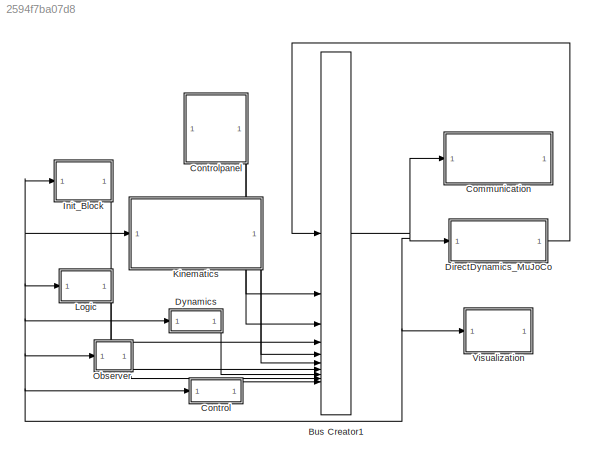
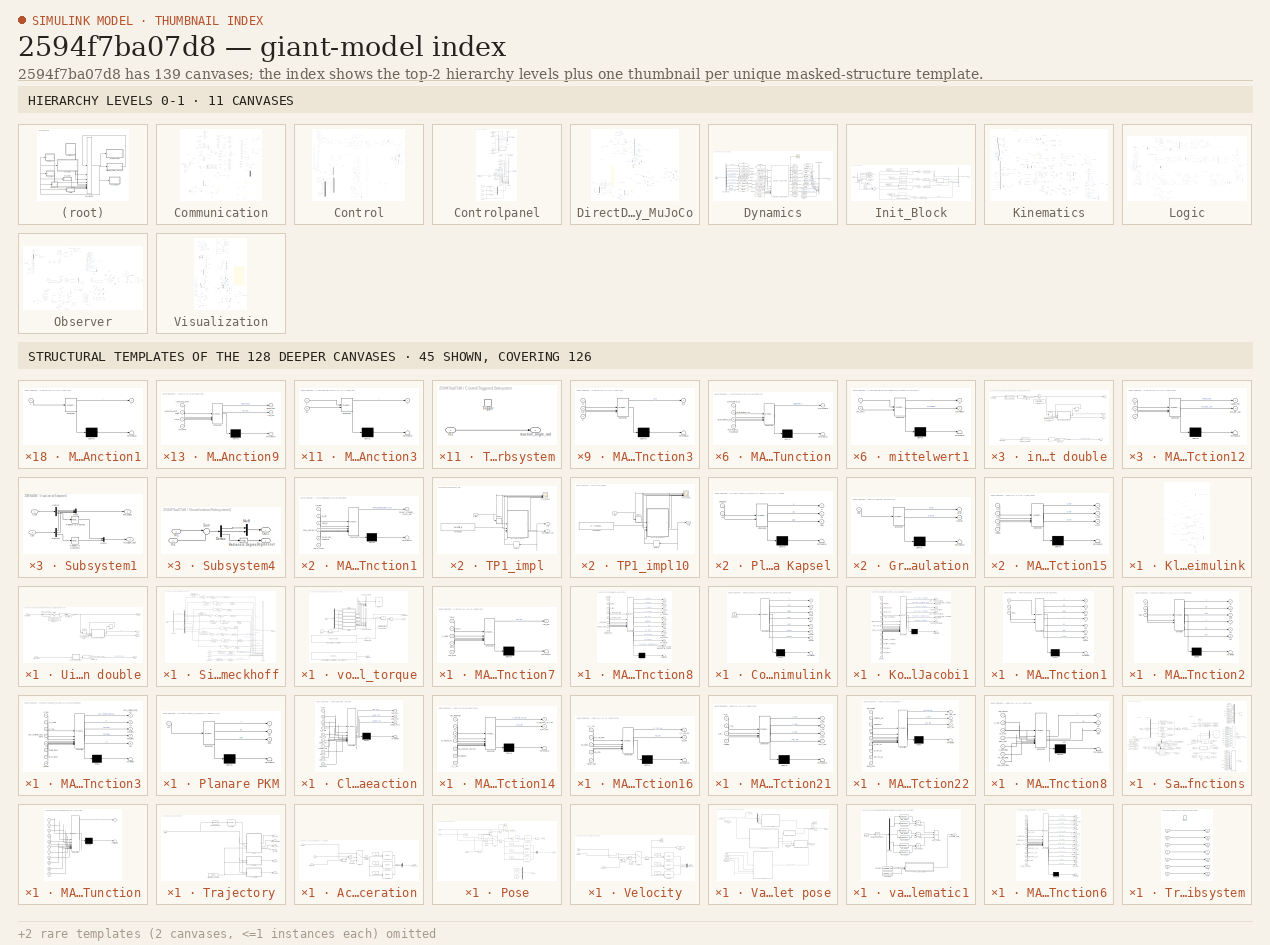
[diagram: thumbnail index - top-2 hierarchy levels (11 canvases) + 45 structural-template representatives of the remaining 128 canvases]
MODEL mdl_2594f7ba07d8
KIND model
CONFIG AbsTol = auto
CONFIG EnableMultiTasking = off
CONFIG FixedStep = param.t_sample
CONFIG MaxStep = auto
CONFIG MinStep = auto
CONFIG RelTol = 1e-3
CONFIG SampleTimeConstraint = Unconstrained
CONFIG SolverName = FixedStepDiscrete
CONFIG StartTime = 0.0
CONFIG StopTime = inf
BLOCK [BusCreator] Bus Creator1
  DisplayOption = bar
  InheritFromInputs = on
  Inputs = 10
BLOCK [SubSystem] Communication
  Commented = on
BLOCK [Constant] Communication/Betriebsart
  SampleTime = -1
  Value = 3
BLOCK [Constant] Communication/Betriebsart2
  SampleTime = -1
BLOCK [BusCreator] Communication/Bus Creator
  DisplayOption = bar
  InheritFromInputs = on
  Inputs = 5
BLOCK [BusCreator] Communication/Bus Creator1
  DisplayOption = bar
  InheritFromInputs = on
  Inputs = 12
BLOCK [BusCreator] Communication/Bus Creator2
  DisplayOption = bar
  InheritFromInputs = on
  Inputs = 3
BLOCK [BusSelector] Communication/Bus Selector
  OutputSignals = QDa_soll_RD1,QDa_soll_RD2,QDa_soll_RD3,tau_Qa_soll_RD1,tau_Qa_soll_RD2,tau_Qa_soll_RD3
BLOCK [BusSelector] Communication/Bus Selector1
  OutputSignals = State Variables.Controlword_RD1,State Variables.Controlword_RD2,State Variables.Controlword_RD3,State Variables.Controlword_TD,Controlpanel.Reset_RS,Kinematics_currentValues.qp_correct_init_deg
BLOCK [BusSelector] Communication/Bus Selector2
  OutputSignals = tauQa_ist_RD1_Nm,tauQa_ist_RD2_Nm,tauQa_ist_RD3_Nm,taudelta_ist_TD
BLOCK [BusSelector] Communication/Bus Selector3
  OutputSignals = FMext,ft_meas_mini40
BLOCK [BusSelector] Communication/Bus Selector4
  OutputSignals = Controlpanel.target,Kontakt.R_0Gj,Kinematics_currentValues.xEE_m_rad,Kontakt.J_xpx_contact1
BLOCK [DataTypeConversion] Communication/Cast To Double1
  OutDataTypeStr = uint16
  RndMeth = Floor
  SaturateOnIntegerOverflow = off
BLOCK [DataTypeConversion] Communication/Cast To Double2
  Commented = on
  OutDataTypeStr = uint16
  RndMeth = Floor
  SaturateOnIntegerOverflow = off
BLOCK [DataTypeConversion] Communication/Cast To Double3
  Commented = on
  OutDataTypeStr = int16
  RndMeth = Floor
  SaturateOnIntegerOverflow = off
BLOCK [Constant] Communication/Constant
  SampleTime = param.t_sample
  Value = [0;0;0;0]
BLOCK [Constant] Communication/Constant1
  SampleTime = param.t_sample
  Value = [123; 123; 123]
BLOCK [Constant] Communication/Constant2
  SampleTime = -1
  Value = 0
BLOCK [Constant] Communication/Controlword 
  SampleTime = -1
  Value = 0
BLOCK [Gain] Communication/Count_ENC1
  Gain = 14400/(2*pi)
  OutDataTypeStr = double
  ParamDataTypeStr = double
BLOCK [Gain] Communication/Count_ENC2
  Gain = 14400/(2*pi)
  OutDataTypeStr = double
  ParamDataTypeStr = double
BLOCK [Gain] Communication/Count_ENC4
  Gain = 14400/(2*pi)
  OutDataTypeStr = double
  ParamDataTypeStr = double
BLOCK [DataTypeConversion] Communication/Data Type Conversion
  OutDataTypeStr = uint8
  RndMeth = Floor
  SaturateOnIntegerOverflow = off
BLOCK [DataTypeConversion] Communication/Data Type Conversion1
  OutDataTypeStr = uint8
  RndMeth = Floor
  SaturateOnIntegerOverflow = off
BLOCK [DataTypeConversion] Communication/Data Type Conversion2
  OutDataTypeStr = uint8
  RndMeth = Floor
  SaturateOnIntegerOverflow = off
BLOCK [DataTypeConversion] Communication/Data Type Conversion3
  OutDataTypeStr = uint32
  RndMeth = Floor
  SaturateOnIntegerOverflow = off
BLOCK [DataTypeConversion] Communication/Data Type Conversion4
  OutDataTypeStr = int32
  RndMeth = Floor
  SaturateOnIntegerOverflow = off
BLOCK [DataTypeConversion] Communication/Data Type Conversion5
  OutDataTypeStr = int16
  RndMeth = Floor
  SaturateOnIntegerOverflow = off
BLOCK [DataTypeConversion] Communication/Data Type Conversion6
  OutDataTypeStr = int16
  RndMeth = Floor
  SaturateOnIntegerOverflow = off
BLOCK [DataTypeConversion] Communication/Data Type Conversion7
  OutDataTypeStr = int16
  RndMeth = Floor
  SaturateOnIntegerOverflow = off
BLOCK [Reference] Communication/Degrees to Radians1  REF=simulink_extras/Transformations/Degrees to
Radians
  SourceBlock = simulink_extras/Transformations/Degrees to\nRadians
  SourceType = DegreesToRadians
BLOCK [Reference] Communication/Degrees to Radians2  REF=simulink_extras/Transformations/Degrees to
Radians
  SourceBlock = simulink_extras/Transformations/Degrees to\nRadians
  SourceType = DegreesToRadians
BLOCK [Reference] Communication/Degrees to Radians3  REF=simulink_extras/Transformations/Degrees to
Radians
  SourceBlock = simulink_extras/Transformations/Degrees to\nRadians
  SourceType = DegreesToRadians
BLOCK [Delay] Communication/Delay
  DelayLength = 1
  InitialCondition = [122;122;123]
  InitialConditionSource = Input port
  InputPortMap = u0,p4
BLOCK [Delay] Communication/Delay1
  DelayLength = 1
  InputPortMap = u0
BLOCK [Demux] Communication/Demux
  Outputs = 3
BLOCK [Display] Communication/Display1
  Decimation = 1
BLOCK [Display] Communication/Display2
  Decimation = 1
BLOCK [Reference] Communication/EL1xxx_0  REF=etherlab_lib/EtherCAT/Beckhoff/EL1xxx_0
  SourceBlock = etherlab_lib/EtherCAT/Beckhoff/EL1xxx_0
  SourceType = EL1xxx
BLOCK [Reference] Communication/EL2xxx_0  REF=etherlab_lib/EtherCAT/Beckhoff/EL2xxx_0
  SourceBlock = etherlab_lib/EtherCAT/Beckhoff/EL2xxx_0
  SourceType = EL2xxx
BLOCK [From] Communication/From
  GotoTag = Statusword_RD1
BLOCK [From] Communication/From1
  GotoTag = Statusword_RD2
BLOCK [From] Communication/From10
  Commented = on
  GotoTag = Controlword_TD
BLOCK [From] Communication/From11
  GotoTag = Soll_Moment_RD1
BLOCK [From] Communication/From12
  GotoTag = Controlword_RS2
BLOCK [From] Communication/From13
  GotoTag = Controlword_RS3
BLOCK [From] Communication/From14
  GotoTag = Ist_Position_TD
BLOCK [From] Communication/From15
  GotoTag = Ist_Geschwindigkeit_TD
BLOCK [From] Communication/From16
  GotoTag = Ist_Moment_TD
BLOCK [From] Communication/From17
  GotoTag = Value_RS1
BLOCK [From] Communication/From18
  GotoTag = Value_RS2
BLOCK [From] Communication/From19
  GotoTag = Value_RS3
BLOCK [From] Communication/From2
  GotoTag = Statusword_RD3
BLOCK [From] Communication/From20
  GotoTag = Statusword_TD
BLOCK [From] Communication/From21
  GotoTag = Ist_Position_RD1
BLOCK [From] Communication/From22
  GotoTag = Controlword_RS1
BLOCK [From] Communication/From23
  GotoTag = Soll_Moment_RD2
BLOCK [From] Communication/From24
  GotoTag = Ist_Moment_RD1
BLOCK [From] Communication/From25
  GotoTag = Ist_Position_RD2
BLOCK [From] Communication/From26
  GotoTag = Soll_Moment_RD3
BLOCK [From] Communication/From27
  GotoTag = qp_correct_init_deg
BLOCK [From] Communication/From28
  GotoTag = Ist_Moment_RD2
BLOCK [From] Communication/From29
  GotoTag = Ist_Position_RD3
BLOCK [From] Communication/From3
  GotoTag = Statusword_TD
BLOCK [From] Communication/From30
  GotoTag = imu
BLOCK [From] Communication/From31
  GotoTag = Fext_kms40
BLOCK [From] Communication/From32
  GotoTag = Ist_Moment_RD3
BLOCK [From] Communication/From33
  GotoTag = Fext_mini40
BLOCK [From] Communication/From4
  GotoTag = Controlword_RD1
BLOCK [From] Communication/From5
  GotoTag = Controlword_RD2
BLOCK [From] Communication/From6
  GotoTag = Controlword_RD3
BLOCK [From] Communication/From7
  Commented = on
  GotoTag = Soll_Geschw_RD1
BLOCK [From] Communication/From8
  Commented = on
  GotoTag = Soll_Geschw_RD2
BLOCK [From] Communication/From9
  Commented = on
  GotoTag = Soll_Geschw_RD3
BLOCK [Reference] Communication/Generic Slave A1  REF=etherlab_lib/EtherCAT/Generic_0
  SourceBlock = etherlab_lib/EtherCAT/Generic_0
  SourceType = Generic EtherCAT Slave
BLOCK [Reference] Communication/Generic Slave A2  REF=etherlab_lib/EtherCAT/Generic_0
  SourceBlock = etherlab_lib/EtherCAT/Generic_0
  SourceType = Generic EtherCAT Slave
BLOCK [Reference] Communication/Generic Slave A3  REF=etherlab_lib/EtherCAT/Generic_0
  SourceBlock = etherlab_lib/EtherCAT/Generic_0
  SourceType = Generic EtherCAT Slave
BLOCK [Reference] Communication/Generic Slave TD  REF=etherlab_lib/EtherCAT/Generic_0
  SourceBlock = etherlab_lib/EtherCAT/Generic_0
  SourceType = Generic EtherCAT Slave
BLOCK [Reference] Communication/Generic_1  REF=etherlab_lib/EtherCAT/Generic_0
  SourceBlock = etherlab_lib/EtherCAT/Generic_0
  SourceType = Generic EtherCAT Slave
BLOCK [Reference] Communication/Generic_2  REF=etherlab_lib/EtherCAT/Generic_0
  SourceBlock = etherlab_lib/EtherCAT/Generic_0
  SourceType = Generic EtherCAT Slave
BLOCK [Reference] Communication/Generic_4  REF=etherlab_lib/EtherCAT/Generic_0
  SourceBlock = etherlab_lib/EtherCAT/Generic_0
  SourceType = Generic EtherCAT Slave
BLOCK [Reference] Communication/Generic_6  REF=etherlab_lib/EtherCAT/Generic_0
  SourceBlock = etherlab_lib/EtherCAT/Generic_0
  SourceType = Generic EtherCAT Slave
BLOCK [Reference] Communication/Generic_7  REF=etherlab_lib/EtherCAT/Generic_0
  SourceBlock = etherlab_lib/EtherCAT/Generic_0
  SourceType = Generic EtherCAT Slave
BLOCK [Goto] Communication/Goto
  GotoTag = Controlword_RD1
BLOCK [Goto] Communication/Goto1
  GotoTag = Controlword_RD2
BLOCK [Goto] Communication/Goto10
  GotoTag = Statusword_RD2
BLOCK [Goto] Communication/Goto11
  GotoTag = Ist_Position_RD3
BLOCK [Goto] Communication/Goto12
  Commented = on
  GotoTag = Soll_Postition_RD1
BLOCK [Goto] Communication/Goto13
  Commented = on
  GotoTag = Soll_Geschw_RD1
BLOCK [Goto] Communication/Goto14
  GotoTag = Soll_Moment_RD1
BLOCK [Goto] Communication/Goto15
  GotoTag = Ist_Moment_RD3
BLOCK [Goto] Communication/Goto16
  GotoTag = Statusword_RD3
BLOCK [Goto] Communication/Goto17
  GotoTag = Value_RS1
BLOCK [Goto] Communication/Goto18
  Commented = on
  GotoTag = Soll_Geschw_RD2
BLOCK [Goto] Communication/Goto19
  Commented = on
  GotoTag = Soll_Postition_RD2
BLOCK [Goto] Communication/Goto2
  GotoTag = Controlword_RD3
BLOCK [Goto] Communication/Goto20
  GotoTag = Soll_Moment_RD2
BLOCK [Goto] Communication/Goto21
  Commented = on
  GotoTag = Soll_Geschw_RD3
BLOCK [Goto] Communication/Goto22
  Commented = on
  GotoTag = Soll_Postition_RD3
BLOCK [Goto] Communication/Goto23
  GotoTag = Soll_Moment_RD3
BLOCK [Goto] Communication/Goto24
  GotoTag = Statusword_TD
BLOCK [Goto] Communication/Goto25
  GotoTag = Ist_Position_TD
BLOCK [Goto] Communication/Goto26
  GotoTag = Ist_Geschwindigkeit_TD
BLOCK [Goto] Communication/Goto27
  GotoTag = Ist_Moment_TD
BLOCK [Goto] Communication/Goto28
  GotoTag = LatchValue_RS1
BLOCK [Goto] Communication/Goto29
  GotoTag = Value_RS2
BLOCK [Goto] Communication/Goto3
  GotoTag = Controlword_TD
BLOCK [Goto] Communication/Goto30
  GotoTag = LatchValue_RS2
BLOCK [Goto] Communication/Goto31
  GotoTag = Statusword_RS2
BLOCK [Goto] Communication/Goto32
  GotoTag = Value_RS3
BLOCK [Goto] Communication/Goto33
  GotoTag = LatchValue_RS3
BLOCK [Goto] Communication/Goto34
  GotoTag = Statusword_RS3
BLOCK [Goto] Communication/Goto35
  Commented = on
  GotoTag = Soll_Geschw_TD
BLOCK [Goto] Communication/Goto36
  Commented = on
  GotoTag = Soll_Postition_TD
BLOCK [Goto] Communication/Goto37
  Commented = on
  GotoTag = Soll_Moment_TD
BLOCK [Goto] Communication/Goto38
  Commented = on
  GotoTag = Controlword_RD1
BLOCK [Goto] Communication/Goto39
  Commented = on
  GotoTag = Controlword_RD2
BLOCK [Goto] Communication/Goto4
  GotoTag = Ist_Position_RD1
BLOCK [Goto] Communication/Goto40
  Commented = on
  GotoTag = Controlword_RD3
BLOCK [Goto] Communication/Goto41
  Commented = on
  GotoTag = Controlword_TD
BLOCK [Goto] Communication/Goto42
  Commented = on
  GotoTag = Soll_Geschw_RD1
BLOCK [Goto] Communication/Goto43
  Commented = on
  GotoTag = Soll_Geschw_RD2
BLOCK [Goto] Communication/Goto44
  Commented = on
  GotoTag = Soll_Geschw_RD3
BLOCK [Goto] Communication/Goto45
  GotoTag = Controlword_RS1
BLOCK [Goto] Communication/Goto46
  GotoTag = Controlword_RS2
BLOCK [Goto] Communication/Goto47
  GotoTag = Controlword_RS3
BLOCK [Goto] Communication/Goto48
  GotoTag = imu
BLOCK [Goto] Communication/Goto49
  GotoTag = qp_correct_init_deg
BLOCK [Goto] Communication/Goto5
  GotoTag = Statusword_RS1
BLOCK [Goto] Communication/Goto50
  GotoTag = Fext_kms40
BLOCK [Goto] Communication/Goto51
  GotoTag = Fext_mini40
BLOCK [Goto] Communication/Goto6
  GotoTag = Ist_Moment_RD1
BLOCK [Goto] Communication/Goto7
  GotoTag = Statusword_RD1
BLOCK [Goto] Communication/Goto8
  GotoTag = Ist_Position_RD2
BLOCK [Goto] Communication/Goto9
  GotoTag = Ist_Moment_RD2
BLOCK [Reference] Communication/Infrastructure  REF=etherlab_lib/EtherCAT/Beckhoff/Infrastructure
  SourceBlock = etherlab_lib/EtherCAT/Beckhoff/Infrastructure
  SourceType = EKxxxx
BLOCK [SubSystem] Communication/Klemmen zu Simulink
BLOCK [Gain] Communication/Klemmen zu Simulink/0,1% vom Nennstrom in Ampere
  Gain = 0.1/100*4.5
BLOCK [BusCreator] Communication/Klemmen zu Simulink/Bus Creator
  DisplayOption = bar
  InheritFromInputs = on
  Inputs = 31
BLOCK [BusSelector] Communication/Klemmen zu Simulink/Bus Selector
  OutputSignals = Ist_position_RD1,ist_moment_RD1,Ist_position_RD2,ist_moment_RD2,Ist_position_RD3,ist_moment_RD3
BLOCK [BusSelector] Communication/Klemmen zu Simulink/Bus Selector2
  OutputSignals = Ist_position_TD,Ist_geschwindigkeit_TD,Ist_moment_TD
BLOCK [BusSelector] Communication/Klemmen zu Simulink/Bus Selector3
  OutputSignals = Zaehlerwert_RS1,Zaehlerwert_RS2,Zaehlerwert_RS3
BLOCK [Constant] Communication/Klemmen zu Simulink/Constant
  SampleTime = param.t_sample
  Value = zeros(3,1)
BLOCK [Constant] Communication/Klemmen zu Simulink/Constant1
  SampleTime = -1
  Value = param.t_sample
BLOCK [Constant] Communication/Klemmen zu Simulink/Constant2
  SampleTime = -1
  Value = param.t_sample
BLOCK [Constant] Communication/Klemmen zu Simulink/Constant3
  SampleTime = -1
  Value = param.t_sample
BLOCK [Constant] Communication/Klemmen zu Simulink/Constant4
  SampleTime = param.t_sample
  Value = zeros(3,1)
BLOCK [Gain] Communication/Klemmen zu Simulink/Count_ENC1
  Gain = (2*pi)/14400
  OutDataTypeStr = double
  ParamDataTypeStr = double
BLOCK [Gain] Communication/Klemmen zu Simulink/Count_ENC2
  Gain = (2*pi)/14400
  OutDataTypeStr = double
  ParamDataTypeStr = double
BLOCK [Gain] Communication/Klemmen zu Simulink/Count_ENC3
  Gain = (2*pi)/14400
  OutDataTypeStr = double
  ParamDataTypeStr = double
BLOCK [Delay] Communication/Klemmen zu Simulink/Delay1
  DelayLength = 1
  InputPortMap = u0
BLOCK [Delay] Communication/Klemmen zu Simulink/Delay2
  DelayLength = 1
  InputPortMap = u0
BLOCK [Delay] Communication/Klemmen zu Simulink/Delay3
  DelayLength = 1
  InputPortMap = u0
BLOCK [Delay] Communication/Klemmen zu Simulink/Delay4
  DelayLength = 1
  InputPortMap = u0
BLOCK [Delay] Communication/Klemmen zu Simulink/Delay5
  DelayLength = 1
  InputPortMap = u0
BLOCK [Delay] Communication/Klemmen zu Simulink/Delay6
  DelayLength = 1
  InputPortMap = u0
BLOCK [Reference] Communication/Klemmen zu Simulink/Difference  REF=simulink/Discrete/Difference
  SourceBlock = simulink/Discrete/Difference
  SourceType = Difference
BLOCK [Inport] Communication/Klemmen zu Simulink/Fext_kms40
  Port = 3
BLOCK [Inport] Communication/Klemmen zu Simulink/Fext_mini40
  Port = 4
BLOCK [Gain] Communication/Klemmen zu Simulink/Gain
  Gain = 1/param.t_sample
BLOCK [SubSystem] Communication/Klemmen zu Simulink/MATLAB Function4
  ErrorFcn = Stateflow.Translate.translate
  PermitHierarchicalResolution = ExplicitOnly
  SFBlockType = MATLAB Function
  TreatAsAtomicUnit = on
BLOCK [Demux] Communication/Klemmen zu Simulink/MATLAB Function4/ Demux 
  Outputs = 1
BLOCK [S-Function] Communication/Klemmen zu Simulink/MATLAB Function4/ SFunction 
  EnableBusSupport = off
  FunctionName = sf_sfun
  PortCounts = [4 3]
  SFcnIsStateOwnerBlock = off
  SFunctionDeploymentMode = off
  Tag = Stateflow S-Function 45
BLOCK [Terminator] Communication/Klemmen zu Simulink/MATLAB Function4/ Terminator 
BLOCK [Outport] Communication/Klemmen zu Simulink/MATLAB Function4/acc
  Port = 2
BLOCK [Inport] Communication/Klemmen zu Simulink/MATLAB Function4/prev_pos
  Port = 2
BLOCK [Inport] Communication/Klemmen zu Simulink/MATLAB Function4/prev_vel
  Port = 3
BLOCK [Inport] Communication/Klemmen zu Simulink/MATLAB Function4/t_sample
  Port = 4
BLOCK [Inport] Communication/Klemmen zu Simulink/MATLAB Function4/u
BLOCK [Outport] Communication/Klemmen zu Simulink/MATLAB Function4/vel
  VectorParamsAs1DForOutWhenUnconnected = off
BLOCK [SubSystem] Communication/Klemmen zu Simulink/MATLAB Function5
  ErrorFcn = Stateflow.Translate.translate
  PermitHierarchicalResolution = ExplicitOnly
  SFBlockType = MATLAB Function
  TreatAsAtomicUnit = on
BLOCK [Demux] Communication/Klemmen zu Simulink/MATLAB Function5/ Demux 
  Outputs = 1
BLOCK [S-Function] Communication/Klemmen zu Simulink/MATLAB Function5/ SFunction 
  EnableBusSupport = off
  FunctionName = sf_sfun
  PortCounts = [4 3]
  SFcnIsStateOwnerBlock = off
  SFunctionDeploymentMode = off
  Tag = Stateflow S-Function 62
BLOCK [Terminator] Communication/Klemmen zu Simulink/MATLAB Function5/ Terminator 
BLOCK [Outport] Communication/Klemmen zu Simulink/MATLAB Function5/acc
  Port = 2
BLOCK [Inport] Communication/Klemmen zu Simulink/MATLAB Function5/prev_pos
  Port = 2
BLOCK [Inport] Communication/Klemmen zu Simulink/MATLAB Function5/prev_vel
  Port = 3
BLOCK [Inport] Communication/Klemmen zu Simulink/MATLAB Function5/t_sample
  Port = 4
BLOCK [Inport] Communication/Klemmen zu Simulink/MATLAB Function5/u
BLOCK [Outport] Communication/Klemmen zu Simulink/MATLAB Function5/vel
  VectorParamsAs1DForOutWhenUnconnected = off
BLOCK [SubSystem] Communication/Klemmen zu Simulink/MATLAB Function6
  ErrorFcn = Stateflow.Translate.translate
  PermitHierarchicalResolution = ExplicitOnly
  SFBlockType = MATLAB Function
  TreatAsAtomicUnit = on
BLOCK [Demux] Communication/Klemmen zu Simulink/MATLAB Function6/ Demux 
  Outputs = 1
BLOCK [S-Function] Communication/Klemmen zu Simulink/MATLAB Function6/ SFunction 
  EnableBusSupport = off
  FunctionName = sf_sfun
  PortCounts = [4 3]
  SFcnIsStateOwnerBlock = off
  SFunctionDeploymentMode = off
  Tag = Stateflow S-Function 76
BLOCK [Terminator] Communication/Klemmen zu Simulink/MATLAB Function6/ Terminator 
BLOCK [Outport] Communication/Klemmen zu Simulink/MATLAB Function6/acc
  Port = 2
BLOCK [Inport] Communication/Klemmen zu Simulink/MATLAB Function6/prev_pos
  Port = 2
BLOCK [Inport] Communication/Klemmen zu Simulink/MATLAB Function6/prev_vel
  Port = 3
BLOCK [Inport] Communication/Klemmen zu Simulink/MATLAB Function6/t_sample
  Port = 4
BLOCK [Inport] Communication/Klemmen zu Simulink/MATLAB Function6/u
BLOCK [Outport] Communication/Klemmen zu Simulink/MATLAB Function6/vel
  VectorParamsAs1DForOutWhenUnconnected = off
BLOCK [Gain] Communication/Klemmen zu Simulink/Motorkonstante N//A
  Gain = 93
BLOCK [Mux] Communication/Klemmen zu Simulink/Mux
  DisplayOption = bar
  Inputs = 3
BLOCK [Inport] Communication/Klemmen zu Simulink/Raw_Data
BLOCK [SubSystem] Communication/Klemmen zu Simulink/Uint in double
  Commented = on
BLOCK [Delay] Communication/Klemmen zu Simulink/Uint in double/Delay1
  DelayLength = 1
  InputPortMap = u0
BLOCK [Delay] Communication/Klemmen zu Simulink/Uint in double/Delay4
  DelayLength = 1
  InputPortMap = u0
BLOCK [From] Communication/Klemmen zu Simulink/Uint in double/From
  GotoTag = t_sample
BLOCK [SubSystem] Communication/Klemmen zu Simulink/Uint in double/MATLAB Function1
  ErrorFcn = Stateflow.Translate.translate
  PermitHierarchicalResolution = ExplicitOnly
  SFBlockType = MATLAB Function
  TreatAsAtomicUnit = on
BLOCK [Demux] Communication/Klemmen zu Simulink/Uint in double/MATLAB Function1/ Demux 
  Outputs = 1
BLOCK [S-Function] Communication/Klemmen zu Simulink/Uint in double/MATLAB Function1/ SFunction 
  EnableBusSupport = off
  FunctionName = sf_sfun
  PortCounts = [4 3]
  SFcnIsStateOwnerBlock = off
  SFunctionDeploymentMode = off
  Tag = Stateflow S-Function 24
BLOCK [Terminator] Communication/Klemmen zu Simulink/Uint in double/MATLAB Function1/ Terminator 
BLOCK [Outport] Communication/Klemmen zu Simulink/Uint in double/MATLAB Function1/acc
  Port = 2
BLOCK [Inport] Communication/Klemmen zu Simulink/Uint in double/MATLAB Function1/prev_pos
  Port = 2
BLOCK [Inport] Communication/Klemmen zu Simulink/Uint in double/MATLAB Function1/prev_vel
  Port = 3
BLOCK [Inport] Communication/Klemmen zu Simulink/Uint in double/MATLAB Function1/t_sample
  Port = 4
BLOCK [Inport] Communication/Klemmen zu Simulink/Uint in double/MATLAB Function1/u
BLOCK [Outport] Communication/Klemmen zu Simulink/Uint in double/MATLAB Function1/vel
  VectorParamsAs1DForOutWhenUnconnected = off
BLOCK [SubSystem] Communication/Klemmen zu Simulink/Uint in double/MATLAB Function2
  ErrorFcn = Stateflow.Translate.translate
  PermitHierarchicalResolution = ExplicitOnly
  SFBlockType = MATLAB Function
  TreatAsAtomicUnit = on
BLOCK [Demux] Communication/Klemmen zu Simulink/Uint in double/MATLAB Function2/ Demux 
  Outputs = 1
BLOCK [S-Function] Communication/Klemmen zu Simulink/Uint in double/MATLAB Function2/ SFunction 
  EnableBusSupport = off
  FunctionName = sf_sfun
  PortCounts = [1 2]
  SFcnIsStateOwnerBlock = off
  SFunctionDeploymentMode = off
  Tag = Stateflow S-Function 25
BLOCK [Terminator] Communication/Klemmen zu Simulink/Uint in double/MATLAB Function2/ Terminator 
BLOCK [Inport] Communication/Klemmen zu Simulink/Uint in double/MATLAB Function2/u_uint
BLOCK [Outport] Communication/Klemmen zu Simulink/Uint in double/MATLAB Function2/y
  VectorParamsAs1DForOutWhenUnconnected = off
BLOCK [Gain] Communication/Klemmen zu Simulink/Uint in double/Position_i1
  Gain = (2*pi)/(2^(20))
  NameLocation = top
  OutDataTypeStr = float('double')
  ParamDataTypeStr = float('double')
BLOCK [Sum] Communication/Klemmen zu Simulink/Uint in double/Sum1
  Inputs = |+-
BLOCK [Gain] Communication/Klemmen zu Simulink/Uint in double/Torque_i1
  Gain = (11.3*16.5)/3280
  OutDataTypeStr = float('double')
  ParamDataTypeStr = float('double')
BLOCK [Outport] Communication/Klemmen zu Simulink/Uint in double/acc
  Port = 3
BLOCK [Inport] Communication/Klemmen zu Simulink/Uint in double/current_raw
  Port = 2
BLOCK [Constant] Communication/Klemmen zu Simulink/Uint in double/offset_s1
  NameLocation = left
  SampleTime = 0.001
  Value = 4.2950e+09
BLOCK [Outport] Communication/Klemmen zu Simulink/Uint in double/pos
BLOCK [DataTypeConversion] Communication/Klemmen zu Simulink/Uint in double/pos_Achse12
  OutDataTypeStr = double
  RndMeth = Floor
  SaturateOnIntegerOverflow = off
BLOCK [Inport] Communication/Klemmen zu Simulink/Uint in double/pos_raw
BLOCK [Outport] Communication/Klemmen zu Simulink/Uint in double/tau
  Port = 4
BLOCK [Outport] Communication/Klemmen zu Simulink/Uint in double/vel
  Port = 2
BLOCK [Gain] Communication/Klemmen zu Simulink/Umrechnung Lage LD
  Gain = 1/409600000
BLOCK [Outport] Communication/Klemmen zu Simulink/Values
BLOCK [Inport] Communication/Klemmen zu Simulink/imu
  Port = 2
BLOCK [SubSystem] Communication/Klemmen zu Simulink/int in double
BLOCK [Constant] Communication/Klemmen zu Simulink/int in double/Constant
  SampleTime = -1
  Value = param.t_sample
BLOCK [Delay] Communication/Klemmen zu Simulink/int in double/Delay1
  DelayLength = 1
  InitialCondition = param.offset_qa1_rad
  InputPortMap = u0
BLOCK [Delay] Communication/Klemmen zu Simulink/int in double/Delay4
  DelayLength = 1
  InputPortMap = u0
BLOCK [SubSystem] Communication/Klemmen zu Simulink/int in double/MATLAB Function1
  ErrorFcn = Stateflow.Translate.translate
  PermitHierarchicalResolution = ExplicitOnly
  SFBlockType = MATLAB Function
  TreatAsAtomicUnit = on
BLOCK [Demux] Communication/Klemmen zu Simulink/int in double/MATLAB Function1/ Demux 
  Outputs = 1
BLOCK [S-Function] Communication/Klemmen zu Simulink/int in double/MATLAB Function1/ SFunction 
  EnableBusSupport = off
  FunctionName = sf_sfun
  PortCounts = [4 3]
  SFcnIsStateOwnerBlock = off
  SFunctionDeploymentMode = off
  Tag = Stateflow S-Function 26
BLOCK [Terminator] Communication/Klemmen zu Simulink/int in double/MATLAB Function1/ Terminator 
BLOCK [Outport] Communication/Klemmen zu Simulink/int in double/MATLAB Function1/acc
  Port = 2
BLOCK [Inport] Communication/Klemmen zu Simulink/int in double/MATLAB Function1/prev_pos
  Port = 2
BLOCK [Inport] Communication/Klemmen zu Simulink/int in double/MATLAB Function1/prev_vel
  Port = 3
BLOCK [Inport] Communication/Klemmen zu Simulink/int in double/MATLAB Function1/t_sample
  Port = 4
BLOCK [Inport] Communication/Klemmen zu Simulink/int in double/MATLAB Function1/u
BLOCK [Outport] Communication/Klemmen zu Simulink/int in double/MATLAB Function1/vel
  VectorParamsAs1DForOutWhenUnconnected = off
BLOCK [Gain] Communication/Klemmen zu Simulink/int in double/Position_i1
  Gain = (2*pi)/(2^(20))
  NameLocation = top
  OutDataTypeStr = float('double')
  ParamDataTypeStr = float('double')
BLOCK [Sum] Communication/Klemmen zu Simulink/int in double/Sum1
  Inputs = |+-
BLOCK [Gain] Communication/Klemmen zu Simulink/int in double/Torque_i1
  Gain = (6.021*16.5)/3280
  OutDataTypeStr = float('double')
  ParamDataTypeStr = float('double')
BLOCK [Outport] Communication/Klemmen zu Simulink/int in double/acc
  Port = 3
BLOCK [Inport] Communication/Klemmen zu Simulink/int in double/current_raw
  Port = 2
BLOCK [DataTypeConversion] Communication/Klemmen zu Simulink/int in double/int16_2_double
  OutDataTypeStr = double
  RndMeth = Floor
  SaturateOnIntegerOverflow = off
BLOCK [Constant] Communication/Klemmen zu Simulink/int in double/offset_s1
  NameLocation = left
  SampleTime = -1
  Value = param.offset_qa1_rad
BLOCK [Outport] Communication/Klemmen zu Simulink/int in double/pos
BLOCK [DataTypeConversion] Communication/Klemmen zu Simulink/int in double/pos_Achse12
  OutDataTypeStr = double
  RndMeth = Floor
  SaturateOnIntegerOverflow = off
BLOCK [Inport] Communication/Klemmen zu Simulink/int in double/pos_raw
BLOCK [Outport] Communication/Klemmen zu Simulink/int in double/tau
  Port = 4
BLOCK [Outport] Communication/Klemmen zu Simulink/int in double/vel
  Port = 2
BLOCK [SubSystem] Communication/Klemmen zu Simulink/int in double1
BLOCK [Constant] Communication/Klemmen zu Simulink/int in double1/Constant
  SampleTime = -1
  Value = param.t_sample
BLOCK [Delay] Communication/Klemmen zu Simulink/int in double1/Delay1
  DelayLength = 1
  InitialCondition = param.offset_qa2_rad
  InputPortMap = u0
BLOCK [Delay] Communication/Klemmen zu Simulink/int in double1/Delay4
  DelayLength = 1
  InputPortMap = u0
BLOCK [SubSystem] Communication/Klemmen zu Simulink/int in double1/MATLAB Function1
  ErrorFcn = Stateflow.Translate.translate
  PermitHierarchicalResolution = ExplicitOnly
  SFBlockType = MATLAB Function
  TreatAsAtomicUnit = on
BLOCK [Demux] Communication/Klemmen zu Simulink/int in double1/MATLAB Function1/ Demux 
  Outputs = 1
BLOCK [S-Function] Communication/Klemmen zu Simulink/int in double1/MATLAB Function1/ SFunction 
  EnableBusSupport = off
  FunctionName = sf_sfun
  PortCounts = [4 3]
  SFcnIsStateOwnerBlock = off
  SFunctionDeploymentMode = off
  Tag = Stateflow S-Function 27
BLOCK [Terminator] Communication/Klemmen zu Simulink/int in double1/MATLAB Function1/ Terminator 
BLOCK [Outport] Communication/Klemmen zu Simulink/int in double1/MATLAB Function1/acc
  Port = 2
BLOCK [Inport] Communication/Klemmen zu Simulink/int in double1/MATLAB Function1/prev_pos
  Port = 2
BLOCK [Inport] Communication/Klemmen zu Simulink/int in double1/MATLAB Function1/prev_vel
  Port = 3
BLOCK [Inport] Communication/Klemmen zu Simulink/int in double1/MATLAB Function1/t_sample
  Port = 4
BLOCK [Inport] Communication/Klemmen zu Simulink/int in double1/MATLAB Function1/u
BLOCK [Outport] Communication/Klemmen zu Simulink/int in double1/MATLAB Function1/vel
  VectorParamsAs1DForOutWhenUnconnected = off
BLOCK [Gain] Communication/Klemmen zu Simulink/int in double1/Position_i1
  Gain = (2*pi)/(2^(20))
  NameLocation = top
  OutDataTypeStr = float('double')
  ParamDataTypeStr = float('double')
BLOCK [Sum] Communication/Klemmen zu Simulink/int in double1/Sum1
  Inputs = |+-
BLOCK [Gain] Communication/Klemmen zu Simulink/int in double1/Torque_i1
  Gain = (6.6116*16.5)/3280
  OutDataTypeStr = float('double')
  ParamDataTypeStr = float('double')
BLOCK [Outport] Communication/Klemmen zu Simulink/int in double1/acc
  Port = 3
BLOCK [Inport] Communication/Klemmen zu Simulink/int in double1/current_raw
  Port = 2
BLOCK [DataTypeConversion] Communication/Klemmen zu Simulink/int in double1/int16_2_double
  OutDataTypeStr = double
  RndMeth = Floor
  SaturateOnIntegerOverflow = off
BLOCK [Constant] Communication/Klemmen zu Simulink/int in double1/offset_s1
  NameLocation = left
  SampleTime = -1
  Value = param.offset_qa2_rad
BLOCK [Outport] Communication/Klemmen zu Simulink/int in double1/pos
BLOCK [DataTypeConversion] Communication/Klemmen zu Simulink/int in double1/pos_Achse12
  OutDataTypeStr = double
  RndMeth = Floor
  SaturateOnIntegerOverflow = off
BLOCK [Inport] Communication/Klemmen zu Simulink/int in double1/pos_raw
BLOCK [Outport] Communication/Klemmen zu Simulink/int in double1/tau
  Port = 4
BLOCK [Outport] Communication/Klemmen zu Simulink/int in double1/vel
  Port = 2
BLOCK [SubSystem] Communication/Klemmen zu Simulink/int in double2
BLOCK [Constant] Communication/Klemmen zu Simulink/int in double2/Constant
  SampleTime = -1
  Value = param.t_sample
BLOCK [Delay] Communication/Klemmen zu Simulink/int in double2/Delay1
  DelayLength = 1
  InitialCondition = param.offset_qa3_rad
  InputPortMap = u0
BLOCK [Delay] Communication/Klemmen zu Simulink/int in double2/Delay4
  DelayLength = 1
  InputPortMap = u0
BLOCK [SubSystem] Communication/Klemmen zu Simulink/int in double2/MATLAB Function1
  ErrorFcn = Stateflow.Translate.translate
  PermitHierarchicalResolution = ExplicitOnly
  SFBlockType = MATLAB Function
  TreatAsAtomicUnit = on
BLOCK [Demux] Communication/Klemmen zu Simulink/int in double2/MATLAB Function1/ Demux 
  Outputs = 1
BLOCK [S-Function] Communication/Klemmen zu Simulink/int in double2/MATLAB Function1/ SFunction 
  EnableBusSupport = off
  FunctionName = sf_sfun
  PortCounts = [4 3]
  SFcnIsStateOwnerBlock = off
  SFunctionDeploymentMode = off
  Tag = Stateflow S-Function 28
BLOCK [Terminator] Communication/Klemmen zu Simulink/int in double2/MATLAB Function1/ Terminator 
BLOCK [Outport] Communication/Klemmen zu Simulink/int in double2/MATLAB Function1/acc
  Port = 2
BLOCK [Inport] Communication/Klemmen zu Simulink/int in double2/MATLAB Function1/prev_pos
  Port = 2
BLOCK [Inport] Communication/Klemmen zu Simulink/int in double2/MATLAB Function1/prev_vel
  Port = 3
BLOCK [Inport] Communication/Klemmen zu Simulink/int in double2/MATLAB Function1/t_sample
  Port = 4
BLOCK [Inport] Communication/Klemmen zu Simulink/int in double2/MATLAB Function1/u
BLOCK [Outport] Communication/Klemmen zu Simulink/int in double2/MATLAB Function1/vel
  VectorParamsAs1DForOutWhenUnconnected = off
BLOCK [Gain] Communication/Klemmen zu Simulink/int in double2/Position_i1
  Gain = (2*pi)/(2^(20))
  NameLocation = top
  OutDataTypeStr = float('double')
  ParamDataTypeStr = float('double')
BLOCK [Sum] Communication/Klemmen zu Simulink/int in double2/Sum1
  Inputs = |+-
BLOCK [Gain] Communication/Klemmen zu Simulink/int in double2/Torque_i1
  Gain = (6.7315*16.5)/3280
  OutDataTypeStr = float('double')
  ParamDataTypeStr = float('double')
BLOCK [Outport] Communication/Klemmen zu Simulink/int in double2/acc
  Port = 3
BLOCK [Inport] Communication/Klemmen zu Simulink/int in double2/current_raw
  Port = 2
BLOCK [DataTypeConversion] Communication/Klemmen zu Simulink/int in double2/int16_2_double
  OutDataTypeStr = double
  RndMeth = Floor
  SaturateOnIntegerOverflow = off
BLOCK [Constant] Communication/Klemmen zu Simulink/int in double2/offset_s1
  NameLocation = left
  SampleTime = -1
  Value = param.offset_qa3_rad
BLOCK [Outport] Communication/Klemmen zu Simulink/int in double2/pos
BLOCK [DataTypeConversion] Communication/Klemmen zu Simulink/int in double2/pos_Achse12
  OutDataTypeStr = double
  RndMeth = Floor
  SaturateOnIntegerOverflow = off
BLOCK [Inport] Communication/Klemmen zu Simulink/int in double2/pos_raw
BLOCK [Outport] Communication/Klemmen zu Simulink/int in double2/tau
  Port = 4
BLOCK [Outport] Communication/Klemmen zu Simulink/int in double2/vel
  Port = 2
BLOCK [DataTypeConversion] Communication/Klemmen zu Simulink/pos_Achse1
  OutDataTypeStr = double
  RndMeth = Floor
  SaturateOnIntegerOverflow = off
BLOCK [DataTypeConversion] Communication/Klemmen zu Simulink/pos_Achse12
  OutDataTypeStr = double
  RndMeth = Floor
  SaturateOnIntegerOverflow = off
BLOCK [DataTypeConversion] Communication/Klemmen zu Simulink/pos_Achse2
  OutDataTypeStr = double
  RndMeth = Floor
  SaturateOnIntegerOverflow = off
BLOCK [DataTypeConversion] Communication/Klemmen zu Simulink/pos_Achse3
  OutDataTypeStr = double
  RndMeth = Floor
  SaturateOnIntegerOverflow = off
BLOCK [DataTypeConversion] Communication/Klemmen zu Simulink/pos_Achse4
  OutDataTypeStr = double
  RndMeth = Floor
  SaturateOnIntegerOverflow = off
BLOCK [DataTypeConversion] Communication/Klemmen zu Simulink/pos_Achse5
  OutDataTypeStr = double
  RndMeth = Floor
  SaturateOnIntegerOverflow = off
BLOCK [SubSystem] Communication/MATLAB Function
  ErrorFcn = Stateflow.Translate.translate
  PermitHierarchicalResolution = ExplicitOnly
  SFBlockType = MATLAB Function
  TreatAsAtomicUnit = on
BLOCK [Demux] Communication/MATLAB Function/ Demux 
  Outputs = 1
BLOCK [S-Function] Communication/MATLAB Function/ SFunction 
  EnableBusSupport = off
  FunctionName = sf_sfun
  PortCounts = [4 2]
  SFcnIsStateOwnerBlock = off
  SFunctionDeploymentMode = off
  Tag = Stateflow S-Function 30
BLOCK [Terminator] Communication/MATLAB Function/ Terminator 
BLOCK [Outport] Communication/MATLAB Function/Statusword
BLOCK [Inport] Communication/MATLAB Function/Statusword_S1
BLOCK [Inport] Communication/MATLAB Function/Statusword_S2
  Port = 2
BLOCK [Inport] Communication/MATLAB Function/Statusword_S3
  Port = 3
BLOCK [Inport] Communication/MATLAB Function/Statusword_TranslDrive
  Port = 4
BLOCK [SubSystem] Communication/MATLAB Function1
  ErrorFcn = Stateflow.Translate.translate
  PermitHierarchicalResolution = ExplicitOnly
  SFBlockType = MATLAB Function
  TreatAsAtomicUnit = on
BLOCK [Demux] Communication/MATLAB Function1/ Demux 
  Outputs = 1
BLOCK [S-Function] Communication/MATLAB Function1/ SFunction 
  EnableBusSupport = off
  FunctionName = sf_sfun
  PortCounts = [6 2]
  SFcnIsStateOwnerBlock = off
  SFunctionDeploymentMode = off
  Tag = Stateflow S-Function 103
BLOCK [Terminator] Communication/MATLAB Function1/ Terminator 
BLOCK [Inport] Communication/MATLAB Function1/FMext_link_KSSensor
  Port = 5
BLOCK [Outport] Communication/MATLAB Function1/FMext_mobPlat_mess_KS0
  VectorParamsAs1DForOutWhenUnconnected = off
BLOCK [Inport] Communication/MATLAB Function1/Jxpx_contact1
  Port = 4
BLOCK [Inport] Communication/MATLAB Function1/R_0Gj
  Port = 2
BLOCK [Inport] Communication/MATLAB Function1/anre_Achse
  Port = 6
BLOCK [Inport] Communication/MATLAB Function1/target
BLOCK [Inport] Communication/MATLAB Function1/xEE_ist
  Port = 3
BLOCK [SubSystem] Communication/MATLAB Function3
  ErrorFcn = Stateflow.Translate.translate
  PermitHierarchicalResolution = ExplicitOnly
  SFBlockType = MATLAB Function
  TreatAsAtomicUnit = on
BLOCK [Demux] Communication/MATLAB Function3/ Demux 
  Outputs = 1
BLOCK [S-Function] Communication/MATLAB Function3/ SFunction 
  EnableBusSupport = off
  FunctionName = sf_sfun
  PortCounts = [2 2]
  SFcnIsStateOwnerBlock = off
  SFunctionDeploymentMode = off
  Tag = Stateflow S-Function 1
BLOCK [Terminator] Communication/MATLAB Function3/ Terminator 
BLOCK [Inport] Communication/MATLAB Function3/u
BLOCK [Inport] Communication/MATLAB Function3/u2
  Port = 2
BLOCK [Outport] Communication/MATLAB Function3/y
  VectorParamsAs1DForOutWhenUnconnected = off
BLOCK [Outport] Communication/Messgrößen
BLOCK [Mux] Communication/Mux
  DisplayOption = bar
  Inputs = 12
BLOCK [Mux] Communication/Mux3
  DisplayOption = bar
BLOCK [Mux] Communication/Mux5
  DisplayOption = bar
  Inputs = 2
BLOCK [Mux] Communication/Mux8
  DisplayOption = bar
  Inputs = 2
BLOCK [Scope] Communication/SL_IN_Scope
  Floating = off
  NumInputPorts = 5
  ScopeSpecificationString = Simulink.scopes.TimeScopeBlockCfg('CurrentConfiguration', extmgr.ConfigurationSet(extmgr.Configuration('Core','General UI',true),extmgr.Configuration('Core','Source UI',true),extmgr.Configuration('Sources','WiredSimulink',true,'DataLoggingSaveFormat','StructureWithTime','DataLoggingDecimation','1','DataLogging',true,'DataLoggingVariableName','ScopeData1'),extmgr.Configuration('Visuals','Time Domai...<+5476ch>
BLOCK [Scope] Communication/Scope
  Floating = off
  NumInputPorts = 3
  ScopeSpecificationString = Simulink.scopes.TimeScopeBlockCfg('CurrentConfiguration', extmgr.ConfigurationSet(extmgr.Configuration('Core','General UI',true),extmgr.Configuration('Core','Source UI',true),extmgr.Configuration('Sources','WiredSimulink',true,'DataLoggingVariableName','ScopeData1'),extmgr.Configuration('Visuals','Time Domain',true,'SerializedDisplays',{struct('MinYLimReal','-47.25309','MaxYLimReal','150.28102','Y...<+1565ch>
BLOCK [Scope] Communication/Scope1
  Floating = off
  NumInputPorts = 8
  ScopeSpecificationString = Simulink.scopes.TimeScopeBlockCfg('CurrentConfiguration', extmgr.ConfigurationSet(extmgr.Configuration('Core','General UI',true),extmgr.Configuration('Core','Source UI',true),extmgr.Configuration('Sources','WiredSimulink',true,'DataLoggingVariableName','ScopeData1'),extmgr.Configuration('Visuals','Time Domain',true,'SerializedDisplays',{struct('MinYLimReal','-1.125','MaxYLimReal','0.125','YLabelRe...<+1486ch>
BLOCK [Scope] Communication/Scope2
  Floating = off
  NumInputPorts = 1
  ScopeSpecificationString = Simulink.scopes.TimeScopeBlockCfg('CurrentConfiguration', extmgr.ConfigurationSet(extmgr.Configuration('Core','General UI',true),extmgr.Configuration('Core','Source UI',true),extmgr.Configuration('Sources','WiredSimulink',true,'DataLoggingVariableName','ScopeData1'),extmgr.Configuration('Visuals','Time Domain',true,'SerializedDisplays',{struct('MinYLimReal','-1.00000','MaxYLimReal','1.00000','YLab...<+1406ch>
BLOCK [Scope] Communication/Scope3
  Floating = off
  NumInputPorts = 1
  ScopeSpecificationString = Simulink.scopes.TimeScopeBlockCfg('CurrentConfiguration', extmgr.ConfigurationSet(extmgr.Configuration('Core','General UI',true),extmgr.Configuration('Core','Source UI',true),extmgr.Configuration('Sources','WiredSimulink',true,'DataLoggingVariableName','ScopeData2'),extmgr.Configuration('Visuals','Time Domain',true,'SerializedDisplays',{struct('MinYLimReal','-1.14575','MaxYLimReal','1.3369','YLabe...<+1678ch>
BLOCK [Scope] Communication/Scope4
  Floating = off
  NumInputPorts = 6
  ScopeSpecificationString = Simulink.scopes.TimeScopeBlockCfg('CurrentConfiguration', extmgr.ConfigurationSet(extmgr.Configuration('Core','General UI',true),extmgr.Configuration('Core','Source UI',true),extmgr.Configuration('Sources','WiredSimulink',true,'DataLoggingVariableName','ScopeData1'),extmgr.Configuration('Visuals','Time Domain',true,'SerializedDisplays',{struct('MinYLimReal','-1.00000','MaxYLimReal','1.00000','YLab...<+1695ch>
BLOCK [Scope] Communication/Scope5
  Floating = off
  NumInputPorts = 6
  ScopeSpecificationString = Simulink.scopes.TimeScopeBlockCfg('CurrentConfiguration', extmgr.ConfigurationSet(extmgr.Configuration('Core','General UI',true),extmgr.Configuration('Core','Source UI',true),extmgr.Configuration('Sources','WiredSimulink',true,'DataLoggingVariableName','ScopeData2'),extmgr.Configuration('Visuals','Time Domain',true,'SerializedDisplays',{struct('MinYLimReal','-1.00000','MaxYLimReal','1.00000','YLab...<+1699ch>
BLOCK [Scope] Communication/Scope6
  Floating = off
  NumInputPorts = 1
  ScopeSpecificationString = Simulink.scopes.TimeScopeBlockCfg('CurrentConfiguration', extmgr.ConfigurationSet(extmgr.Configuration('Core','General UI',true),extmgr.Configuration('Core','Source UI',true),extmgr.Configuration('Sources','WiredSimulink',true,'DataLoggingVariableName','ScopeData1'),extmgr.Configuration('Visuals','Time Domain',true,'SerializedDisplays',{struct('MinYLimReal','-0.2097','MaxYLimReal','0.42028','YLabe...<+1508ch>
BLOCK [Scope] Communication/Scope7
  Floating = off
  NumInputPorts = 1
  ScopeSpecificationString = Simulink.scopes.TimeScopeBlockCfg('CurrentConfiguration', extmgr.ConfigurationSet(extmgr.Configuration('Core','General UI',true),extmgr.Configuration('Core','Source UI',true),extmgr.Configuration('Sources','WiredSimulink',true,'DataLoggingVariableName','ScopeData3'),extmgr.Configuration('Visuals','Time Domain',true,'SerializedDisplays',{struct('MinYLimReal','-158.89884','MaxYLimReal','23.92121','Y...<+1532ch>
BLOCK [Constant] Communication/Sensorenlesen
  Commented = on
  SampleTime = -1
  Value = 0
BLOCK [Constant] Communication/Sensorenlesen1
  Commented = on
  SampleTime = -1
  Value = 0
BLOCK [SubSystem] Communication/Simulink zu Beckhoff
BLOCK [Sum] Communication/Simulink zu Beckhoff/Add1
  IconShape = rectangular
BLOCK [Sum] Communication/Simulink zu Beckhoff/Add2
  IconShape = rectangular
BLOCK [Sum] Communication/Simulink zu Beckhoff/Add3
  IconShape = rectangular
BLOCK [BusCreator] Communication/Simulink zu Beckhoff/Bus Creator
  DisplayOption = bar
  InheritFromInputs = on
  Inputs = 12
BLOCK [BusSelector] Communication/Simulink zu Beckhoff/Bus Selector1
  OutputSignals = Logical data.Qa_des_rad,Logical data.QDa_des_rads,PD_Controller.TauQa_soll_PD
BLOCK [DataTypeConversion] Communication/Simulink zu Beckhoff/Data Type Conversion1
  OutDataTypeStr = int32
  RndMeth = Floor
  SaturateOnIntegerOverflow = off
BLOCK [DataTypeConversion] Communication/Simulink zu Beckhoff/Data Type Conversion2
  OutDataTypeStr = int32
  RndMeth = Floor
  SaturateOnIntegerOverflow = off
BLOCK [DataTypeConversion] Communication/Simulink zu Beckhoff/Data Type Conversion3
  OutDataTypeStr = int16
  RndMeth = Floor
  SaturateOnIntegerOverflow = off
BLOCK [DataTypeConversion] Communication/Simulink zu Beckhoff/Data Type Conversion4
  OutDataTypeStr = int32
  RndMeth = Floor
  SaturateOnIntegerOverflow = off
BLOCK [DataTypeConversion] Communication/Simulink zu Beckhoff/Data Type Conversion5
  OutDataTypeStr = int16
  RndMeth = Floor
  SaturateOnIntegerOverflow = off
BLOCK [DataTypeConversion] Communication/Simulink zu Beckhoff/Data Type Conversion6
  OutDataTypeStr = int16
  RndMeth = Floor
  SaturateOnIntegerOverflow = off
BLOCK [DataTypeConversion] Communication/Simulink zu Beckhoff/Data Type Conversion7
  OutDataTypeStr = int32
  RndMeth = Floor
  SaturateOnIntegerOverflow = off
BLOCK [DataTypeConversion] Communication/Simulink zu Beckhoff/Data Type Conversion8
  OutDataTypeStr = int16
  RndMeth = Floor
  SaturateOnIntegerOverflow = off
BLOCK [Demux] Communication/Simulink zu Beckhoff/Demux
  Outputs = 3
BLOCK [Demux] Communication/Simulink zu Beckhoff/Demux1
  Outputs = 3
BLOCK [Demux] Communication/Simulink zu Beckhoff/Demux2
  Outputs = 3
BLOCK [Gain] Communication/Simulink zu Beckhoff/Gain1
  Gain = 3280/(6.021*16.5)
BLOCK [Gain] Communication/Simulink zu Beckhoff/Gain2
  Gain = 3280/(6.6116*16.5)
BLOCK [Gain] Communication/Simulink zu Beckhoff/Gain3
  Gain = 3280/(6.7315*16.5)
BLOCK [Gain] Communication/Simulink zu Beckhoff/Motorkonstante LD2
  Gain = 1/0.418
  NameLocation = top
BLOCK [Gain] Communication/Simulink zu Beckhoff/Motorkonstante LD3
  Gain = 409600000
  NameLocation = top
BLOCK [Gain] Communication/Simulink zu Beckhoff/Position_i1
  Gain = (2^20)/ (2*pi)
  NameLocation = top
  OutDataTypeStr = float('double')
  ParamDataTypeStr = float('double')
BLOCK [Gain] Communication/Simulink zu Beckhoff/Position_i2
  Gain = (2^20)/ (2*pi)
  NameLocation = top
  OutDataTypeStr = float('double')
  ParamDataTypeStr = float('double')
BLOCK [Gain] Communication/Simulink zu Beckhoff/Position_i3
  Gain = (2^20)/ (2*pi)
  NameLocation = top
  OutDataTypeStr = float('double')
  ParamDataTypeStr = float('double')
BLOCK [Outport] Communication/Simulink zu Beckhoff/Raw_Data
BLOCK [Constant] Communication/Simulink zu Beckhoff/Soll_moment_TD
  SampleTime = -1
  Value = 0
BLOCK [Constant] Communication/Simulink zu Beckhoff/Soll_pos_TD
  SampleTime = -1
  Value = 0
BLOCK [Constant] Communication/Simulink zu Beckhoff/Soll_vel_TD
  SampleTime = -1
  Value = 0
BLOCK [Inport] Communication/Simulink zu Beckhoff/Values
BLOCK [Constant] Communication/Simulink zu Beckhoff/offset_s1
  NameLocation = top
  SampleTime = -1
  Value = param.offset_qa2_rad
BLOCK [Constant] Communication/Simulink zu Beckhoff/offset_s2
  NameLocation = top
  SampleTime = -1
  Value = param.offset_qa1_rad
BLOCK [Constant] Communication/Simulink zu Beckhoff/offset_s3
  NameLocation = top
  SampleTime = -1
  Value = param.offset_qa3_rad
BLOCK [DataTypeConversion] Communication/Simulink zu Beckhoff/pos_Achse1
  OutDataTypeStr = int32
  RndMeth = Floor
  SaturateOnIntegerOverflow = off
BLOCK [DataTypeConversion] Communication/Simulink zu Beckhoff/pos_Achse2
  OutDataTypeStr = int32
  RndMeth = Floor
  SaturateOnIntegerOverflow = off
BLOCK [DataTypeConversion] Communication/Simulink zu Beckhoff/pos_Achse3
  OutDataTypeStr = int32
  RndMeth = Floor
  SaturateOnIntegerOverflow = off
BLOCK [Gain] Communication/Simulink zu Beckhoff/rad//s to rpm
  Gain = 60/(2*pi)
BLOCK [Gain] Communication/Simulink zu Beckhoff/rad//s to rpm1
  Gain = 60/(2*pi)
BLOCK [Gain] Communication/Simulink zu Beckhoff/rad//s to rpm2
  Gain = 60/(2*pi)
BLOCK [Gain] Communication/Simulink zu Beckhoff/rpm to counts//s
  Gain = 2^32/(128*4000*60)
BLOCK [Gain] Communication/Simulink zu Beckhoff/rpm to counts//s1
  Gain = 2^32/(128*4000*60)
BLOCK [Gain] Communication/Simulink zu Beckhoff/rpm to counts//s2
  Gain = 2^32/(128*4000*60)
BLOCK [Constant] Communication/Soll-Geschwindigkeit
  SampleTime = -1
  Value = 0
BLOCK [Outport] Communication/Statusword
  Port = 2
BLOCK [Inport] Communication/Stellgrößen
BLOCK [Terminator] Communication/Terminator
BLOCK [Terminator] Communication/Terminator4
BLOCK [Terminator] Communication/Terminator5
BLOCK [Terminator] Communication/Terminator6
BLOCK [Constant] Communication/anre_Achse
  SampleTime = -1
BLOCK [S-Function] Communication/ros_rt_interface_pcu
  EnableBusSupport = off
  FunctionName = ros_rt_interface_pcu
  SFcnIsStateOwnerBlock = off
  SFunctionDeploymentMode = off
BLOCK [SubSystem] Communication/voltage2force_torque
BLOCK [Sum] Communication/voltage2force_torque/Add
  IconShape = rectangular
BLOCK [Demux] Communication/voltage2force_torque/Demux
  Outputs = 6
BLOCK [Display] Communication/voltage2force_torque/Display
  Decimation = 1
BLOCK [Outport] Communication/voltage2force_torque/FT
  VectorParamsAs1DForOutWhenUnconnected = off
BLOCK [Constant] Communication/voltage2force_torque/Gewichtskraft
  SampleTime = -1
  Value = param.Gewichtskraft
BLOCK [Inport] Communication/voltage2force_torque/In1
BLOCK [Product] Communication/voltage2force_torque/Product
  Multiplication = Matrix(*)
  RndMeth = Zero
BLOCK [Terminator] Communication/voltage2force_torque/Terminator1
BLOCK [Outport] Communication/voltage2force_torque/V_unbiased
  Port = 2
  VectorParamsAs1DForOutWhenUnconnected = off
BLOCK [Concatenate] Communication/voltage2force_torque/Vector Concatenate
  Mode = Multidimensional array
  NumInputs = 6
BLOCK [Concatenate] Communication/voltage2force_torque/Vector Concatenate1
  Mode = Multidimensional array
  NumInputs = 6
BLOCK [Constant] Communication/voltage2force_torque/Working Matrix (Sensor Calibration ATI nano17 titanium)
  SampleTime = -1
  Value = [0.00224   0.02368   0.03529  -0.80632  -0.02445   0.81101;\n    -0.03942   0.96116   0.01956  -0.43177   0.01604  -0.49865;\n	0.90808   0.00103   0.90339  -0.01514   0.94300   0.02877;\n	-0.45186   5.88481   5.15243  -2.71284  -5.03331  -3.21371;\n	-5.75693  -0.16648   2.68349   4.90294   3.39391  -4.86367;\n	-0.11787   3.34042  -0.17354   3.25781  -0.12176   3.65024;];
BLOCK [Constant] Communication/voltage2force_torque/Working Matrix (Sensor Calibration)
  SampleTime = -1
  Value = [0.052070987 -0.130514746 0.961791687 12.71279467 -0.63882202 -11.78736376;\n-1.115563222 -14.4308958 0.66281852 7.178188359 0.390451919 7.011768932;\n21.03335044 1.08132865 20.50422466 -0.287397369 21.07979804 -1.27937419;\n-0.012415733 -0.080850353 0.29706849 0.038847671 -0.303166527 0.053776337;\n-0.337109545 -0.019553002 0.16260793 -0.070950006 0.180720365 0.05582245;\n-0.010311409 -0.169646682 -0....<+49ch>
BLOCK [ZeroOrderHold] Communication/voltage2force_torque/Zero-Order Hold
  SampleTime = -1
BLOCK [ZeroOrderHold] Communication/voltage2force_torque/Zero-Order Hold1
  SampleTime = -1
BLOCK [Constant] Communication/voltage2force_torque/biasFT
  SampleTime = -1
BLOCK [SubSystem] Communication/voltage2force_torque/mittelwert1
  ErrorFcn = Stateflow.Translate.translate
  PermitHierarchicalResolution = ExplicitOnly
  SFBlockType = MATLAB Function
  TreatAsAtomicUnit = on
BLOCK [Demux] Communication/voltage2force_torque/mittelwert1/ Demux 
  Outputs = 1
BLOCK [S-Function] Communication/voltage2force_torque/mittelwert1/ SFunction 
  EnableBusSupport = off
  FunctionName = sf_sfun
  PortCounts = [2 3]
  SFcnIsStateOwnerBlock = off
  SFunctionDeploymentMode = off
  Tag = Stateflow S-Function 107
BLOCK [Terminator] Communication/voltage2force_torque/mittelwert1/ Terminator 
BLOCK [Outport] Communication/voltage2force_torque/mittelwert1/mittelwert
  Port = 2
  VectorParamsAs1DForOutWhenUnconnected = off
BLOCK [Inport] Communication/voltage2force_torque/mittelwert1/set_zero
  Port = 2
BLOCK [Inport] Communication/voltage2force_torque/mittelwert1/u
BLOCK [Outport] Communication/voltage2force_torque/mittelwert1/y
  VectorParamsAs1DForOutWhenUnconnected = off
BLOCK [SubSystem] Communication/voltage2force_torque/mittelwert2
  ErrorFcn = Stateflow.Translate.translate
  PermitHierarchicalResolution = ExplicitOnly
  SFBlockType = MATLAB Function
  TreatAsAtomicUnit = on
BLOCK [Demux] Communication/voltage2force_torque/mittelwert2/ Demux 
  Outputs = 1
BLOCK [S-Function] Communication/voltage2force_torque/mittelwert2/ SFunction 
  EnableBusSupport = off
  FunctionName = sf_sfun
  PortCounts = [2 3]
  SFcnIsStateOwnerBlock = off
  SFunctionDeploymentMode = off
  Tag = Stateflow S-Function 108
BLOCK [Terminator] Communication/voltage2force_torque/mittelwert2/ Terminator 
BLOCK [Outport] Communication/voltage2force_torque/mittelwert2/mittelwert
  Port = 2
  VectorParamsAs1DForOutWhenUnconnected = off
BLOCK [Inport] Communication/voltage2force_torque/mittelwert2/set_zero
  Port = 2
BLOCK [Inport] Communication/voltage2force_torque/mittelwert2/u
BLOCK [Outport] Communication/voltage2force_torque/mittelwert2/y
  VectorParamsAs1DForOutWhenUnconnected = off
BLOCK [SubSystem] Communication/voltage2force_torque/mittelwert3
  ErrorFcn = Stateflow.Translate.translate
  PermitHierarchicalResolution = ExplicitOnly
  SFBlockType = MATLAB Function
  TreatAsAtomicUnit = on
BLOCK [Demux] Communication/voltage2force_torque/mittelwert3/ Demux 
  Outputs = 1
BLOCK [S-Function] Communication/voltage2force_torque/mittelwert3/ SFunction 
  EnableBusSupport = off
  FunctionName = sf_sfun
  PortCounts = [2 3]
  SFcnIsStateOwnerBlock = off
  SFunctionDeploymentMode = off
  Tag = Stateflow S-Function 109
BLOCK [Terminator] Communication/voltage2force_torque/mittelwert3/ Terminator 
BLOCK [Outport] Communication/voltage2force_torque/mittelwert3/mittelwert
  Port = 2
  VectorParamsAs1DForOutWhenUnconnected = off
BLOCK [Inport] Communication/voltage2force_torque/mittelwert3/set_zero
  Port = 2
BLOCK [Inport] Communication/voltage2force_torque/mittelwert3/u
BLOCK [Outport] Communication/voltage2force_torque/mittelwert3/y
  VectorParamsAs1DForOutWhenUnconnected = off
BLOCK [SubSystem] Communication/voltage2force_torque/mittelwert4
  ErrorFcn = Stateflow.Translate.translate
  PermitHierarchicalResolution = ExplicitOnly
  SFBlockType = MATLAB Function
  TreatAsAtomicUnit = on
BLOCK [Demux] Communication/voltage2force_torque/mittelwert4/ Demux 
  Outputs = 1
BLOCK [S-Function] Communication/voltage2force_torque/mittelwert4/ SFunction 
  EnableBusSupport = off
  FunctionName = sf_sfun
  PortCounts = [2 3]
  SFcnIsStateOwnerBlock = off
  SFunctionDeploymentMode = off
  Tag = Stateflow S-Function 110
BLOCK [Terminator] Communication/voltage2force_torque/mittelwert4/ Terminator 
BLOCK [Outport] Communication/voltage2force_torque/mittelwert4/mittelwert
  Port = 2
  VectorParamsAs1DForOutWhenUnconnected = off
BLOCK [Inport] Communication/voltage2force_torque/mittelwert4/set_zero
  Port = 2
BLOCK [Inport] Communication/voltage2force_torque/mittelwert4/u
BLOCK [Outport] Communication/voltage2force_torque/mittelwert4/y
  VectorParamsAs1DForOutWhenUnconnected = off
BLOCK [SubSystem] Communication/voltage2force_torque/mittelwert5
  ErrorFcn = Stateflow.Translate.translate
  PermitHierarchicalResolution = ExplicitOnly
  SFBlockType = MATLAB Function
  TreatAsAtomicUnit = on
BLOCK [Demux] Communication/voltage2force_torque/mittelwert5/ Demux 
  Outputs = 1
BLOCK [S-Function] Communication/voltage2force_torque/mittelwert5/ SFunction 
  EnableBusSupport = off
  FunctionName = sf_sfun
  PortCounts = [2 3]
  SFcnIsStateOwnerBlock = off
  SFunctionDeploymentMode = off
  Tag = Stateflow S-Function 111
BLOCK [Terminator] Communication/voltage2force_torque/mittelwert5/ Terminator 
BLOCK [Outport] Communication/voltage2force_torque/mittelwert5/mittelwert
  Port = 2
  VectorParamsAs1DForOutWhenUnconnected = off
BLOCK [Inport] Communication/voltage2force_torque/mittelwert5/set_zero
  Port = 2
BLOCK [Inport] Communication/voltage2force_torque/mittelwert5/u
BLOCK [Outport] Communication/voltage2force_torque/mittelwert5/y
  VectorParamsAs1DForOutWhenUnconnected = off
BLOCK [SubSystem] Communication/voltage2force_torque/mittelwet2
  ErrorFcn = Stateflow.Translate.translate
  PermitHierarchicalResolution = ExplicitOnly
  SFBlockType = MATLAB Function
  TreatAsAtomicUnit = on
BLOCK [Demux] Communication/voltage2force_torque/mittelwet2/ Demux 
  Outputs = 1
BLOCK [S-Function] Communication/voltage2force_torque/mittelwet2/ SFunction 
  EnableBusSupport = off
  FunctionName = sf_sfun
  PortCounts = [2 3]
  SFcnIsStateOwnerBlock = off
  SFunctionDeploymentMode = off
  Tag = Stateflow S-Function 112
BLOCK [Terminator] Communication/voltage2force_torque/mittelwet2/ Terminator 
BLOCK [Outport] Communication/voltage2force_torque/mittelwet2/mittelwert
  Port = 2
  VectorParamsAs1DForOutWhenUnconnected = off
BLOCK [Inport] Communication/voltage2force_torque/mittelwet2/set_zero
  Port = 2
BLOCK [Inport] Communication/voltage2force_torque/mittelwet2/u
BLOCK [Outport] Communication/voltage2force_torque/mittelwet2/y
  VectorParamsAs1DForOutWhenUnconnected = off
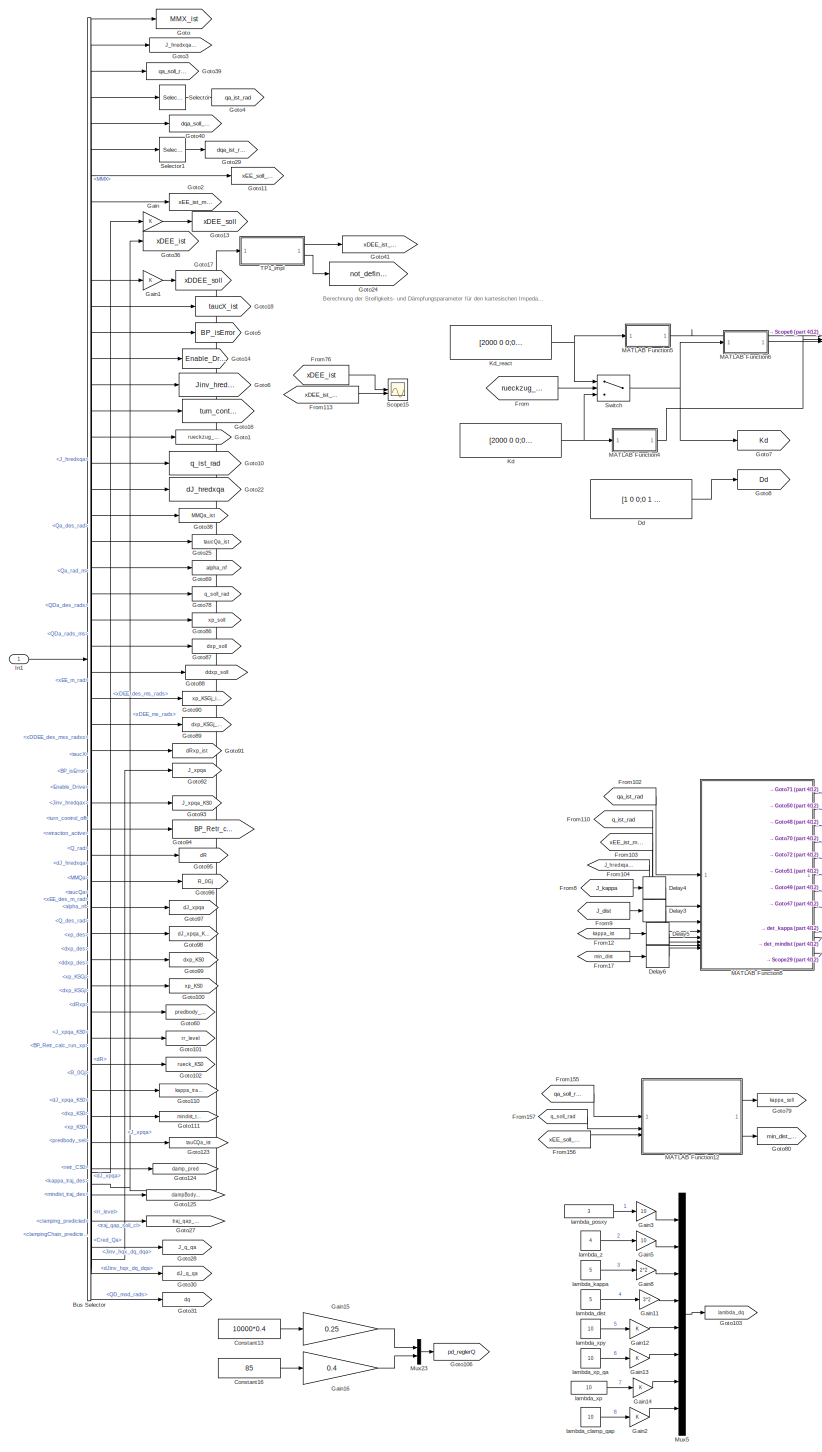
[diagram: Control - part 1/12, top left region]
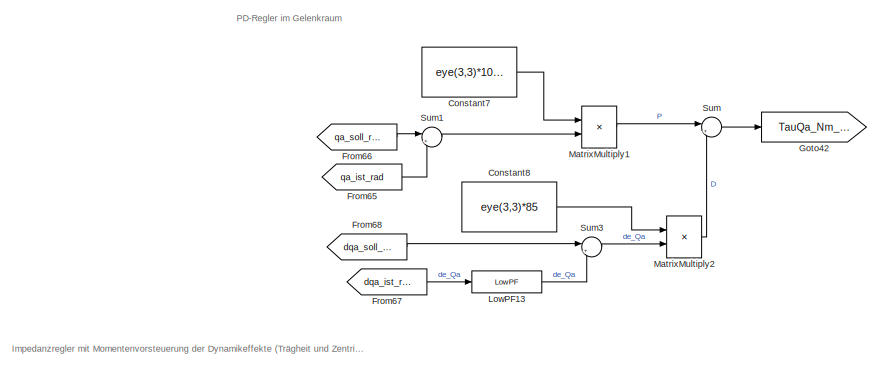
[diagram: Control - part 2/12, top center region]
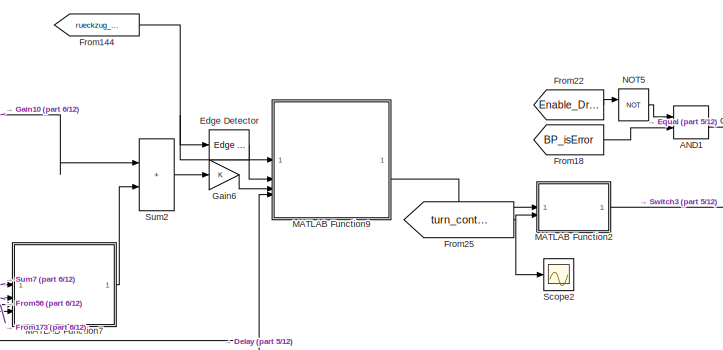
[diagram: Control - part 3/12, top right region]
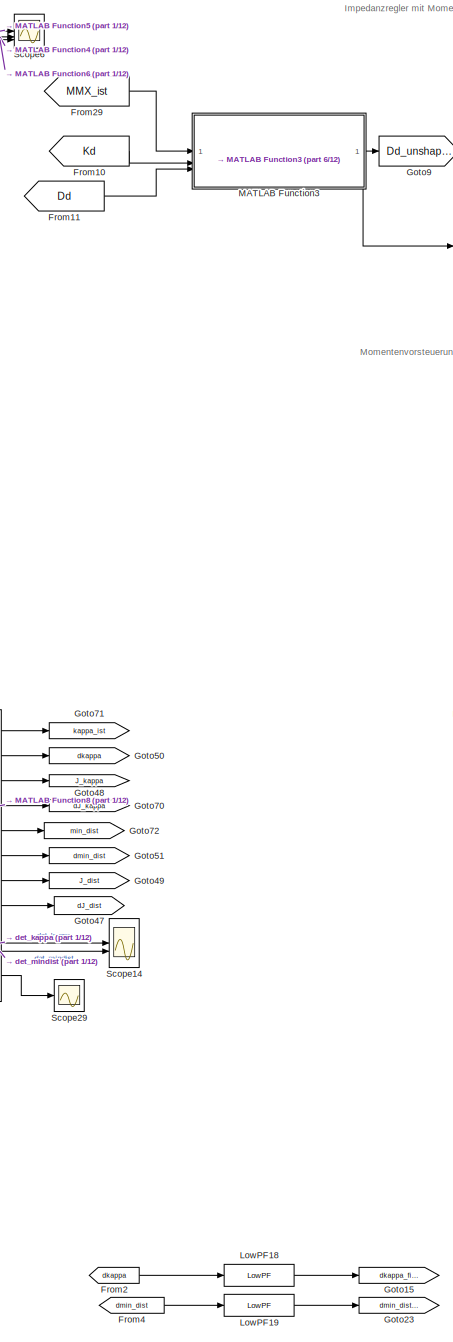
[diagram: Control - part 4/12, middle left region]
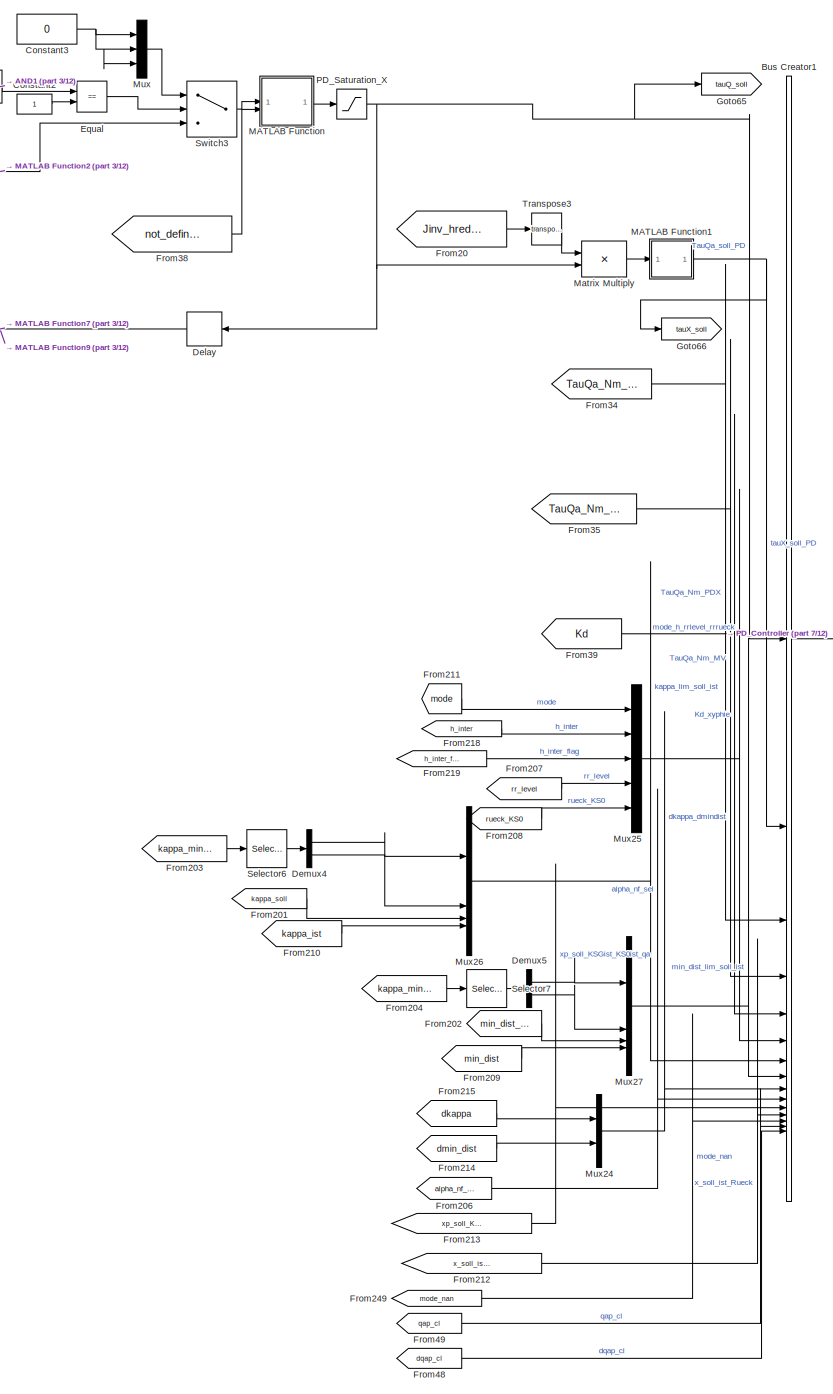
[diagram: Control - part 5/12, middle right region]
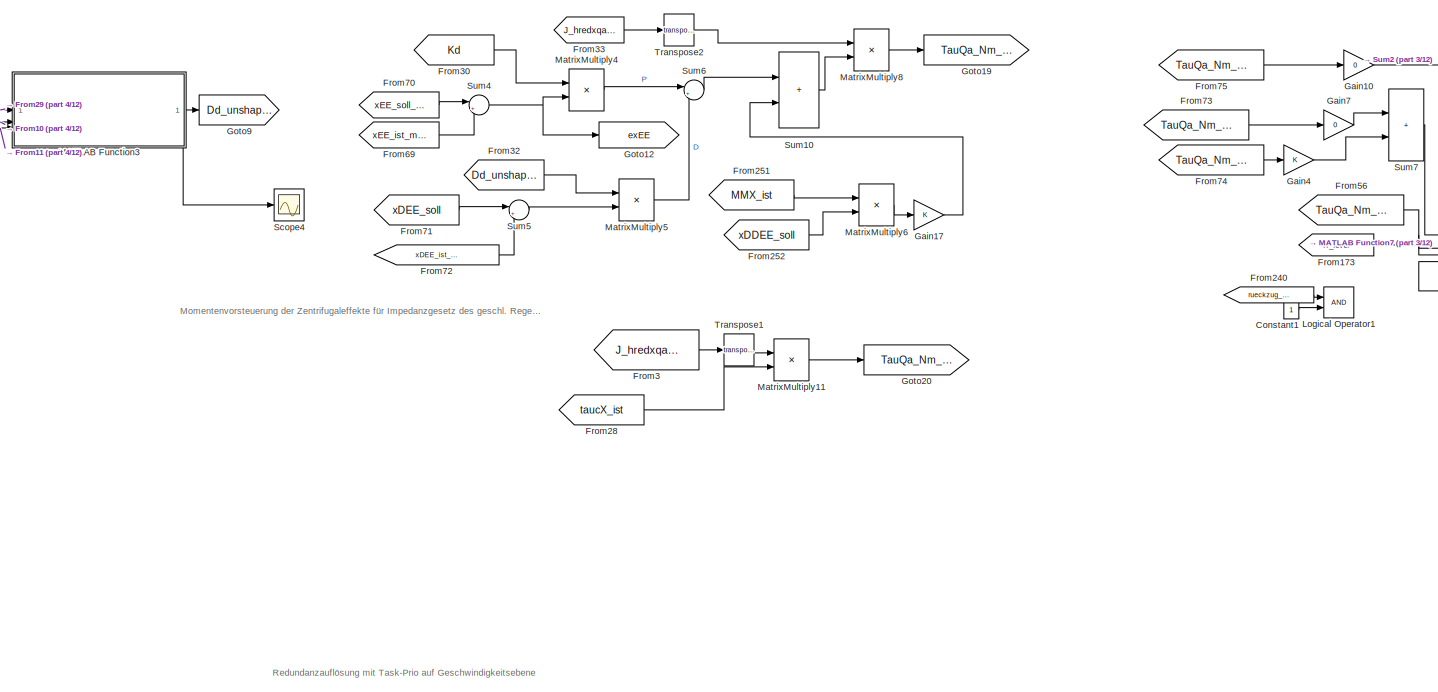
[diagram: Control - part 6/12, top center region]
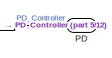
[diagram: Control - part 7/12, middle right region]
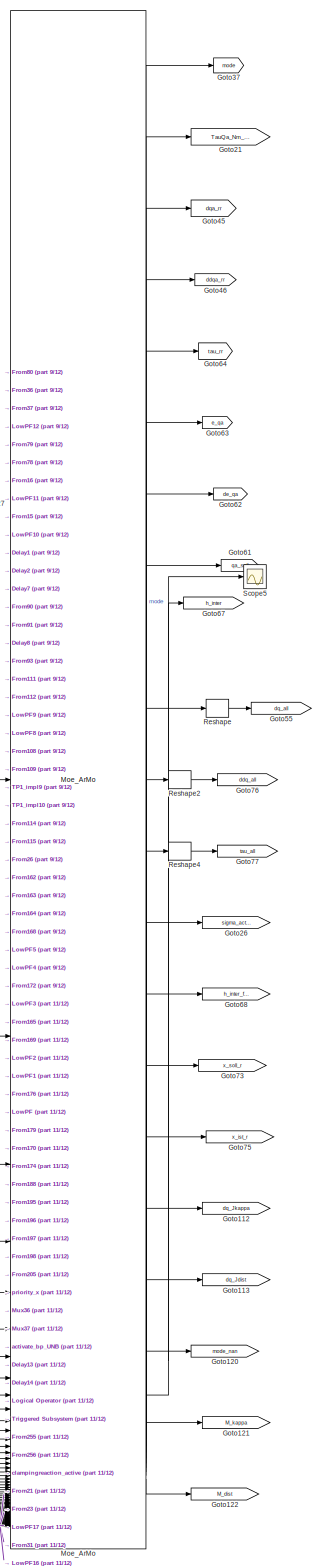
[diagram: Control - part 8/12, central region]
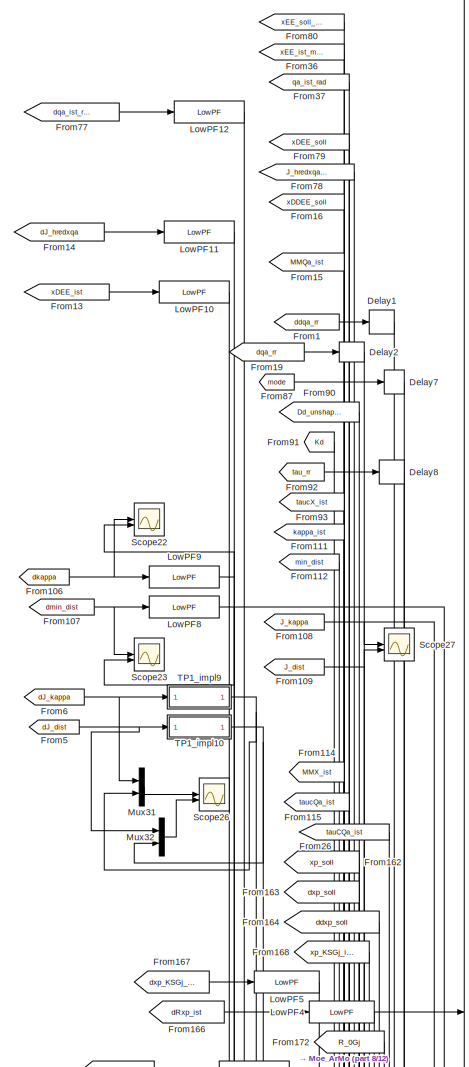
[diagram: Control - part 9/12, central region]
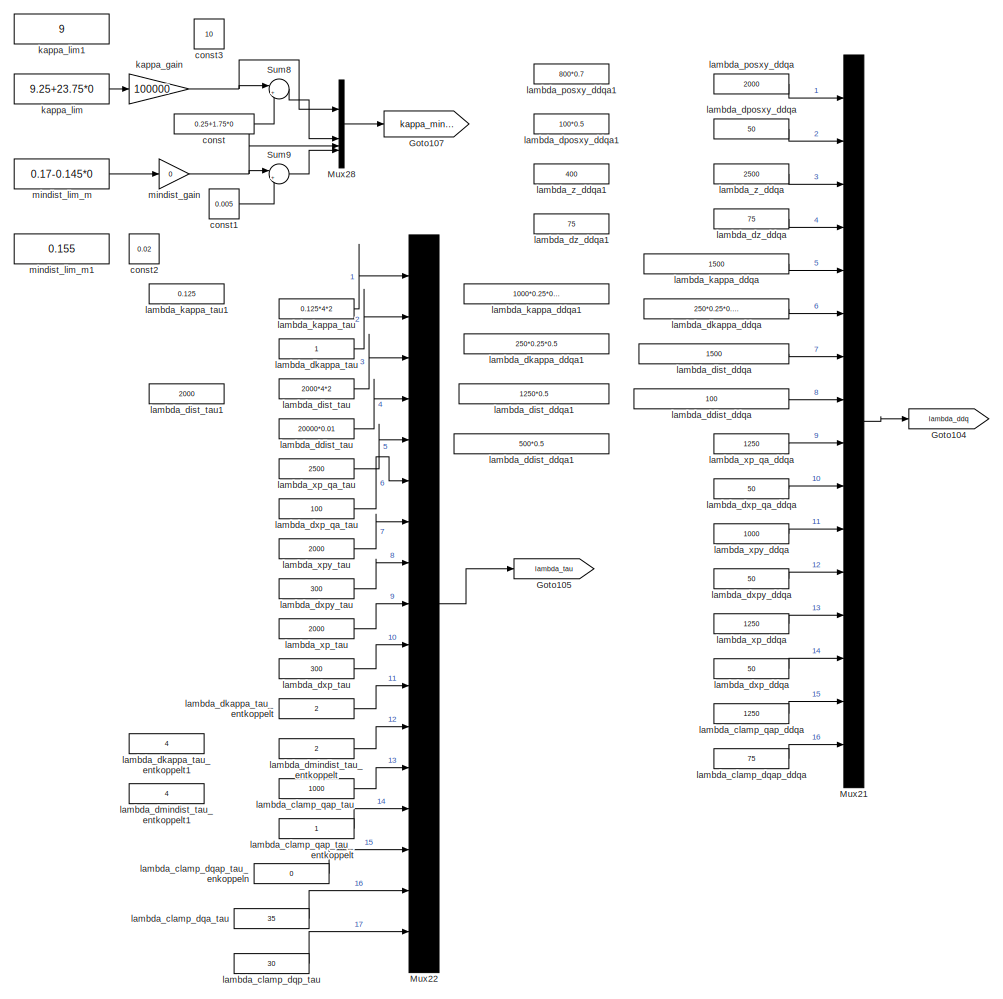
[diagram: Control - part 10/12, bottom left region]
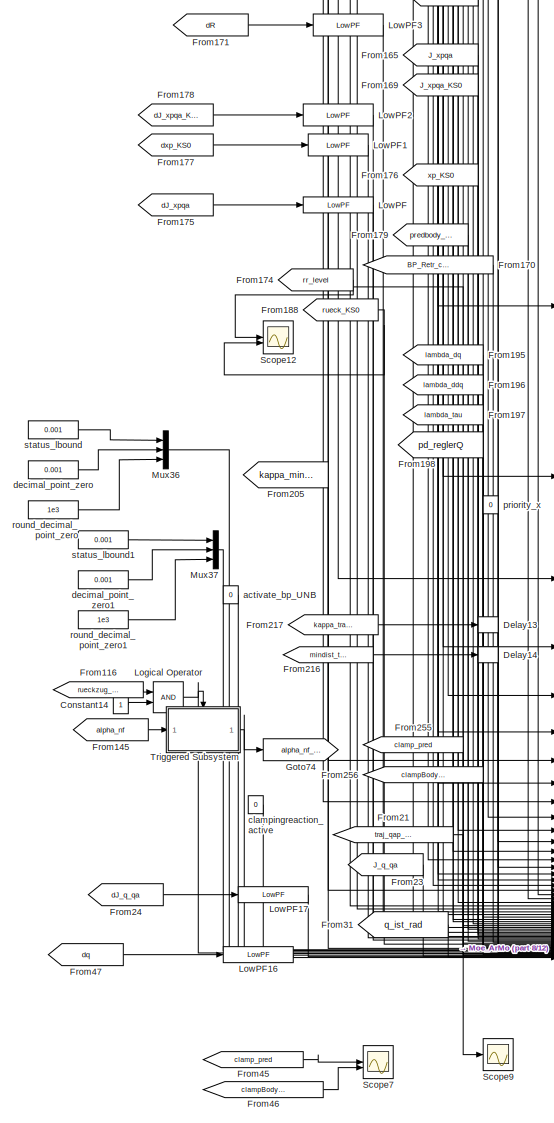
[diagram: Control - part 11/12, bottom center region]
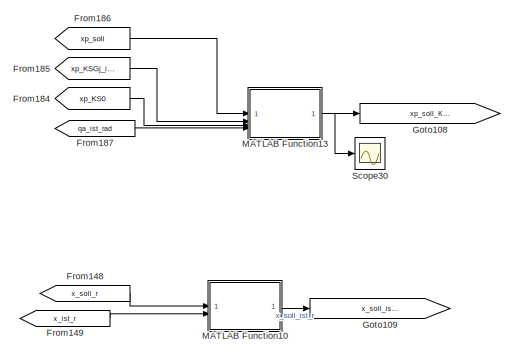
[diagram: Control - part 12/12, bottom right region]
BLOCK [SubSystem] Control
BLOCK [Logic] Control/AND1
  AllPortsSameDT = off
  Operator = OR
  OutDataTypeStr = boolean
BLOCK [BusCreator] Control/Bus Creator1
  DisplayOption = bar
  InheritFromInputs = on
  Inputs = 15
BLOCK [BusSelector] Control/Bus Selector
  OutputSignals = Dynamik.MMX,Differential kinematics - current values.J_hredxqa,Logical data.Qa_des_rad,Kinematics_currentValues.Qa_rad_m,Logical data.QDa_des_rads,Differential kinematics - current values.QDa_rads_ms,Logical data.xEE_des_m_rad,Kinematics_currentValues.xEE_m_rad,Logical data.xDEE_des_ms_rads,Differential kinematics - current values.xDEE_ms_rads,Logical data.xDDEE_des_mss_radss,Dynamik.taucX,Logical...<+1017ch>
BLOCK [Constant] Control/Constant1
  SampleTime = -1
BLOCK [Constant] Control/Constant13
  SampleTime = -1
  Value = 10000*0.4
BLOCK [Constant] Control/Constant14
  SampleTime = -1
BLOCK [Constant] Control/Constant16
  SampleTime = -1
  Value = 85
BLOCK [Constant] Control/Constant2
  SampleTime = -1
BLOCK [Constant] Control/Constant3
  SampleTime = -1
  Value = 0
BLOCK [Constant] Control/Constant7
  SampleTime = -1
  Value = eye(3,3)*10000
BLOCK [Constant] Control/Constant8
  SampleTime = -1
  Value = eye(3,3)*85
BLOCK [Constant] Control/Dd
  SampleTime = -1
  Value = [1 0 0;0 1 0;0 0 1]
BLOCK [Delay] Control/Delay
  DelayLength = 1
  InitialCondition = zeros(3,1)
  InputPortMap = u0
  NameLocation = top
BLOCK [Delay] Control/Delay1
  DelayLength = 1
  InitialCondition = zeros(3,1)
  InputPortMap = u0
BLOCK [Delay] Control/Delay13
  DelayLength = 1
  InitialCondition = [9 0 0]
  InputPortMap = u0
BLOCK [Delay] Control/Delay14
  DelayLength = 1
  InitialCondition = [0.175 0 0]
  InputPortMap = u0
BLOCK [Delay] Control/Delay2
  DelayLength = 1
  InitialCondition = zeros(3,1)
  InputPortMap = u0
BLOCK [Delay] Control/Delay3
  DelayLength = 1
  InitialCondition = zeros(1,3)
  InputPortMap = u0
BLOCK [Delay] Control/Delay4
  DelayLength = 1
  InitialCondition = zeros(1,3)
  InputPortMap = u0
BLOCK [Delay] Control/Delay5
  DelayLength = 1
  InitialCondition = 8
  InputPortMap = u0
BLOCK [Delay] Control/Delay6
  DelayLength = 1
  InitialCondition = 0.17
  InputPortMap = u0
BLOCK [Delay] Control/Delay7
  DelayLength = 1
  InitialCondition = 1
  InputPortMap = u0
BLOCK [Delay] Control/Delay8
  DelayLength = 1
  InitialCondition = zeros(3,1)
  InputPortMap = u0
BLOCK [Demux] Control/Demux4
  Outputs = 2
BLOCK [Demux] Control/Demux5
  Outputs = 2
BLOCK [Reference] Control/Edge Detector  REF=dspswit3/Edge
Detector
  SourceBlock = dspswit3/Edge\nDetector
  SourceType = Edge Detector
  UserDataPersistent = on
BLOCK [RelationalOperator] Control/Equal
  InputSameDT = off
  Operator = ==
  OutDataTypeStr = boolean
  RndMeth = Simplest
BLOCK [From] Control/From
  GotoTag = rueckzug_aktiv
BLOCK [From] Control/From1
  GotoTag = ddqa_rr
BLOCK [From] Control/From10
  GotoTag = Kd
BLOCK [From] Control/From102
  GotoTag = qa_ist_rad
BLOCK [From] Control/From103
  GotoTag = xEE_ist_m_rad
BLOCK [From] Control/From104
  GotoTag = J_hredxqa_ist
BLOCK [From] Control/From106
  GotoTag = dkappa
BLOCK [From] Control/From107
  GotoTag = dmin_dist
BLOCK [From] Control/From108
  GotoTag = J_kappa
BLOCK [From] Control/From109
  GotoTag = J_dist
BLOCK [From] Control/From11
  GotoTag = Dd
BLOCK [From] Control/From110
  GotoTag = q_ist_rad
BLOCK [From] Control/From111
  GotoTag = kappa_ist
BLOCK [From] Control/From112
  GotoTag = min_dist
BLOCK [From] Control/From113
  GotoTag = xDEE_ist_filt_ms_rads
BLOCK [From] Control/From114
  GotoTag = MMX_ist
BLOCK [From] Control/From115
  GotoTag = taucQa_ist
BLOCK [From] Control/From116
  GotoTag = rueckzug_aktiv
BLOCK [From] Control/From12
  GotoTag = kappa_ist
BLOCK [From] Control/From13
  GotoTag = xDEE_ist
BLOCK [From] Control/From14
  GotoTag = dJ_hredxqa
BLOCK [From] Control/From144
  GotoTag = rueckzug_aktiv
BLOCK [From] Control/From145
  GotoTag = alpha_nf
BLOCK [From] Control/From148
  GotoTag = x_soll_r
BLOCK [From] Control/From149
  GotoTag = x_ist_r
BLOCK [From] Control/From15
  GotoTag = MMQa_ist
BLOCK [From] Control/From155
  GotoTag = qa_soll_rad
BLOCK [From] Control/From156
  GotoTag = xEE_soll_m_rad
BLOCK [From] Control/From157
  GotoTag = q_soll_rad
BLOCK [From] Control/From16
  GotoTag = xDDEE_soll
BLOCK [From] Control/From162
  GotoTag = xp_soll
BLOCK [From] Control/From163
  GotoTag = dxp_soll
BLOCK [From] Control/From164
  GotoTag = ddxp_soll
BLOCK [From] Control/From165
  GotoTag = J_xpqa
BLOCK [From] Control/From166
  GotoTag = dRxp_ist
BLOCK [From] Control/From167
  GotoTag = dxp_KSGj_ist
BLOCK [From] Control/From168
  GotoTag = xp_KSGj_ist
BLOCK [From] Control/From169
  GotoTag = J_xpqa_KS0
BLOCK [From] Control/From17
  GotoTag = min_dist
BLOCK [From] Control/From170
  GotoTag = BP_Retr_calc_run_KSGj
BLOCK [From] Control/From171
  GotoTag = dR
BLOCK [From] Control/From172
  GotoTag = R_0Gj
BLOCK [From] Control/From173
  GotoTag = rr_level
BLOCK [From] Control/From174
  GotoTag = rr_level
BLOCK [From] Control/From175
  GotoTag = dJ_xpqa
BLOCK [From] Control/From176
  GotoTag = xp_KS0
BLOCK [From] Control/From177
  GotoTag = dxp_KS0
BLOCK [From] Control/From178
  GotoTag = dJ_xpqa_KS0
BLOCK [From] Control/From179
  GotoTag = predbody_sel
BLOCK [From] Control/From18
  GotoTag = BP_isError
BLOCK [From] Control/From184
  GotoTag = xp_KS0
BLOCK [From] Control/From185
  GotoTag = xp_KSGj_ist
BLOCK [From] Control/From186
  GotoTag = xp_soll
BLOCK [From] Control/From187
  GotoTag = qa_ist_rad
BLOCK [From] Control/From188
  GotoTag = rueck_KS0
BLOCK [From] Control/From19
  GotoTag = dqa_rr
BLOCK [From] Control/From195
  GotoTag = lambda_dq
BLOCK [From] Control/From196
  GotoTag = lambda_ddq
BLOCK [From] Control/From197
  GotoTag = lambda_tau
BLOCK [From] Control/From198
  GotoTag = pd_reglerQ
BLOCK [From] Control/From2
  GotoTag = dkappa
BLOCK [From] Control/From20
  GotoTag = Jinv_hredqax_ist
BLOCK [From] Control/From201
  GotoTag = kappa_soll
BLOCK [From] Control/From202
  GotoTag = min_dist_soll
BLOCK [From] Control/From203
  GotoTag = kappa_mindist
BLOCK [From] Control/From204
  GotoTag = kappa_mindist
BLOCK [From] Control/From205
  GotoTag = kappa_mindist
BLOCK [From] Control/From206
  GotoTag = alpha_nf_sel
BLOCK [From] Control/From207
  GotoTag = rr_level
BLOCK [From] Control/From208
  GotoTag = rueck_KS0
BLOCK [From] Control/From209
  GotoTag = min_dist
BLOCK [From] Control/From21
  GotoTag = traj_qap_soll_cl
BLOCK [From] Control/From210
  GotoTag = kappa_ist
BLOCK [From] Control/From211
  GotoTag = mode
BLOCK [From] Control/From212
  GotoTag = x_soll_ist_Rueck
BLOCK [From] Control/From213
  GotoTag = xp_soll_KSGist_KS0ist_qa
BLOCK [From] Control/From214
  GotoTag = dmin_dist
BLOCK [From] Control/From215
  GotoTag = dkappa
BLOCK [From] Control/From216
  GotoTag = mindist_traj_soll
BLOCK [From] Control/From217
  GotoTag = kappa_traj_soll
BLOCK [From] Control/From218
  GotoTag = h_inter
BLOCK [From] Control/From219
  GotoTag = h_inter_flag
BLOCK [From] Control/From22
  GotoTag = Enable_Drive
BLOCK [From] Control/From23
  GotoTag = J_q_qa
BLOCK [From] Control/From24
  GotoTag = dJ_q_qa
BLOCK [From] Control/From240
  GotoTag = rueckzug_aktiv
BLOCK [From] Control/From249
  GotoTag = mode_nan
BLOCK [From] Control/From25
  GotoTag = turn_control_off
BLOCK [From] Control/From251
  GotoTag = MMX_ist
BLOCK [From] Control/From252
  GotoTag = xDDEE_soll
BLOCK [From] Control/From255
  GotoTag = clamp_pred
BLOCK [From] Control/From256
  GotoTag = clampBody_pred
BLOCK [From] Control/From26
  GotoTag = tauCQa_ist
BLOCK [From] Control/From28
  GotoTag = taucX_ist
BLOCK [From] Control/From29
  GotoTag = MMX_ist
BLOCK [From] Control/From3
  GotoTag = J_hredxqa_ist
BLOCK [From] Control/From30
  GotoTag = Kd
BLOCK [From] Control/From31
  GotoTag = q_ist_rad
BLOCK [From] Control/From32
  GotoTag = Dd_unshaped
BLOCK [From] Control/From33
  GotoTag = J_hredxqa_ist
BLOCK [From] Control/From34
  GotoTag = TauQa_Nm_PDX
BLOCK [From] Control/From35
  GotoTag = TauQa_Nm_MV
BLOCK [From] Control/From36
  GotoTag = xEE_ist_m_rad
BLOCK [From] Control/From37
  GotoTag = qa_ist_rad
BLOCK [From] Control/From38
  GotoTag = not_defined_nan
BLOCK [From] Control/From39
  GotoTag = Kd
BLOCK [From] Control/From4
  GotoTag = dmin_dist
BLOCK [From] Control/From45
  GotoTag = clamp_pred
BLOCK [From] Control/From46
  GotoTag = clampBody_pred
BLOCK [From] Control/From47
  GotoTag = dq
BLOCK [From] Control/From48
  GotoTag = dqap_cl
BLOCK [From] Control/From49
  GotoTag = qap_cl
BLOCK [From] Control/From5
  GotoTag = dJ_dist
BLOCK [From] Control/From56
  GotoTag = TauQa_Nm_RR_dq
BLOCK [From] Control/From6
  GotoTag = dJ_kappa
BLOCK [From] Control/From65
  GotoTag = qa_ist_rad
BLOCK [From] Control/From66
  GotoTag = qa_soll_rad
BLOCK [From] Control/From67
  GotoTag = dqa_ist_rads
BLOCK [From] Control/From68
  GotoTag = dqa_soll_rads
BLOCK [From] Control/From69
  GotoTag = xEE_ist_m_rad
BLOCK [From] Control/From70
  GotoTag = xEE_soll_m_rad
BLOCK [From] Control/From71
  GotoTag = xDEE_soll
BLOCK [From] Control/From72
  GotoTag = xDEE_ist_filt_ms_rads
BLOCK [From] Control/From73
  GotoTag = TauQa_Nm_PDQa
BLOCK [From] Control/From74
  GotoTag = TauQa_Nm_PDX
BLOCK [From] Control/From75
  GotoTag = TauQa_Nm_MV
BLOCK [From] Control/From76
  GotoTag = xDEE_ist
BLOCK [From] Control/From77
  GotoTag = dqa_ist_rads
BLOCK [From] Control/From78
  GotoTag = J_hredxqa_ist
BLOCK [From] Control/From79
  GotoTag = xDEE_soll
BLOCK [From] Control/From8
  GotoTag = J_kappa
BLOCK [From] Control/From80
  GotoTag = xEE_soll_m_rad
BLOCK [From] Control/From87
  GotoTag = mode
BLOCK [From] Control/From9
  GotoTag = J_dist
BLOCK [From] Control/From90
  GotoTag = Dd_unshaped
BLOCK [From] Control/From91
  GotoTag = Kd
BLOCK [From] Control/From92
  GotoTag = tau_rr
BLOCK [From] Control/From93
  GotoTag = taucX_ist
BLOCK [Gain] Control/Gain
BLOCK [Gain] Control/Gain1
BLOCK [Gain] Control/Gain10
  Gain = 0
BLOCK [Gain] Control/Gain11
  Gain = 3*2
BLOCK [Gain] Control/Gain12
BLOCK [Gain] Control/Gain13
BLOCK [Gain] Control/Gain14
BLOCK [Gain] Control/Gain15
  Gain = 0.25
BLOCK [Gain] Control/Gain16
  Gain = 0.4
BLOCK [Gain] Control/Gain17
BLOCK [Gain] Control/Gain2
BLOCK [Gain] Control/Gain3
  Gain = 10
BLOCK [Gain] Control/Gain4
BLOCK [Gain] Control/Gain5
  Gain = 10
BLOCK [Gain] Control/Gain6
BLOCK [Gain] Control/Gain7
  Gain = 0
BLOCK [Gain] Control/Gain8
  Gain = 2*2
BLOCK [Goto] Control/Goto
  GotoTag = MMX_ist
BLOCK [Goto] Control/Goto1
  GotoTag = rueckzug_aktiv
BLOCK [Goto] Control/Goto10
  GotoTag = q_ist_rad
BLOCK [Goto] Control/Goto100
  GotoTag = xp_KS0
BLOCK [Goto] Control/Goto101
  GotoTag = rr_level
BLOCK [Goto] Control/Goto102
  GotoTag = rueck_KS0
BLOCK [Goto] Control/Goto103
  GotoTag = lambda_dq
BLOCK [Goto] Control/Goto104
  GotoTag = lambda_ddq
BLOCK [Goto] Control/Goto105
  GotoTag = lambda_tau
BLOCK [Goto] Control/Goto106
  GotoTag = pd_reglerQ
BLOCK [Goto] Control/Goto107
  GotoTag = kappa_mindist
BLOCK [Goto] Control/Goto108
  GotoTag = xp_soll_KSGist_KS0ist_qa
BLOCK [Goto] Control/Goto109
  GotoTag = x_soll_ist_Rueck
BLOCK [Goto] Control/Goto11
  GotoTag = xEE_soll_m_rad
BLOCK [Goto] Control/Goto110
  GotoTag = kappa_traj_soll
BLOCK [Goto] Control/Goto111
  GotoTag = mindist_traj_soll
BLOCK [Goto] Control/Goto112
  GotoTag = dq_Jkappa
BLOCK [Goto] Control/Goto113
  GotoTag = dq_Jdist
BLOCK [Goto] Control/Goto12
  GotoTag = exEE
BLOCK [Goto] Control/Goto120
  GotoTag = mode_nan
BLOCK [Goto] Control/Goto121
  GotoTag = M_kappa
BLOCK [Goto] Control/Goto122
  GotoTag = M_dist
BLOCK [Goto] Control/Goto123
  GotoTag = tauCQa_ist
BLOCK [Goto] Control/Goto124
  GotoTag = clamp_pred
BLOCK [Goto] Control/Goto125
  GotoTag = clampBody_pred
BLOCK [Goto] Control/Goto13
  GotoTag = xDEE_soll
BLOCK [Goto] Control/Goto14
  GotoTag = Enable_Drive
BLOCK [Goto] Control/Goto15
  GotoTag = dkappa_filt
BLOCK [Goto] Control/Goto16
  GotoTag = turn_control_off
BLOCK [Goto] Control/Goto17
  GotoTag = xDDEE_soll
BLOCK [Goto] Control/Goto18
  GotoTag = taucX_ist
BLOCK [Goto] Control/Goto19
  GotoTag = TauQa_Nm_PDX
BLOCK [Goto] Control/Goto2
  GotoTag = xEE_ist_m_rad
BLOCK [Goto] Control/Goto20
  GotoTag = TauQa_Nm_MV
BLOCK [Goto] Control/Goto21
  GotoTag = TauQa_Nm_RR_dq
BLOCK [Goto] Control/Goto22
  GotoTag = dJ_hredxqa
BLOCK [Goto] Control/Goto23
  GotoTag = dmin_dist_filt
BLOCK [Goto] Control/Goto24
  GotoTag = not_defined_nan
BLOCK [Goto] Control/Goto25
  GotoTag = taucQa_ist
BLOCK [Goto] Control/Goto26
  GotoTag = sigma_activ_list
BLOCK [Goto] Control/Goto27
  GotoTag = traj_qap_soll_cl
BLOCK [Goto] Control/Goto28
  GotoTag = J_q_qa
BLOCK [Goto] Control/Goto29
  GotoTag = dqa_ist_rads
BLOCK [Goto] Control/Goto3
  GotoTag = J_hredxqa_ist
BLOCK [Goto] Control/Goto30
  GotoTag = dJ_q_qa
BLOCK [Goto] Control/Goto31
  GotoTag = dq
BLOCK [Goto] Control/Goto36
  GotoTag = xDEE_ist
BLOCK [Goto] Control/Goto37
  GotoTag = mode
BLOCK [Goto] Control/Goto38
  GotoTag = MMQa_ist
BLOCK [Goto] Control/Goto39
  GotoTag = qa_soll_rad
BLOCK [Goto] Control/Goto4
  GotoTag = qa_ist_rad
BLOCK [Goto] Control/Goto40
  GotoTag = dqa_soll_rads
BLOCK [Goto] Control/Goto41
  GotoTag = xDEE_ist_filt_ms_rads
BLOCK [Goto] Control/Goto42
  GotoTag = TauQa_Nm_PDQa
BLOCK [Goto] Control/Goto45
  GotoTag = dqa_rr
BLOCK [Goto] Control/Goto46
  GotoTag = ddqa_rr
BLOCK [Goto] Control/Goto47
  GotoTag = dJ_dist
BLOCK [Goto] Control/Goto48
  GotoTag = J_kappa
BLOCK [Goto] Control/Goto49
  GotoTag = J_dist
BLOCK [Goto] Control/Goto5
  GotoTag = BP_isError
BLOCK [Goto] Control/Goto50
  GotoTag = dkappa
BLOCK [Goto] Control/Goto51
  GotoTag = dmin_dist
BLOCK [Goto] Control/Goto55
  GotoTag = dq_all
BLOCK [Goto] Control/Goto6
  GotoTag = Jinv_hredqax_ist
BLOCK [Goto] Control/Goto60
  GotoTag = predbody_sel
BLOCK [Goto] Control/Goto61
  GotoTag = qa_soll
BLOCK [Goto] Control/Goto62
  GotoTag = de_qa
BLOCK [Goto] Control/Goto63
  GotoTag = e_qa
BLOCK [Goto] Control/Goto64
  GotoTag = tau_rr
BLOCK [Goto] Control/Goto65
  GotoTag = tauQ_soll
BLOCK [Goto] Control/Goto66
  GotoTag = tauX_soll
BLOCK [Goto] Control/Goto67
  GotoTag = h_inter
BLOCK [Goto] Control/Goto68
  GotoTag = h_inter_flag
BLOCK [Goto] Control/Goto69
  GotoTag = alpha_nf
BLOCK [Goto] Control/Goto7
  GotoTag = Kd
BLOCK [Goto] Control/Goto70
  GotoTag = dJ_kappa
BLOCK [Goto] Control/Goto71
  GotoTag = kappa_ist
BLOCK [Goto] Control/Goto72
  GotoTag = min_dist
BLOCK [Goto] Control/Goto73
  GotoTag = x_soll_r
BLOCK [Goto] Control/Goto74
  GotoTag = alpha_nf_sel
BLOCK [Goto] Control/Goto75
  GotoTag = x_ist_r
BLOCK [Goto] Control/Goto76
  GotoTag = ddq_all
BLOCK [Goto] Control/Goto77
  GotoTag = tau_all
BLOCK [Goto] Control/Goto78
  GotoTag = q_soll_rad
BLOCK [Goto] Control/Goto79
  GotoTag = kappa_soll
BLOCK [Goto] Control/Goto8
  GotoTag = Dd
BLOCK [Goto] Control/Goto80
  GotoTag = min_dist_soll
BLOCK [Goto] Control/Goto86
  GotoTag = xp_soll
BLOCK [Goto] Control/Goto87
  GotoTag = dxp_soll
BLOCK [Goto] Control/Goto88
  GotoTag = ddxp_soll
BLOCK [Goto] Control/Goto89
  GotoTag = dxp_KSGj_ist
BLOCK [Goto] Control/Goto9
  GotoTag = Dd_unshaped
BLOCK [Goto] Control/Goto90
  GotoTag = xp_KSGj_ist
BLOCK [Goto] Control/Goto91
  GotoTag = dRxp_ist
BLOCK [Goto] Control/Goto92
  GotoTag = J_xpqa
BLOCK [Goto] Control/Goto93
  GotoTag = J_xpqa_KS0
BLOCK [Goto] Control/Goto94
  GotoTag = BP_Retr_calc_run_KSGj
BLOCK [Goto] Control/Goto95
  GotoTag = dR
BLOCK [Goto] Control/Goto96
  GotoTag = R_0Gj
BLOCK [Goto] Control/Goto97
  GotoTag = dJ_xpqa
BLOCK [Goto] Control/Goto98
  GotoTag = dJ_xpqa_KS0
BLOCK [Goto] Control/Goto99
  GotoTag = dxp_KS0
BLOCK [Inport] Control/In1
BLOCK [Constant] Control/Kd
  SampleTime = -1
  Value = [2000 0 0;0 2000 0;0 0 85]
BLOCK [Constant] Control/Kd_react
  SampleTime = -1
  Value = [2000 0 0;0 2000 0;0 0 85]
BLOCK [Logic] Control/Logical Operator
  AllPortsSameDT = off
  OutDataTypeStr = boolean
BLOCK [Logic] Control/Logical Operator1
  AllPortsSameDT = off
  OutDataTypeStr = boolean
BLOCK [Reference] Control/LowPF  REF=Cust_Library_planarPKM/LowPF
  SourceBlock = Cust_Library_planarPKM/LowPF
  SourceType = 1st order low-pass filter
BLOCK [Reference] Control/LowPF1  REF=Cust_Library_planarPKM/LowPF
  SourceBlock = Cust_Library_planarPKM/LowPF
  SourceType = 1st order low-pass filter
BLOCK [Reference] Control/LowPF10  REF=Cust_Library_planarPKM/LowPF
  SourceBlock = Cust_Library_planarPKM/LowPF
  SourceType = 1st order low-pass filter
BLOCK [Reference] Control/LowPF11  REF=Cust_Library_planarPKM/LowPF
  SourceBlock = Cust_Library_planarPKM/LowPF
  SourceType = 1st order low-pass filter
BLOCK [Reference] Control/LowPF12  REF=Cust_Library_planarPKM/LowPF
  SourceBlock = Cust_Library_planarPKM/LowPF
  SourceType = 1st order low-pass filter
BLOCK [Reference] Control/LowPF13  REF=Cust_Library_planarPKM/LowPF
  SourceBlock = Cust_Library_planarPKM/LowPF
  SourceType = 1st order low-pass filter
BLOCK [Reference] Control/LowPF16  REF=Cust_Library_planarPKM/LowPF
  SourceBlock = Cust_Library_planarPKM/LowPF
  SourceType = 1st order low-pass filter
BLOCK [Reference] Control/LowPF17  REF=Cust_Library_planarPKM/LowPF
  SourceBlock = Cust_Library_planarPKM/LowPF
  SourceType = 1st order low-pass filter
BLOCK [Reference] Control/LowPF18  REF=Cust_Library_planarPKM/LowPF
  SourceBlock = Cust_Library_planarPKM/LowPF
  SourceType = 1st order low-pass filter
BLOCK [Reference] Control/LowPF19  REF=Cust_Library_planarPKM/LowPF
  SourceBlock = Cust_Library_planarPKM/LowPF
  SourceType = 1st order low-pass filter
BLOCK [Reference] Control/LowPF2  REF=Cust_Library_planarPKM/LowPF
  SourceBlock = Cust_Library_planarPKM/LowPF
  SourceType = 1st order low-pass filter
BLOCK [Reference] Control/LowPF3  REF=Cust_Library_planarPKM/LowPF
  SourceBlock = Cust_Library_planarPKM/LowPF
  SourceType = 1st order low-pass filter
BLOCK [Reference] Control/LowPF4  REF=Cust_Library_planarPKM/LowPF
  SourceBlock = Cust_Library_planarPKM/LowPF
  SourceType = 1st order low-pass filter
BLOCK [Reference] Control/LowPF5  REF=Cust_Library_planarPKM/LowPF
  SourceBlock = Cust_Library_planarPKM/LowPF
  SourceType = 1st order low-pass filter
BLOCK [Reference] Control/LowPF8  REF=Cust_Library_planarPKM/LowPF
  SourceBlock = Cust_Library_planarPKM/LowPF
  SourceType = 1st order low-pass filter
BLOCK [Reference] Control/LowPF9  REF=Cust_Library_planarPKM/LowPF
  SourceBlock = Cust_Library_planarPKM/LowPF
  SourceType = 1st order low-pass filter
BLOCK [SubSystem] Control/MATLAB Function
  ErrorFcn = Stateflow.Translate.translate
  PermitHierarchicalResolution = ExplicitOnly
  SFBlockType = MATLAB Function
  TreatAsAtomicUnit = on
BLOCK [Demux] Control/MATLAB Function/ Demux 
  Outputs = 1
BLOCK [S-Function] Control/MATLAB Function/ SFunction 
  EnableBusSupport = on
  FunctionName = sf_sfun
  PortCounts = [2 2]
  SFcnIsStateOwnerBlock = off
  SFunctionDeploymentMode = off
  Tag = Stateflow S-Function 83
BLOCK [Terminator] Control/MATLAB Function/ Terminator 
BLOCK [Inport] Control/MATLAB Function/not_defined_nan
  Port = 2
BLOCK [Inport] Control/MATLAB Function/u
BLOCK [Outport] Control/MATLAB Function/y
BLOCK [SubSystem] Control/MATLAB Function1
  ErrorFcn = Stateflow.Translate.translate
  PermitHierarchicalResolution = ExplicitOnly
  SFBlockType = MATLAB Function
  TreatAsAtomicUnit = on
BLOCK [Demux] Control/MATLAB Function1/ Demux 
  Outputs = 1
BLOCK [S-Function] Control/MATLAB Function1/ SFunction 
  EnableBusSupport = on
  FunctionName = sf_sfun
  PortCounts = [1 2]
  SFcnIsStateOwnerBlock = off
  SFunctionDeploymentMode = off
  Tag = Stateflow S-Function 84
BLOCK [Terminator] Control/MATLAB Function1/ Terminator 
BLOCK [Inport] Control/MATLAB Function1/u
BLOCK [Outport] Control/MATLAB Function1/y
BLOCK [SubSystem] Control/MATLAB Function10
  ErrorFcn = Stateflow.Translate.translate
  PermitHierarchicalResolution = ExplicitOnly
  SFBlockType = MATLAB Function
  TreatAsAtomicUnit = on
BLOCK [Demux] Control/MATLAB Function10/ Demux 
  Outputs = 1
BLOCK [S-Function] Control/MATLAB Function10/ SFunction 
  EnableBusSupport = on
  FunctionName = sf_sfun
  PortCounts = [2 2]
  SFcnIsStateOwnerBlock = off
  SFunctionDeploymentMode = off
  Tag = Stateflow S-Function 128
BLOCK [Terminator] Control/MATLAB Function10/ Terminator 
BLOCK [Inport] Control/MATLAB Function10/u1
BLOCK [Inport] Control/MATLAB Function10/u2
  Port = 2
BLOCK [Outport] Control/MATLAB Function10/y
BLOCK [SubSystem] Control/MATLAB Function12
  ErrorFcn = Stateflow.Translate.translate
  PermitHierarchicalResolution = ExplicitOnly
  SFBlockType = MATLAB Function
  TreatAsAtomicUnit = on
BLOCK [Demux] Control/MATLAB Function12/ Demux 
  Outputs = 1
BLOCK [S-Function] Control/MATLAB Function12/ SFunction 
  EnableBusSupport = on
  FunctionName = sf_sfun
  Parameters = param
  PortCounts = [3 3]
  SFcnIsStateOwnerBlock = off
  SFunctionDeploymentMode = off
  Tag = Stateflow S-Function 130
BLOCK [Terminator] Control/MATLAB Function12/ Terminator 
BLOCK [Outport] Control/MATLAB Function12/kappa_soll
BLOCK [Outport] Control/MATLAB Function12/min_dist_soll
  Port = 2
BLOCK [Inport] Control/MATLAB Function12/q
  Port = 2
BLOCK [Inport] Control/MATLAB Function12/qa
BLOCK [Inport] Control/MATLAB Function12/x
  Port = 3
BLOCK [SubSystem] Control/MATLAB Function13
  ErrorFcn = Stateflow.Translate.translate
  PermitHierarchicalResolution = ExplicitOnly
  SFBlockType = MATLAB Function
  TreatAsAtomicUnit = on
BLOCK [Demux] Control/MATLAB Function13/ Demux 
  Outputs = 1
BLOCK [S-Function] Control/MATLAB Function13/ SFunction 
  EnableBusSupport = on
  FunctionName = sf_sfun
  PortCounts = [4 2]
  SFcnIsStateOwnerBlock = off
  SFunctionDeploymentMode = off
  Tag = Stateflow S-Function 144
BLOCK [Terminator] Control/MATLAB Function13/ Terminator 
BLOCK [Inport] Control/MATLAB Function13/data
  Port = 2
BLOCK [Inport] Control/MATLAB Function13/data1
  Port = 3
BLOCK [Inport] Control/MATLAB Function13/data2
  Port = 4
BLOCK [Inport] Control/MATLAB Function13/u
BLOCK [Outport] Control/MATLAB Function13/y
BLOCK [SubSystem] Control/MATLAB Function2
  ErrorFcn = Stateflow.Translate.translate
  PermitHierarchicalResolution = ExplicitOnly
  SFBlockType = MATLAB Function
  TreatAsAtomicUnit = on
BLOCK [Demux] Control/MATLAB Function2/ Demux 
  Outputs = 1
BLOCK [S-Function] Control/MATLAB Function2/ SFunction 
  EnableBusSupport = on
  FunctionName = sf_sfun
  PortCounts = [2 2]
  SFcnIsStateOwnerBlock = off
  SFunctionDeploymentMode = off
  Tag = Stateflow S-Function 87
BLOCK [Terminator] Control/MATLAB Function2/ Terminator 
BLOCK [Inport] Control/MATLAB Function2/torque_desired
BLOCK [Inport] Control/MATLAB Function2/turn_control_off
  Port = 2
BLOCK [Outport] Control/MATLAB Function2/y
  VectorParamsAs1DForOutWhenUnconnected = off
BLOCK [SubSystem] Control/MATLAB Function3
  ErrorFcn = Stateflow.Translate.translate
  PermitHierarchicalResolution = ExplicitOnly
  SFBlockType = MATLAB Function
  TreatAsAtomicUnit = on
BLOCK [Demux] Control/MATLAB Function3/ Demux 
  Outputs = 1
BLOCK [S-Function] Control/MATLAB Function3/ SFunction 
  EnableBusSupport = on
  FunctionName = sf_sfun
  PortCounts = [3 2]
  SFcnIsStateOwnerBlock = off
  SFunctionDeploymentMode = off
  Tag = Stateflow S-Function 4
BLOCK [Terminator] Control/MATLAB Function3/ Terminator 
BLOCK [Inport] Control/MATLAB Function3/D
  Port = 3
BLOCK [Outport] Control/MATLAB Function3/D_d
BLOCK [Inport] Control/MATLAB Function3/K_d
  Port = 2
BLOCK [Inport] Control/MATLAB Function3/M
BLOCK [SubSystem] Control/MATLAB Function4
  ErrorFcn = Stateflow.Translate.translate
  PermitHierarchicalResolution = ExplicitOnly
  SFBlockType = MATLAB Function
  TreatAsAtomicUnit = on
BLOCK [Demux] Control/MATLAB Function4/ Demux 
  Outputs = 1
BLOCK [S-Function] Control/MATLAB Function4/ SFunction 
  EnableBusSupport = on
  FunctionName = sf_sfun
  PortCounts = [1 2]
  SFcnIsStateOwnerBlock = off
  SFunctionDeploymentMode = off
  Tag = Stateflow S-Function 29
BLOCK [Terminator] Control/MATLAB Function4/ Terminator 
BLOCK [Inport] Control/MATLAB Function4/u
BLOCK [Outport] Control/MATLAB Function4/y
BLOCK [SubSystem] Control/MATLAB Function5
  ErrorFcn = Stateflow.Translate.translate
  PermitHierarchicalResolution = ExplicitOnly
  SFBlockType = MATLAB Function
  TreatAsAtomicUnit = on
BLOCK [Demux] Control/MATLAB Function5/ Demux 
  Outputs = 1
BLOCK [S-Function] Control/MATLAB Function5/ SFunction 
  EnableBusSupport = on
  FunctionName = sf_sfun
  PortCounts = [1 2]
  SFcnIsStateOwnerBlock = off
  SFunctionDeploymentMode = off
  Tag = Stateflow S-Function 53
BLOCK [Terminator] Control/MATLAB Function5/ Terminator 
BLOCK [Inport] Control/MATLAB Function5/u
BLOCK [Outport] Control/MATLAB Function5/y
BLOCK [SubSystem] Control/MATLAB Function6
  ErrorFcn = Stateflow.Translate.translate
  PermitHierarchicalResolution = ExplicitOnly
  SFBlockType = MATLAB Function
  TreatAsAtomicUnit = on
BLOCK [Demux] Control/MATLAB Function6/ Demux 
  Outputs = 1
BLOCK [S-Function] Control/MATLAB Function6/ SFunction 
  EnableBusSupport = on
  FunctionName = sf_sfun
  PortCounts = [1 2]
  SFcnIsStateOwnerBlock = off
  SFunctionDeploymentMode = off
  Tag = Stateflow S-Function 55
BLOCK [Terminator] Control/MATLAB Function6/ Terminator 
BLOCK [Inport] Control/MATLAB Function6/u
BLOCK [Outport] Control/MATLAB Function6/y
BLOCK [SubSystem] Control/MATLAB Function7
  ErrorFcn = Stateflow.Translate.translate
  PermitHierarchicalResolution = ExplicitOnly
  SFBlockType = MATLAB Function
  TreatAsAtomicUnit = on
BLOCK [Demux] Control/MATLAB Function7/ Demux 
  Outputs = 1
BLOCK [S-Function] Control/MATLAB Function7/ SFunction 
  EnableBusSupport = on
  FunctionName = sf_sfun
  Parameters = param
  PortCounts = [5 2]
  SFcnIsStateOwnerBlock = off
  SFunctionDeploymentMode = off
  Tag = Stateflow S-Function 82
BLOCK [Terminator] Control/MATLAB Function7/ Terminator 
BLOCK [Inport] Control/MATLAB Function7/data
  Port = 4
BLOCK [Inport] Control/MATLAB Function7/rr_level
  Port = 3
BLOCK [Inport] Control/MATLAB Function7/tau_ir
BLOCK [Outport] Control/MATLAB Function7/tau_out
BLOCK [Inport] Control/MATLAB Function7/tau_prev
  Port = 5
BLOCK [Inport] Control/MATLAB Function7/tau_rr
  Port = 2
BLOCK [SubSystem] Control/MATLAB Function8
  ErrorFcn = Stateflow.Translate.translate
  PermitHierarchicalResolution = ExplicitOnly
  SFBlockType = MATLAB Function
  TreatAsAtomicUnit = on
BLOCK [Demux] Control/MATLAB Function8/ Demux 
  Outputs = 1
BLOCK [S-Function] Control/MATLAB Function8/ SFunction 
  EnableBusSupport = on
  FunctionName = sf_sfun
  Parameters = param
  PortCounts = [8 12]
  SFcnIsStateOwnerBlock = off
  SFunctionDeploymentMode = off
  Tag = Stateflow S-Function 124
BLOCK [Terminator] Control/MATLAB Function8/ Terminator 
BLOCK [Outport] Control/MATLAB Function8/J_dist
  Port = 7
BLOCK [Inport] Control/MATLAB Function8/J_dist_prev
  Port = 6
BLOCK [Inport] Control/MATLAB Function8/J_hredxqa_tmp
  Port = 4
BLOCK [Outport] Control/MATLAB Function8/J_kappa
  Port = 3
BLOCK [Inport] Control/MATLAB Function8/J_kappa_prev
  Port = 5
BLOCK [Outport] Control/MATLAB Function8/converged_detLimit_OPspaceLimits_check
  Port = 11
BLOCK [Outport] Control/MATLAB Function8/dJ_dist
  Port = 8
BLOCK [Outport] Control/MATLAB Function8/dJ_kappa
  Port = 4
BLOCK [Outport] Control/MATLAB Function8/det_kappa
  Port = 9
BLOCK [Outport] Control/MATLAB Function8/det_mindist
  Port = 10
BLOCK [Outport] Control/MATLAB Function8/dkappa
  Port = 2
BLOCK [Outport] Control/MATLAB Function8/dmindist
  Port = 6
BLOCK [Outport] Control/MATLAB Function8/kappa
BLOCK [Inport] Control/MATLAB Function8/kappa_prev
  Port = 7
BLOCK [Outport] Control/MATLAB Function8/min_dist
  Port = 5
BLOCK [Inport] Control/MATLAB Function8/mindist_prev
  Port = 8
BLOCK [Inport] Control/MATLAB Function8/q_tmp
  Port = 2
BLOCK [Inport] Control/MATLAB Function8/qa_tmp
BLOCK [Inport] Control/MATLAB Function8/x_tmp
  Port = 3
BLOCK [SubSystem] Control/MATLAB Function9
  ErrorFcn = Stateflow.Translate.translate
  PermitHierarchicalResolution = ExplicitOnly
  SFBlockType = MATLAB Function
  TreatAsAtomicUnit = on
BLOCK [Demux] Control/MATLAB Function9/ Demux 
  Outputs = 1
BLOCK [S-Function] Control/MATLAB Function9/ SFunction 
  EnableBusSupport = on
  FunctionName = sf_sfun
  Parameters = param
  PortCounts = [4 3]
  SFcnIsStateOwnerBlock = off
  SFunctionDeploymentMode = off
  Tag = Stateflow S-Function 125
BLOCK [Terminator] Control/MATLAB Function9/ Terminator 
BLOCK [Outport] Control/MATLAB Function9/alphareact
BLOCK [Inport] Control/MATLAB Function9/rueckzug_aktiv
BLOCK [Inport] Control/MATLAB Function9/rueckzug_aktiv_edge
  Port = 2
BLOCK [Inport] Control/MATLAB Function9/tau_in
  Port = 3
BLOCK [Outport] Control/MATLAB Function9/tau_out
  Port = 2
BLOCK [Inport] Control/MATLAB Function9/tau_prev
  Port = 4
BLOCK [Product] Control/Matrix Multiply
  Multiplication = Matrix(*)
BLOCK [Product] Control/MatrixMultiply1
  Multiplication = Matrix(*)
BLOCK [Product] Control/MatrixMultiply11
  Multiplication = Matrix(*)
BLOCK [Product] Control/MatrixMultiply2
  Multiplication = Matrix(*)
BLOCK [Product] Control/MatrixMultiply4
  Multiplication = Matrix(*)
BLOCK [Product] Control/MatrixMultiply5
  Multiplication = Matrix(*)
BLOCK [Product] Control/MatrixMultiply6
  Multiplication = Matrix(*)
BLOCK [Product] Control/MatrixMultiply8
  Multiplication = Matrix(*)
BLOCK [Reference] Control/Moe_ArMo  REF=Cust_Library_planarPKM/Moe_ArMo
  SourceBlock = Cust_Library_planarPKM/Moe_ArMo
  SourceType = SubSystem
BLOCK [Mux] Control/Mux
  DisplayOption = bar
  Inputs = 3
BLOCK [Mux] Control/Mux21
  DisplayOption = bar
  Inputs = 16
BLOCK [Mux] Control/Mux22
  DisplayOption = bar
  Inputs = 17
BLOCK [Mux] Control/Mux23
  DisplayOption = bar
  Inputs = 2
BLOCK [Mux] Control/Mux24
  DisplayOption = bar
  Inputs = 2
BLOCK [Mux] Control/Mux25
  DisplayOption = bar
  Inputs = 5
BLOCK [Mux] Control/Mux26
  DisplayOption = bar
BLOCK [Mux] Control/Mux27
  DisplayOption = bar
BLOCK [Mux] Control/Mux28
  DisplayOption = bar
BLOCK [Mux] Control/Mux31
  DisplayOption = bar
  Inputs = 2
BLOCK [Mux] Control/Mux32
  DisplayOption = bar
  Inputs = 2
BLOCK [Mux] Control/Mux36
  DisplayOption = bar
  Inputs = 3
BLOCK [Mux] Control/Mux37
  DisplayOption = bar
  Inputs = 3
BLOCK [Mux] Control/Mux5
  DisplayOption = bar
  Inputs = 8
BLOCK [Logic] Control/NOT5
  AllPortsSameDT = off
  Operator = NOT
  OutDataTypeStr = boolean
BLOCK [Outport] Control/PD
BLOCK [Saturate] Control/PD_Saturation_X
  LowerLimit = -50
  UpperLimit = 50
BLOCK [Reshape] Control/Reshape
BLOCK [Reshape] Control/Reshape2
BLOCK [Reshape] Control/Reshape4
BLOCK [Scope] Control/Scope12
  Floating = off
  NumInputPorts = 2
  ScopeSpecificationString = Simulink.scopes.TimeScopeBlockCfg('CurrentConfiguration', extmgr.ConfigurationSet(extmgr.Configuration('Core','General UI',true),extmgr.Configuration('Core','Source UI',true),extmgr.Configuration('Sources','WiredSimulink',true,'DataLoggingVariableName','ScopeData2'),extmgr.Configuration('Visuals','Time Domain',true,'SerializedDisplays',{struct('MinYLimReal','0.75','MaxYLimReal','3.25','YLabelReal'...<+2295ch>
BLOCK [Scope] Control/Scope14
  Floating = off
  NumInputPorts = 2
  ScopeSpecificationString = Simulink.scopes.TimeScopeBlockCfg('CurrentConfiguration', extmgr.ConfigurationSet(extmgr.Configuration('Core','General UI',true),extmgr.Configuration('Core','Source UI',true),extmgr.Configuration('Sources','WiredSimulink',true,'DataLoggingVariableName','ScopeData1'),extmgr.Configuration('Visuals','Time Domain',true,'SerializedDisplays',{struct('MinYLimReal','-881.13411','MaxYLimReal','7930.20707',...<+1447ch>
BLOCK [Scope] Control/Scope15
  Floating = off
  NumInputPorts = 2
  ScopeSpecificationString = Simulink.scopes.TimeScopeBlockCfg('CurrentConfiguration', extmgr.ConfigurationSet(extmgr.Configuration('Core','General UI',true),extmgr.Configuration('Core','Source UI',true),extmgr.Configuration('Sources','WiredSimulink',true,'DataLoggingVariableName','ScopeData1'),extmgr.Configuration('Visuals','Time Domain',true,'SerializedDisplays',{struct('MinYLimReal','-8.26808','MaxYLimReal','8.69486','YLab...<+1695ch>
BLOCK [Scope] Control/Scope2
  Floating = off
  NumInputPorts = 1
  ScopeSpecificationString = Simulink.scopes.TimeScopeBlockCfg('CurrentConfiguration', extmgr.ConfigurationSet(extmgr.Configuration('Core','General UI',true),extmgr.Configuration('Core','Source UI',true),extmgr.Configuration('Sources','WiredSimulink',true,'DataLoggingVariableName','ScopeData3'),extmgr.Configuration('Visuals','Time Domain',true,'SerializedDisplays',{struct('MinYLimReal','-0.125','MaxYLimReal','1.125','YLabelRe...<+1422ch>
BLOCK [Scope] Control/Scope22
  Floating = off
  NumInputPorts = 2
  ScopeSpecificationString = Simulink.scopes.TimeScopeBlockCfg('CurrentConfiguration', extmgr.ConfigurationSet(extmgr.Configuration('Core','General UI',true),extmgr.Configuration('Core','Source UI',true),extmgr.Configuration('Sources','WiredSimulink',true,'DataLoggingVariableName','ScopeData1'),extmgr.Configuration('Visuals','Time Domain',true,'SerializedDisplays',{struct('MinYLimReal','-300.40371','MaxYLimReal','352.34504','...<+2291ch>
BLOCK [Scope] Control/Scope23
  Floating = off
  NumInputPorts = 2
  ScopeSpecificationString = Simulink.scopes.TimeScopeBlockCfg('CurrentConfiguration', extmgr.ConfigurationSet(extmgr.Configuration('Core','General UI',true),extmgr.Configuration('Core','Source UI',true),extmgr.Configuration('Sources','WiredSimulink',true,'DataLoggingVariableName','ScopeData2'),extmgr.Configuration('Visuals','Time Domain',true,'SerializedDisplays',{struct('MinYLimReal','-0.2683','MaxYLimReal','0.4963','YLabel...<+2270ch>
BLOCK [Scope] Control/Scope26
  Floating = off
  NumInputPorts = 2
  ScopeSpecificationString = Simulink.scopes.TimeScopeBlockCfg('CurrentConfiguration', extmgr.ConfigurationSet(extmgr.Configuration('Core','General UI',true),extmgr.Configuration('Core','Source UI',true),extmgr.Configuration('Sources','WiredSimulink',true,'DataLoggingVariableName','ScopeData1'),extmgr.Configuration('Visuals','Time Domain',true,'SerializedDisplays',{struct('MinYLimReal','-171.85513','MaxYLimReal','88.02653','Y...<+3209ch>
BLOCK [Scope] Control/Scope27
  Floating = off
  NumInputPorts = 2
  ScopeSpecificationString = Simulink.scopes.TimeScopeBlockCfg('CurrentConfiguration', extmgr.ConfigurationSet(extmgr.Configuration('Core','General UI',true),extmgr.Configuration('Core','Source UI',true),extmgr.Configuration('Sources','WiredSimulink',true,'DataLoggingVariableName','ScopeData2'),extmgr.Configuration('Visuals','Time Domain',true,'SerializedDisplays',{struct('MinYLimReal','-309.6203','MaxYLimReal','-254.15718','...<+2983ch>
BLOCK [Scope] Control/Scope29
  Floating = off
  NumInputPorts = 1
  ScopeSpecificationString = Simulink.scopes.TimeScopeBlockCfg('CurrentConfiguration', extmgr.ConfigurationSet(extmgr.Configuration('Core','General UI',true),extmgr.Configuration('Core','Source UI',true),extmgr.Configuration('Sources','WiredSimulink',true,'DataLoggingVariableName','ScopeData2'),extmgr.Configuration('Visuals','Time Domain',true,'SerializedDisplays',{struct('MinYLimReal','0.9','MaxYLimReal','1.1','YLabelReal','...<+2803ch>
BLOCK [Scope] Control/Scope30
  Floating = off
  NumInputPorts = 1
  ScopeSpecificationString = Simulink.scopes.TimeScopeBlockCfg('CurrentConfiguration', extmgr.ConfigurationSet(extmgr.Configuration('Core','General UI',true),extmgr.Configuration('Core','Source UI',true),extmgr.Configuration('Sources','WiredSimulink',true,'DataLoggingVariableName','ScopeData1'),extmgr.Configuration('Visuals','Time Domain',true,'SerializedDisplays',{struct('MinYLimReal','-10','MaxYLimReal','10','YLabelReal',''...<+1586ch>
BLOCK [Scope] Control/Scope4
  Floating = off
  NumInputPorts = 1
  ScopeSpecificationString = Simulink.scopes.TimeScopeBlockCfg('CurrentConfiguration', extmgr.ConfigurationSet(extmgr.Configuration('Core','General UI',true),extmgr.Configuration('Core','Source UI',true),extmgr.Configuration('Sources','WiredSimulink',true,'DataLoggingVariableName','ScopeData2'),extmgr.Configuration('Visuals','Time Domain',true,'SerializedDisplays',{struct('MinYLimReal','4.56789','MaxYLimReal','5.1625','YLabel...<+1825ch>
BLOCK [Scope] Control/Scope5
  Floating = off
  NumInputPorts = 1
  ScopeSpecificationString = Simulink.scopes.TimeScopeBlockCfg('CurrentConfiguration', extmgr.ConfigurationSet(extmgr.Configuration('Core','General UI',true),extmgr.Configuration('Core','Source UI',true),extmgr.Configuration('Sources','WiredSimulink',true,'DataLoggingVariableName','ScopeData1'),extmgr.Configuration('Visuals','Time Domain',true,'SerializedDisplays',{struct('MinYLimReal','-0.125','MaxYLimReal','1.125','YLabelRe...<+1441ch>
BLOCK [Scope] Control/Scope6
  Floating = off
  NumInputPorts = 3
  ScopeSpecificationString = Simulink.scopes.TimeScopeBlockCfg('CurrentConfiguration', extmgr.ConfigurationSet(extmgr.Configuration('Core','General UI',true),extmgr.Configuration('Core','Source UI',true),extmgr.Configuration('Sources','WiredSimulink',true,'DataLoggingVariableName','ScopeData1'),extmgr.Configuration('Visuals','Time Domain',true,'SerializedDisplays',{struct('MinYLimReal','-154.375','MaxYLimReal','2239.375','YLa...<+1789ch>
BLOCK [Scope] Control/Scope7
  Floating = off
  NumInputPorts = 2
  ScopeSpecificationString = Simulink.scopes.TimeScopeBlockCfg('CurrentConfiguration', extmgr.ConfigurationSet(extmgr.Configuration('Core','General UI',true),extmgr.Configuration('Core','Source UI',true),extmgr.Configuration('Sources','WiredSimulink',true,'DataLoggingVariableName','ScopeData1'),extmgr.Configuration('Visuals','Time Domain',true,'SerializedDisplays',{struct('MinYLimReal','-1.25','MaxYLimReal','1.25','YLabelReal...<+1546ch>
BLOCK [Scope] Control/Scope9
  Floating = off
  NumInputPorts = 1
  ScopeSpecificationString = Simulink.scopes.TimeScopeBlockCfg('CurrentConfiguration', extmgr.ConfigurationSet(extmgr.Configuration('Core','General UI',true),extmgr.Configuration('Core','Source UI',true),extmgr.Configuration('Sources','WiredSimulink',true,'DataLoggingVariableName','ScopeData2'),extmgr.Configuration('Visuals','Time Domain',true),extmgr.Configuration('Tools','Plot Navigation',true),extmgr.Configuration('Tools',...<+40ch>
BLOCK [Selector] Control/Selector
  IndexOptions = Index vector (dialog)
  Indices = [1 2 3]
  InputPortWidth = 4
  OutputSizes = 1
BLOCK [Selector] Control/Selector1
  IndexOptions = Index vector (dialog)
  Indices = [1 2 3]
  InputPortWidth = 4
  OutputSizes = 1
BLOCK [Selector] Control/Selector6
  IndexOptions = Index vector (dialog)
  Indices = [1 2]
  InputPortWidth = 4
  OutputSizes = 1
BLOCK [Selector] Control/Selector7
  IndexOptions = Index vector (dialog)
  Indices = [3 4]
  InputPortWidth = 4
  OutputSizes = 1
BLOCK [Sum] Control/Sum
  Inputs = |++
BLOCK [Sum] Control/Sum1
  Inputs = |+-
BLOCK [Sum] Control/Sum10
  IconShape = rectangular
  Inputs = |++
BLOCK [Sum] Control/Sum2
  IconShape = rectangular
  Inputs = |++
BLOCK [Sum] Control/Sum3
  Inputs = |+-
BLOCK [Sum] Control/Sum4
  Inputs = |+-
BLOCK [Sum] Control/Sum5
  Inputs = |+-
BLOCK [Sum] Control/Sum6
  Inputs = |++
BLOCK [Sum] Control/Sum7
  IconShape = rectangular
  Inputs = |++
BLOCK [Sum] Control/Sum8
  Inputs = |+-
BLOCK [Sum] Control/Sum9
  Inputs = |++
BLOCK [Switch] Control/Switch
  Criteria = u2 > Threshold
  InputSameDT = off
  SaturateOnIntegerOverflow = off
BLOCK [Switch] Control/Switch3
  Criteria = u2 > Threshold
  InputSameDT = off
  SaturateOnIntegerOverflow = off
BLOCK [SubSystem] Control/TP1_impl
BLOCK [Constant] Control/TP1_impl/Constant16
  SampleTime = -1
  Value = param.fz_lp
BLOCK [Delay] Control/TP1_impl/Delay5
  DelayLength = 1
  InitialCondition = zeros(3,1)
  InputPortMap = u0
BLOCK [Delay] Control/TP1_impl/Delay6
  DelayLength = 1
  InitialCondition = zeros(3,1)
  InputPortMap = u0
  NameLocation = top
BLOCK [SubSystem] Control/TP1_impl/MATLAB Function16
  ErrorFcn = Stateflow.Translate.translate
  PermitHierarchicalResolution = ExplicitOnly
  SFBlockType = MATLAB Function
  TreatAsAtomicUnit = on
BLOCK [Demux] Control/TP1_impl/MATLAB Function16/ Demux 
  Outputs = 1
BLOCK [S-Function] Control/TP1_impl/MATLAB Function16/ SFunction 
  EnableBusSupport = on
  FunctionName = sf_sfun
  PortCounts = [4 3]
  SFcnIsStateOwnerBlock = off
  SFunctionDeploymentMode = off
  Tag = Stateflow S-Function 90
BLOCK [Terminator] Control/TP1_impl/MATLAB Function16/ Terminator 
BLOCK [Inport] Control/TP1_impl/MATLAB Function16/a
  Port = 3
BLOCK [Outport] Control/TP1_impl/MATLAB Function16/not_defined_nan
  Port = 2
  VectorParamsAs1DForOutWhenUnconnected = off
BLOCK [Outport] Control/TP1_impl/MATLAB Function16/u_filt
BLOCK [Inport] Control/TP1_impl/MATLAB Function16/u_prev
  Port = 2
BLOCK [Inport] Control/TP1_impl/MATLAB Function16/u_raw
BLOCK [Inport] Control/TP1_impl/MATLAB Function16/y_prev
  Port = 4
BLOCK [Scope] Control/TP1_impl/TP1_scope 
  Floating = off
  NumInputPorts = 5
  ScopeSpecificationString = Simulink.scopes.TimeScopeBlockCfg('CurrentConfiguration', extmgr.ConfigurationSet(extmgr.Configuration('Core','General UI',true),extmgr.Configuration('Core','Source UI',true),extmgr.Configuration('Sources','WiredSimulink',true,'DataLoggingVariableName','ScopeData1'),extmgr.Configuration('Visuals','Time Domain',true,'SerializedDisplays',{struct('MinYLimReal','-1.35122','MaxYLimReal','11.93939','YLa...<+1881ch>
BLOCK [Outport] Control/TP1_impl/not_defined_nan
  Port = 2
BLOCK [Outport] Control/TP1_impl/u_filt
BLOCK [Inport] Control/TP1_impl/u_raw
BLOCK [SubSystem] Control/TP1_impl10
BLOCK [Constant] Control/TP1_impl10/Constant16
  SampleTime = -1
  Value = 2/ (2*pi*param.f_lp_Hz*param.t_sample)
BLOCK [Delay] Control/TP1_impl10/Delay5
  DelayLength = 1
  InitialCondition = zeros(1,3)
  InputPortMap = u0
BLOCK [Delay] Control/TP1_impl10/Delay6
  DelayLength = 1
  InitialCondition = zeros(1,3)
  InputPortMap = u0
  NameLocation = top
BLOCK [SubSystem] Control/TP1_impl10/MATLAB Function16
  ErrorFcn = Stateflow.Translate.translate
  PermitHierarchicalResolution = ExplicitOnly
  SFBlockType = MATLAB Function
  TreatAsAtomicUnit = on
BLOCK [Demux] Control/TP1_impl10/MATLAB Function16/ Demux 
  Outputs = 1
BLOCK [S-Function] Control/TP1_impl10/MATLAB Function16/ SFunction 
  EnableBusSupport = on
  FunctionName = sf_sfun
  PortCounts = [4 3]
  SFcnIsStateOwnerBlock = off
  SFunctionDeploymentMode = off
  Tag = Stateflow S-Function 177
BLOCK [Terminator] Control/TP1_impl10/MATLAB Function16/ Terminator 
BLOCK [Inport] Control/TP1_impl10/MATLAB Function16/a
  Port = 3
BLOCK [Outport] Control/TP1_impl10/MATLAB Function16/not_defined_nan
  Port = 2
  VectorParamsAs1DForOutWhenUnconnected = off
BLOCK [Outport] Control/TP1_impl10/MATLAB Function16/u_filt
BLOCK [Inport] Control/TP1_impl10/MATLAB Function16/u_prev_
  Port = 2
BLOCK [Inport] Control/TP1_impl10/MATLAB Function16/u_raw
BLOCK [Inport] Control/TP1_impl10/MATLAB Function16/y_prev_
  Port = 4
BLOCK [Scope] Control/TP1_impl10/TP1_scope 
  Floating = off
  NumInputPorts = 6
  ScopeSpecificationString = Simulink.scopes.TimeScopeBlockCfg('CurrentConfiguration', extmgr.ConfigurationSet(extmgr.Configuration('Core','General UI',true),extmgr.Configuration('Core','Source UI',true),extmgr.Configuration('Sources','WiredSimulink',true,'DataLoggingVariableName','ScopeData1'),extmgr.Configuration('Visuals','Time Domain',true,'SerializedDisplays',{struct('MinYLimReal','-2.3011','MaxYLimReal','17.73907','YLab...<+1840ch>
BLOCK [Outport] Control/TP1_impl10/u_filt
BLOCK [Inport] Control/TP1_impl10/u_raw
BLOCK [SubSystem] Control/TP1_impl9
BLOCK [Constant] Control/TP1_impl9/Constant16
  SampleTime = -1
  Value = 2/ (2*pi*param.f_lp_Hz*param.t_sample)
BLOCK [Delay] Control/TP1_impl9/Delay5
  DelayLength = 1
  InitialCondition = zeros(1,3)
  InputPortMap = u0
BLOCK [Delay] Control/TP1_impl9/Delay6
  DelayLength = 1
  InitialCondition = zeros(1,3)
  InputPortMap = u0
  NameLocation = top
BLOCK [SubSystem] Control/TP1_impl9/MATLAB Function16
  ErrorFcn = Stateflow.Translate.translate
  PermitHierarchicalResolution = ExplicitOnly
  SFBlockType = MATLAB Function
  TreatAsAtomicUnit = on
BLOCK [Demux] Control/TP1_impl9/MATLAB Function16/ Demux 
  Outputs = 1
BLOCK [S-Function] Control/TP1_impl9/MATLAB Function16/ SFunction 
  EnableBusSupport = on
  FunctionName = sf_sfun
  PortCounts = [4 3]
  SFcnIsStateOwnerBlock = off
  SFunctionDeploymentMode = off
  Tag = Stateflow S-Function 176
BLOCK [Terminator] Control/TP1_impl9/MATLAB Function16/ Terminator 
BLOCK [Inport] Control/TP1_impl9/MATLAB Function16/a
  Port = 3
BLOCK [Outport] Control/TP1_impl9/MATLAB Function16/not_defined_nan
  Port = 2
  VectorParamsAs1DForOutWhenUnconnected = off
BLOCK [Outport] Control/TP1_impl9/MATLAB Function16/u_filt
BLOCK [Inport] Control/TP1_impl9/MATLAB Function16/u_prev_
  Port = 2
BLOCK [Inport] Control/TP1_impl9/MATLAB Function16/u_raw
BLOCK [Inport] Control/TP1_impl9/MATLAB Function16/y_prev_
  Port = 4
BLOCK [Scope] Control/TP1_impl9/TP1_scope 
  Floating = off
  NumInputPorts = 6
  ScopeSpecificationString = Simulink.scopes.TimeScopeBlockCfg('CurrentConfiguration', extmgr.ConfigurationSet(extmgr.Configuration('Core','General UI',true),extmgr.Configuration('Core','Source UI',true),extmgr.Configuration('Sources','WiredSimulink',true,'DataLoggingVariableName','ScopeData1'),extmgr.Configuration('Visuals','Time Domain',true,'SerializedDisplays',{struct('MinYLimReal','-2.3011','MaxYLimReal','17.73907','YLab...<+1840ch>
BLOCK [Outport] Control/TP1_impl9/u_filt
BLOCK [Inport] Control/TP1_impl9/u_raw
BLOCK [Math] Control/Transpose1
  Operator = transpose
  SignedPower = on
BLOCK [Math] Control/Transpose2
  Operator = transpose
  SignedPower = on
BLOCK [Math] Control/Transpose3
  Operator = transpose
  SignedPower = on
BLOCK [SubSystem] Control/Triggered Subsystem
  TreatAsAtomicUnit = on
BLOCK [Inport] Control/Triggered Subsystem/In1
BLOCK [TriggerPort] Control/Triggered Subsystem/Trigger
  StatesWhenEnabling = held
  VariantControl = Variant
BLOCK [Outport] Control/Triggered Subsystem/reaction_angle_rad
BLOCK [Constant] Control/activate_bp_UNB
  SampleTime = -1
  Value = 0
BLOCK [Constant] Control/clampingreaction_active
  SampleTime = -1
  Value = 0
BLOCK [Constant] Control/const
  SampleTime = -1
  Value = 0.25+1.75*0
BLOCK [Constant] Control/const1
  SampleTime = -1
  Value = 0.005
BLOCK [Constant] Control/const2
  Commented = on
  SampleTime = -1
  Value = 0.02
BLOCK [Constant] Control/const3
  Commented = on
  SampleTime = -1
  Value = 10
BLOCK [Constant] Control/decimal_point_zero
  SampleTime = -1
  Value = 0.001
BLOCK [Constant] Control/decimal_point_zero1
  SampleTime = -1
  Value = 0.001
BLOCK [Gain] Control/kappa_gain
  Gain = 100000
BLOCK [Constant] Control/kappa_lim
  SampleTime = -1
  Value = 9.25+23.75*0
BLOCK [Constant] Control/kappa_lim1
  Commented = on
  SampleTime = -1
  Value = 9
BLOCK [Constant] Control/lambda_clamp_dqa_tau
  SampleTime = -1
  Value = 35
BLOCK [Constant] Control/lambda_clamp_dqap_ddqa
  SampleTime = -1
  Value = 75
BLOCK [Constant] Control/lambda_clamp_dqap_tau_enkoppeln
  SampleTime = -1
  Value = 0
BLOCK [Constant] Control/lambda_clamp_dqp_tau
  SampleTime = -1
  Value = 30
BLOCK [Constant] Control/lambda_clamp_qap
  SampleTime = -1
  Value = 10
BLOCK [Constant] Control/lambda_clamp_qap_ddqa
  SampleTime = -1
  Value = 1250
BLOCK [Constant] Control/lambda_clamp_qap_tau
  SampleTime = -1
  Value = 1000
BLOCK [Constant] Control/lambda_clamp_qap_tau_entkoppelt
  SampleTime = -1
BLOCK [Constant] Control/lambda_ddist_ddqa
  SampleTime = -1
  Value = 100
BLOCK [Constant] Control/lambda_ddist_ddqa1
  Commented = on
  SampleTime = -1
  Value = 500*0.5
BLOCK [Constant] Control/lambda_ddist_tau
  SampleTime = -1
  Value = 20000*0.01
BLOCK [Constant] Control/lambda_dist
  SampleTime = -1
  Value = 5
BLOCK [Constant] Control/lambda_dist_ddqa
  SampleTime = -1
  Value = 1500
BLOCK [Constant] Control/lambda_dist_ddqa1
  Commented = on
  SampleTime = -1
  Value = 1250*0.5
BLOCK [Constant] Control/lambda_dist_tau
  SampleTime = -1
  Value = 2000*4*2
BLOCK [Constant] Control/lambda_dist_tau1
  Commented = on
  SampleTime = -1
  Value = 2000
BLOCK [Constant] Control/lambda_dkappa_ddqa
  SampleTime = -1
  Value = 250*0.25*0.5*2
BLOCK [Constant] Control/lambda_dkappa_ddqa1
  Commented = on
  SampleTime = -1
  Value = 250*0.25*0.5
BLOCK [Constant] Control/lambda_dkappa_tau
  SampleTime = -1
BLOCK [Constant] Control/lambda_dkappa_tau_entkoppelt
  SampleTime = -1
  Value = 2
BLOCK [Constant] Control/lambda_dkappa_tau_entkoppelt1
  Commented = on
  SampleTime = -1
  Value = 4
BLOCK [Constant] Control/lambda_dmindist_tau_entkoppelt
  SampleTime = -1
  Value = 2
BLOCK [Constant] Control/lambda_dmindist_tau_entkoppelt1
  Commented = on
  SampleTime = -1
  Value = 4
BLOCK [Constant] Control/lambda_dposxy_ddqa
  SampleTime = -1
  Value = 50
BLOCK [Constant] Control/lambda_dposxy_ddqa1
  Commented = on
  SampleTime = -1
  Value = 100*0.5
BLOCK [Constant] Control/lambda_dxp_ddqa
  SampleTime = -1
  Value = 50
BLOCK [Constant] Control/lambda_dxp_qa_ddqa
  SampleTime = -1
  Value = 50
BLOCK [Constant] Control/lambda_dxp_qa_tau
  SampleTime = -1
  Value = 100
BLOCK [Constant] Control/lambda_dxp_tau
  SampleTime = -1
  Value = 300
BLOCK [Constant] Control/lambda_dxpy_ddqa
  SampleTime = -1
  Value = 50
BLOCK [Constant] Control/lambda_dxpy_tau
  SampleTime = -1
  Value = 300
BLOCK [Constant] Control/lambda_dz_ddqa
  SampleTime = -1
  Value = 75
BLOCK [Constant] Control/lambda_dz_ddqa1
  Commented = on
  SampleTime = -1
  Value = 75
BLOCK [Constant] Control/lambda_kappa
  SampleTime = -1
  Value = 5
BLOCK [Constant] Control/lambda_kappa_ddqa
  SampleTime = -1
  Value = 1500
BLOCK [Constant] Control/lambda_kappa_ddqa1
  Commented = on
  SampleTime = -1
  Value = 1000*0.25*0.5
BLOCK [Constant] Control/lambda_kappa_tau
  SampleTime = -1
  Value = 0.125*4*2
BLOCK [Constant] Control/lambda_kappa_tau1
  Commented = on
  SampleTime = -1
  Value = 0.125
BLOCK [Constant] Control/lambda_posxy
  SampleTime = -1
  Value = 3
BLOCK [Constant] Control/lambda_posxy_ddqa
  SampleTime = -1
  Value = 2000
BLOCK [Constant] Control/lambda_posxy_ddqa1
  Commented = on
  SampleTime = -1
  Value = 800*0.7
BLOCK [Constant] Control/lambda_xp
  SampleTime = -1
  Value = 10
BLOCK [Constant] Control/lambda_xp_ddqa
  SampleTime = -1
  Value = 1250
BLOCK [Constant] Control/lambda_xp_qa
  SampleTime = -1
  Value = 10
BLOCK [Constant] Control/lambda_xp_qa_ddqa
  SampleTime = -1
  Value = 1250
BLOCK [Constant] Control/lambda_xp_qa_tau
  SampleTime = -1
  Value = 2500
BLOCK [Constant] Control/lambda_xp_tau
  SampleTime = -1
  Value = 2000
BLOCK [Constant] Control/lambda_xpy
  SampleTime = -1
  Value = 10
BLOCK [Constant] Control/lambda_xpy_ddqa
  SampleTime = -1
  Value = 1000
BLOCK [Constant] Control/lambda_xpy_tau
  SampleTime = -1
  Value = 2000
BLOCK [Constant] Control/lambda_z
  SampleTime = -1
  Value = 4
BLOCK [Constant] Control/lambda_z_ddqa
  SampleTime = -1
  Value = 2500
BLOCK [Constant] Control/lambda_z_ddqa1
  Commented = on
  SampleTime = -1
  Value = 400
BLOCK [Gain] Control/mindist_gain
  Gain = 0
BLOCK [Constant] Control/mindist_lim_m
  SampleTime = -1
  Value = 0.17-0.145*0
BLOCK [Constant] Control/mindist_lim_m1
  Commented = on
  SampleTime = -1
  Value = 0.155
BLOCK [Constant] Control/priority_x
  SampleTime = -1
  Value = 0
BLOCK [Constant] Control/round_decimal_point_zero
  SampleTime = -1
  Value = 1e3
BLOCK [Constant] Control/round_decimal_point_zero1
  SampleTime = -1
  Value = 1e3
BLOCK [Constant] Control/status_lbound
  SampleTime = -1
  Value = 0.001
BLOCK [Constant] Control/status_lbound1
  SampleTime = -1
  Value = 0.001
BLOCK [SubSystem] Controlpanel
BLOCK [BusCreator] Controlpanel/Bus Creator
  DisplayOption = bar
  InheritFromInputs = on
  Inputs = 12
BLOCK [BusCreator] Controlpanel/Bus Creator1
  DisplayOption = bar
  InheritFromInputs = on
  Inputs = 5
BLOCK [Reference] Controlpanel/Compare To Zero  REF=simulink/Logic and Bit
Operations/Compare
To Zero
  SourceBlock = simulink/Logic and Bit\nOperations/Compare\nTo Zero
  SourceType = Compare To Zero
BLOCK [Constant] Controlpanel/Constant
  SampleTime = -1
  Value = 0
BLOCK [Outport] Controlpanel/Controlpanel
  Port = 2
BLOCK [Delay] Controlpanel/Delay
  DelayLength = 1
  InputPortMap = u0
BLOCK [Product] Controlpanel/Divide
  Inputs = */
BLOCK [Constant] Controlpanel/Drive_to_Homepose
  SampleTime = -1
  Value = 0
BLOCK [Constant] Controlpanel/Drive_to_Position
  SampleTime = -1
  Value = 0
BLOCK [Constant] Controlpanel/Drive_trajectory
  SampleTime = -1
  Value = 0
BLOCK [Constant] Controlpanel/EMERGENCY_OFF
  SampleTime = -1
  Value = 0
BLOCK [Constant] Controlpanel/Enable_Drive
  SampleTime = -1
  Value = 0
BLOCK [Constant] Controlpanel/Enable_PDControl
  SampleTime = -1
BLOCK [From] Controlpanel/From
  GotoTag = Enable_Drive
BLOCK [Constant] Controlpanel/GUI_started
  SampleTime = -1
BLOCK [Goto] Controlpanel/Goto
  GotoTag = Enable_Drive
BLOCK [SubSystem] Controlpanel/MATLAB Function
  ErrorFcn = Stateflow.Translate.translate
  PermitHierarchicalResolution = ExplicitOnly
  SFBlockType = MATLAB Function
  TreatAsAtomicUnit = on
BLOCK [Demux] Controlpanel/MATLAB Function/ Demux 
  Outputs = 1
BLOCK [S-Function] Controlpanel/MATLAB Function/ SFunction 
  EnableBusSupport = on
  FunctionName = sf_sfun
  PortCounts = [4 2]
  SFcnIsStateOwnerBlock = off
  SFunctionDeploymentMode = off
  Tag = Stateflow S-Function 13
BLOCK [Terminator] Controlpanel/MATLAB Function/ Terminator 
BLOCK [Outport] Controlpanel/MATLAB Function/Statusword
BLOCK [Inport] Controlpanel/MATLAB Function/Statusword_S1
BLOCK [Inport] Controlpanel/MATLAB Function/Statusword_S2
  Port = 2
BLOCK [Inport] Controlpanel/MATLAB Function/Statusword_S3
  Port = 3
BLOCK [Inport] Controlpanel/MATLAB Function/Statusword_Trans_Drive
  Port = 4
BLOCK [Mux] Controlpanel/Mux
  DisplayOption = bar
  Inputs = 3
BLOCK [Constant] Controlpanel/Reset_RS
  SampleTime = -1
  Value = 0
BLOCK [Outport] Controlpanel/Statusword
BLOCK [Constant] Controlpanel/Statusword_Rot_Drive_S1
  SampleTime = -1
  Value = 0
BLOCK [Constant] Controlpanel/Statusword_Rot_Drive_S2
  SampleTime = -1
  Value = 0
BLOCK [Constant] Controlpanel/Statusword_Rot_Drive_S3
  SampleTime = -1
  Value = 0
BLOCK [Constant] Controlpanel/Statusword_Trans_Drive
  SampleTime = -1
  Value = 0
BLOCK [Switch] Controlpanel/Switch
  Criteria = u2 > Threshold
  InputSameDT = off
  SaturateOnIntegerOverflow = off
BLOCK [Constant] Controlpanel/TP_lim_gain
  SampleTime = -1
BLOCK [Constant] Controlpanel/a_max
  SampleTime = -1
  Value = 2
BLOCK [Product] Controlpanel/mult
  Inputs = **
BLOCK [Product] Controlpanel/mult1
  Inputs = **
BLOCK [Constant] Controlpanel/retr_CS0
  SampleTime = -1
BLOCK [Constant] Controlpanel/rr_level
  SampleTime = -1
BLOCK [Constant] Controlpanel/t_v
  SampleTime = -1
BLOCK [Constant] Controlpanel/v_max
  SampleTime = -1
  Value = 0.2
BLOCK [SubSystem] DirectDynamics_MuJoCo
BLOCK [BusCreator] DirectDynamics_MuJoCo/Bus Creator2
  DisplayOption = bar
  InheritFromInputs = on
  Inputs = 40
BLOCK [BusSelector] DirectDynamics_MuJoCo/Bus Selector
  OutputSignals = PD_Controller.TauQa_soll_PD
BLOCK [BusSelector] DirectDynamics_MuJoCo/Bus Selector1
  OutputSignals = Kinematics_currentValues.xEE_m_rad,Kinematics_currentValues.Q_rad,Logical data.xEE_des_m_rad,Logical data.xDEE_des_ms_rads,Logical data.xDDEE_des_mss_radss,Logical data.state,Differential kinematics - current values.xDEE_ms_rads,Differential kinematics - current values.xDDEE_mss_radss,Differential kinematics - current values.QDa_rads_ms,Differential kinematics - current values.QDDa_radss_mss,PD_Co...<+21ch>
BLOCK [BusSelector] DirectDynamics_MuJoCo/Bus Selector4
  OutputSignals = Kinematics_currentValues.Q_rad
BLOCK [BusSelector] DirectDynamics_MuJoCo/Bus Selector6
  OutputSignals = Kinematics_currentValues.Q_rad,Differential kinematics - current values.QD_rads,Kinematics_currentValues.xEE_m_rad,Differential kinematics - current values.xDEE_ms_rads,Differential kinematics - current values.Jinv_hqx,Differential kinematics - current values.J_hredxqa
BLOCK [BusSelector] DirectDynamics_MuJoCo/Bus Selector7
  OutputSignals = Beobachter.rx,Differential kinematics - current values.J_hredxqa
BLOCK [BusSelector] DirectDynamics_MuJoCo/Bus Selector8
  OutputSignals = Beobachter.predLocation_2D,Beobachter.predLocation_3D,Beobachter.predContactForce_2D,Beobachter.predContactForce_3D,Kinematics_currentValues.Q_rad,Beobachter.predBody_Coll
BLOCK [Constant] DirectDynamics_MuJoCo/Capsuleposition
  SampleTime = -1
  Value = [0;0;0;0]
BLOCK [Constant] DirectDynamics_MuJoCo/Constant
  SampleTime = -1
  Value = zeros(6,1)
BLOCK [Constant] DirectDynamics_MuJoCo/Constant1
  SampleTime = -1
  Value = 0
BLOCK [Constant] DirectDynamics_MuJoCo/Constant2
  SampleTime = -1
  Value = 0
BLOCK [Constant] DirectDynamics_MuJoCo/Constant3
  SampleTime = -1
  Value = 0
BLOCK [Constant] DirectDynamics_MuJoCo/Constant4
  SampleTime = -1
  Value = 0
BLOCK [Constant] DirectDynamics_MuJoCo/Constant5
  SampleTime = -1
  Value = zeros(12,1)
BLOCK [Constant] DirectDynamics_MuJoCo/Constant6
  SampleTime = -1
  Value = zeros(6,1)
BLOCK [SubSystem] DirectDynamics_MuJoCo/Contact_data_Mujoco2Simulink
  ErrorFcn = Stateflow.Translate.translate
  PermitHierarchicalResolution = ExplicitOnly
  SFBlockType = MATLAB Function
  TreatAsAtomicUnit = on
BLOCK [Demux] DirectDynamics_MuJoCo/Contact_data_Mujoco2Simulink/ Demux 
  Outputs = 1
BLOCK [Ground] DirectDynamics_MuJoCo/Contact_data_Mujoco2Simulink/ Ground 
BLOCK [S-Function] DirectDynamics_MuJoCo/Contact_data_Mujoco2Simulink/ SFunction 
  EnableBusSupport = on
  FunctionName = sf_sfun
  PortCounts = [1 8]
  SFcnIsStateOwnerBlock = off
  SFunctionDeploymentMode = off
  Tag = Stateflow S-Function 40
BLOCK [Terminator] DirectDynamics_MuJoCo/Contact_data_Mujoco2Simulink/ Terminator 
BLOCK [Outport] DirectDynamics_MuJoCo/Contact_data_Mujoco2Simulink/dist
  Port = 4
BLOCK [Outport] DirectDynamics_MuJoCo/Contact_data_Mujoco2Simulink/force
  Port = 5
BLOCK [Outport] DirectDynamics_MuJoCo/Contact_data_Mujoco2Simulink/frame
  Port = 3
BLOCK [Outport] DirectDynamics_MuJoCo/Contact_data_Mujoco2Simulink/geom1
  Port = 6
BLOCK [Outport] DirectDynamics_MuJoCo/Contact_data_Mujoco2Simulink/geom2
  Port = 7
BLOCK [Outport] DirectDynamics_MuJoCo/Contact_data_Mujoco2Simulink/n
BLOCK [Outport] DirectDynamics_MuJoCo/Contact_data_Mujoco2Simulink/pos
  Port = 2
BLOCK [Delay] DirectDynamics_MuJoCo/Delay
  Commented = on
  DelayLength = 1
  InitialCondition = param.q0_mj
  InputPortMap = u0
BLOCK [Delay] DirectDynamics_MuJoCo/Delay1
  Commented = on
  DelayLength = 1
  InputPortMap = u0
BLOCK [Delay] DirectDynamics_MuJoCo/Delay2
  DelayLength = 1
  InputPortMap = u0
BLOCK [Delay] DirectDynamics_MuJoCo/Delay3
  DelayLength = 1
  InitialCondition = param.q0_mj
  InputPortMap = u0
BLOCK [Delay] DirectDynamics_MuJoCo/Delay4
  DelayLength = 1
  InputPortMap = u0
BLOCK [Delay] DirectDynamics_MuJoCo/Delay5
  DelayLength = 1
  InputPortMap = u0
BLOCK [Delay] DirectDynamics_MuJoCo/Delay6
  DelayLength = 1
  InputPortMap = u0
BLOCK [Delay] DirectDynamics_MuJoCo/Delay8
  Commented = on
  DelayLength = 1
  InputPortMap = u0
BLOCK [Demux] DirectDynamics_MuJoCo/Demux
  Outputs = 9
BLOCK [Demux] DirectDynamics_MuJoCo/Demux1
  Outputs = 9
BLOCK [Demux] DirectDynamics_MuJoCo/Demux2
  Outputs = 9
BLOCK [Demux] DirectDynamics_MuJoCo/Demux3
  Outputs = 3
BLOCK [Display] DirectDynamics_MuJoCo/Display2
  Decimation = 1
BLOCK [Display] DirectDynamics_MuJoCo/Display3
  Decimation = 1
BLOCK [Reference] DirectDynamics_MuJoCo/Forward dynamics (flexible)  REF=Cust_Library_planarPKM/Forward dynamics (flexible)
  Commented = on
  SourceBlock = Cust_Library_planarPKM/Forward dynamics (flexible)
  SourceType = Forward dynamics with MuJoCo
BLOCK [From] DirectDynamics_MuJoCo/From
  GotoTag = tauQa
BLOCK [From] DirectDynamics_MuJoCo/From1
  GotoTag = Tauext_obs
BLOCK [From] DirectDynamics_MuJoCo/From10
  GotoTag = Fext_links_KS0
BLOCK [From] DirectDynamics_MuJoCo/From11
  GotoTag = location_contacts
BLOCK [From] DirectDynamics_MuJoCo/From12
  GotoTag = Fext_links_KS0
BLOCK [From] DirectDynamics_MuJoCo/From13
  GotoTag = Fext_mP_KS0_sim
BLOCK [From] DirectDynamics_MuJoCo/From14
  GotoTag = xp_KSGj
BLOCK [From] DirectDynamics_MuJoCo/From15
  GotoTag = ddq
BLOCK [From] DirectDynamics_MuJoCo/From16
  GotoTag = dq
BLOCK [From] DirectDynamics_MuJoCo/From17
  GotoTag = q
BLOCK [From] DirectDynamics_MuJoCo/From2
  GotoTag = Tauext_sim
BLOCK [From] DirectDynamics_MuJoCo/From3
  GotoTag = Fext_mP_KS0_obs
BLOCK [From] DirectDynamics_MuJoCo/From4
  GotoTag = Fext_mP_KS0_sim
BLOCK [From] DirectDynamics_MuJoCo/From5
  GotoTag = ncon
BLOCK [From] DirectDynamics_MuJoCo/From6
  GotoTag = location_contacts
BLOCK [From] DirectDynamics_MuJoCo/From7
  GotoTag = nlink_nchain
BLOCK [From] DirectDynamics_MuJoCo/From8
  GotoTag = x_caps
BLOCK [From] DirectDynamics_MuJoCo/From9
  GotoTag = tauQa
BLOCK [Goto] DirectDynamics_MuJoCo/Goto
  GotoTag = tauQa
BLOCK [Goto] DirectDynamics_MuJoCo/Goto1
  GotoTag = Fext_mP_KS0_sim
BLOCK [Goto] DirectDynamics_MuJoCo/Goto10
  GotoTag = xp_KSGj
BLOCK [Goto] DirectDynamics_MuJoCo/Goto11
  GotoTag = q
BLOCK [Goto] DirectDynamics_MuJoCo/Goto12
  GotoTag = dq
BLOCK [Goto] DirectDynamics_MuJoCo/Goto13
  GotoTag = ddq
BLOCK [Goto] DirectDynamics_MuJoCo/Goto14
  Commented = on
  GotoTag = q
BLOCK [Goto] DirectDynamics_MuJoCo/Goto15
  Commented = on
  GotoTag = dq
BLOCK [Goto] DirectDynamics_MuJoCo/Goto16
  Commented = on
  GotoTag = ddq
BLOCK [Goto] DirectDynamics_MuJoCo/Goto17
  Commented = on
  GotoTag = q
BLOCK [Goto] DirectDynamics_MuJoCo/Goto18
  Commented = on
  GotoTag = dq
BLOCK [Goto] DirectDynamics_MuJoCo/Goto19
  Commented = on
  GotoTag = ddq
BLOCK [Goto] DirectDynamics_MuJoCo/Goto2
  GotoTag = Fext_mP_KS0_obs
BLOCK [Goto] DirectDynamics_MuJoCo/Goto20
  Commented = on
  GotoTag = x_caps
BLOCK [Goto] DirectDynamics_MuJoCo/Goto3
  GotoTag = Tauext_sim
BLOCK [Goto] DirectDynamics_MuJoCo/Goto4
  GotoTag = Tauext_obs
BLOCK [Goto] DirectDynamics_MuJoCo/Goto5
  GotoTag = ncon
BLOCK [Goto] DirectDynamics_MuJoCo/Goto6
  GotoTag = location_contacts
BLOCK [Goto] DirectDynamics_MuJoCo/Goto7
  GotoTag = nlink_nchain
BLOCK [Goto] DirectDynamics_MuJoCo/Goto8
  GotoTag = x_caps
BLOCK [Goto] DirectDynamics_MuJoCo/Goto9
  GotoTag = Fext_links_KS0
BLOCK [Inport] DirectDynamics_MuJoCo/In1
BLOCK [SubSystem] DirectDynamics_MuJoCo/KollisionsJacobi1
  ErrorFcn = Stateflow.Translate.translate
  PermitHierarchicalResolution = ExplicitOnly
  SFBlockType = MATLAB Function
  TreatAsAtomicUnit = on
BLOCK [Demux] DirectDynamics_MuJoCo/KollisionsJacobi1/ Demux 
  Outputs = 1
BLOCK [S-Function] DirectDynamics_MuJoCo/KollisionsJacobi1/ SFunction 
  EnableBusSupport = on
  FunctionName = sf_sfun
  Parameters = param
  PortCounts = [14 7]
  SFcnIsStateOwnerBlock = off
  SFunctionDeploymentMode = off
  Tag = Stateflow S-Function 98
BLOCK [Terminator] DirectDynamics_MuJoCo/KollisionsJacobi1/ Terminator 
BLOCK [Inport] DirectDynamics_MuJoCo/KollisionsJacobi1/Fext_link1
  Port = 12
BLOCK [Inport] DirectDynamics_MuJoCo/KollisionsJacobi1/Fext_link2
  Port = 13
BLOCK [Outport] DirectDynamics_MuJoCo/KollisionsJacobi1/Fext_mP_contact1_KS0
  Port = 2
BLOCK [Outport] DirectDynamics_MuJoCo/KollisionsJacobi1/Fext_mP_contact2_KS0
  Port = 5
BLOCK [Outport] DirectDynamics_MuJoCo/KollisionsJacobi1/Jac_xpq_contact1
BLOCK [Outport] DirectDynamics_MuJoCo/KollisionsJacobi1/Jac_xpq_contact2
  Port = 4
BLOCK [Inport] DirectDynamics_MuJoCo/KollisionsJacobi1/Jhred_xqa
  Port = 8
BLOCK [Inport] DirectDynamics_MuJoCo/KollisionsJacobi1/Jinv_hqx
  Port = 7
BLOCK [Outport] DirectDynamics_MuJoCo/KollisionsJacobi1/Tauext_contact1
  Port = 3
BLOCK [Outport] DirectDynamics_MuJoCo/KollisionsJacobi1/Tauext_contact2
  Port = 6
BLOCK [Inport] DirectDynamics_MuJoCo/KollisionsJacobi1/chain_segment
  Port = 5
BLOCK [Inport] DirectDynamics_MuJoCo/KollisionsJacobi1/dqj_rad
  Port = 2
BLOCK [Inport] DirectDynamics_MuJoCo/KollisionsJacobi1/dxEE_3D
  Port = 4
BLOCK [Inport] DirectDynamics_MuJoCo/KollisionsJacobi1/geom2
  Port = 14
BLOCK [Inport] DirectDynamics_MuJoCo/KollisionsJacobi1/location_contact1
  Port = 10
BLOCK [Inport] DirectDynamics_MuJoCo/KollisionsJacobi1/location_contact2
  Port = 11
BLOCK [Inport] DirectDynamics_MuJoCo/KollisionsJacobi1/n
  Port = 9
BLOCK [Inport] DirectDynamics_MuJoCo/KollisionsJacobi1/qj_rad
BLOCK [Inport] DirectDynamics_MuJoCo/KollisionsJacobi1/whichchain
  Port = 6
BLOCK [Inport] DirectDynamics_MuJoCo/KollisionsJacobi1/xEE_ist_3D
  Port = 3
BLOCK [SubSystem] DirectDynamics_MuJoCo/MATLAB Function
  ErrorFcn = Stateflow.Translate.translate
  PermitHierarchicalResolution = ExplicitOnly
  SFBlockType = MATLAB Function
  TreatAsAtomicUnit = on
BLOCK [Demux] DirectDynamics_MuJoCo/MATLAB Function/ Demux 
  Outputs = 1
BLOCK [S-Function] DirectDynamics_MuJoCo/MATLAB Function/ SFunction 
  EnableBusSupport = on
  FunctionName = sf_sfun
  PortCounts = [3 3]
  SFcnIsStateOwnerBlock = off
  SFunctionDeploymentMode = off
  Tag = Stateflow S-Function 102
BLOCK [Terminator] DirectDynamics_MuJoCo/MATLAB Function/ Terminator 
BLOCK [Inport] DirectDynamics_MuJoCo/MATLAB Function/geom1_input
  Port = 2
BLOCK [Inport] DirectDynamics_MuJoCo/MATLAB Function/geom2_input
  Port = 3
BLOCK [Inport] DirectDynamics_MuJoCo/MATLAB Function/n
BLOCK [Outport] DirectDynamics_MuJoCo/MATLAB Function/n_chain
  Port = 2
BLOCK [Outport] DirectDynamics_MuJoCo/MATLAB Function/n_link
BLOCK [SubSystem] DirectDynamics_MuJoCo/MATLAB Function1
  ErrorFcn = Stateflow.Translate.translate
  PermitHierarchicalResolution = ExplicitOnly
  SFBlockType = MATLAB Function
  TreatAsAtomicUnit = on
BLOCK [Demux] DirectDynamics_MuJoCo/MATLAB Function1/ Demux 
  Outputs = 1
BLOCK [S-Function] DirectDynamics_MuJoCo/MATLAB Function1/ SFunction 
  EnableBusSupport = on
  FunctionName = sf_sfun
  PortCounts = [3 8]
  SFcnIsStateOwnerBlock = off
  SFunctionDeploymentMode = off
  Tag = Stateflow S-Function 9
BLOCK [Terminator] DirectDynamics_MuJoCo/MATLAB Function1/ Terminator 
BLOCK [Outport] DirectDynamics_MuJoCo/MATLAB Function1/ddq
  Port = 3
BLOCK [Inport] DirectDynamics_MuJoCo/MATLAB Function1/ddq_
  Port = 3
BLOCK [Outport] DirectDynamics_MuJoCo/MATLAB Function1/ddx
  Port = 6
BLOCK [Outport] DirectDynamics_MuJoCo/MATLAB Function1/dq
  Port = 2
BLOCK [Inport] DirectDynamics_MuJoCo/MATLAB Function1/dq_
  Port = 2
BLOCK [Outport] DirectDynamics_MuJoCo/MATLAB Function1/dx
  Port = 5
BLOCK [Outport] DirectDynamics_MuJoCo/MATLAB Function1/q
BLOCK [Inport] DirectDynamics_MuJoCo/MATLAB Function1/q_
BLOCK [Outport] DirectDynamics_MuJoCo/MATLAB Function1/qcaps
  Port = 7
BLOCK [Outport] DirectDynamics_MuJoCo/MATLAB Function1/x
  Port = 4
BLOCK [SubSystem] DirectDynamics_MuJoCo/MATLAB Function2
  Commented = on
  ErrorFcn = Stateflow.Translate.translate
  PermitHierarchicalResolution = ExplicitOnly
  SFBlockType = MATLAB Function
  TreatAsAtomicUnit = on
BLOCK [Demux] DirectDynamics_MuJoCo/MATLAB Function2/ Demux 
  Outputs = 1
BLOCK [S-Function] DirectDynamics_MuJoCo/MATLAB Function2/ SFunction 
  EnableBusSupport = on
  FunctionName = sf_sfun
  PortCounts = [3 7]
  SFcnIsStateOwnerBlock = off
  SFunctionDeploymentMode = off
  Tag = Stateflow S-Function 3
BLOCK [Terminator] DirectDynamics_MuJoCo/MATLAB Function2/ Terminator 
BLOCK [Outport] DirectDynamics_MuJoCo/MATLAB Function2/ddq
  Port = 3
BLOCK [Inport] DirectDynamics_MuJoCo/MATLAB Function2/ddq_
  Port = 3
BLOCK [Outport] DirectDynamics_MuJoCo/MATLAB Function2/ddx
  Port = 6
BLOCK [Outport] DirectDynamics_MuJoCo/MATLAB Function2/dq
  Port = 2
BLOCK [Inport] DirectDynamics_MuJoCo/MATLAB Function2/dq_
  Port = 2
BLOCK [Outport] DirectDynamics_MuJoCo/MATLAB Function2/dx
  Port = 5
BLOCK [Outport] DirectDynamics_MuJoCo/MATLAB Function2/q
BLOCK [Inport] DirectDynamics_MuJoCo/MATLAB Function2/q_
BLOCK [Outport] DirectDynamics_MuJoCo/MATLAB Function2/x
  Port = 4
BLOCK [SubSystem] DirectDynamics_MuJoCo/MATLAB Function3
  ErrorFcn = Stateflow.Translate.translate
  PermitHierarchicalResolution = ExplicitOnly
  SFBlockType = MATLAB Function
  TreatAsAtomicUnit = on
BLOCK [Demux] DirectDynamics_MuJoCo/MATLAB Function3/ Demux 
  Outputs = 1
BLOCK [S-Function] DirectDynamics_MuJoCo/MATLAB Function3/ SFunction 
  EnableBusSupport = on
  FunctionName = sf_sfun
  Parameters = param
  PortCounts = [8 6]
  SFcnIsStateOwnerBlock = off
  SFunctionDeploymentMode = off
  Tag = Stateflow S-Function 97
BLOCK [Terminator] DirectDynamics_MuJoCo/MATLAB Function3/ Terminator 
BLOCK [Outport] DirectDynamics_MuJoCo/MATLAB Function3/Fext_link1
  Port = 3
BLOCK [Outport] DirectDynamics_MuJoCo/MATLAB Function3/Fext_link2
  Port = 4
BLOCK [Inport] DirectDynamics_MuJoCo/MATLAB Function3/force_input
  Port = 7
BLOCK [Inport] DirectDynamics_MuJoCo/MATLAB Function3/frame_input
  Port = 6
BLOCK [Inport] DirectDynamics_MuJoCo/MATLAB Function3/geom2
  Port = 8
BLOCK [Inport] DirectDynamics_MuJoCo/MATLAB Function3/n
  Port = 5
BLOCK [Inport] DirectDynamics_MuJoCo/MATLAB Function3/nr_chain
  Port = 2
BLOCK [Inport] DirectDynamics_MuJoCo/MATLAB Function3/nr_link
BLOCK [Outport] DirectDynamics_MuJoCo/MATLAB Function3/pos_contact_KSGj_2D
BLOCK [Inport] DirectDynamics_MuJoCo/MATLAB Function3/pos_contacts_KS0_input
  Port = 4
BLOCK [Inport] DirectDynamics_MuJoCo/MATLAB Function3/q_rad
  Port = 3
BLOCK [Outport] DirectDynamics_MuJoCo/MATLAB Function3/s1
  Port = 2
BLOCK [Outport] DirectDynamics_MuJoCo/MATLAB Function3/s2
  Port = 5
BLOCK [SubSystem] DirectDynamics_MuJoCo/MATLAB Function4
  ErrorFcn = Stateflow.Translate.translate
  PermitHierarchicalResolution = ExplicitOnly
  SFBlockType = MATLAB Function
  TreatAsAtomicUnit = on
BLOCK [Demux] DirectDynamics_MuJoCo/MATLAB Function4/ Demux 
  Outputs = 1
BLOCK [S-Function] DirectDynamics_MuJoCo/MATLAB Function4/ SFunction 
  EnableBusSupport = on
  FunctionName = sf_sfun
  Parameters = param
  PortCounts = [3 2]
  SFcnIsStateOwnerBlock = off
  SFunctionDeploymentMode = off
  Tag = Stateflow S-Function 89
BLOCK [Terminator] DirectDynamics_MuJoCo/MATLAB Function4/ Terminator 
BLOCK [Outport] DirectDynamics_MuJoCo/MATLAB Function4/Fext_link_KSGj
BLOCK [Inport] DirectDynamics_MuJoCo/MATLAB Function4/Fext_links_KS0
  Port = 3
BLOCK [Inport] DirectDynamics_MuJoCo/MATLAB Function4/predBody
  Port = 2
BLOCK [Inport] DirectDynamics_MuJoCo/MATLAB Function4/q
BLOCK [SubSystem] DirectDynamics_MuJoCo/MATLAB Function5
  ErrorFcn = Stateflow.Translate.translate
  PermitHierarchicalResolution = ExplicitOnly
  SFBlockType = MATLAB Function
  TreatAsAtomicUnit = on
BLOCK [Demux] DirectDynamics_MuJoCo/MATLAB Function5/ Demux 
  Outputs = 1
BLOCK [S-Function] DirectDynamics_MuJoCo/MATLAB Function5/ SFunction 
  EnableBusSupport = on
  FunctionName = sf_sfun
  PortCounts = [2 2]
  SFcnIsStateOwnerBlock = off
  SFunctionDeploymentMode = off
  Tag = Stateflow S-Function 127
BLOCK [Terminator] DirectDynamics_MuJoCo/MATLAB Function5/ Terminator 
BLOCK [Outport] DirectDynamics_MuJoCo/MATLAB Function5/Fext_link1
BLOCK [Inport] DirectDynamics_MuJoCo/MATLAB Function5/force_input
  Port = 2
BLOCK [Inport] DirectDynamics_MuJoCo/MATLAB Function5/n
BLOCK [Product] DirectDynamics_MuJoCo/Matrix Multiply4
  Multiplication = Matrix(*)
BLOCK [Outport] DirectDynamics_MuJoCo/Messdaten
BLOCK [Mux] DirectDynamics_MuJoCo/Mux
  DisplayOption = bar
  Inputs = 2
BLOCK [Mux] DirectDynamics_MuJoCo/Mux1
  DisplayOption = bar
  Inputs = 2
BLOCK [Mux] DirectDynamics_MuJoCo/Mux10
  DisplayOption = bar
  Inputs = 3
BLOCK [Mux] DirectDynamics_MuJoCo/Mux11
  DisplayOption = bar
  Inputs = 3
BLOCK [Mux] DirectDynamics_MuJoCo/Mux2
  DisplayOption = bar
  Inputs = 2
BLOCK [Mux] DirectDynamics_MuJoCo/Mux3
  DisplayOption = bar
  Inputs = 2
BLOCK [Mux] DirectDynamics_MuJoCo/Mux4
  DisplayOption = bar
  Inputs = 2
BLOCK [Mux] DirectDynamics_MuJoCo/Mux5
  DisplayOption = bar
  Inputs = 2
BLOCK [Mux] DirectDynamics_MuJoCo/Mux6
  DisplayOption = bar
  Inputs = 3
BLOCK [Mux] DirectDynamics_MuJoCo/Mux7
  DisplayOption = bar
  Inputs = 2
BLOCK [Mux] DirectDynamics_MuJoCo/Mux8
  DisplayOption = bar
  Inputs = 2
BLOCK [Mux] DirectDynamics_MuJoCo/Mux9
  DisplayOption = bar
  Inputs = 3
BLOCK [SubSystem] DirectDynamics_MuJoCo/Planare PKM
  Commented = on
  ErrorFcn = Stateflow.Translate.translate
  PermitHierarchicalResolution = ExplicitOnly
  SFBlockType = MATLAB Function
  TreatAsAtomicUnit = on
BLOCK [SubSystem] DirectDynamics_MuJoCo/Planare PKM mit Kapsel
  ErrorFcn = Stateflow.Translate.translate
  PermitHierarchicalResolution = ExplicitOnly
  SFBlockType = MATLAB Function
  TreatAsAtomicUnit = on
BLOCK [Demux] DirectDynamics_MuJoCo/Planare PKM mit Kapsel/ Demux 
  Outputs = 1
BLOCK [S-Function] DirectDynamics_MuJoCo/Planare PKM mit Kapsel/ SFunction 
  EnableBusSupport = on
  FunctionName = sf_sfun
  Parameters = param
  PortCounts = [2 4]
  SFcnIsStateOwnerBlock = off
  SFunctionDeploymentMode = off
  Tag = Stateflow S-Function 39
BLOCK [Terminator] DirectDynamics_MuJoCo/Planare PKM mit Kapsel/ Terminator 
BLOCK [Inport] DirectDynamics_MuJoCo/Planare PKM mit Kapsel/capspos
BLOCK [Outport] DirectDynamics_MuJoCo/Planare PKM mit Kapsel/q
BLOCK [Outport] DirectDynamics_MuJoCo/Planare PKM mit Kapsel/qd
  Port = 2
BLOCK [Outport] DirectDynamics_MuJoCo/Planare PKM mit Kapsel/qdd
  Port = 3
BLOCK [Inport] DirectDynamics_MuJoCo/Planare PKM mit Kapsel/tau
  Port = 2
BLOCK [Demux] DirectDynamics_MuJoCo/Planare PKM/ Demux 
  Outputs = 1
BLOCK [S-Function] DirectDynamics_MuJoCo/Planare PKM/ SFunction 
  EnableBusSupport = on
  FunctionName = sf_sfun
  PortCounts = [1 4]
  SFcnIsStateOwnerBlock = off
  SFunctionDeploymentMode = off
  Tag = Stateflow S-Function 8
BLOCK [Terminator] DirectDynamics_MuJoCo/Planare PKM/ Terminator 
BLOCK [Outport] DirectDynamics_MuJoCo/Planare PKM/q
BLOCK [Outport] DirectDynamics_MuJoCo/Planare PKM/qd
  Port = 2
BLOCK [Outport] DirectDynamics_MuJoCo/Planare PKM/qdd
  Port = 3
BLOCK [Inport] DirectDynamics_MuJoCo/Planare PKM/tau
BLOCK [Reshape] DirectDynamics_MuJoCo/Reshape1
BLOCK [Scope] DirectDynamics_MuJoCo/Scope
  Floating = off
  NumInputPorts = 7
  ScopeSpecificationString = Simulink.scopes.TimeScopeBlockCfg('CurrentConfiguration', extmgr.ConfigurationSet(extmgr.Configuration('Core','General UI',true),extmgr.Configuration('Core','Source UI',true),extmgr.Configuration('Sources','WiredSimulink',true,'DataLoggingVariableName','ScopeData1'),extmgr.Configuration('Visuals','Time Domain',true,'SerializedDisplays',{struct('MinYLimReal','-0.125','MaxYLimReal','1.125','YLabelRe...<+9236ch>
BLOCK [Scope] DirectDynamics_MuJoCo/Scope1
  Floating = off
  NumInputPorts = 2
  ScopeSpecificationString = Simulink.scopes.TimeScopeBlockCfg('CurrentConfiguration', extmgr.ConfigurationSet(extmgr.Configuration('Core','General UI',true),extmgr.Configuration('Core','Source UI',true),extmgr.Configuration('Sources','WiredSimulink',true,'DataLoggingVariableName','ScopeData1'),extmgr.Configuration('Visuals','Time Domain',true),extmgr.Configuration('Tools','Plot Navigation',true),extmgr.Configuration('Tools',...<+40ch>  <repeated x3 — deduplicated; at blocks: Scope1, Scope2>
BLOCK [Scope] DirectDynamics_MuJoCo/Scope2
  Floating = off
  NumInputPorts = 2
  ScopeSpecificationString = Simulink.scopes.TimeScopeBlockCfg('CurrentConfiguration', extmgr.ConfigurationSet(extmgr.Configuration('Core','General UI',true),extmgr.Configuration('Core','Source UI',true),extmgr.Configuration('Sources','WiredSimulink',true,'DataLoggingVariableName','ScopeData2'),extmgr.Configuration('Visuals','Time Domain',true,'SerializedDisplays',{struct('MinYLimReal','-19.07644','MaxYLimReal','31.59789','YL...<+2636ch>
BLOCK [Scope] DirectDynamics_MuJoCo/Scope3
  Floating = off
  NumInputPorts = 1
  ScopeSpecificationString = Simulink.scopes.TimeScopeBlockCfg('CurrentConfiguration', extmgr.ConfigurationSet(extmgr.Configuration('Core','General UI',true),extmgr.Configuration('Core','Source UI',true),extmgr.Configuration('Sources','WiredSimulink',true,'DataLoggingVariableName','ScopeData1'),extmgr.Configuration('Visuals','Time Domain',true,'SerializedDisplays',{struct('MinYLimReal','-0.00629','MaxYLimReal','0.00415','YLab...<+2176ch>
BLOCK [Scope] DirectDynamics_MuJoCo/Scope4
  Floating = off
  NumInputPorts = 1
  ScopeSpecificationString = Simulink.scopes.TimeScopeBlockCfg('CurrentConfiguration', extmgr.ConfigurationSet(extmgr.Configuration('Core','General UI',true),extmgr.Configuration('Core','Source UI',true),extmgr.Configuration('Sources','WiredSimulink',true,'DataLoggingVariableName','ScopeData1'),extmgr.Configuration('Visuals','Time Domain',true,'SerializedDisplays',{struct('MinYLimReal','-9.55014','MaxYLimReal','3.16773','YLab...<+1656ch>
BLOCK [Scope] DirectDynamics_MuJoCo/Scope5
  Floating = off
  NumInputPorts = 1
  ScopeSpecificationString = Simulink.scopes.TimeScopeBlockCfg('CurrentConfiguration', extmgr.ConfigurationSet(extmgr.Configuration('Core','General UI',true),extmgr.Configuration('Core','Source UI',true),extmgr.Configuration('Sources','WiredSimulink',true,'DataLoggingVariableName','ScopeData2'),extmgr.Configuration('Visuals','Time Domain',true,'SerializedDisplays',{struct('MinYLimReal','-0.8529','MaxYLimReal','0.89525','YLabe...<+1727ch>
BLOCK [Scope] DirectDynamics_MuJoCo/Scope6
  Floating = off
  NumInputPorts = 1
  ScopeSpecificationString = Simulink.scopes.TimeScopeBlockCfg('CurrentConfiguration', extmgr.ConfigurationSet(extmgr.Configuration('Core','General UI',true),extmgr.Configuration('Core','Source UI',true),extmgr.Configuration('Sources','WiredSimulink',true,'DataLoggingVariableName','ScopeData3'),extmgr.Configuration('Visuals','Time Domain',true,'SerializedDisplays',{struct('MinYLimReal','-43.9056','MaxYLimReal','49.0154','YLab...<+1867ch>
BLOCK [Scope] DirectDynamics_MuJoCo/Scope7
  Floating = off
  NumInputPorts = 3
  ScopeSpecificationString = Simulink.scopes.TimeScopeBlockCfg('CurrentConfiguration', extmgr.ConfigurationSet(extmgr.Configuration('Core','General UI',true),extmgr.Configuration('Core','Source UI',true),extmgr.Configuration('Sources','WiredSimulink',true,'DataLoggingVariableName','ScopeData2'),extmgr.Configuration('Visuals','Time Domain',true,'SerializedDisplays',{struct('MinYLimReal','-0.10144','MaxYLimReal','0.91297','YLab...<+3360ch>
BLOCK [Scope] DirectDynamics_MuJoCo/Scope8
  Floating = off
  NumInputPorts = 1
  ScopeSpecificationString = Simulink.scopes.TimeScopeBlockCfg('CurrentConfiguration', extmgr.ConfigurationSet(extmgr.Configuration('Core','General UI',true),extmgr.Configuration('Core','Source UI',true),extmgr.Configuration('Sources','WiredSimulink',true,'DataLoggingVariableName','ScopeData2'),extmgr.Configuration('Visuals','Time Domain',true,'SerializedDisplays',{struct('MinYLimReal','-33.66457','MaxYLimReal','38.22418','YL...<+2186ch>
BLOCK [Sum] DirectDynamics_MuJoCo/Sum
  Inputs = |++
BLOCK [Sum] DirectDynamics_MuJoCo/Sum1
  Inputs = |++
BLOCK [Terminator] DirectDynamics_MuJoCo/Terminator
BLOCK [Terminator] DirectDynamics_MuJoCo/Terminator1
BLOCK [Terminator] DirectDynamics_MuJoCo/Terminator10
  Commented = on
BLOCK [Terminator] DirectDynamics_MuJoCo/Terminator2
BLOCK [Terminator] DirectDynamics_MuJoCo/Terminator3
BLOCK [Terminator] DirectDynamics_MuJoCo/Terminator4
BLOCK [Terminator] DirectDynamics_MuJoCo/Terminator5
  Commented = on
BLOCK [Terminator] DirectDynamics_MuJoCo/Terminator6
  Commented = on
BLOCK [Terminator] DirectDynamics_MuJoCo/Terminator7
  Commented = on
BLOCK [Terminator] DirectDynamics_MuJoCo/Terminator8
  Commented = on
BLOCK [Terminator] DirectDynamics_MuJoCo/Terminator9
  Commented = on
BLOCK [Math] DirectDynamics_MuJoCo/Transpose2
  Operator = transpose
  SignedPower = on
BLOCK [Scope] DirectDynamics_MuJoCo/data_capture_sim
  Floating = off
  NumInputPorts = 16
  ScopeSpecificationString = Simulink.scopes.TimeScopeBlockCfg('CurrentConfiguration', extmgr.ConfigurationSet(extmgr.Configuration('Core','General UI',true),extmgr.Configuration('Core','Source UI',true),extmgr.Configuration('Sources','WiredSimulink',true,'DataLoggingVariableName','data_capture_sim','DataLoggingSaveFormat','StructureWithTime'),extmgr.Configuration('Visuals','Time Domain',true,'SerializedDisplays',{struct('Min...<+15396ch>
BLOCK [SubSystem] Dynamics
BLOCK [Outport] Dynamics/1
BLOCK [BusCreator] Dynamics/Bus Creator1
  DisplayOption = bar
  InheritFromInputs = on
  Inputs = 9
BLOCK [BusSelector] Dynamics/Bus Selector2
  OutputSignals = Kinematics_currentValues.Q_rad,Kinematics_currentValues.xEE_m_rad_6D,Differential kinematics - current values.xDEE_ms_rads_6D,Differential kinematics - current values.J_hredxqa,Differential kinematics - current values.QD_mod_rads,Differential kinematics - current values.Jinv_hredqax,Differential kinematics - current values.dJ_hredxqa,Beobachter.rx,Messdaten.tauQa_ist_Nm
BLOCK [Reference] Dynamics/Calculate_dynamics_terms  REF=Cust_Library_planarPKM/Calculate_dynamics_terms
  SourceBlock = Cust_Library_planarPKM/Calculate_dynamics_terms
  SourceType = Function for determining the dynamic terms
BLOCK [Inport] Dynamics/Data
BLOCK [Delay] Dynamics/Delay
  DelayLength = 1
  InitialCondition = zeros(3,1)
  InputPortMap = u0
BLOCK [From] Dynamics/From
  GotoTag = Jinv_hredqax
BLOCK [From] Dynamics/From1
  GotoTag = dJ_hredxqa
BLOCK [From] Dynamics/From11
  GotoTag = tauCX
BLOCK [From] Dynamics/From2
  GotoTag = taucQa
BLOCK [From] Dynamics/From21
  GotoTag = QD_mod_rads
BLOCK [From] Dynamics/From22
  GotoTag = Q
BLOCK [From] Dynamics/From24
  GotoTag = MMQa
BLOCK [From] Dynamics/From29
  GotoTag = XEE_6D
BLOCK [From] Dynamics/From3
  GotoTag = Fext
BLOCK [From] Dynamics/From30
  GotoTag = XDEE_6D
BLOCK [From] Dynamics/From31
  GotoTag = J_hredxqa
BLOCK [From] Dynamics/From4
  GotoTag = tauQa
BLOCK [From] Dynamics/From41
  GotoTag = MMX
BLOCK [From] Dynamics/From43
  GotoTag = taucX
BLOCK [From] Dynamics/From5
  GotoTag = ddx
BLOCK [From] Dynamics/From6
  GotoTag = ddqa
BLOCK [From] Dynamics/From7
  GotoTag = tauFraX
BLOCK [From] Dynamics/From8
  GotoTag = tauCQa
BLOCK [Goto] Dynamics/G oto1
  GotoTag = taucQa
BLOCK [Goto] Dynamics/G oto10
  GotoTag = taucX
BLOCK [Goto] Dynamics/G oto2
  GotoTag = ddx
BLOCK [Goto] Dynamics/G oto3
  GotoTag = ddqa
BLOCK [Goto] Dynamics/Goto1
  GotoTag = Jinv_hredqax
BLOCK [Goto] Dynamics/Goto11
  GotoTag = Q
BLOCK [Goto] Dynamics/Goto14
  GotoTag = MMQa
BLOCK [Goto] Dynamics/Goto18
  GotoTag = QD_mod_rads
BLOCK [Goto] Dynamics/Goto2
  GotoTag = dJ_hredxqa
BLOCK [Goto] Dynamics/Goto25
  GotoTag = tauCX
BLOCK [Goto] Dynamics/Goto28
  GotoTag = MMX
BLOCK [Goto] Dynamics/Goto3
  GotoTag = XDEE_6D
BLOCK [Goto] Dynamics/Goto4
  GotoTag = J_hredxqa
BLOCK [Goto] Dynamics/Goto5
  GotoTag = XEE_6D
BLOCK [Goto] Dynamics/Goto6
  GotoTag = Fext
BLOCK [Goto] Dynamics/Goto7
  GotoTag = tauQa
BLOCK [Goto] Dynamics/Goto8
  GotoTag = tauCQa
BLOCK [Scope] Dynamics/Scope
  Floating = off
  NumInputPorts = 1
  ScopeSpecificationString = Simulink.scopes.TimeScopeBlockCfg('CurrentConfiguration', extmgr.ConfigurationSet(extmgr.Configuration('Core','General UI',true),extmgr.Configuration('Core','Source UI',true),extmgr.Configuration('Sources','WiredSimulink',true,'DataLoggingVariableName','ScopeData1'),extmgr.Configuration('Visuals','Time Domain',true,'SerializedDisplays',{struct('MinYLimReal','-1.36564','MaxYLimReal','7.5364','YLabe...<+1486ch>
BLOCK [Goto] Dynamics/tauQa1
  GotoTag = tauFraX
BLOCK [SubSystem] Init_Block
BLOCK [BusCreator] Init_Block/Bus Creator
  DisplayOption = bar
  InheritFromInputs = on
  Inputs = 5
BLOCK [BusSelector] Init_Block/Bus Selector
  OutputSignals = Statusword.Statusword_RD1,Statusword.Statusword_RD2,Statusword.Statusword_RD3,Statusword.Statusword_TD,Logical data.BP_isError,Controlpanel.Enable_Drive
BLOCK [Constant] Init_Block/Constant
  SampleTime = -1
  Value = 0
BLOCK [Constant] Init_Block/Constant1
  SampleTime = -1
BLOCK [Reference] Init_Block/Controlword_Generator  REF=Cust_Library_planarPKM/Controlword_Generator
  SourceBlock = Cust_Library_planarPKM/Controlword_Generator
BLOCK [Reference] Init_Block/Controlword_Generator1  REF=Cust_Library_planarPKM/Controlword_Generator
  SourceBlock = Cust_Library_planarPKM/Controlword_Generator
BLOCK [Reference] Init_Block/Controlword_Generator2  REF=Cust_Library_planarPKM/Controlword_Generator
  SourceBlock = Cust_Library_planarPKM/Controlword_Generator
BLOCK [Reference] Init_Block/Controlword_Generator_Translat_Drive  REF=Cust_Library_planarPKM/Controlword_Generator_Translat_Drive
  SourceBlock = Cust_Library_planarPKM/Controlword_Generator_Translat_Drive
  SourceType = Controlword generator for transl. drive
BLOCK [DataTypeConversion] Init_Block/Data Type Conversion1
  OutDataTypeStr = uint16
  RndMeth = Floor
  SaturateOnIntegerOverflow = off
BLOCK [DataTypeConversion] Init_Block/Data Type Conversion2
  OutDataTypeStr = uint16
  RndMeth = Floor
  SaturateOnIntegerOverflow = off
BLOCK [DataTypeConversion] Init_Block/Data Type Conversion3
  OutDataTypeStr = uint16
  RndMeth = Floor
  SaturateOnIntegerOverflow = off
BLOCK [DataTypeConversion] Init_Block/Data Type Conversion4
  OutDataTypeStr = uint16
  RndMeth = Floor
  SaturateOnIntegerOverflow = off
BLOCK [RelationalOperator] Init_Block/Equal
  InputSameDT = off
  Operator = ==
  OutDataTypeStr = boolean
  RndMeth = Simplest
BLOCK [From] Init_Block/From
  GotoTag = Statusword_RD1
BLOCK [From] Init_Block/From1
  GotoTag = Statusword_RD2
BLOCK [From] Init_Block/From2
  GotoTag = Statusword_RD3
BLOCK [From] Init_Block/From3
  GotoTag = Statusword_TD
BLOCK [Goto] Init_Block/Goto
  GotoTag = Statusword_RD1
BLOCK [Goto] Init_Block/Goto1
  GotoTag = Statusword_RD2
BLOCK [Goto] Init_Block/Goto2
  GotoTag = Statusword_RD3
BLOCK [Goto] Init_Block/Goto3
  GotoTag = Statusword_TD
BLOCK [SubSystem] Init_Block/MATLAB Function
  ErrorFcn = Stateflow.Translate.translate
  PermitHierarchicalResolution = ExplicitOnly
  SFBlockType = MATLAB Function
  TreatAsAtomicUnit = on
BLOCK [Demux] Init_Block/MATLAB Function/ Demux 
  Outputs = 1
BLOCK [S-Function] Init_Block/MATLAB Function/ SFunction 
  EnableBusSupport = on
  FunctionName = sf_sfun
  PortCounts = [3 2]
  SFcnIsStateOwnerBlock = off
  SFunctionDeploymentMode = off
  Tag = Stateflow S-Function 18
BLOCK [Terminator] Init_Block/MATLAB Function/ Terminator 
BLOCK [Outport] Init_Block/MATLAB Function/Controlword
BLOCK [Inport] Init_Block/MATLAB Function/Controlword_S1
BLOCK [Inport] Init_Block/MATLAB Function/Controlword_S2
  Port = 2
BLOCK [Inport] Init_Block/MATLAB Function/Controlword_S3
  Port = 3
BLOCK [Outport] Init_Block/Out1
BLOCK [Product] Init_Block/Product
BLOCK [Product] Init_Block/Product1
BLOCK [Product] Init_Block/Product2
BLOCK [Product] Init_Block/Product3
BLOCK [Inport] Init_Block/Start_int
BLOCK [Switch] Init_Block/Switch
  Criteria = u2 > Threshold
  InputSameDT = off
  SaturateOnIntegerOverflow = off
BLOCK [SubSystem] Kinematics
BLOCK [Sum] Kinematics/Add
  IconShape = rectangular
BLOCK [Sum] Kinematics/Add1
  IconShape = rectangular
BLOCK [BusCreator] Kinematics/Bus Creator
  DisplayOption = bar
  InheritFromInputs = on
  Inputs = 6
BLOCK [BusCreator] Kinematics/Bus Creator2
  DisplayOption = bar
  InheritFromInputs = on
  Inputs = 22
BLOCK [BusSelector] Kinematics/Bus Selector
  OutputSignals = Messdaten.Qa_ist_RD1_rad,Messdaten.Qa_ist_RD2_rad,Messdaten.Qa_ist_RD3_rad,Messdaten.delta_ist_TD,Messdaten.dQa_ist_RD1_rad,Messdaten.dQa_ist_RD2_rad,Messdaten.dQa_ist_RD3_rad,Messdaten.ddelta_ist_TD,Messdaten.ddQa_ist_RD1_rad,Messdaten.ddQa_ist_RD2_rad,Messdaten.ddQa_ist_RD3_rad,Messdaten.dddelta_ist_TD,Messdaten.Qp_ist_RS1_rad,Messdaten.Qp_ist_RS2_rad,Messdaten.Qp_ist_RS3_rad
BLOCK [BusSelector] Kinematics/Bus Selector1
  OutputSignals = Messdaten.dQa_ist_RD1_rad,Messdaten.dQp_ist_RS1_rad,Messdaten.dQa_ist_RD2_rad,Messdaten.dQp_ist_RS2_rad,Messdaten.dQa_ist_RD3_rad,Messdaten.dQp_ist_RS3_rad,Messdaten.ddQa_ist_RD1_rad,Messdaten.ddQp_ist_RS1_rad,Messdaten.ddQa_ist_RD2_rad,Messdaten.ddQp_ist_RS2_rad,Messdaten.ddQa_ist_RD3_rad,Messdaten.ddQp_ist_RS3_rad
BLOCK [Reference] Kinematics/Calculate Jacobian matrices  REF=Cust_Library_planarPKM/Calculate Jacobian matrices
  SourceBlock = Cust_Library_planarPKM/Calculate Jacobian matrices
  SourceType = Calculate Jacobian matrices
BLOCK [Reference] Kinematics/Calculate time derivatives of Jacobian  REF=Cust_Library_planarPKM/Calculate time derivatives of Jacobian
  SourceBlock = Cust_Library_planarPKM/Calculate time derivatives of Jacobian
  SourceType = Calculate time derivatives of Jacobian matrices
BLOCK [Constant] Kinematics/Constant1
  SampleTime = -1
  Value = 0
BLOCK [Constant] Kinematics/Constant17
  SampleTime = -1
  Value = [0;0;0]
BLOCK [Constant] Kinematics/Constant2
  SampleTime = -1
  Value = deg2rad(0.1)
BLOCK [Inport] Kinematics/Data
BLOCK [Delay] Kinematics/Delay2
  DelayLength = 1
  InitialCondition = param.qp0(2)
  InputPortMap = u0
BLOCK [Delay] Kinematics/Delay3
  DelayLength = 1
  InitialCondition = param.X0_t([1 2 6])
  InputPortMap = u0
BLOCK [Delay] Kinematics/Delay4
  DelayLength = 1
  InputPortMap = u0
BLOCK [Demux] Kinematics/Demux
  Outputs = 3
BLOCK [Demux] Kinematics/Demux1
  Outputs = 3
BLOCK [Reference] Kinematics/Difference2  REF=simulink/Discrete/Difference
  SourceBlock = simulink/Discrete/Difference
  SourceType = Difference
BLOCK [Outport] Kinematics/Differential kinematics
  Port = 2
BLOCK [Reference] Kinematics/Discrete Derivative1  REF=simulink/Discrete/Discrete Derivative
  Commented = on
  SourceBlock = simulink/Discrete/Discrete Derivative
  SourceType = Discrete Derivative
BLOCK [Display] Kinematics/Display
  Decimation = 6
  ExtModeUploadOption = log
  Format = long
BLOCK [Display] Kinematics/Display1
  Decimation = 6
  ExtModeUploadOption = log
  Format = long
BLOCK [Display] Kinematics/Display2
  Decimation = 6
  ExtModeUploadOption = log
  Format = long
BLOCK [Display] Kinematics/Display3
  Decimation = 6
  ExtModeUploadOption = log
  Format = long
BLOCK [Display] Kinematics/Display4
  Decimation = 6
  ExtModeUploadOption = log
  Format = long
BLOCK [From] Kinematics/From
  GotoTag = Qp_tmp
BLOCK [From] Kinematics/From1
  GotoTag = QDa
BLOCK [From] Kinematics/From10
  GotoTag = QDDa
BLOCK [From] Kinematics/From12
  GotoTag = Q_rad
BLOCK [From] Kinematics/From14
  GotoTag = xEE
BLOCK [From] Kinematics/From16
  GotoTag = Jinv_hqx_3RRR
BLOCK [From] Kinematics/From17
  GotoTag = Q_rad
BLOCK [From] Kinematics/From18
  GotoTag = Qp
BLOCK [From] Kinematics/From19
  GotoTag = xEE
BLOCK [From] Kinematics/From2
  GotoTag = Qp_tmp
BLOCK [From] Kinematics/From20
  GotoTag = Q_rad
BLOCK [From] Kinematics/From22
  GotoTag = J_hredxqa_3RRR
BLOCK [From] Kinematics/From23
  GotoTag = det_JacA_hredx
BLOCK [From] Kinematics/From24
  GotoTag = det_JacB_hredqa
BLOCK [From] Kinematics/From25
  GotoTag = QDD
BLOCK [From] Kinematics/From26
  GotoTag = QD
BLOCK [From] Kinematics/From27
  GotoTag = xDEE
BLOCK [From] Kinematics/From28
  GotoTag = xDDEE
BLOCK [From] Kinematics/From29
  GotoTag = xEE
BLOCK [From] Kinematics/From3
  GotoTag = Qa_RD_rad
BLOCK [From] Kinematics/From30
  Commented = on
  GotoTag = xDEE_ist
BLOCK [From] Kinematics/From31
  GotoTag = xDDEE
BLOCK [From] Kinematics/From32
  GotoTag = QD_mod_ist_rad
BLOCK [From] Kinematics/From33
  GotoTag = QDD_mod_ist_rad
BLOCK [From] Kinematics/From34
  GotoTag = dJinv_hqx_3RRR
BLOCK [From] Kinematics/From35
  GotoTag = Qp2D_rads
BLOCK [From] Kinematics/From36
  GotoTag = QDa_RD
BLOCK [From] Kinematics/From37
  GotoTag = J_hredxqa_3RRR
BLOCK [From] Kinematics/From38
  GotoTag = Qp2DD_radss
BLOCK [From] Kinematics/From39
  GotoTag = QDDa_RD
BLOCK [From] Kinematics/From40
  GotoTag = Jinv_hqx_3RRR
BLOCK [From] Kinematics/From41
  GotoTag = dJinv_hredqax_3RRR
BLOCK [From] Kinematics/From42
  GotoTag = J_hredxqa_3RRR
BLOCK [From] Kinematics/From43
  GotoTag = QDa_RD
BLOCK [From] Kinematics/From44
  GotoTag = Jinv_hqx_3RRR
BLOCK [From] Kinematics/From45
  GotoTag = xDEE
BLOCK [From] Kinematics/From46
  GotoTag = xDEE
BLOCK [From] Kinematics/From49
  GotoTag = Qa_RD_rad
BLOCK [From] Kinematics/From5
  GotoTag = Qa_RD_rad
BLOCK [From] Kinematics/From51
  GotoTag = dJ_hredxqa_3RRR
BLOCK [From] Kinematics/From54
  Commented = on
  GotoTag = xDEE_ist
BLOCK [From] Kinematics/From55
  GotoTag = QDa_RD
BLOCK [From] Kinematics/From56
  GotoTag = cond_JacB_hredqa
BLOCK [From] Kinematics/From57
  GotoTag = cond_JacA_hredx
BLOCK [From] Kinematics/From58
  GotoTag = QD_mod_ist_rad
BLOCK [From] Kinematics/From59
  GotoTag = xDEE
BLOCK [From] Kinematics/From6
  GotoTag = Qa
BLOCK [From] Kinematics/From60
  GotoTag = dJinv_hqx_3RRR
BLOCK [From] Kinematics/From61
  GotoTag = Jinv_hredqax
BLOCK [From] Kinematics/From62
  GotoTag = xEE
BLOCK [From] Kinematics/From63
  GotoTag = Qa_RD_rad
BLOCK [From] Kinematics/From64
  GotoTag = Qa_RD_rad
BLOCK [From] Kinematics/From65
  GotoTag = det_JacBh_hredqa
BLOCK [From] Kinematics/From66
  GotoTag = dJ_hredxqa_3RRR
BLOCK [From] Kinematics/From67
  GotoTag = dJinv_hredqax_3RRR
BLOCK [From] Kinematics/From68
  GotoTag = xDEE
BLOCK [From] Kinematics/From69
  GotoTag = det_JacAh_hredx
BLOCK [From] Kinematics/From7
  GotoTag = Qp
BLOCK [From] Kinematics/From70
  GotoTag = cond_JacB_hredqa
BLOCK [From] Kinematics/From71
  GotoTag = qp_correct_deg
BLOCK [From] Kinematics/From72
  GotoTag = cond_JacA_hredx
BLOCK [From] Kinematics/From73
  GotoTag = det_JacA_hredx
BLOCK [From] Kinematics/From74
  GotoTag = det_JacB_hredqa
BLOCK [From] Kinematics/From75
  GotoTag = Q_rad
BLOCK [From] Kinematics/From76
  GotoTag = det_JacA_mjc
BLOCK [From] Kinematics/From77
  GotoTag = det_JacB_mjc
BLOCK [From] Kinematics/From78
  GotoTag = cond_Jxqa
BLOCK [From] Kinematics/From79
  GotoTag = cond_Jxqa_mjc
BLOCK [From] Kinematics/From8
  GotoTag = xEE
BLOCK [From] Kinematics/From80
  GotoTag = Jinv_hqx_dq_dqa
BLOCK [From] Kinematics/From81
  GotoTag = Jinv_hqx_dq_dqa
BLOCK [From] Kinematics/From82
  GotoTag = dJinv_hqx_dq_dqa
BLOCK [From] Kinematics/From93
  GotoTag = Qa_RD_rad
BLOCK [From] Kinematics/From94
  GotoTag = Qp
BLOCK [Gain] Kinematics/Gain2
  Gain = 1000
BLOCK [Gain] Kinematics/Gain3
  Gain = param.t_sample
BLOCK [Goto] Kinematics/Goto
  Commented = on
  GotoTag = Q_ist_rad
BLOCK [Goto] Kinematics/Goto1
  GotoTag = JacA_hredx
BLOCK [Goto] Kinematics/Goto10
  GotoTag = dJacB
BLOCK [Goto] Kinematics/Goto11
  GotoTag = dJinv_hredqax_3RRR
BLOCK [Goto] Kinematics/Goto12
  GotoTag = QDa_RD
BLOCK [Goto] Kinematics/Goto13
  GotoTag = QDDa_RD
BLOCK [Goto] Kinematics/Goto14
  GotoTag = dJinv_hqx_3RRR
BLOCK [Goto] Kinematics/Goto15
  GotoTag = Qp2DD_radss
BLOCK [Goto] Kinematics/Goto16
  GotoTag = Jinv_hqx_3RRR
BLOCK [Goto] Kinematics/Goto17
  GotoTag = Qp2D_rads
BLOCK [Goto] Kinematics/Goto18
  GotoTag = QD
BLOCK [Goto] Kinematics/Goto19
  GotoTag = J_hredxqa_3RRR
BLOCK [Goto] Kinematics/Goto2
  GotoTag = Qa_RD_rad
BLOCK [Goto] Kinematics/Goto20
  GotoTag = qp_correct_deg
BLOCK [Goto] Kinematics/Goto21
  GotoTag = det_JacA_hredx
BLOCK [Goto] Kinematics/Goto22
  GotoTag = det_JacB_hredqa
BLOCK [Goto] Kinematics/Goto23
  GotoTag = cond_JacA_hredx
BLOCK [Goto] Kinematics/Goto24
  GotoTag = cond_JacB_hredqa
BLOCK [Goto] Kinematics/Goto25
  GotoTag = QD_mod_ist_rad
BLOCK [Goto] Kinematics/Goto26
  GotoTag = xDEE
BLOCK [Goto] Kinematics/Goto27
  GotoTag = xDDEE
BLOCK [Goto] Kinematics/Goto28
  GotoTag = QDD_mod_ist_rad
BLOCK [Goto] Kinematics/Goto29
  GotoTag = Q_rad
BLOCK [Goto] Kinematics/Goto3
  GotoTag = Qp_tmp
BLOCK [Goto] Kinematics/Goto30
  GotoTag = Jinv_hredqax
BLOCK [Goto] Kinematics/Goto31
  GotoTag = Qa
BLOCK [Goto] Kinematics/Goto32
  GotoTag = QDa
BLOCK [Goto] Kinematics/Goto33
  GotoTag = QDDa
BLOCK [Goto] Kinematics/Goto34
  Commented = on
  GotoTag = QD_ist_rad
BLOCK [Goto] Kinematics/Goto35
  GotoTag = QDD
BLOCK [Goto] Kinematics/Goto36
  GotoTag = det_JacAh_hredx
BLOCK [Goto] Kinematics/Goto37
  GotoTag = det_JacBh_hredqa
BLOCK [Goto] Kinematics/Goto38
  Commented = on
  GotoTag = xEE_ist
BLOCK [Goto] Kinematics/Goto39
  GotoTag = det_JacA_mjc
BLOCK [Goto] Kinematics/Goto4
  GotoTag = JacB_hredqa
BLOCK [Goto] Kinematics/Goto40
  GotoTag = det_JacB_mjc
BLOCK [Goto] Kinematics/Goto41
  GotoTag = cond_Jxqa
BLOCK [Goto] Kinematics/Goto42
  GotoTag = dJ_hredxqa_3RRR
BLOCK [Goto] Kinematics/Goto43
  GotoTag = cond_Jxqa_mjc
BLOCK [Goto] Kinematics/Goto44
  GotoTag = Jinv_hqx_dq_dqa
BLOCK [Goto] Kinematics/Goto46
  GotoTag = dJinv_hqx_dq_dqa
BLOCK [Goto] Kinematics/Goto5
  GotoTag = xEE
BLOCK [Goto] Kinematics/Goto8
  GotoTag = Qp
BLOCK [Goto] Kinematics/Goto9
  GotoTag = dJacA
BLOCK [Outport] Kinematics/Kinematics
BLOCK [SubSystem] Kinematics/MATLAB Function
  Commented = on
  ErrorFcn = Stateflow.Translate.translate
  PermitHierarchicalResolution = ExplicitOnly
  SFBlockType = MATLAB Function
  TreatAsAtomicUnit = on
BLOCK [Demux] Kinematics/MATLAB Function/ Demux 
  Outputs = 1
BLOCK [S-Function] Kinematics/MATLAB Function/ SFunction 
  EnableBusSupport = off
  FunctionName = sf_sfun
  PortCounts = [2 2]
  SFcnIsStateOwnerBlock = off
  SFunctionDeploymentMode = off
  Tag = Stateflow S-Function 80
BLOCK [Terminator] Kinematics/MATLAB Function/ Terminator 
BLOCK [Inport] Kinematics/MATLAB Function/q
BLOCK [Inport] Kinematics/MATLAB Function/x
  Port = 2
BLOCK [Outport] Kinematics/MATLAB Function/y
  VectorParamsAs1DForOutWhenUnconnected = off
BLOCK [SubSystem] Kinematics/MATLAB Function1
  ErrorFcn = Stateflow.Translate.translate
  PermitHierarchicalResolution = ExplicitOnly
  SFBlockType = MATLAB Function
  TreatAsAtomicUnit = on
BLOCK [Demux] Kinematics/MATLAB Function1/ Demux 
  Outputs = 1
BLOCK [S-Function] Kinematics/MATLAB Function1/ SFunction 
  EnableBusSupport = on
  FunctionName = sf_sfun
  PortCounts = [3 2]
  SFcnIsStateOwnerBlock = off
  SFunctionDeploymentMode = off
  Tag = Stateflow S-Function 81
BLOCK [Terminator] Kinematics/MATLAB Function1/ Terminator 
BLOCK [Inport] Kinematics/MATLAB Function1/q
BLOCK [Inport] Kinematics/MATLAB Function1/qp2DD_correct
  Port = 3
BLOCK [Inport] Kinematics/MATLAB Function1/x
  Port = 2
BLOCK [Outport] Kinematics/MATLAB Function1/y_final
  VectorParamsAs1DForOutWhenUnconnected = off
BLOCK [SubSystem] Kinematics/MATLAB Function13
  ErrorFcn = Stateflow.Translate.translate
  PermitHierarchicalResolution = ExplicitOnly
  SFBlockType = MATLAB Function
  TreatAsAtomicUnit = on
BLOCK [Demux] Kinematics/MATLAB Function13/ Demux 
  Outputs = 1
BLOCK [S-Function] Kinematics/MATLAB Function13/ SFunction 
  EnableBusSupport = on
  FunctionName = sf_sfun
  PortCounts = [2 2]
  SFcnIsStateOwnerBlock = off
  SFunctionDeploymentMode = off
  Tag = Stateflow S-Function 184
BLOCK [Terminator] Kinematics/MATLAB Function13/ Terminator 
BLOCK [Inport] Kinematics/MATLAB Function13/N
  Port = 2
BLOCK [Inport] Kinematics/MATLAB Function13/u
BLOCK [Outport] Kinematics/MATLAB Function13/y
BLOCK [SubSystem] Kinematics/MATLAB Function14
  ErrorFcn = Stateflow.Translate.translate
  PermitHierarchicalResolution = ExplicitOnly
  SFBlockType = MATLAB Function
  TreatAsAtomicUnit = on
BLOCK [Demux] Kinematics/MATLAB Function14/ Demux 
  Outputs = 1
BLOCK [S-Function] Kinematics/MATLAB Function14/ SFunction 
  EnableBusSupport = on
  FunctionName = sf_sfun
  Parameters = param
  PortCounts = [2 4]
  SFcnIsStateOwnerBlock = off
  SFunctionDeploymentMode = off
  Tag = Stateflow S-Function 185
BLOCK [Terminator] Kinematics/MATLAB Function14/ Terminator 
BLOCK [Outport] Kinematics/MATLAB Function14/cond_J_hredxqa_ind
  Port = 3
BLOCK [Outport] Kinematics/MATLAB Function14/det_JacA_hredx
BLOCK [Outport] Kinematics/MATLAB Function14/det_JacB_hredqa
  Port = 2
BLOCK [Inport] Kinematics/MATLAB Function14/qj_rad
BLOCK [Inport] Kinematics/MATLAB Function14/xEE_
  Port = 2
BLOCK [SubSystem] Kinematics/MATLAB Function2
  ErrorFcn = Stateflow.Translate.translate
  PermitHierarchicalResolution = ExplicitOnly
  SFBlockType = MATLAB Function
  TreatAsAtomicUnit = on
BLOCK [Demux] Kinematics/MATLAB Function2/ Demux 
  Outputs = 1
BLOCK [S-Function] Kinematics/MATLAB Function2/ SFunction 
  EnableBusSupport = on
  FunctionName = sf_sfun
  PortCounts = [1 2]
  SFcnIsStateOwnerBlock = off
  SFunctionDeploymentMode = off
  Tag = Stateflow S-Function 65
BLOCK [Terminator] Kinematics/MATLAB Function2/ Terminator 
BLOCK [Inport] Kinematics/MATLAB Function2/u
BLOCK [Outport] Kinematics/MATLAB Function2/y
BLOCK [SubSystem] Kinematics/MATLAB Function3
  ErrorFcn = Stateflow.Translate.translate
  PermitHierarchicalResolution = ExplicitOnly
  SFBlockType = MATLAB Function
  TreatAsAtomicUnit = on
BLOCK [Demux] Kinematics/MATLAB Function3/ Demux 
  Outputs = 1
BLOCK [S-Function] Kinematics/MATLAB Function3/ SFunction 
  EnableBusSupport = on
  FunctionName = sf_sfun
  PortCounts = [1 2]
  SFcnIsStateOwnerBlock = off
  SFunctionDeploymentMode = off
  Tag = Stateflow S-Function 66
BLOCK [Terminator] Kinematics/MATLAB Function3/ Terminator 
BLOCK [Inport] Kinematics/MATLAB Function3/u
BLOCK [Outport] Kinematics/MATLAB Function3/y
BLOCK [SubSystem] Kinematics/MATLAB Function4
  ErrorFcn = Stateflow.Translate.translate
  PermitHierarchicalResolution = ExplicitOnly
  SFBlockType = MATLAB Function
  TreatAsAtomicUnit = on
BLOCK [Demux] Kinematics/MATLAB Function4/ Demux 
  Outputs = 1
BLOCK [S-Function] Kinematics/MATLAB Function4/ SFunction 
  EnableBusSupport = on
  FunctionName = sf_sfun
  PortCounts = [1 2]
  SFcnIsStateOwnerBlock = off
  SFunctionDeploymentMode = off
  Tag = Stateflow S-Function 67
BLOCK [Terminator] Kinematics/MATLAB Function4/ Terminator 
BLOCK [Inport] Kinematics/MATLAB Function4/u
BLOCK [Outport] Kinematics/MATLAB Function4/y
BLOCK [SubSystem] Kinematics/MATLAB Function6
  ErrorFcn = Stateflow.Translate.translate
  PermitHierarchicalResolution = ExplicitOnly
  SFBlockType = MATLAB Function
  TreatAsAtomicUnit = on
BLOCK [Demux] Kinematics/MATLAB Function6/ Demux 
  Outputs = 1
BLOCK [S-Function] Kinematics/MATLAB Function6/ SFunction 
  EnableBusSupport = on
  FunctionName = sf_sfun
  PortCounts = [3 2]
  SFcnIsStateOwnerBlock = off
  SFunctionDeploymentMode = off
  Tag = Stateflow S-Function 46
BLOCK [Terminator] Kinematics/MATLAB Function6/ Terminator 
BLOCK [Inport] Kinematics/MATLAB Function6/q
BLOCK [Inport] Kinematics/MATLAB Function6/qp2D_correct
  Port = 3
BLOCK [Inport] Kinematics/MATLAB Function6/x
  Port = 2
BLOCK [Outport] Kinematics/MATLAB Function6/y
  VectorParamsAs1DForOutWhenUnconnected = off
BLOCK [Product] Kinematics/MatrixMultiply
  Multiplication = Matrix(*)
BLOCK [Product] Kinematics/MatrixMultiply1
  Multiplication = Matrix(*)
BLOCK [Product] Kinematics/MatrixMultiply2
  Multiplication = Matrix(*)
BLOCK [Product] Kinematics/MatrixMultiply3
  Multiplication = Matrix(*)
BLOCK [Product] Kinematics/MatrixMultiply4
  Multiplication = Matrix(*)
BLOCK [Product] Kinematics/MatrixMultiply5
  Multiplication = Matrix(*)
BLOCK [Product] Kinematics/MatrixMultiply6
  Multiplication = Matrix(*)
BLOCK [Product] Kinematics/MatrixMultiply7
  Commented = on
  Multiplication = Matrix(*)
BLOCK [Mux] Kinematics/Mux
  DisplayOption = bar
BLOCK [Mux] Kinematics/Mux1
  DisplayOption = bar
BLOCK [Mux] Kinematics/Mux10
  DisplayOption = bar
  Inputs = 3
BLOCK [Mux] Kinematics/Mux2
  DisplayOption = bar
BLOCK [Mux] Kinematics/Mux3
  DisplayOption = bar
  Inputs = 3
BLOCK [Mux] Kinematics/Mux4
  DisplayOption = bar
  Inputs = 3
BLOCK [Mux] Kinematics/Mux5
  DisplayOption = bar
  Inputs = 6
BLOCK [Mux] Kinematics/Mux6
  DisplayOption = bar
  Inputs = 6
BLOCK [Mux] Kinematics/Mux7
  DisplayOption = bar
  Inputs = 3
BLOCK [Mux] Kinematics/Mux8
  DisplayOption = bar
  Inputs = 2
BLOCK [Mux] Kinematics/Mux9
  DisplayOption = bar
  Inputs = 2
BLOCK [Reference] Kinematics/Numerical differentiation  REF=Cust_Library_planarPKM/Numerical differentiation
  SourceBlock = Cust_Library_planarPKM/Numerical differentiation
  SourceType = Function for numerical differentiation
BLOCK [Reference] Kinematics/Radians to Degrees  REF=simulink_extras/Transformations/Radians
to Degrees
  SourceBlock = simulink_extras/Transformations/Radians\nto Degrees
  SourceType = RadiansToDegrees
BLOCK [Reference] Kinematics/Radians to Degrees1  REF=simulink_extras/Transformations/Radians
to Degrees
  SourceBlock = simulink_extras/Transformations/Radians\nto Degrees
  SourceType = RadiansToDegrees
BLOCK [Reference] Kinematics/Radians to Degrees2  REF=simulink_extras/Transformations/Radians
to Degrees
  SourceBlock = simulink_extras/Transformations/Radians\nto Degrees
  SourceType = RadiansToDegrees
BLOCK [Reference] Kinematics/Radians to Degrees3  REF=simulink_extras/Transformations/Radians
to Degrees
  SourceBlock = simulink_extras/Transformations/Radians\nto Degrees
  SourceType = RadiansToDegrees
BLOCK [Reference] Kinematics/Radians to Degrees4  REF=simulink_extras/Transformations/Radians
to Degrees
  SourceBlock = simulink_extras/Transformations/Radians\nto Degrees
  SourceType = RadiansToDegrees
BLOCK [Scope] Kinematics/Scope
  Floating = off
  NumInputPorts = 1
  ScopeSpecificationString = Simulink.scopes.TimeScopeBlockCfg('CurrentConfiguration', extmgr.ConfigurationSet(extmgr.Configuration('Core','General UI',true),extmgr.Configuration('Core','Source UI',true),extmgr.Configuration('Sources','WiredSimulink',true,'DataLoggingVariableName','ScopeData2'),extmgr.Configuration('Visuals','Time Domain',true,'SerializedDisplays',{struct('MinYLimReal','-0.07785','MaxYLimReal','0.70068','YLab...<+1465ch>
BLOCK [Scope] Kinematics/Scope1
  Floating = off
  NumInputPorts = 1
  ScopeSpecificationString = Simulink.scopes.TimeScopeBlockCfg('CurrentConfiguration', extmgr.ConfigurationSet(extmgr.Configuration('Core','General UI',true),extmgr.Configuration('Core','Source UI',true),extmgr.Configuration('Sources','WiredSimulink',true,'DataLoggingVariableName','ScopeData3'),extmgr.Configuration('Visuals','Time Domain',true,'SerializedDisplays',{struct('MinYLimReal','-9.71825','MaxYLimReal','4.68072','YLab...<+1990ch>
BLOCK [Scope] Kinematics/Scope10
  Floating = off
  NumInputPorts = 1
  ScopeSpecificationString = Simulink.scopes.TimeScopeBlockCfg('CurrentConfiguration', extmgr.ConfigurationSet(extmgr.Configuration('Core','General UI',true),extmgr.Configuration('Core','Source UI',true),extmgr.Configuration('Sources','WiredSimulink',true,'DataLoggingVariableName','ScopeData3'),extmgr.Configuration('Visuals','Time Domain',true,'SerializedDisplays',{struct('MinYLimReal','-0.16492','MaxYLimReal','0.16297','YLab...<+1555ch>
BLOCK [Scope] Kinematics/Scope11
  Floating = off
  NumInputPorts = 2
  ScopeSpecificationString = Simulink.scopes.TimeScopeBlockCfg('CurrentConfiguration', extmgr.ConfigurationSet(extmgr.Configuration('Core','General UI',true),extmgr.Configuration('Core','Source UI',true),extmgr.Configuration('Sources','WiredSimulink',true,'DataLoggingVariableName','ScopeData1'),extmgr.Configuration('Visuals','Time Domain',true,'SerializedDisplays',{struct('MinYLimReal','-1.00000','MaxYLimReal','1.00000','YLab...<+1917ch>
BLOCK [Scope] Kinematics/Scope12
  Floating = off
  NumInputPorts = 1
  ScopeSpecificationString = Simulink.scopes.TimeScopeBlockCfg('CurrentConfiguration', extmgr.ConfigurationSet(extmgr.Configuration('Core','General UI',true),extmgr.Configuration('Core','Source UI',true),extmgr.Configuration('Sources','WiredSimulink',true,'DataLoggingVariableName','ScopeData1'),extmgr.Configuration('Visuals','Time Domain',true,'SerializedDisplays',{struct('MinYLimReal','-1.25','MaxYLimReal','11.25','YLabelRea...<+1445ch>
BLOCK [Scope] Kinematics/Scope14
  Floating = off
  NumInputPorts = 1
  ScopeSpecificationString = Simulink.scopes.TimeScopeBlockCfg('CurrentConfiguration', extmgr.ConfigurationSet(extmgr.Configuration('Core','General UI',true),extmgr.Configuration('Core','Source UI',true),extmgr.Configuration('Sources','WiredSimulink',true,'DataLoggingVariableName','ScopeData1'),extmgr.Configuration('Visuals','Time Domain',true,'SerializedDisplays',{struct('MinYLimReal','0.9','MaxYLimReal','1.1','YLabelReal','...<+1406ch>
BLOCK [Scope] Kinematics/Scope15
  Floating = off
  NumInputPorts = 1
  ScopeSpecificationString = Simulink.scopes.TimeScopeBlockCfg('CurrentConfiguration', extmgr.ConfigurationSet(extmgr.Configuration('Core','General UI',true),extmgr.Configuration('Core','Source UI',true),extmgr.Configuration('Sources','WiredSimulink',true,'DataLoggingVariableName','ScopeData2'),extmgr.Configuration('Visuals','Time Domain',true,'SerializedDisplays',{struct('MinYLimReal','-0.125','MaxYLimReal','1.125','YLabelRe...<+1663ch>
BLOCK [Scope] Kinematics/Scope16
  Floating = off
  NumInputPorts = 1
  ScopeSpecificationString = Simulink.scopes.TimeScopeBlockCfg('CurrentConfiguration', extmgr.ConfigurationSet(extmgr.Configuration('Core','General UI',true),extmgr.Configuration('Core','Source UI',true),extmgr.Configuration('Sources','WiredSimulink',true,'DataLoggingVariableName','ScopeData3'),extmgr.Configuration('Visuals','Time Domain',true,'SerializedDisplays',{struct('MinYLimReal','-0.90035','MaxYLimReal','0.34628','YLab...<+1515ch>
BLOCK [Scope] Kinematics/Scope2
  Floating = off
  NumInputPorts = 2
BLOCK [Scope] Kinematics/Scope21
  Floating = off
  NumInputPorts = 4
  ScopeSpecificationString = Simulink.scopes.TimeScopeBlockCfg('CurrentConfiguration', extmgr.ConfigurationSet(extmgr.Configuration('Core','General UI',true),extmgr.Configuration('Core','Source UI',true),extmgr.Configuration('Sources','WiredSimulink',true,'DataLoggingVariableName','ScopeData1'),extmgr.Configuration('Visuals','Time Domain',true,'SerializedDisplays',{struct('MinYLimReal','-0.77451','MaxYLimReal','0.21668','YLab...<+4985ch>
BLOCK [Scope] Kinematics/Scope22
  Floating = off
  NumInputPorts = 2
  ScopeSpecificationString = Simulink.scopes.TimeScopeBlockCfg('CurrentConfiguration', extmgr.ConfigurationSet(extmgr.Configuration('Core','General UI',true),extmgr.Configuration('Core','Source UI',true),extmgr.Configuration('Sources','WiredSimulink',true,'DataLoggingVariableName','ScopeData2'),extmgr.Configuration('Visuals','Time Domain',true,'SerializedDisplays',{struct('MinYLimReal','1.80466','MaxYLimReal','1.81946','YLabe...<+1686ch>
BLOCK [Scope] Kinematics/Scope29
  Floating = off
  NumInputPorts = 1
  ScopeSpecificationString = Simulink.scopes.TimeScopeBlockCfg('CurrentConfiguration', extmgr.ConfigurationSet(extmgr.Configuration('Core','General UI',true),extmgr.Configuration('Core','Source UI',true),extmgr.Configuration('Sources','WiredSimulink',true,'DataLoggingVariableName','ScopeData1'),extmgr.Configuration('Visuals','Time Domain',true,'SerializedDisplays',{struct('MinYLimReal','-0.125','MaxYLimReal','1.125','YLabelRe...<+1671ch>
BLOCK [Scope] Kinematics/Scope3
  Commented = on
  Floating = off
  NumInputPorts = 2
  ScopeSpecificationString = Simulink.scopes.TimeScopeBlockCfg('CurrentConfiguration', extmgr.ConfigurationSet(extmgr.Configuration('Core','General UI',true),extmgr.Configuration('Core','Source UI',true),extmgr.Configuration('Sources','WiredSimulink',true,'DataLoggingVariableName','ScopeData2'),extmgr.Configuration('Visuals','Time Domain',true),extmgr.Configuration('Tools','Plot Navigation',true),extmgr.Configuration('Tools',...<+40ch>
BLOCK [Scope] Kinematics/Scope8
  Floating = off
  NumInputPorts = 3
  ScopeSpecificationString = Simulink.scopes.TimeScopeBlockCfg('CurrentConfiguration', extmgr.ConfigurationSet(extmgr.Configuration('Core','General UI',true),extmgr.Configuration('Core','Source UI',true),extmgr.Configuration('Sources','WiredSimulink',true,'DataLoggingVariableName','ScopeData1'),extmgr.Configuration('Visuals','Time Domain',true,'SerializedDisplays',{struct('MinYLimReal','-0.28857','MaxYLimReal','1.11913','YLab...<+1894ch>
BLOCK [Selector] Kinematics/Selector2
  IndexOptions = Index vector (dialog)
  Indices = [1 2 3]
  InputPortWidth = 4
  OutputSizes = 1
BLOCK [Selector] Kinematics/Selector3
  IndexOptions = Index vector (dialog)
  Indices = [1 2 3]
  InputPortWidth = 4
  OutputSizes = 1
BLOCK [Selector] Kinematics/Selector4
  IndexOptions = Index vector (dialog)
  Indices = [1 2 3]
  InputPortWidth = 4
  OutputSizes = 1
BLOCK [SignalSpecification] Kinematics/Signal Specification
  Dimensions = [9 1]
BLOCK [Sum] Kinematics/Sum
  Inputs = |++
BLOCK [Terminator] Kinematics/Terminator
BLOCK [Terminator] Kinematics/Terminator1
BLOCK [Terminator] Kinematics/Terminator2
BLOCK [Terminator] Kinematics/Terminator3
BLOCK [Reference] Kinematics/calc_fk_geometric  REF=Cust_Library_planarPKM/calc_fk_geometric
  SourceBlock = Cust_Library_planarPKM/calc_fk_geometric
  SourceType = Geometric forward kinematics
BLOCK [Reference] Kinematics/calc_fk_numeric  REF=Cust_Library_planarPKM/calc_fk_numeric
  SourceBlock = Cust_Library_planarPKM/calc_fk_numeric
  SourceType = Numeric forward kinematics
BLOCK [Reference] Kinematics/calc_fk_numeric1  REF=Cust_Library_planarPKM/calc_fk_numeric
  SourceBlock = Cust_Library_planarPKM/calc_fk_numeric
  SourceType = Numeric forward kinematics
BLOCK [Reference] Kinematics/calc_full_ik  REF=Cust_Library_planarPKM/calc_full_ik
  SourceBlock = Cust_Library_planarPKM/calc_full_ik
  SourceType = Full inverse kinematics
BLOCK [Reference] Kinematics/calc_full_ik1  REF=Cust_Library_planarPKM/calc_full_ik
  SourceBlock = Cust_Library_planarPKM/calc_full_ik
  SourceType = Full inverse kinematics
BLOCK [Reference] Kinematics/calc_q_rotConstraints  REF=Cust_Library_planarPKM/calc_q_rotConstraints
  SourceBlock = Cust_Library_planarPKM/calc_q_rotConstraints
  SourceType = Calculate q via rotational kinematic constraints
BLOCK [Reference] Kinematics/calc_q_rotConstraints1  REF=Cust_Library_planarPKM/calc_q_rotConstraints
  SourceBlock = Cust_Library_planarPKM/calc_q_rotConstraints
  SourceType = Calculate q via rotational kinematic constraints
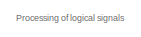
[diagram: Logic - part 1/6, top left region]
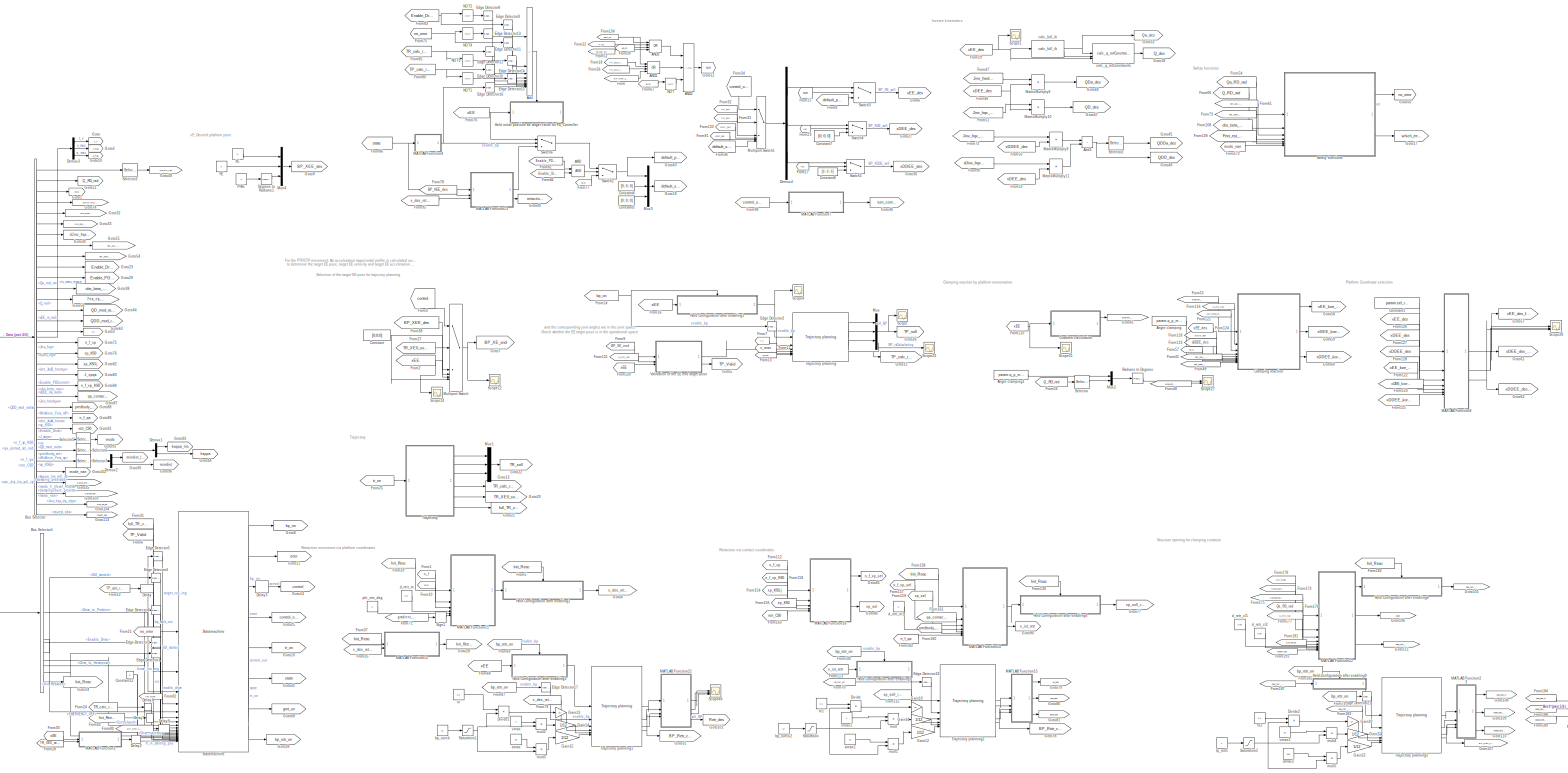
[diagram: Logic - part 2/6, most of the canvas]
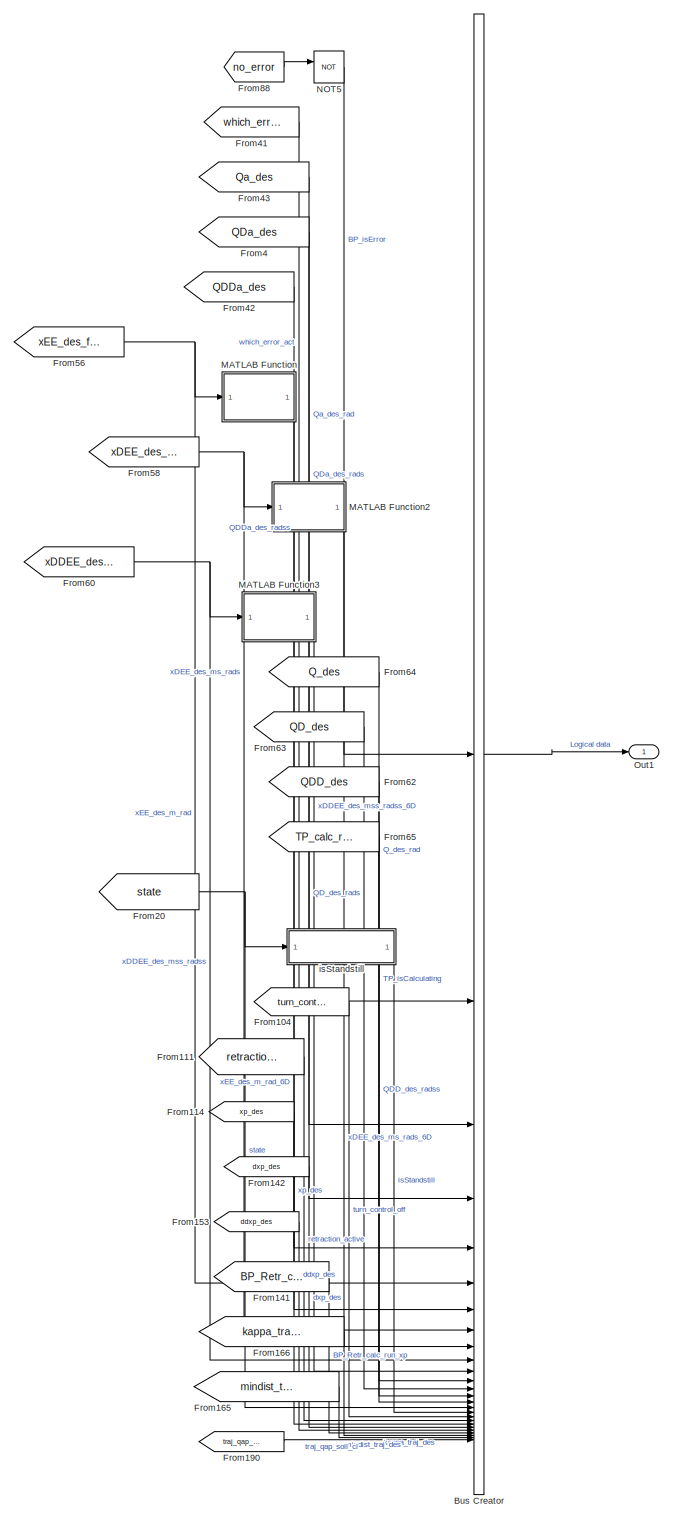
[diagram: Logic - part 3/6, middle right region]
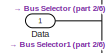
[diagram: Logic - part 4/6, middle left region]
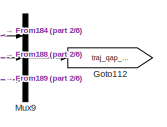
[diagram: Logic - part 5/6, bottom right region]
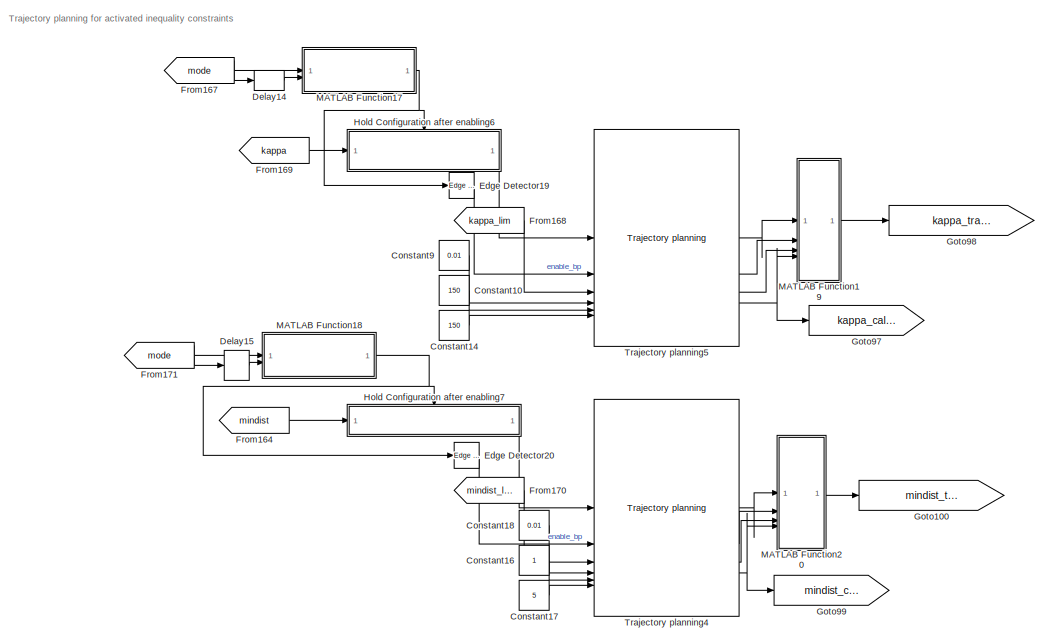
[diagram: Logic - part 6/6, bottom left region]
BLOCK [SubSystem] Logic
BLOCK [Logic] Logic/AND
  AllPortsSameDT = off
  OutDataTypeStr = boolean
BLOCK [Logic] Logic/AND1
  AllPortsSameDT = off
  Inputs = 4
  Operator = OR
  OutDataTypeStr = boolean
BLOCK [Logic] Logic/AND2
  AllPortsSameDT = off
  Inputs = 3
  OutDataTypeStr = boolean
BLOCK [Logic] Logic/AND3
  AllPortsSameDT = off
  Inputs = 4
  Operator = OR
  OutDataTypeStr = boolean
BLOCK [Sum] Logic/Add
  IconShape = rectangular
  Inputs = 9
BLOCK [Sum] Logic/Add3
  IconShape = rectangular
BLOCK [Constant] Logic/Angle clamping
  SampleTime = -1
  Value = param.q_p_min
BLOCK [Constant] Logic/Angle clamping1
  SampleTime = -1
  Value = param.q_p_min
BLOCK [BusCreator] Logic/Bus Creator
  DisplayOption = bar
  InheritFromInputs = on
  Inputs = 26
BLOCK [BusSelector] Logic/Bus Selector
  OutputSignals = Controlpanel.tv_vmax_amax,Kinematics_currentValues.Qa_rad_m,Kinematics_currentValues.Q_rad,Kinematics_currentValues.xEE_m_rad,Differential kinematics - current values.xDEE_ms_rads,Differential kinematics - current values.Jinv_hredqax,Differential kinematics - current values.Jinv_hqx,Differential kinematics - current values.dJinv_hqx,Differential kinematics - current values.det_JacA_hredx,Different...<+751ch>
BLOCK [BusSelector] Logic/Bus Selector1
  OutputSignals = Controlpanel.Drive_to_Position,Controlpanel.EMERGENCY_OFF,Controlpanel.GUI_started,State Variables.Controlword,Controlpanel.Drive_to_Homepose,Controlpanel.Enable_Drive,Controlpanel.Drive_trajectory,Beobachter.Init_Reaktion
BLOCK [SubSystem] Logic/Clamping reaction
  ErrorFcn = Stateflow.Translate.translate
  PermitHierarchicalResolution = ExplicitOnly
  SFBlockType = MATLAB Function
  TreatAsAtomicUnit = on
BLOCK [Demux] Logic/Clamping reaction/ Demux 
  Outputs = 1
BLOCK [S-Function] Logic/Clamping reaction/ SFunction 
  EnableBusSupport = on
  FunctionName = sf_sfun
  Parameters = param
  PortCounts = [10 4]
  SFcnIsStateOwnerBlock = off
  SFunctionDeploymentMode = off
  Tag = Stateflow S-Function 115
BLOCK [Terminator] Logic/Clamping reaction/ Terminator 
BLOCK [Inport] Logic/Clamping reaction/det_JacA
  Port = 9
BLOCK [Inport] Logic/Clamping reaction/det_JacB
  Port = 10
BLOCK [Inport] Logic/Clamping reaction/dq
  Port = 3
BLOCK [Inport] Logic/Clamping reaction/grad
BLOCK [Inport] Logic/Clamping reaction/q
  Port = 2
BLOCK [Inport] Logic/Clamping reaction/q_p_min
  Port = 4
BLOCK [Outport] Logic/Clamping reaction/xDDEE_korr
  Port = 3
BLOCK [Inport] Logic/Clamping reaction/xDDEE_soll
  Port = 7
BLOCK [Outport] Logic/Clamping reaction/xDEE_korr
  Port = 2
BLOCK [Inport] Logic/Clamping reaction/xDEE_soll
  Port = 6
BLOCK [Inport] Logic/Clamping reaction/xEE_ist
  Port = 8
BLOCK [Outport] Logic/Clamping reaction/xEE_korr
  VectorParamsAs1DForOutWhenUnconnected = off
BLOCK [Inport] Logic/Clamping reaction/xEE_soll
  Port = 5
BLOCK [Constant] Logic/Constant
  SampleTime = -1
  Value = [0;0;0]
BLOCK [Constant] Logic/Constant1
  SampleTime = -1
  Value = param.sel_redres
BLOCK [Constant] Logic/Constant10
  SampleTime = -1
  Value = 150
BLOCK [Constant] Logic/Constant12
  SampleTime = -1
  Value = 0
BLOCK [Constant] Logic/Constant14
  SampleTime = -1
  Value = 150
BLOCK [Constant] Logic/Constant16
  SampleTime = -1
BLOCK [Constant] Logic/Constant17
  SampleTime = -1
  Value = 5
BLOCK [Constant] Logic/Constant18
  SampleTime = -1
  Value = 0.01
BLOCK [Constant] Logic/Constant4
  SampleTime = -1
  Value = [0; 0; 0]
BLOCK [Constant] Logic/Constant5
  SampleTime = -1
  Value = [0; 0; 0]
BLOCK [Constant] Logic/Constant7
  SampleTime = -1
  Value = [0; 0; 0]
BLOCK [Constant] Logic/Constant8
  SampleTime = -1
  Value = [0; 0; 0]
BLOCK [Constant] Logic/Constant9
  SampleTime = -1
  Value = 0.01
BLOCK [Inport] Logic/Data
BLOCK [Reference] Logic/Degrees to Radians1  REF=simulink_extras/Transformations/Degrees to
Radians
  SourceBlock = simulink_extras/Transformations/Degrees to\nRadians
  SourceType = DegreesToRadians
BLOCK [Delay] Logic/Delay
  DelayLength = 1
  InputPortMap = u0
BLOCK [Delay] Logic/Delay1
  DelayLength = 1
  InputPortMap = u0
BLOCK [Delay] Logic/Delay14
  DelayLength = 1
  InputPortMap = u0
BLOCK [Delay] Logic/Delay15
  DelayLength = 1
  InputPortMap = u0
BLOCK [Delay] Logic/Delay2
  DelayLength = 1
  InputPortMap = u0
BLOCK [Delay] Logic/Delay3
  DelayLength = 1
  InputPortMap = u0
BLOCK [Delay] Logic/Delay7
  DelayLength = 1
  InputPortMap = u0
BLOCK [Delay] Logic/Delay9
  DelayLength = 1
  InputPortMap = u0
BLOCK [Demux] Logic/Demux1
  Outputs = 2
BLOCK [Demux] Logic/Demux2
  Outputs = 2
BLOCK [Demux] Logic/Demux3
  Outputs = 3
BLOCK [Demux] Logic/Demux4
  Outputs = 3
BLOCK [Product] Logic/Divide
  Inputs = */
BLOCK [Product] Logic/Divide1
  Inputs = */
BLOCK [Product] Logic/Divide2
  Inputs = */
BLOCK [Reference] Logic/Edge Detector1  REF=dspswit3/Edge
Detector
  SourceBlock = dspswit3/Edge\nDetector
  SourceType = Edge Detector
  UserDataPersistent = on
BLOCK [Reference] Logic/Edge Detector10  REF=dspswit3/Edge
Detector
  SourceBlock = dspswit3/Edge\nDetector
  SourceType = Edge Detector
  UserDataPersistent = on
BLOCK [Reference] Logic/Edge Detector11  REF=dspswit3/Edge
Detector
  SourceBlock = dspswit3/Edge\nDetector
  SourceType = Edge Detector
  UserDataPersistent = on
BLOCK [Reference] Logic/Edge Detector12  REF=dspswit3/Edge
Detector
  SourceBlock = dspswit3/Edge\nDetector
  SourceType = Edge Detector
  UserDataPersistent = on
BLOCK [Reference] Logic/Edge Detector13  REF=dspswit3/Edge
Detector
  SourceBlock = dspswit3/Edge\nDetector
  SourceType = Edge Detector
  UserDataPersistent = on
BLOCK [Reference] Logic/Edge Detector14  REF=dspswit3/Edge
Detector
  SourceBlock = dspswit3/Edge\nDetector
  SourceType = Edge Detector
  UserDataPersistent = on
BLOCK [Reference] Logic/Edge Detector15  REF=dspswit3/Edge
Detector
  SourceBlock = dspswit3/Edge\nDetector
  SourceType = Edge Detector
  UserDataPersistent = on
BLOCK [Reference] Logic/Edge Detector16  REF=dspswit3/Edge
Detector
  SourceBlock = dspswit3/Edge\nDetector
  SourceType = Edge Detector
  UserDataPersistent = on
BLOCK [Reference] Logic/Edge Detector17  REF=dspswit3/Edge
Detector
  SourceBlock = dspswit3/Edge\nDetector
  SourceType = Edge Detector
  UserDataPersistent = on
BLOCK [Reference] Logic/Edge Detector18  REF=dspswit3/Edge
Detector
  SourceBlock = dspswit3/Edge\nDetector
  SourceType = Edge Detector
  UserDataPersistent = on
BLOCK [Reference] Logic/Edge Detector19  REF=dspswit3/Edge
Detector
  SourceBlock = dspswit3/Edge\nDetector
  SourceType = Edge Detector
  UserDataPersistent = on
BLOCK [Reference] Logic/Edge Detector2  REF=dspswit3/Edge
Detector
  SourceBlock = dspswit3/Edge\nDetector
  SourceType = Edge Detector
  UserDataPersistent = on
BLOCK [Reference] Logic/Edge Detector20  REF=dspswit3/Edge
Detector
  SourceBlock = dspswit3/Edge\nDetector
  SourceType = Edge Detector
  UserDataPersistent = on
BLOCK [Reference] Logic/Edge Detector21  REF=dspswit3/Edge
Detector
  SourceBlock = dspswit3/Edge\nDetector
  SourceType = Edge Detector
  UserDataPersistent = on
BLOCK [Reference] Logic/Edge Detector3  REF=dspswit3/Edge
Detector
  SourceBlock = dspswit3/Edge\nDetector
  SourceType = Edge Detector
  UserDataPersistent = on
BLOCK [Reference] Logic/Edge Detector4  REF=dspswit3/Edge
Detector
  SourceBlock = dspswit3/Edge\nDetector
  SourceType = Edge Detector
  UserDataPersistent = on
BLOCK [Reference] Logic/Edge Detector5  REF=dspswit3/Edge
Detector
  SourceBlock = dspswit3/Edge\nDetector
  SourceType = Edge Detector
  UserDataPersistent = on
BLOCK [Reference] Logic/Edge Detector6  REF=dspswit3/Edge
Detector
  SourceBlock = dspswit3/Edge\nDetector
  SourceType = Edge Detector
  UserDataPersistent = on
BLOCK [Reference] Logic/Edge Detector8  REF=dspswit3/Edge
Detector
  SourceBlock = dspswit3/Edge\nDetector
  SourceType = Edge Detector
  UserDataPersistent = on
BLOCK [Reference] Logic/Edge Detector9  REF=dspswit3/Edge
Detector
  SourceBlock = dspswit3/Edge\nDetector
  SourceType = Edge Detector
  UserDataPersistent = on
BLOCK [From] Logic/From
  GotoTag = BP_Retr_calc_run
BLOCK [From] Logic/From1
  GotoTag = n_f
BLOCK [From] Logic/From10
  GotoTag = xEE
BLOCK [From] Logic/From104
  GotoTag = turn_control_off
BLOCK [From] Logic/From108
  GotoTag = obs_beta_nan
BLOCK [From] Logic/From109
  GotoTag = Fext_est_MO_MP
BLOCK [From] Logic/From11
  GotoTag = v_max
BLOCK [From] Logic/From110
  GotoTag = xEE
BLOCK [From] Logic/From111
  GotoTag = retraction_active
BLOCK [From] Logic/From112
  GotoTag = n_f_xp
BLOCK [From] Logic/From113
  GotoTag = x_ist_retr
BLOCK [From] Logic/From114
  GotoTag = xp_des
BLOCK [From] Logic/From115
  GotoTag = xp_soll_retr_m_rad
BLOCK [From] Logic/From116
  GotoTag = Q_RD_rad
BLOCK [From] Logic/From118
  GotoTag = xDEE_des
BLOCK [From] Logic/From119
  GotoTag = xDDEE_des
BLOCK [From] Logic/From12
  GotoTag = TP_calc_run
BLOCK [From] Logic/From120
  GotoTag = xEE
BLOCK [From] Logic/From121
  GotoTag = QD_mod_rads
BLOCK [From] Logic/From122
  GotoTag = xEE_korr_clamping
BLOCK [From] Logic/From123
  GotoTag = xDEE_korr_clamping
BLOCK [From] Logic/From124
  GotoTag = xEE_des
BLOCK [From] Logic/From125
  GotoTag = xDDEE_korr_clamping
BLOCK [From] Logic/From126
  GotoTag = xEE_des
BLOCK [From] Logic/From127
  GotoTag = xDEE_des
BLOCK [From] Logic/From128
  GotoTag = xDDEE_des
BLOCK [From] Logic/From13
  GotoTag = a_max
BLOCK [From] Logic/From131
  GotoTag = Q_RD_rad
BLOCK [From] Logic/From133
  GotoTag = GMT_soll
BLOCK [From] Logic/From134
  GotoTag = gmt_on
BLOCK [From] Logic/From138
  GotoTag = Init_Reac
BLOCK [From] Logic/From139
  GotoTag = Init_Reac
BLOCK [From] Logic/From14
  GotoTag = bp_on
BLOCK [From] Logic/From140
  GotoTag = bp_retr_on
BLOCK [From] Logic/From141
  GotoTag = BP_Retr_calc_run_xp
BLOCK [From] Logic/From142
  GotoTag = dxp_des
BLOCK [From] Logic/From15
  GotoTag = run
BLOCK [From] Logic/From153
  GotoTag = ddxp_des
BLOCK [From] Logic/From154
  GotoTag = xp_KSGj
BLOCK [From] Logic/From156
  GotoTag = xp_KS0
BLOCK [From] Logic/From157
  GotoTag = n_f_xp_sel
BLOCK [From] Logic/From158
  GotoTag = n_f_xp_KS0
BLOCK [From] Logic/From159
  GotoTag = xp_sel
BLOCK [From] Logic/From16
  GotoTag = xEE
BLOCK [From] Logic/From160
  GotoTag = predbody_sel
BLOCK [From] Logic/From161
  GotoTag = qa_contact_sel_rad
BLOCK [From] Logic/From162
  GotoTag = n_f_qa
BLOCK [From] Logic/From163
  GotoTag = retr_CS0
BLOCK [From] Logic/From164
  GotoTag = mindist
BLOCK [From] Logic/From165
  GotoTag = mindist_traj_des
BLOCK [From] Logic/From166
  GotoTag = kappa_traj_des
BLOCK [From] Logic/From167
  GotoTag = mode
BLOCK [From] Logic/From168
  GotoTag = kappa_lim
BLOCK [From] Logic/From169
  GotoTag = kappa
BLOCK [From] Logic/From17
  GotoTag = run
BLOCK [From] Logic/From170
  GotoTag = mindist_lim
BLOCK [From] Logic/From171
  GotoTag = mode
BLOCK [From] Logic/From172
  GotoTag = mode_nan
BLOCK [From] Logic/From173
  GotoTag = clamp_pred_sel
BLOCK [From] Logic/From175
  GotoTag = clampBody_predbody_sel
BLOCK [From] Logic/From176
  GotoTag = Qa_RD_rad
BLOCK [From] Logic/From177
  GotoTag = Q_RD_rad
BLOCK [From] Logic/From178
  GotoTag = Init_Reac
BLOCK [From] Logic/From18
  GotoTag = TP_calc_run
BLOCK [From] Logic/From181
  GotoTag = Jinv_hq_qa
BLOCK [From] Logic/From182
  GotoTag = Init_Reac
BLOCK [From] Logic/From183
  GotoTag = qap_retr_trig
BLOCK [From] Logic/From184
  GotoTag = qap_des_cl
BLOCK [From] Logic/From185
  GotoTag = bp_retr_on
BLOCK [From] Logic/From187
  GotoTag = qap_retr_ist
BLOCK [From] Logic/From188
  GotoTag = dqap_des_cl
BLOCK [From] Logic/From189
  GotoTag = ddqap_des_cl
BLOCK [From] Logic/From19
  GotoTag = xEE_des
BLOCK [From] Logic/From190
  GotoTag = traj_qap_des_cl
BLOCK [From] Logic/From191
  GotoTag = tauext_obs
BLOCK [From] Logic/From2
  GotoTag = xEE
BLOCK [From] Logic/From20
  GotoTag = state
BLOCK [From] Logic/From21
  GotoTag = no_error
BLOCK [From] Logic/From22
  GotoTag = tr_on
BLOCK [From] Logic/From23
  GotoTag = run
BLOCK [From] Logic/From24
  GotoTag = TR_calc_run
BLOCK [From] Logic/From25
  GotoTag = tr_on
BLOCK [From] Logic/From26
  GotoTag = TR_calc_run
BLOCK [From] Logic/From27
  GotoTag = TR_XE0_soll
BLOCK [From] Logic/From28
  GotoTag = TR_XE0_soll
BLOCK [From] Logic/From29
  GotoTag = Init_Reac
BLOCK [From] Logic/From3
  GotoTag = control
  NameLocation = left
BLOCK [From] Logic/From30
  GotoTag = xEE
BLOCK [From] Logic/From31
  GotoTag = full_TR_valid
BLOCK [From] Logic/From32
  GotoTag = TP_soll
BLOCK [From] Logic/From33
  GotoTag = TR_soll
BLOCK [From] Logic/From34
  GotoTag = control_out
  NameLocation = left
BLOCK [From] Logic/From35
  GotoTag = x_des_retr_m_rad
BLOCK [From] Logic/From36
  GotoTag = default_soll
BLOCK [From] Logic/From37
  GotoTag = Init_Reac
BLOCK [From] Logic/From38
  GotoTag = BP_XEE_des
BLOCK [From] Logic/From39
  GotoTag = bp_on
BLOCK [From] Logic/From4
  GotoTag = QDa_des
BLOCK [From] Logic/From41
  GotoTag = which_error_act
BLOCK [From] Logic/From42
  GotoTag = QDDa_des
BLOCK [From] Logic/From43
  GotoTag = Qa_des
BLOCK [From] Logic/From44
  GotoTag = Init_Retr_valid
BLOCK [From] Logic/From45
  GotoTag = det_JacA_hredx
BLOCK [From] Logic/From46
  GotoTag = xDEE_des
BLOCK [From] Logic/From47
  GotoTag = Jinv_hredqax_3RRR
BLOCK [From] Logic/From48
  GotoTag = gradient_qp_phiz
BLOCK [From] Logic/From49
  GotoTag = det_JacB_hredqa
BLOCK [From] Logic/From5
  GotoTag = Init_Reac
BLOCK [From] Logic/From50
  GotoTag = xDDEE_des
BLOCK [From] Logic/From51
  GotoTag = Jinv_hqx_3RRR
BLOCK [From] Logic/From52
  GotoTag = bp_retr_on
BLOCK [From] Logic/From53
  GotoTag = xDEE_des
BLOCK [From] Logic/From54
  GotoTag = Qa_RD_rad
BLOCK [From] Logic/From55
  GotoTag = gradient_qp_phiz
BLOCK [From] Logic/From56
  GotoTag = xEE_des_final
BLOCK [From] Logic/From57
  GotoTag = xEE
BLOCK [From] Logic/From58
  GotoTag = xDEE_des_final
BLOCK [From] Logic/From59
  GotoTag = Q_RD_rad
BLOCK [From] Logic/From6
  GotoTag = TP_Valid
BLOCK [From] Logic/From60
  GotoTag = xDDEE_des_final
BLOCK [From] Logic/From61
  GotoTag = det_JacA_hredx
BLOCK [From] Logic/From62
  GotoTag = QDD_des
BLOCK [From] Logic/From63
  GotoTag = QD_des
BLOCK [From] Logic/From64
  GotoTag = Q_des
BLOCK [From] Logic/From65
  GotoTag = TP_calc_run
BLOCK [From] Logic/From66
  GotoTag = Q_RD_rad
BLOCK [From] Logic/From67
  GotoTag = error
BLOCK [From] Logic/From68
  GotoTag = xEE
BLOCK [From] Logic/From69
  GotoTag = bp_retr_on
BLOCK [From] Logic/From7
  GotoTag = t_v
BLOCK [From] Logic/From70
  GotoTag = bp_retr_on
BLOCK [From] Logic/From71
  GotoTag = gradient_qp_phiz
BLOCK [From] Logic/From72
  GotoTag = Jinv_hqx_3RRR
BLOCK [From] Logic/From73
  GotoTag = det_JacB_hredqa
BLOCK [From] Logic/From74
  GotoTag = bp_retr_on
BLOCK [From] Logic/From75
  GotoTag = no_error
BLOCK [From] Logic/From76
  GotoTag = xEE
BLOCK [From] Logic/From77
  GotoTag = xEE
BLOCK [From] Logic/From78
  GotoTag = BP_XEE_des
BLOCK [From] Logic/From79
  GotoTag = x_des_retr_m_rad
BLOCK [From] Logic/From8
  GotoTag = default_pos
BLOCK [From] Logic/From80
  GotoTag = TP_calc_run
BLOCK [From] Logic/From81
  GotoTag = Enable_PDControl
BLOCK [From] Logic/From82
  GotoTag = Init_Reac
BLOCK [From] Logic/From83
  GotoTag = Enable_Drive
BLOCK [From] Logic/From84
  GotoTag = Enable_Drive
BLOCK [From] Logic/From85
  GotoTag = TR_calc_run
BLOCK [From] Logic/From86
  GotoTag = state
BLOCK [From] Logic/From87
  GotoTag = bp_retr_on
BLOCK [From] Logic/From88
  GotoTag = no_error
BLOCK [From] Logic/From89
  GotoTag = BP_Retr_calc_run
BLOCK [From] Logic/From9
  GotoTag = BP_XE_end
BLOCK [From] Logic/From90
  GotoTag = dJinv_hqx_3RRR
BLOCK [From] Logic/From91
  GotoTag = Retr_des
BLOCK [From] Logic/From95
  GotoTag = x_des_retr_m_rad
BLOCK [From] Logic/From98
  GotoTag = control_out
BLOCK [Gain] Logic/Gain10
  Gain = 12
BLOCK [Gain] Logic/Gain11
  Gain = 1/12
BLOCK [Gain] Logic/Gain12
  Gain = 1/12
BLOCK [Gain] Logic/Gain13
  Gain = 12
BLOCK [Gain] Logic/Gain14
  Gain = 1/12
BLOCK [Gain] Logic/Gain15
  Gain = 1/12
BLOCK [Gain] Logic/Gain20
  Gain = 12
BLOCK [Gain] Logic/Gain21
  Gain = 1/12
BLOCK [Gain] Logic/Gain22
  Gain = 1/12
BLOCK [Goto] Logic/Goto
  GotoTag = t_v
BLOCK [Goto] Logic/Goto1
  GotoTag = xEE
BLOCK [Goto] Logic/Goto10
  GotoTag = a_max
BLOCK [Goto] Logic/Goto100
  GotoTag = mindist_traj_des
BLOCK [Goto] Logic/Goto101
  GotoTag = Retr_des
BLOCK [Goto] Logic/Goto102
  GotoTag = mode_nan
BLOCK [Goto] Logic/Goto103
  GotoTag = clampBody_predbody_sel
BLOCK [Goto] Logic/Goto104
  GotoTag = Jinv_hq_qa
BLOCK [Goto] Logic/Goto105
  GotoTag = qap_retr_trig
BLOCK [Goto] Logic/Goto106
  Commented = on
  GotoTag = Jqap
BLOCK [Goto] Logic/Goto107
  GotoTag = BP_Retr_calc_run_cl
BLOCK [Goto] Logic/Goto108
  GotoTag = qap_des_cl
BLOCK [Goto] Logic/Goto109
  GotoTag = dqap_des_cl
BLOCK [Goto] Logic/Goto11
  GotoTag = error
BLOCK [Goto] Logic/Goto110
  GotoTag = ddqap_des_cl
BLOCK [Goto] Logic/Goto111
  GotoTag = qap_retr_ist
BLOCK [Goto] Logic/Goto112
  GotoTag = traj_qap_des_cl
BLOCK [Goto] Logic/Goto113
  GotoTag = tauext_obs
BLOCK [Goto] Logic/Goto12
  GotoTag = run
BLOCK [Goto] Logic/Goto13
  GotoTag = TR_calc_run
BLOCK [Goto] Logic/Goto14
  GotoTag = control
BLOCK [Goto] Logic/Goto15
  GotoTag = TP_calc_run
BLOCK [Goto] Logic/Goto16
  GotoTag = tr_on
BLOCK [Goto] Logic/Goto17
  GotoTag = which_error_act
BLOCK [Goto] Logic/Goto18
  GotoTag = Q_des
BLOCK [Goto] Logic/Goto19
  GotoTag = default_soll
BLOCK [Goto] Logic/Goto2
  GotoTag = v_max
BLOCK [Goto] Logic/Goto20
  GotoTag = TR_XE0_soll
BLOCK [Goto] Logic/Goto21
  GotoTag = full_TR_valid
BLOCK [Goto] Logic/Goto22
  GotoTag = TR_soll
BLOCK [Goto] Logic/Goto23
  GotoTag = Enable_Drive
BLOCK [Goto] Logic/Goto24
  GotoTag = Init_Reac
BLOCK [Goto] Logic/Goto25
  GotoTag = control_out
BLOCK [Goto] Logic/Goto26
  GotoTag = TP_soll
BLOCK [Goto] Logic/Goto27
  GotoTag = xDEE_des
BLOCK [Goto] Logic/Goto28
  GotoTag = Init_Retr_valid
BLOCK [Goto] Logic/Goto29
  GotoTag = Enable_PDControl
BLOCK [Goto] Logic/Goto3
  GotoTag = n_f
BLOCK [Goto] Logic/Goto30
  GotoTag = xDDEE_des
BLOCK [Goto] Logic/Goto31
  GotoTag = BP_Retr_calc_run
BLOCK [Goto] Logic/Goto32
  GotoTag = Jinv_hredqax_3RRR
BLOCK [Goto] Logic/Goto33
  GotoTag = Jinv_hqx_3RRR
BLOCK [Goto] Logic/Goto34
  GotoTag = dJinv_hqx_3RRR
BLOCK [Goto] Logic/Goto35
  GotoTag = clamp_pred_sel
BLOCK [Goto] Logic/Goto36
  GotoTag = turn_control_off
BLOCK [Goto] Logic/Goto38
  GotoTag = obs_beta_nan
BLOCK [Goto] Logic/Goto39
  GotoTag = bp_retr_on
BLOCK [Goto] Logic/Goto4
  GotoTag = x_des_retr_m_rad
BLOCK [Goto] Logic/Goto40
  GotoTag = retraction_active
BLOCK [Goto] Logic/Goto41
  GotoTag = gradient_qp_phiz
BLOCK [Goto] Logic/Goto42
  GotoTag = state
BLOCK [Goto] Logic/Goto43
  GotoTag = default_pos
BLOCK [Goto] Logic/Goto44
  GotoTag = QDa_des
BLOCK [Goto] Logic/Goto45
  GotoTag = QDDa_des
BLOCK [Goto] Logic/Goto46
  GotoTag = QDD_des
BLOCK [Goto] Logic/Goto47
  GotoTag = QD_des
BLOCK [Goto] Logic/Goto49
  GotoTag = Qa_RD_rad
BLOCK [Goto] Logic/Goto5
  GotoTag = TP_Valid
BLOCK [Goto] Logic/Goto50
  GotoTag = no_error
BLOCK [Goto] Logic/Goto51
  GotoTag = Q_RD_rad
BLOCK [Goto] Logic/Goto53
  GotoTag = Qa_des
BLOCK [Goto] Logic/Goto54
  GotoTag = det_JacB_hredqa
BLOCK [Goto] Logic/Goto55
  GotoTag = det_JacA_hredx
BLOCK [Goto] Logic/Goto56
  GotoTag = Fext_est_MO_MP
BLOCK [Goto] Logic/Goto57
  GotoTag = xEE_des_final
BLOCK [Goto] Logic/Goto58
  GotoTag = xEE_korr_clamping
BLOCK [Goto] Logic/Goto59
  GotoTag = xDEE_korr_clamping
BLOCK [Goto] Logic/Goto6
  GotoTag = xEE_des
BLOCK [Goto] Logic/Goto60
  GotoTag = xDDEE_korr_clamping
BLOCK [Goto] Logic/Goto61
  GotoTag = xDEE_des_final
BLOCK [Goto] Logic/Goto62
  GotoTag = xDDEE_des_final
BLOCK [Goto] Logic/Goto63
  GotoTag = QDD_mod_radss
BLOCK [Goto] Logic/Goto64
  GotoTag = QD_mod_rads
BLOCK [Goto] Logic/Goto68
  GotoTag = gmt_on
BLOCK [Goto] Logic/Goto7
  GotoTag = BP_XE_end
BLOCK [Goto] Logic/Goto74
  GotoTag = xDEE_ms_rads
BLOCK [Goto] Logic/Goto75
  GotoTag = n_f_xp
BLOCK [Goto] Logic/Goto76
  GotoTag = xp_KS0
BLOCK [Goto] Logic/Goto77
  GotoTag = xp_soll_retr_m_rad
BLOCK [Goto] Logic/Goto78
  GotoTag = BP_Retr_calc_run_xp
BLOCK [Goto] Logic/Goto79
  GotoTag = xp_des
BLOCK [Goto] Logic/Goto8
  GotoTag = bp_on
BLOCK [Goto] Logic/Goto80
  GotoTag = dxp_des
BLOCK [Goto] Logic/Goto81
  GotoTag = ddxp_des
BLOCK [Goto] Logic/Goto82
  GotoTag = xp_KSGj
BLOCK [Goto] Logic/Goto83
  GotoTag = J_xpqa
BLOCK [Goto] Logic/Goto84
  GotoTag = n_f_xp_KS0
BLOCK [Goto] Logic/Goto85
  GotoTag = n_f_xp_sel
BLOCK [Goto] Logic/Goto86
  GotoTag = xp_sel
BLOCK [Goto] Logic/Goto87
  GotoTag = qa_contact_sel_rad
BLOCK [Goto] Logic/Goto88
  GotoTag = predbody_sel
BLOCK [Goto] Logic/Goto89
  GotoTag = n_f_qa
BLOCK [Goto] Logic/Goto9
  GotoTag = BP_XEE_des
BLOCK [Goto] Logic/Goto90
  GotoTag = x_ist_retr
BLOCK [Goto] Logic/Goto91
  GotoTag = retr_CS0
BLOCK [Goto] Logic/Goto92
  GotoTag = mode
BLOCK [Goto] Logic/Goto93
  GotoTag = kappa_lim
BLOCK [Goto] Logic/Goto94
  GotoTag = kappa
BLOCK [Goto] Logic/Goto95
  GotoTag = mindist_lim
BLOCK [Goto] Logic/Goto96
  GotoTag = mindist
BLOCK [Goto] Logic/Goto97
  GotoTag = kappa_calc_run
BLOCK [Goto] Logic/Goto98
  GotoTag = kappa_traj_des
BLOCK [Goto] Logic/Goto99
  GotoTag = mindist_calc_run
BLOCK [SubSystem] Logic/Gradient calculation
  ErrorFcn = Stateflow.Translate.translate
  PermitHierarchicalResolution = ExplicitOnly
  SFBlockType = MATLAB Function
  TreatAsAtomicUnit = on
BLOCK [Demux] Logic/Gradient calculation/ Demux 
  Outputs = 1
BLOCK [S-Function] Logic/Gradient calculation/ SFunction 
  EnableBusSupport = on
  FunctionName = sf_sfun
  Parameters = param
  PortCounts = [1 3]
  SFcnIsStateOwnerBlock = off
  SFunctionDeploymentMode = off
  Tag = Stateflow S-Function 114
BLOCK [Terminator] Logic/Gradient calculation/ Terminator 
BLOCK [Outport] Logic/Gradient calculation/d_grad
  Port = 2
BLOCK [Outport] Logic/Gradient calculation/grad
  VectorParamsAs1DForOutWhenUnconnected = off
BLOCK [Inport] Logic/Gradient calculation/xEE
BLOCK [SubSystem] Logic/Hold Configuration after enabling1
  TreatAsAtomicUnit = on
BLOCK [Inport] Logic/Hold Configuration after enabling1/Theta_ist
BLOCK [TriggerPort] Logic/Hold Configuration after enabling1/Trigger
  StatesWhenEnabling = held
  TriggerType = either
  VariantControl = Variant
BLOCK [Outport] Logic/Hold Configuration after enabling1/vec_x_0_Startposition 
BLOCK [SubSystem] Logic/Hold Configuration after enabling2
  TreatAsAtomicUnit = on
BLOCK [TriggerPort] Logic/Hold Configuration after enabling2/Trigger
  StatesWhenEnabling = held
  VariantControl = Variant
BLOCK [Inport] Logic/Hold Configuration after enabling2/x_ist_retr
BLOCK [Outport] Logic/Hold Configuration after enabling2/x_ist_retr_trigg 
BLOCK [SubSystem] Logic/Hold Configuration after enabling3
  TreatAsAtomicUnit = on
BLOCK [Inport] Logic/Hold Configuration after enabling3/Theta_ist
BLOCK [TriggerPort] Logic/Hold Configuration after enabling3/Trigger
  StatesWhenEnabling = held
  TriggerType = either
  VariantControl = Variant
BLOCK [Outport] Logic/Hold Configuration after enabling3/vec_x_0_Startposition 
BLOCK [SubSystem] Logic/Hold Configuration after enabling4
  TreatAsAtomicUnit = on
BLOCK [TriggerPort] Logic/Hold Configuration after enabling4/Trigger
  StatesWhenEnabling = held
  VariantControl = Variant
BLOCK [Inport] Logic/Hold Configuration after enabling4/x_ist_retr
BLOCK [Outport] Logic/Hold Configuration after enabling4/x_ist_retr_trigg 
BLOCK [SubSystem] Logic/Hold Configuration after enabling5
  TreatAsAtomicUnit = on
BLOCK [Inport] Logic/Hold Configuration after enabling5/Theta_ist
BLOCK [TriggerPort] Logic/Hold Configuration after enabling5/Trigger
  StatesWhenEnabling = held
  VariantControl = Variant
BLOCK [Outport] Logic/Hold Configuration after enabling5/vec_x_0_Startposition 
BLOCK [SubSystem] Logic/Hold Configuration after enabling6
  TreatAsAtomicUnit = on
BLOCK [Inport] Logic/Hold Configuration after enabling6/Theta_ist
BLOCK [TriggerPort] Logic/Hold Configuration after enabling6/Trigger
  StatesWhenEnabling = held
  VariantControl = Variant
BLOCK [Outport] Logic/Hold Configuration after enabling6/vec_x_0_Startposition 
BLOCK [SubSystem] Logic/Hold Configuration after enabling7
  TreatAsAtomicUnit = on
BLOCK [Inport] Logic/Hold Configuration after enabling7/Theta_ist
BLOCK [TriggerPort] Logic/Hold Configuration after enabling7/Trigger
  StatesWhenEnabling = held
  VariantControl = Variant
BLOCK [Outport] Logic/Hold Configuration after enabling7/vec_x_0_Startposition 
BLOCK [SubSystem] Logic/Hold Configuration after enabling8
  TreatAsAtomicUnit = on
BLOCK [TriggerPort] Logic/Hold Configuration after enabling8/Trigger
  StatesWhenEnabling = held
  VariantControl = Variant
BLOCK [Inport] Logic/Hold Configuration after enabling8/qap_retr
BLOCK [Outport] Logic/Hold Configuration after enabling8/qap_retr_trig 
BLOCK [SubSystem] Logic/Hold Configuration after enabling9
  TreatAsAtomicUnit = on
BLOCK [Inport] Logic/Hold Configuration after enabling9/Theta_ist
BLOCK [TriggerPort] Logic/Hold Configuration after enabling9/Trigger
  StatesWhenEnabling = held
  VariantControl = Variant
BLOCK [Outport] Logic/Hold Configuration after enabling9/vec_x_0_Startposition 
BLOCK [SubSystem] Logic/Hold initial position as target value for PD_Controller 
  TreatAsAtomicUnit = on
BLOCK [Inport] Logic/Hold initial position as target value for PD_Controller /Theta_ist
BLOCK [TriggerPort] Logic/Hold initial position as target value for PD_Controller /Trigger
  StatesWhenEnabling = held
  TriggerType = either
  VariantControl = Variant
BLOCK [Outport] Logic/Hold initial position as target value for PD_Controller /vec_x_0_Startposition 
BLOCK [SubSystem] Logic/MATLAB Function
  ErrorFcn = Stateflow.Translate.translate
  PermitHierarchicalResolution = ExplicitOnly
  SFBlockType = MATLAB Function
  TreatAsAtomicUnit = on
BLOCK [Demux] Logic/MATLAB Function/ Demux 
  Outputs = 1
BLOCK [S-Function] Logic/MATLAB Function/ SFunction 
  EnableBusSupport = on
  FunctionName = sf_sfun
  PortCounts = [1 2]
  SFcnIsStateOwnerBlock = off
  SFunctionDeploymentMode = off
  Tag = Stateflow S-Function 72
BLOCK [Terminator] Logic/MATLAB Function/ Terminator 
BLOCK [Inport] Logic/MATLAB Function/u
BLOCK [Outport] Logic/MATLAB Function/y
BLOCK [SubSystem] Logic/MATLAB Function1
  ErrorFcn = Stateflow.Translate.translate
  PermitHierarchicalResolution = ExplicitOnly
  SFBlockType = MATLAB Function
  TreatAsAtomicUnit = on
BLOCK [Demux] Logic/MATLAB Function1/ Demux 
  Outputs = 1
BLOCK [S-Function] Logic/MATLAB Function1/ SFunction 
  EnableBusSupport = on
  FunctionName = sf_sfun
  PortCounts = [2 2]
  SFcnIsStateOwnerBlock = off
  SFunctionDeploymentMode = off
  Tag = Stateflow S-Function 44
BLOCK [Terminator] Logic/MATLAB Function1/ Terminator 
BLOCK [Inport] Logic/MATLAB Function1/EE_act
BLOCK [Outport] Logic/MATLAB Function1/TR_in_starting_pos
  VectorParamsAs1DForOutWhenUnconnected = off
BLOCK [Inport] Logic/MATLAB Function1/vec_traj_0
  Port = 2
BLOCK [SubSystem] Logic/MATLAB Function11
  ErrorFcn = Stateflow.Translate.translate
  PermitHierarchicalResolution = ExplicitOnly
  SFBlockType = MATLAB Function
  TreatAsAtomicUnit = on
BLOCK [Demux] Logic/MATLAB Function11/ Demux 
  Outputs = 1
BLOCK [S-Function] Logic/MATLAB Function11/ SFunction 
  EnableBusSupport = on
  FunctionName = sf_sfun
  PortCounts = [6 2]
  SFcnIsStateOwnerBlock = off
  SFunctionDeploymentMode = off
  Tag = Stateflow S-Function 11
BLOCK [Terminator] Logic/MATLAB Function11/ Terminator 
BLOCK [Inport] Logic/MATLAB Function11/Init_Reaction
BLOCK [Inport] Logic/MATLAB Function11/d_retr_m
  Port = 4
BLOCK [Inport] Logic/MATLAB Function11/n_f
  Port = 2
BLOCK [Inport] Logic/MATLAB Function11/phi_retr_deg
  Port = 5
BLOCK [Inport] Logic/MATLAB Function11/sign_grad_qp_phiz
  Port = 6
BLOCK [Inport] Logic/MATLAB Function11/x
  Port = 3
BLOCK [Outport] Logic/MATLAB Function11/x_des_retr_m_rad
BLOCK [SubSystem] Logic/MATLAB Function12
  ErrorFcn = Stateflow.Translate.translate
  PermitHierarchicalResolution = ExplicitOnly
  SFBlockType = MATLAB Function
  TreatAsAtomicUnit = on
BLOCK [Demux] Logic/MATLAB Function12/ Demux 
  Outputs = 1
BLOCK [S-Function] Logic/MATLAB Function12/ SFunction 
  EnableBusSupport = on
  FunctionName = sf_sfun
  Parameters = param
  PortCounts = [2 2]
  SFcnIsStateOwnerBlock = off
  SFunctionDeploymentMode = off
  Tag = Stateflow S-Function 12
BLOCK [Terminator] Logic/MATLAB Function12/ Terminator 
BLOCK [Inport] Logic/MATLAB Function12/Init_Reac
BLOCK [Outport] Logic/MATLAB Function12/Init_Retr_valid
BLOCK [Inport] Logic/MATLAB Function12/x_soll_retr_m_rad
  Port = 2
BLOCK [SubSystem] Logic/MATLAB Function13
  ErrorFcn = Stateflow.Translate.translate
  PermitHierarchicalResolution = ExplicitOnly
  SFBlockType = MATLAB Function
  TreatAsAtomicUnit = on
BLOCK [Demux] Logic/MATLAB Function13/ Demux 
  Outputs = 1
BLOCK [S-Function] Logic/MATLAB Function13/ SFunction 
  EnableBusSupport = on
  FunctionName = sf_sfun
  PortCounts = [3 3]
  SFcnIsStateOwnerBlock = off
  SFunctionDeploymentMode = off
  Tag = Stateflow S-Function 20
BLOCK [Terminator] Logic/MATLAB Function13/ Terminator 
BLOCK [Outport] Logic/MATLAB Function13/retraction_active
  Port = 2
BLOCK [Inport] Logic/MATLAB Function13/state
BLOCK [Inport] Logic/MATLAB Function13/x_des_bp
  Port = 2
BLOCK [Inport] Logic/MATLAB Function13/x_des_retr
  Port = 3
BLOCK [Outport] Logic/MATLAB Function13/y
BLOCK [SubSystem] Logic/MATLAB Function14
  ErrorFcn = Stateflow.Translate.translate
  PermitHierarchicalResolution = ExplicitOnly
  SFBlockType = MATLAB Function
  TreatAsAtomicUnit = on
BLOCK [Demux] Logic/MATLAB Function14/ Demux 
  Outputs = 1
BLOCK [S-Function] Logic/MATLAB Function14/ SFunction 
  EnableBusSupport = on
  FunctionName = sf_sfun
  PortCounts = [7 3]
  SFcnIsStateOwnerBlock = off
  SFunctionDeploymentMode = off
  Tag = Stateflow S-Function 132
BLOCK [Terminator] Logic/MATLAB Function14/ Terminator 
BLOCK [Inport] Logic/MATLAB Function14/Init_Reaktion
BLOCK [Inport] Logic/MATLAB Function14/d_rueckz_m
  Port = 4
BLOCK [Inport] Logic/MATLAB Function14/n_f
  Port = 2
BLOCK [Inport] Logic/MATLAB Function14/n_f_qa
  Port = 7
BLOCK [Inport] Logic/MATLAB Function14/predbody
  Port = 6
BLOCK [Inport] Logic/MATLAB Function14/qa_contact_sel_rad
  Port = 5
BLOCK [Inport] Logic/MATLAB Function14/x_ist
  Port = 3
BLOCK [Outport] Logic/MATLAB Function14/x_ist_retr
  Port = 2
BLOCK [Outport] Logic/MATLAB Function14/x_soll_retr_m_rad
BLOCK [SubSystem] Logic/MATLAB Function15
  ErrorFcn = Stateflow.Translate.translate
  PermitHierarchicalResolution = ExplicitOnly
  SFBlockType = MATLAB Function
  TreatAsAtomicUnit = on
BLOCK [Demux] Logic/MATLAB Function15/ Demux 
  Outputs = 1
BLOCK [S-Function] Logic/MATLAB Function15/ SFunction 
  EnableBusSupport = on
  FunctionName = sf_sfun
  PortCounts = [4 4]
  SFcnIsStateOwnerBlock = off
  SFunctionDeploymentMode = off
  Tag = Stateflow S-Function 138
BLOCK [Terminator] Logic/MATLAB Function15/ Terminator 
BLOCK [Inport] Logic/MATLAB Function15/a_in
  Port = 3
BLOCK [Outport] Logic/MATLAB Function15/a_out
  Port = 3
BLOCK [Inport] Logic/MATLAB Function15/s_in
BLOCK [Outport] Logic/MATLAB Function15/s_out
BLOCK [Inport] Logic/MATLAB Function15/trigger
  Port = 4
BLOCK [Inport] Logic/MATLAB Function15/v_in
  Port = 2
BLOCK [Outport] Logic/MATLAB Function15/v_out
  Port = 2
BLOCK [SubSystem] Logic/MATLAB Function16
  ErrorFcn = Stateflow.Translate.translate
  PermitHierarchicalResolution = ExplicitOnly
  SFBlockType = MATLAB Function
  TreatAsAtomicUnit = on
BLOCK [Demux] Logic/MATLAB Function16/ Demux 
  Outputs = 1
BLOCK [S-Function] Logic/MATLAB Function16/ SFunction 
  EnableBusSupport = on
  FunctionName = sf_sfun
  PortCounts = [5 3]
  SFcnIsStateOwnerBlock = off
  SFunctionDeploymentMode = off
  Tag = Stateflow S-Function 139
BLOCK [Terminator] Logic/MATLAB Function16/ Terminator 
BLOCK [Inport] Logic/MATLAB Function16/n_f_xp
BLOCK [Inport] Logic/MATLAB Function16/n_f_xp_KS0
  Port = 2
BLOCK [Outport] Logic/MATLAB Function16/n_f_xp_sel
BLOCK [Inport] Logic/MATLAB Function16/rueck_KS0
  Port = 5
BLOCK [Inport] Logic/MATLAB Function16/xp_KS0
  Port = 4
BLOCK [Inport] Logic/MATLAB Function16/xp_KSGj
  Port = 3
BLOCK [Outport] Logic/MATLAB Function16/xp_sel
  Port = 2
BLOCK [SubSystem] Logic/MATLAB Function17
  ErrorFcn = Stateflow.Translate.translate
  PermitHierarchicalResolution = ExplicitOnly
  SFBlockType = MATLAB Function
  TreatAsAtomicUnit = on
BLOCK [Demux] Logic/MATLAB Function17/ Demux 
  Outputs = 1
BLOCK [S-Function] Logic/MATLAB Function17/ SFunction 
  EnableBusSupport = on
  FunctionName = sf_sfun
  PortCounts = [2 2]
  SFcnIsStateOwnerBlock = off
  SFunctionDeploymentMode = off
  Tag = Stateflow S-Function 167
BLOCK [Terminator] Logic/MATLAB Function17/ Terminator 
BLOCK [Inport] Logic/MATLAB Function17/mode
BLOCK [Inport] Logic/MATLAB Function17/mode_prev
  Port = 2
BLOCK [Outport] Logic/MATLAB Function17/y
BLOCK [SubSystem] Logic/MATLAB Function18
  ErrorFcn = Stateflow.Translate.translate
  PermitHierarchicalResolution = ExplicitOnly
  SFBlockType = MATLAB Function
  TreatAsAtomicUnit = on
BLOCK [Demux] Logic/MATLAB Function18/ Demux 
  Outputs = 1
BLOCK [S-Function] Logic/MATLAB Function18/ SFunction 
  EnableBusSupport = on
  FunctionName = sf_sfun
  PortCounts = [2 2]
  SFcnIsStateOwnerBlock = off
  SFunctionDeploymentMode = off
  Tag = Stateflow S-Function 173
BLOCK [Terminator] Logic/MATLAB Function18/ Terminator 
BLOCK [Inport] Logic/MATLAB Function18/mode
BLOCK [Inport] Logic/MATLAB Function18/mode_prev
  Port = 2
BLOCK [Outport] Logic/MATLAB Function18/y
BLOCK [SubSystem] Logic/MATLAB Function19
  ErrorFcn = Stateflow.Translate.translate
  PermitHierarchicalResolution = ExplicitOnly
  SFBlockType = MATLAB Function
  TreatAsAtomicUnit = on
BLOCK [Demux] Logic/MATLAB Function19/ Demux 
  Outputs = 1
BLOCK [S-Function] Logic/MATLAB Function19/ SFunction 
  EnableBusSupport = on
  FunctionName = sf_sfun
  PortCounts = [4 2]
  SFcnIsStateOwnerBlock = off
  SFunctionDeploymentMode = off
  Tag = Stateflow S-Function 174
BLOCK [Terminator] Logic/MATLAB Function19/ Terminator 
BLOCK [Inport] Logic/MATLAB Function19/a_in
  Port = 3
BLOCK [Outport] Logic/MATLAB Function19/out
BLOCK [Inport] Logic/MATLAB Function19/s_in
BLOCK [Inport] Logic/MATLAB Function19/trigger
  Port = 4
BLOCK [Inport] Logic/MATLAB Function19/v_in
  Port = 2
BLOCK [SubSystem] Logic/MATLAB Function2
  ErrorFcn = Stateflow.Translate.translate
  PermitHierarchicalResolution = ExplicitOnly
  SFBlockType = MATLAB Function
  TreatAsAtomicUnit = on
BLOCK [Demux] Logic/MATLAB Function2/ Demux 
  Outputs = 1
BLOCK [S-Function] Logic/MATLAB Function2/ SFunction 
  EnableBusSupport = on
  FunctionName = sf_sfun
  PortCounts = [1 2]
  SFcnIsStateOwnerBlock = off
  SFunctionDeploymentMode = off
  Tag = Stateflow S-Function 73
BLOCK [Terminator] Logic/MATLAB Function2/ Terminator 
BLOCK [Inport] Logic/MATLAB Function2/u
BLOCK [Outport] Logic/MATLAB Function2/y
BLOCK [SubSystem] Logic/MATLAB Function20
  ErrorFcn = Stateflow.Translate.translate
  PermitHierarchicalResolution = ExplicitOnly
  SFBlockType = MATLAB Function
  TreatAsAtomicUnit = on
BLOCK [Demux] Logic/MATLAB Function20/ Demux 
  Outputs = 1
BLOCK [S-Function] Logic/MATLAB Function20/ SFunction 
  EnableBusSupport = on
  FunctionName = sf_sfun
  PortCounts = [4 2]
  SFcnIsStateOwnerBlock = off
  SFunctionDeploymentMode = off
  Tag = Stateflow S-Function 175
BLOCK [Terminator] Logic/MATLAB Function20/ Terminator 
BLOCK [Inport] Logic/MATLAB Function20/a_in
  Port = 3
BLOCK [Outport] Logic/MATLAB Function20/out
BLOCK [Inport] Logic/MATLAB Function20/s_in
BLOCK [Inport] Logic/MATLAB Function20/trigger
  Port = 4
BLOCK [Inport] Logic/MATLAB Function20/v_in
  Port = 2
BLOCK [SubSystem] Logic/MATLAB Function21
  ErrorFcn = Stateflow.Translate.translate
  PermitHierarchicalResolution = ExplicitOnly
  SFBlockType = MATLAB Function
  TreatAsAtomicUnit = on
BLOCK [Demux] Logic/MATLAB Function21/ Demux 
  Outputs = 1
BLOCK [S-Function] Logic/MATLAB Function21/ SFunction 
  EnableBusSupport = on
  FunctionName = sf_sfun
  PortCounts = [4 5]
  SFcnIsStateOwnerBlock = off
  SFunctionDeploymentMode = off
  Tag = Stateflow S-Function 180
BLOCK [Terminator] Logic/MATLAB Function21/ Terminator 
BLOCK [Inport] Logic/MATLAB Function21/a_in_
  Port = 3
BLOCK [Outport] Logic/MATLAB Function21/a_out
  Port = 3
BLOCK [Outport] Logic/MATLAB Function21/retr_soll
  Port = 4
BLOCK [Inport] Logic/MATLAB Function21/s_in_
BLOCK [Outport] Logic/MATLAB Function21/s_out
BLOCK [Inport] Logic/MATLAB Function21/trigger
  Port = 4
BLOCK [Inport] Logic/MATLAB Function21/v_in_
  Port = 2
BLOCK [Outport] Logic/MATLAB Function21/v_out
  Port = 2
BLOCK [SubSystem] Logic/MATLAB Function22
  ErrorFcn = Stateflow.Translate.translate
  PermitHierarchicalResolution = ExplicitOnly
  SFBlockType = MATLAB Function
  TreatAsAtomicUnit = on
BLOCK [Demux] Logic/MATLAB Function22/ Demux 
  Outputs = 1
BLOCK [S-Function] Logic/MATLAB Function22/ SFunction 
  EnableBusSupport = on
  FunctionName = sf_sfun
  PortCounts = [9 4]
  SFcnIsStateOwnerBlock = off
  SFunctionDeploymentMode = off
  Tag = Stateflow S-Function 71
BLOCK [Terminator] Logic/MATLAB Function22/ Terminator 
BLOCK [Inport] Logic/MATLAB Function22/Init_reaction
BLOCK [Outport] Logic/MATLAB Function22/J_qap
  Port = 2
BLOCK [Inport] Logic/MATLAB Function22/Jinv_hq_qa
  Port = 8
BLOCK [Inport] Logic/MATLAB Function22/clampBody
  Port = 3
BLOCK [Inport] Logic/MATLAB Function22/clamping_det
  Port = 2
BLOCK [Inport] Logic/MATLAB Function22/d_retr_cl1
  Port = 6
BLOCK [Inport] Logic/MATLAB Function22/d_retr_cl2
  Port = 7
BLOCK [Inport] Logic/MATLAB Function22/q
  Port = 5
BLOCK [Inport] Logic/MATLAB Function22/qa
  Port = 4
BLOCK [Outport] Logic/MATLAB Function22/qap_retr
  Port = 3
BLOCK [Outport] Logic/MATLAB Function22/qap_retr_soll
BLOCK [Inport] Logic/MATLAB Function22/tauext_obs
  Port = 9
BLOCK [SubSystem] Logic/MATLAB Function23
  ErrorFcn = Stateflow.Translate.translate
  PermitHierarchicalResolution = ExplicitOnly
  SFBlockType = MATLAB Function
  TreatAsAtomicUnit = on
BLOCK [Demux] Logic/MATLAB Function23/ Demux 
  Outputs = 1
BLOCK [S-Function] Logic/MATLAB Function23/ SFunction 
  EnableBusSupport = on
  FunctionName = sf_sfun
  PortCounts = [4 4]
  SFcnIsStateOwnerBlock = off
  SFunctionDeploymentMode = off
  Tag = Stateflow S-Function 156
BLOCK [Terminator] Logic/MATLAB Function23/ Terminator 
BLOCK [Inport] Logic/MATLAB Function23/a_in
  Port = 3
BLOCK [Outport] Logic/MATLAB Function23/a_out
  Port = 3
BLOCK [Inport] Logic/MATLAB Function23/s_in
BLOCK [Outport] Logic/MATLAB Function23/s_out
BLOCK [Inport] Logic/MATLAB Function23/trigger
  Port = 4
BLOCK [Inport] Logic/MATLAB Function23/v_in
  Port = 2
BLOCK [Outport] Logic/MATLAB Function23/v_out
  Port = 2
BLOCK [SubSystem] Logic/MATLAB Function3
  ErrorFcn = Stateflow.Translate.translate
  PermitHierarchicalResolution = ExplicitOnly
  SFBlockType = MATLAB Function
  TreatAsAtomicUnit = on
BLOCK [Demux] Logic/MATLAB Function3/ Demux 
  Outputs = 1
BLOCK [S-Function] Logic/MATLAB Function3/ SFunction 
  EnableBusSupport = on
  FunctionName = sf_sfun
  PortCounts = [1 2]
  SFcnIsStateOwnerBlock = off
  SFunctionDeploymentMode = off
  Tag = Stateflow S-Function 74
BLOCK [Terminator] Logic/MATLAB Function3/ Terminator 
BLOCK [Inport] Logic/MATLAB Function3/u
BLOCK [Outport] Logic/MATLAB Function3/y
BLOCK [SubSystem] Logic/MATLAB Function4
  ErrorFcn = Stateflow.Translate.translate
  PermitHierarchicalResolution = ExplicitOnly
  SFBlockType = MATLAB Function
  TreatAsAtomicUnit = on
BLOCK [Demux] Logic/MATLAB Function4/ Demux 
  Outputs = 1
BLOCK [S-Function] Logic/MATLAB Function4/ SFunction 
  EnableBusSupport = on
  FunctionName = sf_sfun
  PortCounts = [1 2]
  SFcnIsStateOwnerBlock = off
  SFunctionDeploymentMode = off
  Tag = Stateflow S-Function 86
BLOCK [Terminator] Logic/MATLAB Function4/ Terminator 
BLOCK [Inport] Logic/MATLAB Function4/u
BLOCK [Outport] Logic/MATLAB Function4/y
BLOCK [SubSystem] Logic/MATLAB Function7
  ErrorFcn = Stateflow.Translate.translate
  PermitHierarchicalResolution = ExplicitOnly
  SFBlockType = MATLAB Function
  TreatAsAtomicUnit = on
BLOCK [Demux] Logic/MATLAB Function7/ Demux 
  Outputs = 1
BLOCK [S-Function] Logic/MATLAB Function7/ SFunction 
  EnableBusSupport = on
  FunctionName = sf_sfun
  PortCounts = [1 2]
  SFcnIsStateOwnerBlock = off
  SFunctionDeploymentMode = off
  Tag = Stateflow S-Function 85
BLOCK [Terminator] Logic/MATLAB Function7/ Terminator 
BLOCK [Inport] Logic/MATLAB Function7/control_out
BLOCK [Outport] Logic/MATLAB Function7/turn_control_off
  VectorParamsAs1DForOutWhenUnconnected = off
BLOCK [SubSystem] Logic/MATLAB Function8
  ErrorFcn = Stateflow.Translate.translate
  PermitHierarchicalResolution = ExplicitOnly
  SFBlockType = MATLAB Function
  TreatAsAtomicUnit = on
BLOCK [Demux] Logic/MATLAB Function8/ Demux 
  Outputs = 1
BLOCK [S-Function] Logic/MATLAB Function8/ SFunction 
  EnableBusSupport = on
  FunctionName = sf_sfun
  PortCounts = [7 4]
  SFcnIsStateOwnerBlock = off
  SFunctionDeploymentMode = off
  Tag = Stateflow S-Function 116
BLOCK [Terminator] Logic/MATLAB Function8/ Terminator 
BLOCK [Outport] Logic/MATLAB Function8/ddx
  Port = 3
BLOCK [Inport] Logic/MATLAB Function8/ddx_clamping
  Port = 7
BLOCK [Inport] Logic/MATLAB Function8/ddx_raw
  Port = 4
BLOCK [Outport] Logic/MATLAB Function8/dx
  Port = 2
BLOCK [Inport] Logic/MATLAB Function8/dx_clamping
  Port = 6
BLOCK [Inport] Logic/MATLAB Function8/dx_raw
  Port = 3
BLOCK [Inport] Logic/MATLAB Function8/sel_redres
BLOCK [Outport] Logic/MATLAB Function8/x
BLOCK [Inport] Logic/MATLAB Function8/x_clamping
  Port = 5
BLOCK [Inport] Logic/MATLAB Function8/x_raw
  Port = 2
BLOCK [Product] Logic/MatrixMultiply10
  Multiplication = Matrix(*)
BLOCK [Product] Logic/MatrixMultiply11
  Multiplication = Matrix(*)
BLOCK [Product] Logic/MatrixMultiply8
  Multiplication = Matrix(*)
BLOCK [Product] Logic/MatrixMultiply9
  Multiplication = Matrix(*)
BLOCK [MultiPortSwitch] Logic/Multiport Switch
  DataPortForDefault = Additional data port
  DiagnosticForDefault = None
  InputSameDT = off
  Inputs = 4
  SaturateOnIntegerOverflow = off
BLOCK [MultiPortSwitch] Logic/Multiport Switch1
  DataPortForDefault = Additional data port
  DiagnosticForDefault = None
  InputSameDT = off
  Inputs = 4
  SaturateOnIntegerOverflow = off
BLOCK [Mux] Logic/Mux
  DisplayOption = bar
  Inputs = 3
BLOCK [Mux] Logic/Mux1
  DisplayOption = bar
  Inputs = 3
BLOCK [Mux] Logic/Mux2
  DisplayOption = bar
  Inputs = 2
BLOCK [Mux] Logic/Mux3
  DisplayOption = bar
  Inputs = 3
BLOCK [Mux] Logic/Mux4
  DisplayOption = bar
  Inputs = 3
BLOCK [Mux] Logic/Mux9
  DisplayOption = bar
  Inputs = 3
BLOCK [Logic] Logic/NOT
  AllPortsSameDT = off
  Operator = NOT
  OutDataTypeStr = boolean
BLOCK [Logic] Logic/NOT1
  AllPortsSameDT = off
  Operator = NOT
  OutDataTypeStr = boolean
BLOCK [Logic] Logic/NOT2
  AllPortsSameDT = off
  Operator = NOT
  OutDataTypeStr = boolean
BLOCK [Logic] Logic/NOT3
  AllPortsSameDT = off
  Operator = NOT
  OutDataTypeStr = boolean
BLOCK [Logic] Logic/NOT4
  AllPortsSameDT = off
  Operator = NOT
  OutDataTypeStr = boolean
BLOCK [Logic] Logic/NOT5
  AllPortsSameDT = off
  Operator = NOT
  OutDataTypeStr = boolean
BLOCK [Outport] Logic/Out1
BLOCK [Constant] Logic/PHIE
  SampleTime = -1
  Value = 0
BLOCK [Reference] Logic/Radians to Degrees  REF=simulink_extras/Transformations/Radians
to Degrees
  SourceBlock = simulink_extras/Transformations/Radians\nto Degrees
  SourceType = RadiansToDegrees
BLOCK [SubSystem] Logic/Safety functions
BLOCK [Logic] Logic/Safety functions/AND
  AllPortsSameDT = off
  Inputs = 11
  Operator = OR
  OutDataTypeStr = boolean
BLOCK [Abs] Logic/Safety functions/Abs2
  SaturateOnIntegerOverflow = off
BLOCK [Abs] Logic/Safety functions/Abs3
  SaturateOnIntegerOverflow = off
BLOCK [Constant] Logic/Safety functions/Constant4
  SampleTime = -1
BLOCK [Constant] Logic/Safety functions/Constant5
  SampleTime = -1
BLOCK [Delay] Logic/Safety functions/Delay
  DelayLength = 1
  InputPortMap = u0
BLOCK [Demux] Logic/Safety functions/Demux
  Outputs = 3
BLOCK [Demux] Logic/Safety functions/Demux3
  Outputs = 3
BLOCK [Demux] Logic/Safety functions/Demux4
  Outputs = 3
BLOCK [Demux] Logic/Safety functions/Demux6
  Outputs = 3
BLOCK [Reference] Logic/Safety functions/Detection  REF=Cust_Library_planarPKM/Detection
  SourceBlock = Cust_Library_planarPKM/Detection
  SourceType = Function for determining whether a maximum permissible force, moment or torque value has been exceeded
BLOCK [Display] Logic/Safety functions/Display
  Decimation = 1
BLOCK [Display] Logic/Safety functions/Display1
  Decimation = 1
BLOCK [RelationalOperator] Logic/Safety functions/Equal
  InputSameDT = off
  Operator = ==
  OutDataTypeStr = boolean
  RndMeth = Simplest
BLOCK [Inport] Logic/Safety functions/Fext_est_MO_MP
  Port = 6
BLOCK [From] Logic/Safety functions/From
  GotoTag = Qa_rad
BLOCK [From] Logic/Safety functions/From10
  GotoTag = SafetyFunc11
BLOCK [From] Logic/Safety functions/From11
  GotoTag = SafetyFunc1
BLOCK [From] Logic/Safety functions/From12
  GotoTag = obs_beta_nan
BLOCK [From] Logic/Safety functions/From13
  GotoTag = Fext_est_MO_MP
BLOCK [From] Logic/Safety functions/From14
  GotoTag = q_rad
BLOCK [From] Logic/Safety functions/From15
  GotoTag = SafetyFunc9
BLOCK [From] Logic/Safety functions/From16
  GotoTag = SafetyFunc8
BLOCK [From] Logic/Safety functions/From17
  GotoTag = SafetyFunc7
BLOCK [From] Logic/Safety functions/From19
  GotoTag = SafetyFunc5
BLOCK [From] Logic/Safety functions/From20
  GotoTag = SafetyFunc11
BLOCK [From] Logic/Safety functions/From21
  GotoTag = SafetyFunc1
BLOCK [From] Logic/Safety functions/From22
  GotoTag = SafetyFunc9
BLOCK [From] Logic/Safety functions/From23
  GotoTag = SafetyFunc8
BLOCK [From] Logic/Safety functions/From24
  GotoTag = SafetyFunc7
BLOCK [From] Logic/Safety functions/From26
  GotoTag = SafetyFunc5
BLOCK [From] Logic/Safety functions/From27
  GotoTag = SafetyFunc6
BLOCK [From] Logic/Safety functions/From28
  GotoTag = SafetyFunc10
BLOCK [From] Logic/Safety functions/From29
  GotoTag = SafetyFunc4
BLOCK [From] Logic/Safety functions/From3
  GotoTag = SafetyFunc6
BLOCK [From] Logic/Safety functions/From30
  GotoTag = SafetyFunc3
BLOCK [From] Logic/Safety functions/From31
  GotoTag = SafetyFunc2
BLOCK [From] Logic/Safety functions/From4
  GotoTag = SafetyFunc6
BLOCK [From] Logic/Safety functions/From47
  GotoTag = SafetyFunc10
BLOCK [From] Logic/Safety functions/From48
  GotoTag = SafetyFunc4
BLOCK [From] Logic/Safety functions/From49
  GotoTag = SafetyFunc3
BLOCK [From] Logic/Safety functions/From5
  GotoTag = SafetyFunc10
BLOCK [From] Logic/Safety functions/From50
  GotoTag = SafetyFunc2
BLOCK [From] Logic/Safety functions/From51
  GotoTag = SafetyFunc11
BLOCK [From] Logic/Safety functions/From53
  GotoTag = SafetyFunc1
BLOCK [From] Logic/Safety functions/From54
  GotoTag = SafetyFunc9
BLOCK [From] Logic/Safety functions/From55
  GotoTag = SafetyFunc8
BLOCK [From] Logic/Safety functions/From56
  GotoTag = SafetyFunc7
BLOCK [From] Logic/Safety functions/From57
  GotoTag = mode_nan
BLOCK [From] Logic/Safety functions/From6
  GotoTag = SafetyFunc5
BLOCK [From] Logic/Safety functions/From61
  GotoTag = q_rad
BLOCK [From] Logic/Safety functions/From7
  GotoTag = SafetyFunc4
BLOCK [From] Logic/Safety functions/From8
  GotoTag = SafetyFunc3
BLOCK [From] Logic/Safety functions/From9
  GotoTag = SafetyFunc2
BLOCK [Goto] Logic/Safety functions/Goto
  GotoTag = SafetyFunc11
BLOCK [Goto] Logic/Safety functions/Goto1
  GotoTag = Qa_rad
BLOCK [Goto] Logic/Safety functions/Goto15
  GotoTag = SafetyFunc6
BLOCK [Goto] Logic/Safety functions/Goto16
  GotoTag = SafetyFunc7
BLOCK [Goto] Logic/Safety functions/Goto17
  GotoTag = SafetyFunc9
BLOCK [Goto] Logic/Safety functions/Goto18
  GotoTag = SafetyFunc10
BLOCK [Goto] Logic/Safety functions/Goto20
  GotoTag = SafetyFunc5
BLOCK [Goto] Logic/Safety functions/Goto21
  GotoTag = SafetyFunc8
BLOCK [Goto] Logic/Safety functions/Goto22
  GotoTag = mode_nan
BLOCK [Goto] Logic/Safety functions/Goto3
  GotoTag = obs_beta_nan
BLOCK [Goto] Logic/Safety functions/Goto4
  GotoTag = Fext_est_MO_MP
BLOCK [Goto] Logic/Safety functions/Goto5
  GotoTag = q_rad
BLOCK [Goto] Logic/Safety functions/Goto6
  GotoTag = SafetyFunc1
BLOCK [Goto] Logic/Safety functions/Goto7
  GotoTag = SafetyFunc2
BLOCK [Goto] Logic/Safety functions/Goto8
  GotoTag = SafetyFunc3
BLOCK [Goto] Logic/Safety functions/Goto9
  GotoTag = SafetyFunc4
BLOCK [Logic] Logic/Safety functions/Logical Operator1
  AllPortsSameDT = off
  Operator = OR
  OutDataTypeStr = boolean
BLOCK [Logic] Logic/Safety functions/Logical Operator11
  AllPortsSameDT = off
  Inputs = 3
  Operator = OR
  OutDataTypeStr = boolean
BLOCK [Logic] Logic/Safety functions/Logical Operator12
  AllPortsSameDT = off
  Inputs = 3
  Operator = NOT
  OutDataTypeStr = boolean
BLOCK [Logic] Logic/Safety functions/Logical Operator13
  AllPortsSameDT = off
  Inputs = 3
  Operator = NOT
  OutDataTypeStr = boolean
BLOCK [Logic] Logic/Safety functions/Logical Operator14
  AllPortsSameDT = off
  Inputs = 3
  Operator = NOT
  OutDataTypeStr = boolean
BLOCK [Logic] Logic/Safety functions/Logical Operator2
  AllPortsSameDT = off
  Operator = OR
  OutDataTypeStr = boolean
BLOCK [Logic] Logic/Safety functions/Logical Operator3
  AllPortsSameDT = off
  Operator = OR
  OutDataTypeStr = boolean
BLOCK [Logic] Logic/Safety functions/Logical Operator4
  AllPortsSameDT = off
  Inputs = 3
  Operator = NOT
  OutDataTypeStr = boolean
BLOCK [Logic] Logic/Safety functions/Logical Operator9
  AllPortsSameDT = off
  Inputs = 3
  Operator = NOT
  OutDataTypeStr = boolean
BLOCK [SubSystem] Logic/Safety functions/MATLAB Function
  ErrorFcn = Stateflow.Translate.translate
  PermitHierarchicalResolution = ExplicitOnly
  SFBlockType = MATLAB Function
  TreatAsAtomicUnit = on
BLOCK [Demux] Logic/Safety functions/MATLAB Function/ Demux 
  Outputs = 1
BLOCK [S-Function] Logic/Safety functions/MATLAB Function/ SFunction 
  EnableBusSupport = on
  FunctionName = sf_sfun
  PortCounts = [11 2]
  SFcnIsStateOwnerBlock = off
  SFunctionDeploymentMode = off
  Tag = Stateflow S-Function 47
BLOCK [Terminator] Logic/Safety functions/MATLAB Function/ Terminator 
BLOCK [Inport] Logic/Safety functions/MATLAB Function/u1
BLOCK [Inport] Logic/Safety functions/MATLAB Function/u10
  Port = 10
BLOCK [Inport] Logic/Safety functions/MATLAB Function/u11
  Port = 11
BLOCK [Inport] Logic/Safety functions/MATLAB Function/u2
  Port = 2
BLOCK [Inport] Logic/Safety functions/MATLAB Function/u3
  Port = 3
BLOCK [Inport] Logic/Safety functions/MATLAB Function/u4
  Port = 4
BLOCK [Inport] Logic/Safety functions/MATLAB Function/u5
  Port = 5
BLOCK [Inport] Logic/Safety functions/MATLAB Function/u6
  Port = 6
BLOCK [Inport] Logic/Safety functions/MATLAB Function/u7
  Port = 7
BLOCK [Inport] Logic/Safety functions/MATLAB Function/u8
  Port = 8
BLOCK [Inport] Logic/Safety functions/MATLAB Function/u9
  Port = 9
BLOCK [Outport] Logic/Safety functions/MATLAB Function/y
BLOCK [SubSystem] Logic/Safety functions/MATLAB Function3
  ErrorFcn = Stateflow.Translate.translate
  PermitHierarchicalResolution = ExplicitOnly
  SFBlockType = MATLAB Function
  TreatAsAtomicUnit = on
BLOCK [Demux] Logic/Safety functions/MATLAB Function3/ Demux 
  Outputs = 1
BLOCK [S-Function] Logic/Safety functions/MATLAB Function3/ SFunction 
  EnableBusSupport = on
  FunctionName = sf_sfun
  Parameters = param
  PortCounts = [1 2]
  SFcnIsStateOwnerBlock = off
  SFunctionDeploymentMode = off
  Tag = Stateflow S-Function 119
BLOCK [Terminator] Logic/Safety functions/MATLAB Function3/ Terminator 
BLOCK [Inport] Logic/Safety functions/MATLAB Function3/qj_rad
BLOCK [Outport] Logic/Safety functions/MATLAB Function3/y
BLOCK [Mux] Logic/Safety functions/Mux
  DisplayOption = bar
  Inputs = 11
BLOCK [Mux] Logic/Safety functions/Mux2
  DisplayOption = bar
  Inputs = 2
BLOCK [Inport] Logic/Safety functions/Q_ist_rad
  Port = 2
BLOCK [Inport] Logic/Safety functions/Qa_rad
BLOCK [Reference] Logic/Safety functions/Radians to Degrees1  REF=simulink_extras/Transformations/Radians
to Degrees
  SourceBlock = simulink_extras/Transformations/Radians\nto Degrees
  SourceType = RadiansToDegrees
BLOCK [Scope] Logic/Safety functions/Scope1
  Floating = off
  NumInputPorts = 1
  ScopeSpecificationString = Simulink.scopes.TimeScopeBlockCfg('CurrentConfiguration', extmgr.ConfigurationSet(extmgr.Configuration('Core','General UI',true),extmgr.Configuration('Core','Source UI',true),extmgr.Configuration('Sources','WiredSimulink',true,'DataLoggingVariableName','ScopeData3'),extmgr.Configuration('Visuals','Time Domain',true,'SerializedDisplays',{struct('MinYLimReal','0.40168924182158511','MaxYLimReal','0.4...<+1530ch>
BLOCK [Scope] Logic/Safety functions/Scope4
  Floating = off
  NumInputPorts = 1
  ScopeSpecificationString = Simulink.scopes.TimeScopeBlockCfg('CurrentConfiguration', extmgr.ConfigurationSet(extmgr.Configuration('Core','General UI',true),extmgr.Configuration('Core','Source UI',true),extmgr.Configuration('Sources','WiredSimulink',true,'DataLoggingVariableName','ScopeData1'),extmgr.Configuration('Visuals','Time Domain',true,'SerializedDisplays',{struct('MinYLimReal','-0.70707','MaxYLimReal','-0.39023','YLa...<+2262ch>
BLOCK [Terminator] Logic/Safety functions/Terminator
BLOCK [Reference] Logic/Safety functions/calc_fk_eachChain  REF=Cust_Library_planarPKM/calc_fk_eachChain
  SourceBlock = Cust_Library_planarPKM/calc_fk_eachChain
  SourceType = Function for determining the direct kinematics across all three leg chains
BLOCK [Reference] Logic/Safety functions/check_fk_all_chains  REF=Cust_Library_planarPKM/check_fk_all_chains
  SourceBlock = Cust_Library_planarPKM/check_fk_all_chains
  SourceType = Function for checking whether the direct kinematics of the three serial chains lead to the same platform pose
BLOCK [Reference] Logic/Safety functions/check_operational_space_limit  REF=Cust_Library_planarPKM/check_operational_space_limit
  SourceBlock = Cust_Library_planarPKM/check_operational_space_limit
  SourceType = Function for checking whether operational space limits are maintained
BLOCK [Reference] Logic/Safety functions/check_operational_space_limit1  REF=Cust_Library_planarPKM/check_operational_space_limit
  SourceBlock = Cust_Library_planarPKM/check_operational_space_limit
  SourceType = Function for checking whether operational space limits are maintained
BLOCK [Reference] Logic/Safety functions/check_operational_space_limit2  REF=Cust_Library_planarPKM/check_operational_space_limit
  SourceBlock = Cust_Library_planarPKM/check_operational_space_limit
  SourceType = Function for checking whether operational space limits are maintained
BLOCK [Constant] Logic/Safety functions/colldect_enable
  SampleTime = -1
BLOCK [Inport] Logic/Safety functions/det_JacA_hredx_ist
  Port = 3
BLOCK [Inport] Logic/Safety functions/det_JacB_hredqa_ist
  Port = 4
BLOCK [Reference] Logic/Safety functions/max_theta4  REF=simulink/Logic and Bit
Operations/Compare
To Constant
  SourceBlock = simulink/Logic and Bit\nOperations/Compare\nTo Constant
  SourceType = Compare To Constant
BLOCK [Reference] Logic/Safety functions/max_theta5  REF=simulink/Logic and Bit
Operations/Compare
To Constant
  SourceBlock = simulink/Logic and Bit\nOperations/Compare\nTo Constant
  SourceType = Compare To Constant
BLOCK [Reference] Logic/Safety functions/max_theta6  REF=simulink/Logic and Bit
Operations/Compare
To Constant
  SourceBlock = simulink/Logic and Bit\nOperations/Compare\nTo Constant
  SourceType = Compare To Constant
BLOCK [Reference] Logic/Safety functions/min_theta10  REF=simulink/Logic and Bit
Operations/Compare
To Constant
  SourceBlock = simulink/Logic and Bit\nOperations/Compare\nTo Constant
  SourceType = Compare To Constant
BLOCK [Reference] Logic/Safety functions/min_theta4  REF=simulink/Logic and Bit
Operations/Compare
To Constant
  SourceBlock = simulink/Logic and Bit\nOperations/Compare\nTo Constant
  SourceType = Compare To Constant
BLOCK [Reference] Logic/Safety functions/min_theta5  REF=simulink/Logic and Bit
Operations/Compare
To Constant
  SourceBlock = simulink/Logic and Bit\nOperations/Compare\nTo Constant
  SourceType = Compare To Constant
BLOCK [Reference] Logic/Safety functions/min_theta6  REF=simulink/Logic and Bit
Operations/Compare
To Constant
  SourceBlock = simulink/Logic and Bit\nOperations/Compare\nTo Constant
  SourceType = Compare To Constant
BLOCK [Reference] Logic/Safety functions/min_theta9  REF=simulink/Logic and Bit
Operations/Compare
To Constant
  SourceBlock = simulink/Logic and Bit\nOperations/Compare\nTo Constant
  SourceType = Compare To Constant
BLOCK [Inport] Logic/Safety functions/mode_nan
  Port = 7
BLOCK [Outport] Logic/Safety functions/no_error
  VectorParamsAs1DForOutWhenUnconnected = off
BLOCK [Inport] Logic/Safety functions/obs_beta_nan
  Port = 5
BLOCK [Scope] Logic/Safety functions/s_EE
  ExtModeUploadOption = log
  Floating = off
  NumInputPorts = 1
  ScopeSpecificationString = Simulink.scopes.TimeScopeBlockCfg('CurrentConfiguration', extmgr.ConfigurationSet(extmgr.Configuration('Core','General UI',true),extmgr.Configuration('Core','Source UI',true),extmgr.Configuration('Sources','WiredSimulink',true,'DataLoggingVariableName','ScopeData1'),extmgr.Configuration('Visuals','Time Domain',true,'SerializedDisplays',{struct('MinYLimReal','-0.125','MaxYLimReal','1.125','YLabelRe...<+2108ch>
BLOCK [Outport] Logic/Safety functions/which_error_act
  Port = 2
  VectorParamsAs1DForOutWhenUnconnected = off
BLOCK [Saturate] Logic/Saturation
  LowerLimit = 1
  UpperLimit = 12
BLOCK [Saturate] Logic/Saturation1
  LowerLimit = 1
  UpperLimit = 12
BLOCK [Saturate] Logic/Saturation2
  LowerLimit = 1
  UpperLimit = 12
BLOCK [Scope] Logic/Scope
  Floating = off
  NumInputPorts = 1
  ScopeSpecificationString = Simulink.scopes.TimeScopeBlockCfg('CurrentConfiguration', extmgr.ConfigurationSet(extmgr.Configuration('Core','General UI',true),extmgr.Configuration('Core','Source UI',true),extmgr.Configuration('Sources','WiredSimulink',true,'DataLoggingVariableName','ScopeData3'),extmgr.Configuration('Visuals','Time Domain',true,'SerializedDisplays',{struct('MinYLimReal','-0.16823','MaxYLimReal','0.16802','YLab...<+1770ch>
BLOCK [Scope] Logic/Scope1
  Floating = off
  NumInputPorts = 1
  ScopeSpecificationString = Simulink.scopes.TimeScopeBlockCfg('CurrentConfiguration', extmgr.ConfigurationSet(extmgr.Configuration('Core','General UI',true),extmgr.Configuration('Core','Source UI',true),extmgr.Configuration('Sources','WiredSimulink',true,'DataLoggingVariableName','ScopeData4'),extmgr.Configuration('Visuals','Time Domain',true,'SerializedDisplays',{struct('MinYLimReal','-0.25778','MaxYLimReal','0.31953','YLab...<+1481ch>
BLOCK [Scope] Logic/Scope12
  Floating = off
  NumInputPorts = 1
  ScopeSpecificationString = Simulink.scopes.TimeScopeBlockCfg('CurrentConfiguration', extmgr.ConfigurationSet(extmgr.Configuration('Core','General UI',true),extmgr.Configuration('Core','Source UI',true),extmgr.Configuration('Sources','WiredSimulink',true,'DataLoggingVariableName','ScopeData1'),extmgr.Configuration('Visuals','Time Domain',true,'SerializedDisplays',{struct('MinYLimReal','-0.0377','MaxYLimReal','0.33752','YLabe...<+1561ch>
BLOCK [Scope] Logic/Scope14
  Floating = off
  NumInputPorts = 1
  ScopeSpecificationString = Simulink.scopes.TimeScopeBlockCfg('CurrentConfiguration', extmgr.ConfigurationSet(extmgr.Configuration('Core','General UI',true),extmgr.Configuration('Core','Source UI',true),extmgr.Configuration('Sources','WiredSimulink',true,'DataLoggingVariableName','ScopeData17'),extmgr.Configuration('Visuals','Time Domain',true,'SerializedDisplays',{struct('MinYLimReal','-0.3927','MaxYLimReal','3.53429','YLab...<+1469ch>
BLOCK [Scope] Logic/Scope23
  Floating = off
  NumInputPorts = 1
  ScopeSpecificationString = Simulink.scopes.TimeScopeBlockCfg('CurrentConfiguration', extmgr.ConfigurationSet(extmgr.Configuration('Core','General UI',true),extmgr.Configuration('Core','Source UI',true),extmgr.Configuration('Sources','WiredSimulink',true,'DataLoggingVariableName','ScopeData2'),extmgr.Configuration('Visuals','Time Domain',true,'SerializedDisplays',{struct('MinYLimReal','-0.125','MaxYLimReal','1.125','YLabelRe...<+1539ch>
BLOCK [Scope] Logic/Scope27
  Floating = off
  NumInputPorts = 2
  ScopeSpecificationString = Simulink.scopes.TimeScopeBlockCfg('CurrentConfiguration', extmgr.ConfigurationSet(extmgr.Configuration('Core','General UI',true),extmgr.Configuration('Core','Source UI',true),extmgr.Configuration('Sources','WiredSimulink',true,'DataLoggingVariableName','ScopeData4'),extmgr.Configuration('Visuals','Time Domain',true,'SerializedDisplays',{struct('MinYLimReal','92.8614','MaxYLimReal','148.78452','YLa...<+2458ch>
BLOCK [Scope] Logic/Scope28
  Floating = off
  NumInputPorts = 3
  ScopeSpecificationString = Simulink.scopes.TimeScopeBlockCfg('CurrentConfiguration', extmgr.ConfigurationSet(extmgr.Configuration('Core','General UI',true),extmgr.Configuration('Core','Source UI',true),extmgr.Configuration('Sources','WiredSimulink',true,'DataLoggingVariableName','ScopeData9'),extmgr.Configuration('Visuals','Time Domain',true,'SerializedDisplays',{struct('MinYLimReal','-0.28173','MaxYLimReal','1.26265','YLab...<+2948ch>
BLOCK [Scope] Logic/Scope31
  Floating = off
  NumInputPorts = 1
  ScopeSpecificationString = Simulink.scopes.TimeScopeBlockCfg('CurrentConfiguration', extmgr.ConfigurationSet(extmgr.Configuration('Core','General UI',true),extmgr.Configuration('Core','Source UI',true),extmgr.Configuration('Sources','WiredSimulink',true,'DataLoggingVariableName','ScopeData6'),extmgr.Configuration('Visuals','Time Domain',true,'SerializedDisplays',{struct('MinYLimReal','-1.33723','MaxYLimReal','1.37992','YLab...<+1490ch>
BLOCK [Scope] Logic/Scope4
  Floating = off
  NumInputPorts = 1
  ScopeSpecificationString = Simulink.scopes.TimeScopeBlockCfg('CurrentConfiguration', extmgr.ConfigurationSet(extmgr.Configuration('Core','General UI',true),extmgr.Configuration('Core','Source UI',true),extmgr.Configuration('Sources','WiredSimulink',true,'DataLoggingVariableName','ScopeData4'),extmgr.Configuration('Visuals','Time Domain',true,'SerializedDisplays',{struct('MinYLimReal','-0.37497','MaxYLimReal','0.37527','YLab...<+1547ch>
BLOCK [Scope] Logic/Scope48
  Floating = off
  NumInputPorts = 3
  ScopeSpecificationString = Simulink.scopes.TimeScopeBlockCfg('CurrentConfiguration', extmgr.ConfigurationSet(extmgr.Configuration('Core','General UI',true),extmgr.Configuration('Core','Source UI',true),extmgr.Configuration('Sources','WiredSimulink',true,'DataLoggingVariableName','ScopeData1'),extmgr.Configuration('Visuals','Time Domain',true,'SerializedDisplays',{struct('MinYLimReal','-0.04764','MaxYLimReal','0.06646','YLab...<+3392ch>
BLOCK [Selector] Logic/Selector
  IndexOptions = Index vector (dialog)
  Indices = [2 5 8]
  InputPortWidth = 9
  OutputSizes = 1
BLOCK [Selector] Logic/Selector2
  IndexOptions = Index vector (dialog)
  Indices = [1 4 7]
  InputPortWidth = 9
  OutputSizes = 1
BLOCK [Selector] Logic/Selector3
  IndexOptions = Index vector (dialog)
  Indices = [1 2 3]
  InputPortWidth = 4
  OutputSizes = 1
BLOCK [Selector] Logic/Selector5
  IndexOptions = Index vector (dialog)
  Indices = [1]
  InputPortWidth = 5
  OutputSizes = 1
BLOCK [Selector] Logic/Selector6
  IndexOptions = Index vector (dialog)
  Indices = [1 4]
  InputPortWidth = 4
  OutputSizes = 1
BLOCK [Selector] Logic/Selector7
  IndexOptions = Index vector (dialog)
  Indices = [1 4]
  InputPortWidth = 4
  OutputSizes = 1
BLOCK [Signum] Logic/Sign1
BLOCK [Reference] Logic/Statemachine  REF=Cust_Library_planarPKM/Statemachine
  SourceBlock = Cust_Library_planarPKM/Statemachine
  SourceType = SubSystem
BLOCK [Switch] Logic/Switch2
  Criteria = u2 > Threshold
  InputSameDT = off
  SaturateOnIntegerOverflow = off
BLOCK [Switch] Logic/Switch3
  Criteria = u2 > Threshold
  InputSameDT = off
  SaturateOnIntegerOverflow = off
BLOCK [Switch] Logic/Switch4
  Criteria = u2 > Threshold
  InputSameDT = off
  SaturateOnIntegerOverflow = off
BLOCK [Switch] Logic/Switch5
  Criteria = u2 > Threshold
  InputSameDT = off
  SaturateOnIntegerOverflow = off
BLOCK [Switch] Logic/Switch6
  Criteria = u2 > Threshold
  InputSameDT = off
  SaturateOnIntegerOverflow = off
BLOCK [SubSystem] Logic/Trajectory
BLOCK [Reference] Logic/Trajectory planning  REF=Cust_Library_planarPKM/Trajectory planning
  SourceBlock = Cust_Library_planarPKM/Trajectory planning
  SourceType = Function for calculating an online jerk-limited trajectory
BLOCK [Reference] Logic/Trajectory planning1  REF=Cust_Library_planarPKM/Trajectory planning
  SourceBlock = Cust_Library_planarPKM/Trajectory planning
  SourceType = Function for calculating an online jerk-limited trajectory
BLOCK [Reference] Logic/Trajectory planning2  REF=Cust_Library_planarPKM/Trajectory planning
  SourceBlock = Cust_Library_planarPKM/Trajectory planning
  SourceType = Function for calculating an online jerk-limited trajectory
BLOCK [Reference] Logic/Trajectory planning3  REF=Cust_Library_planarPKM/Trajectory planning
  SourceBlock = Cust_Library_planarPKM/Trajectory planning
  SourceType = Function for calculating an online jerk-limited trajectory
BLOCK [Reference] Logic/Trajectory planning4  REF=Cust_Library_planarPKM/Trajectory planning
  SourceBlock = Cust_Library_planarPKM/Trajectory planning
  SourceType = Function for calculating an online jerk-limited trajectory
BLOCK [Reference] Logic/Trajectory planning5  REF=Cust_Library_planarPKM/Trajectory planning
  SourceBlock = Cust_Library_planarPKM/Trajectory planning
  SourceType = Function for calculating an online jerk-limited trajectory
BLOCK [SubSystem] Logic/Trajectory/Acceleration
BLOCK [Constant] Logic/Trajectory/Acceleration/Constant1
  SampleTime = -1
  Value = 0
BLOCK [Inport] Logic/Trajectory/Acceleration/Counter
  Port = 2
BLOCK [RelationalOperator] Logic/Trajectory/Acceleration/Less Than
  InputSameDT = off
  Operator = <
  OutDataTypeStr = boolean
  RndMeth = Simplest
BLOCK [Mux] Logic/Trajectory/Acceleration/Mux
  DisplayOption = bar
  Inputs = 3
BLOCK [Logic] Logic/Trajectory/Acceleration/OR
  AllPortsSameDT = off
  OutDataTypeStr = boolean
BLOCK [Constant] Logic/Trajectory/Acceleration/PhieDD
  SampleTime = -1
  Value = 0
BLOCK [Saturate] Logic/Trajectory/Acceleration/Saturation
  LowerLimit = 0
  UpperLimit = param.len_traj_init-1
BLOCK [Selector] Logic/Trajectory/Acceleration/Selector
  IndexMode = Zero-based
  IndexOptions = Index vector (port)
  Indices = [1 3]
  OutputSizes = 1
BLOCK [Selector] Logic/Trajectory/Acceleration/Selector1
  IndexMode = Zero-based
  IndexOptions = Index vector (port)
  Indices = [1 3]
  OutputSizes = 1
BLOCK [Selector] Logic/Trajectory/Acceleration/Selector2
  IndexMode = Zero-based
  IndexOptions = Index vector (port)
  Indices = [1 3]
  OutputSizes = 1
BLOCK [Switch] Logic/Trajectory/Acceleration/Switch
  Criteria = u2 > Threshold
  InputSameDT = off
  SaturateOnIntegerOverflow = off
BLOCK [Constant] Logic/Trajectory/Acceleration/XDD
  SampleTime = -1
  Value = 0
BLOCK [Outport] Logic/Trajectory/Acceleration/XDDE_soll
BLOCK [Constant] Logic/Trajectory/Acceleration/YDD
  SampleTime = -1
  Value = 0
BLOCK [Inport] Logic/Trajectory/Acceleration/tr_run
BLOCK [Inport] Logic/Trajectory/Acceleration/traj_length
  Port = 3
BLOCK [Reference] Logic/Trajectory/Counter1  REF=dspswit3/Counter
  SourceBlock = dspswit3/Counter
  SourceType = Counter
BLOCK [Reference] Logic/Trajectory/Edge Detector1  REF=dspswit3/Edge
Detector
  SourceBlock = dspswit3/Edge\nDetector
  SourceType = Edge Detector
  UserDataPersistent = on
BLOCK [SubSystem] Logic/Trajectory/Pose
BLOCK [Logic] Logic/Trajectory/Pose/AND
  AllPortsSameDT = off
  OutDataTypeStr = boolean
BLOCK [Logic] Logic/Trajectory/Pose/AND1
  AllPortsSameDT = off
  OutDataTypeStr = boolean
BLOCK [Constant] Logic/Trajectory/Pose/Constant1
  SampleTime = -1
  Value = 0
BLOCK [Constant] Logic/Trajectory/Pose/Constant5
  SampleTime = -1
  Value = 0
BLOCK [Inport] Logic/Trajectory/Pose/Counter
  Port = 2
BLOCK [Delay] Logic/Trajectory/Pose/Delay1
  DelayLength = 1
  InputPortMap = u0
BLOCK [RelationalOperator] Logic/Trajectory/Pose/Equal
  InputSameDT = off
  Operator = ~=
  OutDataTypeStr = boolean
  RndMeth = Simplest
BLOCK [RelationalOperator] Logic/Trajectory/Pose/Less Than
  InputSameDT = off
  Operator = <
  OutDataTypeStr = boolean
  RndMeth = Simplest
BLOCK [Mux] Logic/Trajectory/Pose/Mux
  DisplayOption = bar
  Inputs = 3
BLOCK [Mux] Logic/Trajectory/Pose/Mux1
  DisplayOption = bar
  Inputs = 3
BLOCK [Constant] Logic/Trajectory/Pose/Phie
  SampleTime = -1
  Value = 0
BLOCK [Constant] Logic/Trajectory/Pose/Phie0
  SampleTime = -1
  Value = 0
BLOCK [Saturate] Logic/Trajectory/Pose/Saturation
  LowerLimit = 0
  UpperLimit = param.len_traj_init-1
BLOCK [Scope] Logic/Trajectory/Pose/Scope
  Floating = off
  NumInputPorts = 2
  ScopeSpecificationString = Simulink.scopes.TimeScopeBlockCfg('CurrentConfiguration', extmgr.ConfigurationSet(extmgr.Configuration('Core','General UI',true),extmgr.Configuration('Core','Source UI',true),extmgr.Configuration('Sources','WiredSimulink',true,'DataLoggingVariableName','ScopeData5'),extmgr.Configuration('Visuals','Time Domain',true,'SerializedDisplays',{struct('MinYLimReal','-0.125','MaxYLimReal','1.125','YLabelRe...<+2075ch>
BLOCK [Scope] Logic/Trajectory/Pose/Scope1
  Floating = off
  NumInputPorts = 3
  ScopeSpecificationString = Simulink.scopes.TimeScopeBlockCfg('CurrentConfiguration', extmgr.ConfigurationSet(extmgr.Configuration('Core','General UI',true),extmgr.Configuration('Core','Source UI',true),extmgr.Configuration('Sources','WiredSimulink',true,'DataLoggingVariableName','ScopeData9'),extmgr.Configuration('Visuals','Time Domain',true,'SerializedDisplays',{struct('MinYLimReal','-7068.75','MaxYLimReal','63628.75','YLa...<+2794ch>
BLOCK [Scope] Logic/Trajectory/Pose/Scope2
  Floating = off
  NumInputPorts = 2
  ScopeSpecificationString = Simulink.scopes.TimeScopeBlockCfg('CurrentConfiguration', extmgr.ConfigurationSet(extmgr.Configuration('Core','General UI',true),extmgr.Configuration('Core','Source UI',true),extmgr.Configuration('Sources','WiredSimulink',true,'DataLoggingVariableName','ScopeData10'),extmgr.Configuration('Visuals','Time Domain',true,'SerializedDisplays',{struct('MinYLimReal','-0.125','MaxYLimReal','1.125','YLabelR...<+1460ch>
BLOCK [Scope] Logic/Trajectory/Pose/Scope3
  Floating = off
  NumInputPorts = 1
  ScopeSpecificationString = Simulink.scopes.TimeScopeBlockCfg('CurrentConfiguration', extmgr.ConfigurationSet(extmgr.Configuration('Core','General UI',true),extmgr.Configuration('Core','Source UI',true),extmgr.Configuration('Sources','WiredSimulink',true,'DataLoggingVariableName','ScopeData1'),extmgr.Configuration('Visuals','Time Domain',true,'SerializedDisplays',{struct('MinYLimReal','-1.15452','MaxYLimReal','4.01849','YLab...<+1438ch>
BLOCK [Selector] Logic/Trajectory/Pose/Selector
  IndexMode = Zero-based
  IndexOptions = Index vector (port)
  Indices = [1 3]
  OutputSizes = 1
BLOCK [Selector] Logic/Trajectory/Pose/Selector1
  IndexMode = Zero-based
  IndexOptions = Index vector (port)
  Indices = [1 3]
  OutputSizes = 1
BLOCK [Selector] Logic/Trajectory/Pose/Selector2
  IndexMode = Zero-based
  IndexOptions = Index vector (port)
  Indices = [1 3]
  OutputSizes = 1
BLOCK [Selector] Logic/Trajectory/Pose/Selector3
  IndexMode = Zero-based
  IndexOptions = Index vector (port)
  Indices = [1 3]
  OutputSizes = 1
BLOCK [Switch] Logic/Trajectory/Pose/Switch
  Criteria = u2 > Threshold
  InputSameDT = off
  SaturateOnIntegerOverflow = off
BLOCK [Constant] Logic/Trajectory/Pose/X
  SampleTime = -1
  Value = 0
BLOCK [Constant] Logic/Trajectory/Pose/X0
  SampleTime = -1
  Value = 0
BLOCK [Outport] Logic/Trajectory/Pose/XE0_soll
  Port = 3
BLOCK [Outport] Logic/Trajectory/Pose/XE_soll
BLOCK [Constant] Logic/Trajectory/Pose/Y
  SampleTime = -1
  Value = 0
BLOCK [Constant] Logic/Trajectory/Pose/Y0
  SampleTime = -1
  Value = 0
BLOCK [Constant] Logic/Trajectory/Pose/isValid
  SampleTime = -1
  Value = 0
BLOCK [Outport] Logic/Trajectory/Pose/tr_isCalculating
  Port = 2
BLOCK [Inport] Logic/Trajectory/Pose/tr_run
BLOCK [Outport] Logic/Trajectory/Pose/tr_valid
  Port = 4
BLOCK [Inport] Logic/Trajectory/Pose/traj_length
  Port = 3
BLOCK [Constant] Logic/Trajectory/Trajectory_Length
  SampleTime = -1
  Value = 2302
BLOCK [SubSystem] Logic/Trajectory/Velocity
BLOCK [Constant] Logic/Trajectory/Velocity/Constant1
  SampleTime = -1
  Value = 0
BLOCK [Inport] Logic/Trajectory/Velocity/Counter
  Port = 2
BLOCK [Display] Logic/Trajectory/Velocity/Display
  Decimation = 1
BLOCK [RelationalOperator] Logic/Trajectory/Velocity/Less Than
  InputSameDT = off
  Operator = <
  OutDataTypeStr = boolean
  RndMeth = Simplest
BLOCK [Mux] Logic/Trajectory/Velocity/Mux
  DisplayOption = bar
  Inputs = 3
BLOCK [Logic] Logic/Trajectory/Velocity/OR
  AllPortsSameDT = off
  OutDataTypeStr = boolean
BLOCK [Constant] Logic/Trajectory/Velocity/PhieD
  SampleTime = -1
  Value = 0
BLOCK [Saturate] Logic/Trajectory/Velocity/Saturation
  LowerLimit = 0
  UpperLimit = param.len_traj_init-1
BLOCK [Scope] Logic/Trajectory/Velocity/Scope
  Floating = off
  NumInputPorts = 1
  ScopeSpecificationString = Simulink.scopes.TimeScopeBlockCfg('CurrentConfiguration', extmgr.ConfigurationSet(extmgr.Configuration('Core','General UI',true),extmgr.Configuration('Core','Source UI',true),extmgr.Configuration('Sources','WiredSimulink',true,'DataLoggingVariableName','ScopeData1'),extmgr.Configuration('Visuals','Time Domain',true,'SerializedDisplays',{struct('MinYLimReal','0.9','MaxYLimReal','1.1','YLabelReal','...<+1389ch>
BLOCK [Selector] Logic/Trajectory/Velocity/Selector
  IndexMode = Zero-based
  IndexOptions = Index vector (port)
  Indices = [1 3]
  OutputSizes = 1
BLOCK [Selector] Logic/Trajectory/Velocity/Selector1
  IndexMode = Zero-based
  IndexOptions = Index vector (port)
  Indices = [1 3]
  OutputSizes = 1
BLOCK [Selector] Logic/Trajectory/Velocity/Selector2
  IndexMode = Zero-based
  IndexOptions = Index vector (port)
  Indices = [1 3]
  OutputSizes = 1
BLOCK [Switch] Logic/Trajectory/Velocity/Switch
  Criteria = u2 > Threshold
  InputSameDT = off
  SaturateOnIntegerOverflow = off
BLOCK [Constant] Logic/Trajectory/Velocity/XD
  SampleTime = -1
  Value = 0
BLOCK [Outport] Logic/Trajectory/Velocity/XDE_soll
BLOCK [Constant] Logic/Trajectory/Velocity/YD
  SampleTime = -1
  Value = 0
BLOCK [Inport] Logic/Trajectory/Velocity/tr_run
BLOCK [Inport] Logic/Trajectory/Velocity/traj_length
  Port = 3
BLOCK [Outport] Logic/Trajectory/XE0_soll
  Port = 5
BLOCK [Outport] Logic/Trajectory/acc_soll
  Port = 3
BLOCK [Outport] Logic/Trajectory/pos_soll
BLOCK [Outport] Logic/Trajectory/tr_isCalculating
  Port = 4
BLOCK [Inport] Logic/Trajectory/tr_run
BLOCK [Outport] Logic/Trajectory/tr_valid
  Port = 6
BLOCK [Outport] Logic/Trajectory/vel_soll
  Port = 2
BLOCK [SubSystem] Logic/Validation of the EE end target pose
BLOCK [Logic] Logic/Validation of the EE end target pose/AND1
  AllPortsSameDT = off
  Inputs = 3
  OutDataTypeStr = boolean
BLOCK [Outport] Logic/Validation of the EE end target pose/BP_valid
  Port = 2
BLOCK [Demux] Logic/Validation of the EE end target pose/Demux
  Outputs = 3
BLOCK [From] Logic/Validation of the EE end target pose/From
  GotoTag = xEE_soll
BLOCK [From] Logic/Validation of the EE end target pose/From1
  GotoTag = qj_rad_soll
BLOCK [From] Logic/Validation of the EE end target pose/From2
  GotoTag = xEE_soll
BLOCK [Goto] Logic/Validation of the EE end target pose/Goto
  GotoTag = xEE_soll
BLOCK [Goto] Logic/Validation of the EE end target pose/Goto1
  GotoTag = qj_rad_soll
BLOCK [SubSystem] Logic/Validation of the EE end target pose/MATLAB Function11
  ErrorFcn = Stateflow.Translate.translate
  PermitHierarchicalResolution = ExplicitOnly
  SFBlockType = MATLAB Function
  TreatAsAtomicUnit = on
BLOCK [Demux] Logic/Validation of the EE end target pose/MATLAB Function11/ Demux 
  Outputs = 1
BLOCK [S-Function] Logic/Validation of the EE end target pose/MATLAB Function11/ SFunction 
  EnableBusSupport = on
  FunctionName = sf_sfun
  Parameters = param
  PortCounts = [4 2]
  SFcnIsStateOwnerBlock = off
  SFunctionDeploymentMode = off
  Tag = Stateflow S-Function 117
BLOCK [Terminator] Logic/Validation of the EE end target pose/MATLAB Function11/ Terminator 
BLOCK [Inport] Logic/Validation of the EE end target pose/MATLAB Function11/qj_rad
BLOCK [Inport] Logic/Validation of the EE end target pose/MATLAB Function11/qj_soll
  Port = 3
BLOCK [Inport] Logic/Validation of the EE end target pose/MATLAB Function11/xEE_
  Port = 2
BLOCK [Inport] Logic/Validation of the EE end target pose/MATLAB Function11/xEE_soll_
  Port = 4
BLOCK [Outport] Logic/Validation of the EE end target pose/MATLAB Function11/y
BLOCK [Inport] Logic/Validation of the EE end target pose/Q_ist_rad
  Port = 2
BLOCK [Scope] Logic/Validation of the EE end target pose/Scope
  Floating = off
  NumInputPorts = 3
  ScopeSpecificationString = Simulink.scopes.TimeScopeBlockCfg('CurrentConfiguration', extmgr.ConfigurationSet(extmgr.Configuration('Core','General UI',true),extmgr.Configuration('Core','Source UI',true),extmgr.Configuration('Sources','WiredSimulink',true,'DataLoggingVariableName','ScopeData1'),extmgr.Configuration('Visuals','Time Domain',true,'SerializedDisplays',{struct('MinYLimReal','0.9','MaxYLimReal','1.1','YLabelReal','...<+1513ch>
BLOCK [Outport] Logic/Validation of the EE end target pose/XE_end
  VectorParamsAs1DForOutWhenUnconnected = off
BLOCK [Inport] Logic/Validation of the EE end target pose/XE_soll_relab
BLOCK [SubSystem] Logic/Validation of the EE end target pose/kinematic_invers
  ErrorFcn = Stateflow.Translate.translate
  PermitHierarchicalResolution = ExplicitOnly
  SFBlockType = MATLAB Function
  TreatAsAtomicUnit = on
BLOCK [Demux] Logic/Validation of the EE end target pose/kinematic_invers/ Demux 
  Outputs = 1
BLOCK [S-Function] Logic/Validation of the EE end target pose/kinematic_invers/ SFunction 
  EnableBusSupport = on
  FunctionName = sf_sfun
  Parameters = param
  PortCounts = [1 3]
  SFcnIsStateOwnerBlock = off
  SFunctionDeploymentMode = off
  Tag = Stateflow S-Function 34
BLOCK [Terminator] Logic/Validation of the EE end target pose/kinematic_invers/ Terminator 
BLOCK [Outport] Logic/Validation of the EE end target pose/kinematic_invers/qa
  VectorParamsAs1DForOutWhenUnconnected = off
BLOCK [Outport] Logic/Validation of the EE end target pose/kinematic_invers/qp
  Port = 2
BLOCK [Inport] Logic/Validation of the EE end target pose/kinematic_invers/xEE
BLOCK [SubSystem] Logic/Validation of the EE end target pose/komplettes Q über rot ZBen aufstellen
  ErrorFcn = Stateflow.Translate.translate
  PermitHierarchicalResolution = ExplicitOnly
  SFBlockType = MATLAB Function
  TreatAsAtomicUnit = on
BLOCK [Demux] Logic/Validation of the EE end target pose/komplettes Q über rot ZBen aufstellen/ Demux 
  Outputs = 1
BLOCK [S-Function] Logic/Validation of the EE end target pose/komplettes Q über rot ZBen aufstellen/ SFunction 
  EnableBusSupport = on
  FunctionName = sf_sfun
  Parameters = param
  PortCounts = [3 2]
  SFcnIsStateOwnerBlock = off
  SFunctionDeploymentMode = off
  Tag = Stateflow S-Function 118
BLOCK [Terminator] Logic/Validation of the EE end target pose/komplettes Q über rot ZBen aufstellen/ Terminator 
BLOCK [Outport] Logic/Validation of the EE end target pose/komplettes Q über rot ZBen aufstellen/q
BLOCK [Inport] Logic/Validation of the EE end target pose/komplettes Q über rot ZBen aufstellen/qa
BLOCK [Inport] Logic/Validation of the EE end target pose/komplettes Q über rot ZBen aufstellen/qp
  Port = 2
BLOCK [Inport] Logic/Validation of the EE end target pose/komplettes Q über rot ZBen aufstellen/xEE
  Port = 3
BLOCK [SubSystem] Logic/Validation of the EE end target pose/taskspace_limitation
  ErrorFcn = Stateflow.Translate.translate
  PermitHierarchicalResolution = ExplicitOnly
  SFBlockType = MATLAB Function
  TreatAsAtomicUnit = on
BLOCK [Demux] Logic/Validation of the EE end target pose/taskspace_limitation/ Demux 
  Outputs = 1
BLOCK [S-Function] Logic/Validation of the EE end target pose/taskspace_limitation/ SFunction 
  EnableBusSupport = on
  FunctionName = sf_sfun
  Parameters = param
  PortCounts = [3 2]
  SFcnIsStateOwnerBlock = off
  SFunctionDeploymentMode = off
  Tag = Stateflow S-Function 100
BLOCK [Terminator] Logic/Validation of the EE end target pose/taskspace_limitation/ Terminator 
BLOCK [Outport] Logic/Validation of the EE end target pose/taskspace_limitation/euclid_valid
  VectorParamsAs1DForOutWhenUnconnected = off
BLOCK [Inport] Logic/Validation of the EE end target pose/taskspace_limitation/phie
  Port = 3
BLOCK [Inport] Logic/Validation of the EE end target pose/taskspace_limitation/xe
BLOCK [Inport] Logic/Validation of the EE end target pose/taskspace_limitation/ye
  Port = 2
BLOCK [SubSystem] Logic/Validation of the EE end target pose/valid_invers_kinematic1
BLOCK [Logic] Logic/Validation of the EE end target pose/valid_invers_kinematic1/AND_Theta1
  AllPortsSameDT = off
  Commented = on
  OutDataTypeStr = boolean
BLOCK [Logic] Logic/Validation of the EE end target pose/valid_invers_kinematic1/AND_Theta2
  AllPortsSameDT = off
  Commented = on
  OutDataTypeStr = boolean
BLOCK [Logic] Logic/Validation of the EE end target pose/valid_invers_kinematic1/AND_Theta3
  AllPortsSameDT = off
  Commented = on
  OutDataTypeStr = boolean
BLOCK [Logic] Logic/Validation of the EE end target pose/valid_invers_kinematic1/AND_Theta4
  AllPortsSameDT = off
  Commented = on
  Inputs = 3
  OutDataTypeStr = boolean
BLOCK [Constant] Logic/Validation of the EE end target pose/valid_invers_kinematic1/Constant
  SampleTime = -1
  Value = param.min_qa
BLOCK [Constant] Logic/Validation of the EE end target pose/valid_invers_kinematic1/Constant1
  SampleTime = -1
  Value = param.max_qa
BLOCK [Demux] Logic/Validation of the EE end target pose/valid_invers_kinematic1/Demux
  Commented = on
  Outputs = 3
BLOCK [SubSystem] Logic/Validation of the EE end target pose/valid_invers_kinematic1/MATLAB Function
  ErrorFcn = Stateflow.Translate.translate
  PermitHierarchicalResolution = ExplicitOnly
  SFBlockType = MATLAB Function
  TreatAsAtomicUnit = on
BLOCK [Demux] Logic/Validation of the EE end target pose/valid_invers_kinematic1/MATLAB Function/ Demux 
  Outputs = 1
BLOCK [S-Function] Logic/Validation of the EE end target pose/valid_invers_kinematic1/MATLAB Function/ SFunction 
  EnableBusSupport = on
  FunctionName = sf_sfun
  PortCounts = [3 2]
  SFcnIsStateOwnerBlock = off
  SFunctionDeploymentMode = off
  Tag = Stateflow S-Function 2
BLOCK [Terminator] Logic/Validation of the EE end target pose/valid_invers_kinematic1/MATLAB Function/ Terminator 
BLOCK [Inport] Logic/Validation of the EE end target pose/valid_invers_kinematic1/MATLAB Function/max_qa
  Port = 3
BLOCK [Inport] Logic/Validation of the EE end target pose/valid_invers_kinematic1/MATLAB Function/min_qa
  Port = 2
BLOCK [Inport] Logic/Validation of the EE end target pose/valid_invers_kinematic1/MATLAB Function/u
BLOCK [Outport] Logic/Validation of the EE end target pose/valid_invers_kinematic1/MATLAB Function/y
  VectorParamsAs1DForOutWhenUnconnected = off
BLOCK [Reference] Logic/Validation of the EE end target pose/valid_invers_kinematic1/Radians to Degrees  REF=simulink_extras/Transformations/Radians
to Degrees
  SourceBlock = simulink_extras/Transformations/Radians\nto Degrees
  SourceType = RadiansToDegrees
BLOCK [Outport] Logic/Validation of the EE end target pose/valid_invers_kinematic1/kinematic_valid
  VectorParamsAs1DForOutWhenUnconnected = off
BLOCK [Reference] Logic/Validation of the EE end target pose/valid_invers_kinematic1/max_theta1  REF=simulink/Logic and Bit
Operations/Compare
To Constant
  Commented = on
  SourceBlock = simulink/Logic and Bit\nOperations/Compare\nTo Constant
  SourceType = Compare To Constant
BLOCK [Reference] Logic/Validation of the EE end target pose/valid_invers_kinematic1/max_theta4  REF=simulink/Logic and Bit
Operations/Compare
To Constant
  Commented = on
  SourceBlock = simulink/Logic and Bit\nOperations/Compare\nTo Constant
  SourceType = Compare To Constant
BLOCK [Reference] Logic/Validation of the EE end target pose/valid_invers_kinematic1/max_theta5  REF=simulink/Logic and Bit
Operations/Compare
To Constant
  Commented = on
  SourceBlock = simulink/Logic and Bit\nOperations/Compare\nTo Constant
  SourceType = Compare To Constant
BLOCK [Reference] Logic/Validation of the EE end target pose/valid_invers_kinematic1/min_theta1  REF=simulink/Logic and Bit
Operations/Compare
To Constant
  Commented = on
  SourceBlock = simulink/Logic and Bit\nOperations/Compare\nTo Constant
  SourceType = Compare To Constant
BLOCK [Reference] Logic/Validation of the EE end target pose/valid_invers_kinematic1/min_theta4  REF=simulink/Logic and Bit
Operations/Compare
To Constant
  Commented = on
  SourceBlock = simulink/Logic and Bit\nOperations/Compare\nTo Constant
  SourceType = Compare To Constant
BLOCK [Reference] Logic/Validation of the EE end target pose/valid_invers_kinematic1/min_theta5  REF=simulink/Logic and Bit
Operations/Compare
To Constant
  Commented = on
  SourceBlock = simulink/Logic and Bit\nOperations/Compare\nTo Constant
  SourceType = Compare To Constant
BLOCK [Inport] Logic/Validation of the EE end target pose/valid_invers_kinematic1/theta_in
BLOCK [Inport] Logic/Validation of the EE end target pose/xEE_ist_m_rad
  Port = 3
BLOCK [Constant] Logic/XE
  SampleTime = -1
  Value = 0
BLOCK [Constant] Logic/YE
  SampleTime = -1
  Value = 0
BLOCK [Constant] Logic/amax
  SampleTime = -1
  Value = 15
BLOCK [Constant] Logic/amax1
  SampleTime = -1
  Value = 10
BLOCK [Constant] Logic/amax2
  SampleTime = -1
  Value = 100
BLOCK [Constant] Logic/bp_rueck
  SampleTime = -1
  Value = 12
BLOCK [Constant] Logic/bp_rueck2
  SampleTime = -1
  Value = 12
BLOCK [Reference] Logic/calc_full_ik  REF=Cust_Library_planarPKM/calc_full_ik
  SourceBlock = Cust_Library_planarPKM/calc_full_ik
  SourceType = Full inverse kinematics
BLOCK [Reference] Logic/calc_q_rotConstraints  REF=Cust_Library_planarPKM/calc_q_rotConstraints
  SourceBlock = Cust_Library_planarPKM/calc_q_rotConstraints
  SourceType = Calculate q via rotational kinematic constraints
BLOCK [Constant] Logic/d_retr_cl1
  SampleTime = -1
  Value = 0.05
BLOCK [Constant] Logic/d_retr_cl2
  SampleTime = -1
  Value = 0.05
BLOCK [Constant] Logic/d_retr_m
  SampleTime = -1
  Value = 0.3
BLOCK [Constant] Logic/d_retr_m1
  SampleTime = -1
  Value = 0
BLOCK [SubSystem] Logic/isStandstill
  ErrorFcn = Stateflow.Translate.translate
  PermitHierarchicalResolution = ExplicitOnly
  SFBlockType = MATLAB Function
  TreatAsAtomicUnit = on
BLOCK [Demux] Logic/isStandstill/ Demux 
  Outputs = 1
BLOCK [S-Function] Logic/isStandstill/ SFunction 
  EnableBusSupport = on
  FunctionName = sf_sfun
  PortCounts = [1 2]
  SFcnIsStateOwnerBlock = off
  SFunctionDeploymentMode = off
  Tag = Stateflow S-Function 96
BLOCK [Terminator] Logic/isStandstill/ Terminator 
BLOCK [Inport] Logic/isStandstill/u
BLOCK [Outport] Logic/isStandstill/y
BLOCK [Product] Logic/mult
  Inputs = **
BLOCK [Product] Logic/mult1
  Inputs = **
BLOCK [Product] Logic/mult2
  Inputs = **
BLOCK [Product] Logic/mult3
  Inputs = **
BLOCK [Product] Logic/mult4
  Inputs = **
BLOCK [Product] Logic/mult5
  Inputs = **
BLOCK [Constant] Logic/phi_retr_deg
  SampleTime = -1
  Value = 0
BLOCK [Constant] Logic/tp_retr1
  SampleTime = -1
BLOCK [Constant] Logic/tv
  SampleTime = -1
  Value = 0.2
BLOCK [Constant] Logic/tv1
  SampleTime = -1
  Value = 0.1
BLOCK [Constant] Logic/tv2
  SampleTime = -1
  Value = 0.1
BLOCK [Constant] Logic/vmax
  SampleTime = -1
  Value = 2
BLOCK [Constant] Logic/vmax1
  SampleTime = -1
  Value = 2
BLOCK [Constant] Logic/vmax2
  SampleTime = -1
  Value = 20
BLOCK [SubSystem] Observer
BLOCK [BusCreator] Observer/Bus Creator1
  DisplayOption = bar
  InheritFromInputs = on
  Inputs = 29
BLOCK [BusSelector] Observer/Bus Selector
  OutputSignals = Dynamik.MMX,Differential kinematics - current values.J_hredxqa,Differential kinematics - current values.xDEE_ms_rads,Messdaten.tauQa_ist_RD1_Nm,Messdaten.tauQa_ist_RD2_Nm,Messdaten.tauQa_ist_RD3_Nm,Dynamik.tauCX,Dynamik.tauFraX,Differential kinematics - current values.Jinv_hredqax,Kinematics_currentValues.Q_rad,Kinematics_currentValues.xEE_m_rad,Differential kinematics - current values.QD_rads,Dif...<+175ch>
BLOCK [Reference] Observer/Calculate geometric features regarding line of action  REF=Cust_Library_planarPKM/Calculate geometric features regarding line of action
  SourceBlock = Cust_Library_planarPKM/Calculate geometric features regarding line of action
  SourceType = Calculate geometric features regarding line of action
BLOCK [Reference] Observer/Classify contact type and clamping chain  REF=Cust_Library_planarPKM/Classify contact type and clamping chain
  SourceBlock = Cust_Library_planarPKM/Classify contact type and clamping chain
  SourceType = Classify contact type and clamping chain
BLOCK [Constant] Observer/Constant
  SampleTime = -1
  Value = param.Exp
BLOCK [Constant] Observer/Constant1
  SampleTime = -1
  Value = 50
BLOCK [Constant] Observer/Constant2
  SampleTime = -1
  Value = 50
BLOCK [Constant] Observer/Constant3
  SampleTime = -1
  Value = 25
BLOCK [Constant] Observer/Constant4
  SampleTime = -1
  Value = 25
BLOCK [Constant] Observer/Constant6
  SampleTime = -1
BLOCK [Reference] Observer/Detection  REF=Cust_Library_planarPKM/Detection
  SourceBlock = Cust_Library_planarPKM/Detection
  SourceType = Function for determining whether a maximum permissible force, moment or torque value has been exceeded
BLOCK [Reference] Observer/Difference  REF=simulink/Discrete/Difference
  SourceBlock = simulink/Discrete/Difference
  SourceType = Difference
BLOCK [Reference] Observer/Difference1  REF=simulink/Discrete/Difference
  SourceBlock = simulink/Discrete/Difference
  SourceType = Difference
BLOCK [Reference] Observer/Difference2  REF=simulink/Discrete/Difference
  SourceBlock = simulink/Discrete/Difference
  SourceType = Difference
BLOCK [Display] Observer/Display
  Decimation = 1
BLOCK [Display] Observer/Display1
  Decimation = 1
BLOCK [Display] Observer/Display2
  Decimation = 1
BLOCK [Reference] Observer/Edge Detector  REF=dspswit3/Edge
Detector
  SourceBlock = dspswit3/Edge\nDetector
  SourceType = Edge Detector
  UserDataPersistent = on
BLOCK [RelationalOperator] Observer/Equal
  InputSameDT = off
  Operator = ==
  OutDataTypeStr = boolean
  RndMeth = Simplest
BLOCK [RelationalOperator] Observer/Equal1
  InputSameDT = off
  Operator = ==
  OutDataTypeStr = boolean
  RndMeth = Simplest
BLOCK [RelationalOperator] Observer/Equal2
  InputSameDT = off
  Operator = ==
  OutDataTypeStr = boolean
  RndMeth = Simplest
BLOCK [From] Observer/From
  GotoTag = Contact_Detected
BLOCK [From] Observer/From1
  GotoTag = F_beo
BLOCK [From] Observer/From10
  GotoTag = Q_ist_rad
BLOCK [From] Observer/From11
  GotoTag = angles
BLOCK [From] Observer/From12
  GotoTag = F_beo
BLOCK [From] Observer/From13
  GotoTag = n_f
BLOCK [From] Observer/From14
  GotoTag = xEE_ist_m_rad
BLOCK [From] Observer/From15
  GotoTag = J_hredxqa_ist
BLOCK [From] Observer/From16
  GotoTag = Init_Reaktion
BLOCK [From] Observer/From17
  GotoTag = Contact_Detected
BLOCK [From] Observer/From18
  GotoTag = Tauext_obs
BLOCK [From] Observer/From19
  GotoTag = predbody
BLOCK [From] Observer/From2
  GotoTag = Jinv_hredqax_ist
BLOCK [From] Observer/From20
  GotoTag = Q_ist_rad
BLOCK [From] Observer/From201
  GotoTag = tauCX_ist
BLOCK [From] Observer/From202
  GotoTag = MMX_ist
BLOCK [From] Observer/From203
  GotoTag = xDEE_ist
BLOCK [From] Observer/From204
  GotoTag = tauX_ist
BLOCK [From] Observer/From21
  GotoTag = QD_ist_rads
BLOCK [From] Observer/From22
  GotoTag = xEE_ist_m_rad
BLOCK [From] Observer/From23
  GotoTag = xDEE_ist
BLOCK [From] Observer/From24
  GotoTag = Jinv_hqx
BLOCK [From] Observer/From25
  GotoTag = J_hredxqa_ist
BLOCK [From] Observer/From26
  GotoTag = predLoc_2D
BLOCK [From] Observer/From27
  GotoTag = predForce_2D
BLOCK [From] Observer/From28
  GotoTag = predbody
BLOCK [From] Observer/From29
  GotoTag = predLoc_3D
BLOCK [From] Observer/From3
  GotoTag = state
BLOCK [From] Observer/From30
  GotoTag = predForce_3D
BLOCK [From] Observer/From31
  GotoTag = F_beo
BLOCK [From] Observer/From32
  GotoTag = n_f
BLOCK [From] Observer/From33
  GotoTag = alpha_nf
BLOCK [From] Observer/From34
  GotoTag = Init_Reaktion
BLOCK [From] Observer/From35
  GotoTag = xEE_ist_m_rad
BLOCK [From] Observer/From36
  GotoTag = Q_ist_rad
BLOCK [From] Observer/From37
  GotoTag = Jinv_hqx
BLOCK [From] Observer/From38
  GotoTag = J_hredxqa_ist
BLOCK [From] Observer/From39
  GotoTag = predbody
BLOCK [From] Observer/From4
  GotoTag = Tauext_obs
BLOCK [From] Observer/From40
  GotoTag = predLoc_2D
BLOCK [From] Observer/From41
  GotoTag = predForce_2D
BLOCK [From] Observer/From42
  GotoTag = predLoc_3D
BLOCK [From] Observer/From43
  GotoTag = predForce_3D
BLOCK [From] Observer/From44
  GotoTag = QD_ist_rads
BLOCK [From] Observer/From45
  GotoTag = xDEE_ist
BLOCK [From] Observer/From46
  GotoTag = J_xpqa
BLOCK [From] Observer/From47
  GotoTag = Tauext_obs
BLOCK [From] Observer/From48
  GotoTag = xp_KS0
BLOCK [From] Observer/From49
  GotoTag = n_f_xp
BLOCK [From] Observer/From5
  GotoTag = F_beo
BLOCK [From] Observer/From50
  GotoTag = xp_KSGj
BLOCK [From] Observer/From51
  GotoTag = Init_Reaktion
BLOCK [From] Observer/From52
  GotoTag = dxp_KS0
BLOCK [From] Observer/From53
  GotoTag = dxp_KSGj
BLOCK [From] Observer/From54
  GotoTag = J_xpqa
BLOCK [From] Observer/From55
  GotoTag = J_xpqa_contactKS0
BLOCK [From] Observer/From56
  GotoTag = QDa_ist_rads
BLOCK [From] Observer/From57
  GotoTag = dRxp
BLOCK [From] Observer/From58
  GotoTag = dxp_KSGj
BLOCK [From] Observer/From59
  GotoTag = dRxp
BLOCK [From] Observer/From6
  GotoTag = obs_beta_nan
BLOCK [From] Observer/From60
  GotoTag = J_xpqa_contactKS0
BLOCK [From] Observer/From61
  GotoTag = dR
BLOCK [From] Observer/From62
  GotoTag = R_0Gj
BLOCK [From] Observer/From63
  GotoTag = Init_Reaktion
BLOCK [From] Observer/From64
  GotoTag = J_xpqa
BLOCK [From] Observer/From65
  GotoTag = dJ_xpqa
BLOCK [From] Observer/From66
  GotoTag = n_f_xp_KS0
BLOCK [From] Observer/From67
  GotoTag = dJ_xpqa_contactKS0
BLOCK [From] Observer/From68
  GotoTag = J_xpqa_contactKS0
BLOCK [From] Observer/From69
  GotoTag = dxp_KS0
BLOCK [From] Observer/From7
  GotoTag = distances
BLOCK [From] Observer/From70
  GotoTag = qa_sel_rad
BLOCK [From] Observer/From71
  GotoTag = predbody_sel
BLOCK [From] Observer/From72
  GotoTag = n_f_qa
BLOCK [From] Observer/From73
  GotoTag = xp_KSGj
BLOCK [From] Observer/From74
  GotoTag = clamp_pred
BLOCK [From] Observer/From75
  GotoTag = Contact_Detected
BLOCK [From] Observer/From76
  GotoTag = clampBody_predbody
BLOCK [From] Observer/From77
  GotoTag = F_beo
BLOCK [From] Observer/From78
  GotoTag = distances
BLOCK [From] Observer/From79
  GotoTag = state
BLOCK [From] Observer/From8
  GotoTag = tauFraX_ist
BLOCK [From] Observer/From80
  GotoTag = Tauext_obs
BLOCK [From] Observer/From81
  GotoTag = state
BLOCK [From] Observer/From82
  GotoTag = clamp_predprob
BLOCK [From] Observer/From83
  GotoTag = clamp_pred
BLOCK [From] Observer/From84
  GotoTag = clamp_predprob_all
BLOCK [From] Observer/From85
  GotoTag = clampBody_predprob
BLOCK [From] Observer/From86
  GotoTag = clampBody_predbody
BLOCK [From] Observer/From87
  GotoTag = clampBody_predbodyprob
BLOCK [From] Observer/From88
  GotoTag = Init_Reaktion
BLOCK [From] Observer/From89
  GotoTag = clamp_pred_sel
BLOCK [From] Observer/From9
  GotoTag = F_beo
BLOCK [From] Observer/From90
  GotoTag = clampBody_predbody_sel
BLOCK [From] Observer/From91
  GotoTag = Tauext_obs
BLOCK [Gain] Observer/Gain1
  Gain = param.t_sample
BLOCK [Gain] Observer/Gain2
  Gain = 1000
BLOCK [Gain] Observer/Gain3
  Gain = 1000
BLOCK [Goto] Observer/Goto
  GotoTag = MMX_ist
BLOCK [Goto] Observer/Goto1
  GotoTag = xDEE_ist
BLOCK [Goto] Observer/Goto10
  GotoTag = n_f
BLOCK [Goto] Observer/Goto11
  GotoTag = Q_ist_rad
BLOCK [Goto] Observer/Goto12
  GotoTag = Contact_Detected
BLOCK [Goto] Observer/Goto13
  GotoTag = obs_beta_nan
BLOCK [Goto] Observer/Goto14
  GotoTag = tauFraX_ist
BLOCK [Goto] Observer/Goto15
  GotoTag = xEE_ist_m_rad
BLOCK [Goto] Observer/Goto16
  GotoTag = predbody
BLOCK [Goto] Observer/Goto17
  GotoTag = QD_ist_rads
BLOCK [Goto] Observer/Goto18
  GotoTag = Jinv_hqx
BLOCK [Goto] Observer/Goto19
  GotoTag = predForce_2D
BLOCK [Goto] Observer/Goto2
  GotoTag = Tauext_obs
BLOCK [Goto] Observer/Goto20
  GotoTag = predLoc_2D
BLOCK [Goto] Observer/Goto21
  GotoTag = predForce_3D
BLOCK [Goto] Observer/Goto22
  GotoTag = predLoc_3D
BLOCK [Goto] Observer/Goto23
  GotoTag = alpha_nf
BLOCK [Goto] Observer/Goto24
  GotoTag = J_xpqa
BLOCK [Goto] Observer/Goto25
  GotoTag = n_f_xp
BLOCK [Goto] Observer/Goto26
  GotoTag = xp_KS0
BLOCK [Goto] Observer/Goto27
  GotoTag = xp_KSGj
BLOCK [Goto] Observer/Goto28
  GotoTag = dxp_KS0
BLOCK [Goto] Observer/Goto29
  GotoTag = dxp_KSGj
BLOCK [Goto] Observer/Goto3
  GotoTag = J_hredxqa_ist
BLOCK [Goto] Observer/Goto30
  GotoTag = J_xpqa_contactKS0
BLOCK [Goto] Observer/Goto31
  GotoTag = QDa_ist_rads
BLOCK [Goto] Observer/Goto32
  GotoTag = dRxp
BLOCK [Goto] Observer/Goto33
  GotoTag = dR
BLOCK [Goto] Observer/Goto34
  GotoTag = R_0Gj
BLOCK [Goto] Observer/Goto35
  GotoTag = dJ_xpqa
BLOCK [Goto] Observer/Goto36
  GotoTag = n_f_xp_KS0
BLOCK [Goto] Observer/Goto37
  GotoTag = dJ_xpqa_contactKS0
BLOCK [Goto] Observer/Goto38
  GotoTag = qa_sel_rad
BLOCK [Goto] Observer/Goto39
  GotoTag = predbody_sel
BLOCK [Goto] Observer/Goto4
  GotoTag = tauX_ist
BLOCK [Goto] Observer/Goto40
  GotoTag = n_f_qa
BLOCK [Goto] Observer/Goto41
  GotoTag = state
BLOCK [Goto] Observer/Goto42
  GotoTag = clamp_predprob
BLOCK [Goto] Observer/Goto43
  GotoTag = clamp_pred
BLOCK [Goto] Observer/Goto44
  GotoTag = clamp_predprob_all
BLOCK [Goto] Observer/Goto45
  GotoTag = clampBody_predprob
BLOCK [Goto] Observer/Goto46
  GotoTag = clampBody_predbody
BLOCK [Goto] Observer/Goto47
  GotoTag = clampBody_predbodyprob
BLOCK [Goto] Observer/Goto48
  GotoTag = clamp_predprob_sel
BLOCK [Goto] Observer/Goto49
  GotoTag = clamp_pred_sel
BLOCK [Goto] Observer/Goto5
  GotoTag = tauCX_ist
BLOCK [Goto] Observer/Goto50
  GotoTag = clamp_predprob_all_sel
BLOCK [Goto] Observer/Goto51
  GotoTag = clampBody_predprob_sel
BLOCK [Goto] Observer/Goto52
  GotoTag = clampBody_predbody_sel
BLOCK [Goto] Observer/Goto53
  GotoTag = clampBody_predbodyprob_sel
BLOCK [Goto] Observer/Goto54
  GotoTag = Jinv_hq_qa
BLOCK [Goto] Observer/Goto6
  GotoTag = Jinv_hredqax_ist
BLOCK [Goto] Observer/Goto7
  GotoTag = distances
BLOCK [Goto] Observer/Goto73
  GotoTag = F_beo
BLOCK [Goto] Observer/Goto8
  GotoTag = angles
BLOCK [Goto] Observer/Goto9
  GotoTag = Init_Reaktion
BLOCK [Inport] Observer/In1
BLOCK [Reference] Observer/Localize collided body1  REF=Cust_Library_planarPKM/Localize collided body
  SourceBlock = Cust_Library_planarPKM/Localize collided body
  SourceType = Function for contact body classification with decision tree and fnn
BLOCK [Reference] Observer/Localize contact point on second link via particle filter  REF=Cust_Library_planarPKM/Localize contact point on second link via particle filter
  SourceBlock = Cust_Library_planarPKM/Localize contact point on second link via particle filter
  SourceType = Localize contact point on second link via particle filter
BLOCK [Logic] Observer/Logical Operator
  AllPortsSameDT = off
  OutDataTypeStr = boolean
BLOCK [Logic] Observer/Logical Operator1
  AllPortsSameDT = off
  OutDataTypeStr = boolean
BLOCK [Logic] Observer/Logical Operator2
  AllPortsSameDT = off
  Operator = OR
  OutDataTypeStr = boolean
BLOCK [SubSystem] Observer/MATLAB Function3
  ErrorFcn = Stateflow.Translate.translate
  PermitHierarchicalResolution = ExplicitOnly
  SFBlockType = MATLAB Function
  TreatAsAtomicUnit = on
BLOCK [Demux] Observer/MATLAB Function3/ Demux 
  Outputs = 1
BLOCK [S-Function] Observer/MATLAB Function3/ SFunction 
  EnableBusSupport = on
  FunctionName = sf_sfun
  PortCounts = [1 2]
  SFcnIsStateOwnerBlock = off
  SFunctionDeploymentMode = off
  Tag = Stateflow S-Function 61
BLOCK [Terminator] Observer/MATLAB Function3/ Terminator 
BLOCK [Outport] Observer/MATLAB Function3/norm_u
BLOCK [Inport] Observer/MATLAB Function3/u
BLOCK [SubSystem] Observer/MATLAB Function5
  ErrorFcn = Stateflow.Translate.translate
  PermitHierarchicalResolution = ExplicitOnly
  SFBlockType = MATLAB Function
  TreatAsAtomicUnit = on
BLOCK [Demux] Observer/MATLAB Function5/ Demux 
  Outputs = 1
BLOCK [S-Function] Observer/MATLAB Function5/ SFunction 
  EnableBusSupport = on
  FunctionName = sf_sfun
  PortCounts = [3 2]
  SFcnIsStateOwnerBlock = off
  SFunctionDeploymentMode = off
  Tag = Stateflow S-Function 126
BLOCK [Terminator] Observer/MATLAB Function5/ Terminator 
BLOCK [Inport] Observer/MATLAB Function5/Fext
BLOCK [Outport] Observer/MATLAB Function5/alpha_nf
BLOCK [Inport] Observer/MATLAB Function5/init_reaction
  Port = 3
BLOCK [Inport] Observer/MATLAB Function5/nf
  Port = 2
BLOCK [SubSystem] Observer/MATLAB Function6
  ErrorFcn = Stateflow.Translate.translate
  PermitHierarchicalResolution = ExplicitOnly
  SFBlockType = MATLAB Function
  TreatAsAtomicUnit = on
BLOCK [Demux] Observer/MATLAB Function6/ Demux 
  Outputs = 1
BLOCK [S-Function] Observer/MATLAB Function6/ SFunction 
  EnableBusSupport = on
  FunctionName = sf_sfun
  Parameters = param
  PortCounts = [13 14]
  SFcnIsStateOwnerBlock = off
  SFunctionDeploymentMode = off
  Tag = Stateflow S-Function 131
BLOCK [Terminator] Observer/MATLAB Function6/ Terminator 
BLOCK [Inport] Observer/MATLAB Function6/J_hredxqa
  Port = 6
BLOCK [Outport] Observer/MATLAB Function6/J_xpqa
BLOCK [Outport] Observer/MATLAB Function6/J_xpqa_KS0
  Port = 2
BLOCK [Inport] Observer/MATLAB Function6/Jinv_hqx
  Port = 5
BLOCK [Outport] Observer/MATLAB Function6/R_0Gj
  Port = 11
BLOCK [Outport] Observer/MATLAB Function6/dR_0Gj
  Port = 13
BLOCK [Outport] Observer/MATLAB Function6/dRxp
  Port = 12
BLOCK [Inport] Observer/MATLAB Function6/dq
  Port = 4
BLOCK [Inport] Observer/MATLAB Function6/dx
  Port = 2
BLOCK [Outport] Observer/MATLAB Function6/dxp_KS0
  Port = 8
BLOCK [Outport] Observer/MATLAB Function6/dxp_KSGj
  Port = 10
BLOCK [Outport] Observer/MATLAB Function6/n_f_qa
  Port = 3
BLOCK [Outport] Observer/MATLAB Function6/n_f_xp
  Port = 4
BLOCK [Outport] Observer/MATLAB Function6/n_f_xp_KS0
  Port = 5
BLOCK [Inport] Observer/MATLAB Function6/predForce_2D
  Port = 9
BLOCK [Inport] Observer/MATLAB Function6/predForce_3D
  Port = 11
BLOCK [Inport] Observer/MATLAB Function6/predLoc_2D
  Port = 8
BLOCK [Inport] Observer/MATLAB Function6/predLoc_3D
  Port = 10
BLOCK [Inport] Observer/MATLAB Function6/predbody
  Port = 7
BLOCK [Inport] Observer/MATLAB Function6/q
  Port = 3
BLOCK [Inport] Observer/MATLAB Function6/q_rad_contact
  Port = 13
BLOCK [Outport] Observer/MATLAB Function6/qa_sel
  Port = 6
BLOCK [Inport] Observer/MATLAB Function6/tau_ext
  Port = 12
BLOCK [Inport] Observer/MATLAB Function6/x
BLOCK [Outport] Observer/MATLAB Function6/xp_KS0
  Port = 7
BLOCK [Outport] Observer/MATLAB Function6/xp_KSGj
  Port = 9
BLOCK [Product] Observer/Matrix Multiply
  Multiplication = Matrix(*)
BLOCK [Product] Observer/Matrix Multiply1
  Multiplication = Matrix(*)
BLOCK [Product] Observer/Matrix Multiply2
  Multiplication = Matrix(*)
BLOCK [Product] Observer/Matrix Multiply3
  Multiplication = Matrix(*)
BLOCK [Reference] Observer/Momentum Observer  REF=Cust_Library_planarPKM/Momentum Observer
  SourceBlock = Cust_Library_planarPKM/Momentum Observer
BLOCK [Mux] Observer/Mux
  DisplayOption = bar
  Inputs = 3
BLOCK [Mux] Observer/Mux1
  DisplayOption = bar
  Inputs = 3
BLOCK [Mux] Observer/Mux2
  DisplayOption = bar
  Inputs = 2
BLOCK [Mux] Observer/Mux3
  DisplayOption = bar
  Inputs = 2
BLOCK [Mux] Observer/Mux4
  DisplayOption = bar
  Inputs = 2
BLOCK [Mux] Observer/Mux5
  DisplayOption = bar
  Inputs = 3
BLOCK [Mux] Observer/Mux6
  DisplayOption = bar
  Inputs = 3
BLOCK [Outport] Observer/Obs
BLOCK [Reference] Observer/Radians to Degrees  REF=simulink_extras/Transformations/Radians
to Degrees
  SourceBlock = simulink_extras/Transformations/Radians\nto Degrees
  SourceType = RadiansToDegrees
BLOCK [Reshape] Observer/Reshape3
BLOCK [Scope] Observer/Scope
  Floating = off
  NumInputPorts = 2
  ScopeSpecificationString = Simulink.scopes.TimeScopeBlockCfg('CurrentConfiguration', extmgr.ConfigurationSet(extmgr.Configuration('Core','General UI',true),extmgr.Configuration('Core','Source UI',true),extmgr.Configuration('Sources','WiredSimulink',true,'DataLoggingVariableName','ScopeData3'),extmgr.Configuration('Visuals','Time Domain',true,'SerializedDisplays',{struct('MinYLimReal','-5.29488','MaxYLimReal','11.76405','YLa...<+1712ch>
BLOCK [Scope] Observer/Scope1
  Floating = off
  NumInputPorts = 3
BLOCK [Scope] Observer/Scope10
  Floating = off
  NumInputPorts = 2
  ScopeSpecificationString = Simulink.scopes.TimeScopeBlockCfg('CurrentConfiguration', extmgr.ConfigurationSet(extmgr.Configuration('Core','General UI',true),extmgr.Configuration('Core','Source UI',true),extmgr.Configuration('Sources','WiredSimulink',true,'DataLoggingVariableName','ScopeData6'),extmgr.Configuration('Visuals','Time Domain',true,'SerializedDisplays',{struct('MinYLimReal','-0.61193','MaxYLimReal','0.96825','YLab...<+3164ch>
BLOCK [Scope] Observer/Scope11
  Floating = off
  NumInputPorts = 6
  ScopeSpecificationString = Simulink.scopes.TimeScopeBlockCfg('CurrentConfiguration', extmgr.ConfigurationSet(extmgr.Configuration('Core','General UI',true),extmgr.Configuration('Core','Source UI',true),extmgr.Configuration('Sources','WiredSimulink',true,'DataLoggingVariableName','ScopeData2'),extmgr.Configuration('Visuals','Time Domain',true,'SerializedDisplays',{struct('MinYLimReal','-0.25','MaxYLimReal','2.25','YLabelReal...<+6476ch>
BLOCK [Scope] Observer/Scope12
  Floating = off
  NumInputPorts = 1
  ScopeSpecificationString = Simulink.scopes.TimeScopeBlockCfg('CurrentConfiguration', extmgr.ConfigurationSet(extmgr.Configuration('Core','General UI',true),extmgr.Configuration('Core','Source UI',true),extmgr.Configuration('Sources','WiredSimulink',true,'DataLoggingVariableName','ScopeData1'),extmgr.Configuration('Visuals','Time Domain',true,'SerializedDisplays',{struct('MinYLimReal','-0.16071','MaxYLimReal','0.56844','YLab...<+2267ch>
BLOCK [Scope] Observer/Scope13
  Floating = off
  NumInputPorts = 2
  ScopeSpecificationString = Simulink.scopes.TimeScopeBlockCfg('CurrentConfiguration', extmgr.ConfigurationSet(extmgr.Configuration('Core','General UI',true),extmgr.Configuration('Core','Source UI',true),extmgr.Configuration('Sources','WiredSimulink',true,'DataLoggingVariableName','ScopeData1'),extmgr.Configuration('Visuals','Time Domain',true,'SerializedDisplays',{struct('MinYLimReal','-1.25','MaxYLimReal','1.25','YLabelReal...<+2191ch>
BLOCK [Scope] Observer/Scope14
  Floating = off
  NumInputPorts = 2
  ScopeSpecificationString = Simulink.scopes.TimeScopeBlockCfg('CurrentConfiguration', extmgr.ConfigurationSet(extmgr.Configuration('Core','General UI',true),extmgr.Configuration('Core','Source UI',true),extmgr.Configuration('Sources','WiredSimulink',true,'DataLoggingVariableName','ScopeData2'),extmgr.Configuration('Visuals','Time Domain',true,'SerializedDisplays',{struct('MinYLimReal','-1.25','MaxYLimReal','1.25','YLabelReal...<+3752ch>
BLOCK [Scope] Observer/Scope15
  ExtModeUploadOption = log
  Floating = off
  NumInputPorts = 2
  ScopeSpecificationString = Simulink.scopes.TimeScopeBlockCfg('CurrentConfiguration', extmgr.ConfigurationSet(extmgr.Configuration('Core','General UI',true),extmgr.Configuration('Core','Source UI',true),extmgr.Configuration('Sources','WiredSimulink',true,'DataLoggingVariableName','ScopeData1'),extmgr.Configuration('Visuals','Time Domain',true,'SerializedDisplays',{struct('MinYLimReal','-1.00000','MaxYLimReal','1.00000','YLab...<+2104ch>
BLOCK [Scope] Observer/Scope3
  Floating = off
  NumInputPorts = 2
  ScopeSpecificationString = Simulink.scopes.TimeScopeBlockCfg('CurrentConfiguration', extmgr.ConfigurationSet(extmgr.Configuration('Core','General UI',true),extmgr.Configuration('Core','Source UI',true),extmgr.Configuration('Sources','WiredSimulink',true,'DataLoggingVariableName','ScopeData1'),extmgr.Configuration('Visuals','Time Domain',true,'SerializedDisplays',{struct('MinYLimReal','-0.12131','MaxYLimReal','1.09176','YLab...<+2812ch>
BLOCK [Scope] Observer/Scope4
  Floating = off
  NumInputPorts = 2
  ScopeSpecificationString = Simulink.scopes.TimeScopeBlockCfg('CurrentConfiguration', extmgr.ConfigurationSet(extmgr.Configuration('Core','General UI',true),extmgr.Configuration('Core','Source UI',true),extmgr.Configuration('Sources','WiredSimulink',true,'DataLoggingVariableName','ScopeData4'),extmgr.Configuration('Visuals','Time Domain',true,'SerializedDisplays',{struct('MinYLimReal','-0.01756','MaxYLimReal','0.15801','YLab...<+2480ch>
BLOCK [Scope] Observer/Scope5
  Floating = off
  NumInputPorts = 1
  ScopeSpecificationString = Simulink.scopes.TimeScopeBlockCfg('CurrentConfiguration', extmgr.ConfigurationSet(extmgr.Configuration('Core','General UI',true),extmgr.Configuration('Core','Source UI',true),extmgr.Configuration('Sources','WiredSimulink',true,'DataLoggingVariableName','ScopeData1'),extmgr.Configuration('Visuals','Time Domain',true,'SerializedDisplays',{struct('MinYLimReal','-0.10475','MaxYLimReal','1.12275','YLab...<+1400ch>
BLOCK [Scope] Observer/Scope6
  Floating = off
  NumInputPorts = 1
  ScopeSpecificationString = Simulink.scopes.TimeScopeBlockCfg('CurrentConfiguration', extmgr.ConfigurationSet(extmgr.Configuration('Core','General UI',true),extmgr.Configuration('Core','Source UI',true),extmgr.Configuration('Sources','WiredSimulink',true,'DataLoggingVariableName','ScopeData1'),extmgr.Configuration('Visuals','Time Domain',true,'SerializedDisplays',{struct('MinYLimReal','-1.00000','MaxYLimReal','1.00000','YLab...<+1401ch>
BLOCK [Scope] Observer/Scope7
  Floating = off
  NumInputPorts = 2
  ScopeSpecificationString = Simulink.scopes.TimeScopeBlockCfg('CurrentConfiguration', extmgr.ConfigurationSet(extmgr.Configuration('Core','General UI',true),extmgr.Configuration('Core','Source UI',true),extmgr.Configuration('Sources','WiredSimulink',true,'DataLoggingVariableName','ScopeData2'),extmgr.Configuration('Visuals','Time Domain',true,'SerializedDisplays',{struct('MinYLimReal','-0.125','MaxYLimReal','1.125','YLabelRe...<+1574ch>
BLOCK [Scope] Observer/Scope8
  Floating = off
  NumInputPorts = 4
  ScopeSpecificationString = Simulink.scopes.TimeScopeBlockCfg('CurrentConfiguration', extmgr.ConfigurationSet(extmgr.Configuration('Core','General UI',true),extmgr.Configuration('Core','Source UI',true),extmgr.Configuration('Sources','WiredSimulink',true,'DataLoggingVariableName','ScopeData1'),extmgr.Configuration('Visuals','Time Domain',true,'SerializedDisplays',{struct('MinYLimReal','-0.07437','MaxYLimReal','0.66929','YLab...<+3751ch>
BLOCK [Scope] Observer/Scope9
  Floating = off
  NumInputPorts = 1
  ScopeSpecificationString = Simulink.scopes.TimeScopeBlockCfg('CurrentConfiguration', extmgr.ConfigurationSet(extmgr.Configuration('Core','General UI',true),extmgr.Configuration('Core','Source UI',true),extmgr.Configuration('Sources','WiredSimulink',true,'DataLoggingVariableName','ScopeData3'),extmgr.Configuration('Visuals','Time Domain',true,'SerializedDisplays',{struct('MinYLimReal','-62.16769','MaxYLimReal','34.10176','YL...<+1567ch>
BLOCK [Selector] Observer/Selector
  IndexOptions = Index vector (dialog)
  Indices = [1 2 3]
  InputPortWidth = 4
  OutputSizes = 1
BLOCK [Selector] Observer/Selector1
  IndexOptions = Index vector (dialog)
  Indices = [1 2]
  InputPortWidth = 3
  OutputSizes = 1
BLOCK [Selector] Observer/Selector2
  IndexOptions = Index vector (dialog)
  Indices = [1 2]
  InputPortWidth = 3
  OutputSizes = 1
BLOCK [Sum] Observer/Sum
  Inputs = |+-
BLOCK [Switch] Observer/Switch
  Criteria = u2 > Threshold
  InputSameDT = off
  SaturateOnIntegerOverflow = off
BLOCK [Terminator] Observer/Terminator1
BLOCK [Terminator] Observer/Terminator2
BLOCK [Math] Observer/Transpose
  Operator = transpose
  SignedPower = on
BLOCK [Math] Observer/Transpose1
  Operator = transpose
  SignedPower = on
BLOCK [SubSystem] Observer/Triggered Subsystem
  TreatAsAtomicUnit = on
BLOCK [Inport] Observer/Triggered Subsystem/In1
BLOCK [Inport] Observer/Triggered Subsystem/In2
  Port = 2
BLOCK [Inport] Observer/Triggered Subsystem/In3
  Port = 3
BLOCK [Inport] Observer/Triggered Subsystem/In4
  Port = 4
BLOCK [Inport] Observer/Triggered Subsystem/In5
  Port = 5
BLOCK [Inport] Observer/Triggered Subsystem/In6
  Port = 6
BLOCK [Inport] Observer/Triggered Subsystem/In7
  Port = 7
BLOCK [TriggerPort] Observer/Triggered Subsystem/Trigger
  StatesWhenEnabling = held
  VariantControl = Variant
BLOCK [Outport] Observer/Triggered Subsystem/out
BLOCK [Outport] Observer/Triggered Subsystem/out1
  Port = 2
BLOCK [Outport] Observer/Triggered Subsystem/out2
  Port = 3
BLOCK [Outport] Observer/Triggered Subsystem/out3
  Port = 4
BLOCK [Outport] Observer/Triggered Subsystem/out4
  Port = 5
BLOCK [Outport] Observer/Triggered Subsystem/out5
  Port = 6
BLOCK [Outport] Observer/Triggered Subsystem/out6
  Port = 7
BLOCK [SubSystem] Observer/Triggered Subsystem1
  TreatAsAtomicUnit = on
BLOCK [Inport] Observer/Triggered Subsystem1/In1
BLOCK [Inport] Observer/Triggered Subsystem1/In2
  Port = 2
BLOCK [Inport] Observer/Triggered Subsystem1/In3
  Port = 3
BLOCK [Inport] Observer/Triggered Subsystem1/In4
  Port = 4
BLOCK [Inport] Observer/Triggered Subsystem1/In5
  Port = 5
BLOCK [Inport] Observer/Triggered Subsystem1/In6
  Port = 6
BLOCK [TriggerPort] Observer/Triggered Subsystem1/Trigger
  StatesWhenEnabling = held
  VariantControl = Variant
BLOCK [Outport] Observer/Triggered Subsystem1/out
BLOCK [Outport] Observer/Triggered Subsystem1/out1
  Port = 2
BLOCK [Outport] Observer/Triggered Subsystem1/out2
  Port = 3
BLOCK [Outport] Observer/Triggered Subsystem1/out3
  Port = 4
BLOCK [Outport] Observer/Triggered Subsystem1/out4
  Port = 5
BLOCK [Outport] Observer/Triggered Subsystem1/out5
  Port = 6
BLOCK [Constant] Observer/collreact_enable
  SampleTime = -1
BLOCK [SubSystem] Visualization
BLOCK [BusSelector] Visualization/Bus Selector
  OutputSignals = Logical data.Qa_des_rad,Kinematics_currentValues.Qa_rad_m,Logical data.QDa_des_rads,Differential kinematics - current values.QDa_rads_ms,Logical data.xEE_des_m_rad,Kinematics_currentValues.xEE_m_rad,Logical data.xDEE_des_ms_rads,Differential kinematics - current values.xDEE_ms_rads,Differential kinematics - current values.det_JacA_hredx,Differential kinematics - current values.cond_JacA_hredx,Diff...<+965ch>
BLOCK [BusSelector] Visualization/Bus Selector3
  OutputSignals = Logical data.xEE_des_m_rad,Kinematics_currentValues.xEE_m_rad,Logical data.Qa_des_rad,Kinematics_currentValues.Qa_rad_m,Logical data.xDEE_des_ms_rads,Differential kinematics - current values.xDEE_ms_rads,Logical data.QDa_des_rads,Differential kinematics - current values.QDa_rads_ms,Logical data.xDDEE_des_mss_radss,Dynamik.ddx_dynmod,Differential kinematics - current values.xDDEE_mss_radss,Logical ...<+95ch>
BLOCK [Demux] Visualization/Demux
BLOCK [Demux] Visualization/Demux1
BLOCK [Demux] Visualization/Demux2
BLOCK [Reference] Visualization/Difference  REF=simulink/Discrete/Difference
  SourceBlock = simulink/Discrete/Difference
  SourceType = Difference
BLOCK [From] Visualization/From
  GotoTag = x_soll
BLOCK [From] Visualization/From1
  GotoTag = x_ist
BLOCK [From] Visualization/From10
  GotoTag = ddx_soll
BLOCK [From] Visualization/From11
  GotoTag = ddx_ist_dynmod
BLOCK [From] Visualization/From12
  GotoTag = Fext_kms40
BLOCK [From] Visualization/From13
  GotoTag = Fext_kms40
BLOCK [From] Visualization/From14
  GotoTag = Qa_soll_deg
BLOCK [From] Visualization/From15
  GotoTag = Qa_ist_deg_m
BLOCK [From] Visualization/From16
  GotoTag = dQa_soll_rads
BLOCK [From] Visualization/From17
  GotoTag = dQa_ist_rads_ms
BLOCK [From] Visualization/From18
  GotoTag = x_soll_m_rad
BLOCK [From] Visualization/From19
  GotoTag = x_ist_m_rad
BLOCK [From] Visualization/From2
  GotoTag = dx_soll
BLOCK [From] Visualization/From20
  GotoTag = dx_soll_ms_rads
BLOCK [From] Visualization/From21
  GotoTag = dx_ist_ms_rads
BLOCK [From] Visualization/From22
  GotoTag = det_JacA_hredx
BLOCK [From] Visualization/From23
  GotoTag = cond_JacA_hredx
BLOCK [From] Visualization/From24
  GotoTag = det_JacB_hredqa
BLOCK [From] Visualization/From25
  GotoTag = cond_JacB_hredqa
BLOCK [From] Visualization/From26
  GotoTag = state_error
BLOCK [From] Visualization/From27
  GotoTag = tauQa_ist_soll_Nm_N
BLOCK [From] Visualization/From28
  GotoTag = ddx_soll_ms_rads
BLOCK [From] Visualization/From29
  GotoTag = BP_Gain
BLOCK [From] Visualization/From3
  GotoTag = dx_ist
BLOCK [From] Visualization/From30
  GotoTag = Kd_xyphi
BLOCK [From] Visualization/From31
  GotoTag = tauX_soll_PD
  NameLocation = top
BLOCK [From] Visualization/From32
  GotoTag = Fext_obs
BLOCK [From] Visualization/From33
  GotoTag = mode_h_rrlevel_rrrueck
BLOCK [From] Visualization/From34
  GotoTag = kappa_lim_soll_ist
BLOCK [From] Visualization/From35
  GotoTag = min_dist_lim_soll_ist
BLOCK [From] Visualization/From36
  GotoTag = x_soll_ist_Rueck
BLOCK [From] Visualization/From37
  GotoTag = xp_soll_KSGist_KS0ist_qa
BLOCK [From] Visualization/From38
  GotoTag = predF
BLOCK [From] Visualization/From39
  GotoTag = predLoc
BLOCK [From] Visualization/From4
  GotoTag = ddx_soll
BLOCK [From] Visualization/From40
  GotoTag = alpha_nf_deg
BLOCK [From] Visualization/From41
  GotoTag = predBody
BLOCK [From] Visualization/From42
  GotoTag = state
BLOCK [From] Visualization/From43
  GotoTag = predLoc
BLOCK [From] Visualization/From44
  GotoTag = predBody
BLOCK [From] Visualization/From45
  GotoTag = predF
BLOCK [From] Visualization/From46
  GotoTag = xp_soll_KSGist_KS0ist_qa
BLOCK [From] Visualization/From47
  GotoTag = imu
BLOCK [From] Visualization/From48
  GotoTag = dx_ist_ms_rads
BLOCK [From] Visualization/From49
  GotoTag = imu
BLOCK [From] Visualization/From5
  GotoTag = x_soll
BLOCK [From] Visualization/From50
  GotoTag = x_ist_m_rad
BLOCK [From] Visualization/From51
  GotoTag = tauQa_ist_soll_Nm_N
BLOCK [From] Visualization/From52
  GotoTag = Fext_obs
BLOCK [From] Visualization/From53
  GotoTag = state
BLOCK [From] Visualization/From54
  GotoTag = Fext_mini40
BLOCK [From] Visualization/From55
  GotoTag = Fext_kms40
BLOCK [From] Visualization/From56
  GotoTag = Fext_mini40
BLOCK [From] Visualization/From57
  GotoTag = Fext_mini40
BLOCK [From] Visualization/From58
  GotoTag = x_ist_m_rad
BLOCK [From] Visualization/From59
  GotoTag = mode_h_rrlevel_rrrueck
BLOCK [From] Visualization/From6
  GotoTag = ddx_ist_dynmod
BLOCK [From] Visualization/From60
  GotoTag = dQa_ist_rads_ms
BLOCK [From] Visualization/From61
  GotoTag = Qa_ist_deg_m
BLOCK [From] Visualization/From62
  GotoTag = kappa_lim_soll_ist
BLOCK [From] Visualization/From63
  GotoTag = min_dist_lim_soll_ist
BLOCK [From] Visualization/From64
  GotoTag = clamping_predicted
BLOCK [From] Visualization/From65
  GotoTag = clampingChain_predicted
BLOCK [From] Visualization/From66
  GotoTag = qap_cl
BLOCK [From] Visualization/From67
  GotoTag = dqap_cl
BLOCK [From] Visualization/From68
  GotoTag = qap_cl
BLOCK [From] Visualization/From69
  GotoTag = dqap_cl
BLOCK [From] Visualization/From7
  GotoTag = x_ist
BLOCK [From] Visualization/From8
  GotoTag = dx_soll
BLOCK [From] Visualization/From9
  GotoTag = dx_ist
BLOCK [Gain] Visualization/Gain1
  Gain = 1000
BLOCK [Goto] Visualization/Goto
  GotoTag = Fext_kms40
BLOCK [Goto] Visualization/Goto1
  GotoTag = x_soll
BLOCK [Goto] Visualization/Goto10
  GotoTag = ddx_ist_difkinmod
BLOCK [Goto] Visualization/Goto11
  GotoTag = ddqa_soll
BLOCK [Goto] Visualization/Goto12
  GotoTag = ddqa_ist_difkinmod
BLOCK [Goto] Visualization/Goto13
  GotoTag = Qa_soll_deg
BLOCK [Goto] Visualization/Goto14
  GotoTag = Qa_ist_deg_m
BLOCK [Goto] Visualization/Goto15
  GotoTag = dQa_soll_rads
BLOCK [Goto] Visualization/Goto16
  GotoTag = dQa_ist_rads_ms
BLOCK [Goto] Visualization/Goto17
  GotoTag = x_soll_m_rad
BLOCK [Goto] Visualization/Goto18
  GotoTag = x_ist_m_rad
BLOCK [Goto] Visualization/Goto19
  GotoTag = dx_soll_ms_rads
BLOCK [Goto] Visualization/Goto2
  GotoTag = x_ist
BLOCK [Goto] Visualization/Goto20
  GotoTag = dx_ist_ms_rads
BLOCK [Goto] Visualization/Goto21
  GotoTag = det_JacA_hredx
BLOCK [Goto] Visualization/Goto22
  GotoTag = cond_JacA_hredx
BLOCK [Goto] Visualization/Goto23
  GotoTag = ddx_ist_dynmod
BLOCK [Goto] Visualization/Goto24
  GotoTag = ddqa_ist_dynmod
BLOCK [Goto] Visualization/Goto25
  GotoTag = det_JacB_hredqa
BLOCK [Goto] Visualization/Goto26
  GotoTag = cond_JacB_hredqa
BLOCK [Goto] Visualization/Goto27
  GotoTag = state_error
BLOCK [Goto] Visualization/Goto28
  GotoTag = tauQa_ist_soll_Nm_N
BLOCK [Goto] Visualization/Goto29
  GotoTag = ddx_soll_ms_rads
BLOCK [Goto] Visualization/Goto3
  GotoTag = qa_soll
BLOCK [Goto] Visualization/Goto30
  GotoTag = BP_Gain
BLOCK [Goto] Visualization/Goto31
  GotoTag = Kd_xyphi
BLOCK [Goto] Visualization/Goto32
  GotoTag = tauX_soll_PD
BLOCK [Goto] Visualization/Goto33
  GotoTag = Fext_obs
BLOCK [Goto] Visualization/Goto34
  GotoTag = mode_h_rrlevel_rrrueck
BLOCK [Goto] Visualization/Goto35
  GotoTag = kappa_lim_soll_ist
BLOCK [Goto] Visualization/Goto36
  GotoTag = min_dist_lim_soll_ist
BLOCK [Goto] Visualization/Goto37
  GotoTag = predBody
BLOCK [Goto] Visualization/Goto38
  GotoTag = alpha_nf_deg
BLOCK [Goto] Visualization/Goto39
  GotoTag = predLoc
BLOCK [Goto] Visualization/Goto4
  GotoTag = qa_ist
BLOCK [Goto] Visualization/Goto40
  GotoTag = predF
BLOCK [Goto] Visualization/Goto41
  GotoTag = xp_soll_KSGist_KS0ist_qa
BLOCK [Goto] Visualization/Goto42
  GotoTag = x_soll_ist_Rueck
BLOCK [Goto] Visualization/Goto43
  GotoTag = state
BLOCK [Goto] Visualization/Goto44
  GotoTag = imu
BLOCK [Goto] Visualization/Goto45
  GotoTag = clamping_predicted
BLOCK [Goto] Visualization/Goto46
  GotoTag = Fext_mini40
BLOCK [Goto] Visualization/Goto47
  GotoTag = clampingChain_predicted
BLOCK [Goto] Visualization/Goto48
  GotoTag = qap_cl
BLOCK [Goto] Visualization/Goto49
  GotoTag = dqap_cl
BLOCK [Goto] Visualization/Goto5
  GotoTag = dx_soll
BLOCK [Goto] Visualization/Goto6
  GotoTag = dx_ist
BLOCK [Goto] Visualization/Goto7
  GotoTag = dqa_soll
BLOCK [Goto] Visualization/Goto8
  GotoTag = dqa_ist
BLOCK [Goto] Visualization/Goto9
  GotoTag = ddx_soll
BLOCK [Inport] Visualization/In1
BLOCK [SubSystem] Visualization/MATLAB Function
  ErrorFcn = Stateflow.Translate.translate
  PermitHierarchicalResolution = ExplicitOnly
  SFBlockType = MATLAB Function
  TreatAsAtomicUnit = on
BLOCK [Demux] Visualization/MATLAB Function/ Demux 
  Outputs = 1
BLOCK [S-Function] Visualization/MATLAB Function/ SFunction 
  EnableBusSupport = on
  FunctionName = sf_sfun
  PortCounts = [1 2]
  SFcnIsStateOwnerBlock = off
  SFunctionDeploymentMode = off
  Tag = Stateflow S-Function 91
BLOCK [Terminator] Visualization/MATLAB Function/ Terminator 
BLOCK [Inport] Visualization/MATLAB Function/u
BLOCK [Outport] Visualization/MATLAB Function/y
BLOCK [SubSystem] Visualization/MATLAB Function2
  ErrorFcn = Stateflow.Translate.translate
  PermitHierarchicalResolution = ExplicitOnly
  SFBlockType = MATLAB Function
  TreatAsAtomicUnit = on
BLOCK [Demux] Visualization/MATLAB Function2/ Demux 
  Outputs = 1
BLOCK [S-Function] Visualization/MATLAB Function2/ SFunction 
  EnableBusSupport = on
  FunctionName = sf_sfun
  Parameters = param
  PortCounts = [4 3]
  SFcnIsStateOwnerBlock = off
  SFunctionDeploymentMode = off
  Tag = Stateflow S-Function 161
BLOCK [Terminator] Visualization/MATLAB Function2/ Terminator 
BLOCK [Inport] Visualization/MATLAB Function2/predContactForce_2D
  Port = 2
BLOCK [Inport] Visualization/MATLAB Function2/predContactForce_3D
  Port = 4
BLOCK [Outport] Visualization/MATLAB Function2/predF
  Port = 2
BLOCK [Outport] Visualization/MATLAB Function2/predLoc
BLOCK [Inport] Visualization/MATLAB Function2/predLocation_2D
BLOCK [Inport] Visualization/MATLAB Function2/predLocation_3D
  Port = 3
BLOCK [SubSystem] Visualization/MATLAB Function3
  ErrorFcn = Stateflow.Translate.translate
  PermitHierarchicalResolution = ExplicitOnly
  SFBlockType = MATLAB Function
  TreatAsAtomicUnit = on
BLOCK [Demux] Visualization/MATLAB Function3/ Demux 
  Outputs = 1
BLOCK [S-Function] Visualization/MATLAB Function3/ SFunction 
  EnableBusSupport = on
  FunctionName = sf_sfun
  PortCounts = [1 2]
  SFcnIsStateOwnerBlock = off
  SFunctionDeploymentMode = off
  Tag = Stateflow S-Function 181
BLOCK [Terminator] Visualization/MATLAB Function3/ Terminator 
BLOCK [Inport] Visualization/MATLAB Function3/u
BLOCK [Outport] Visualization/MATLAB Function3/y
  VectorParamsAs1DForOutWhenUnconnected = off
BLOCK [Mux] Visualization/Mux
  DisplayOption = bar
BLOCK [Mux] Visualization/Mux1
  DisplayOption = bar
  Inputs = 5
BLOCK [Mux] Visualization/Mux10
  DisplayOption = bar
  Inputs = 2
BLOCK [Mux] Visualization/Mux11
  DisplayOption = bar
  Inputs = 2
BLOCK [Mux] Visualization/Mux12
  DisplayOption = bar
  Inputs = 2
BLOCK [Mux] Visualization/Mux13
  DisplayOption = bar
  Inputs = 2
BLOCK [Mux] Visualization/Mux14
  DisplayOption = bar
  Inputs = 2
BLOCK [Mux] Visualization/Mux15
  DisplayOption = bar
  Inputs = 2
BLOCK [Mux] Visualization/Mux16
  DisplayOption = bar
  Inputs = 2
BLOCK [Mux] Visualization/Mux17
  DisplayOption = bar
  Inputs = 2
BLOCK [Mux] Visualization/Mux18
  DisplayOption = bar
  Inputs = 2
BLOCK [Mux] Visualization/Mux19
  DisplayOption = bar
  Inputs = 2
BLOCK [Mux] Visualization/Mux2
  DisplayOption = bar
  Inputs = 2
BLOCK [Mux] Visualization/Mux20
  DisplayOption = bar
  Inputs = 2
BLOCK [Mux] Visualization/Mux3
  DisplayOption = bar
  Inputs = 2
BLOCK [Mux] Visualization/Mux4
  DisplayOption = bar
  Inputs = 2
BLOCK [Mux] Visualization/Mux5
  DisplayOption = bar
  Inputs = 2
BLOCK [Mux] Visualization/Mux6
  DisplayOption = bar
  Inputs = 2
BLOCK [Mux] Visualization/Mux7
  DisplayOption = bar
  Inputs = 2
BLOCK [Mux] Visualization/Mux8
  DisplayOption = bar
  Inputs = 8
BLOCK [Mux] Visualization/Mux9
  DisplayOption = bar
BLOCK [Reference] Visualization/Radians to Degrees  REF=simulink_extras/Transformations/Radians
to Degrees
  SourceBlock = simulink_extras/Transformations/Radians\nto Degrees
  SourceType = RadiansToDegrees
BLOCK [Reference] Visualization/Radians to Degrees1  REF=simulink_extras/Transformations/Radians
to Degrees
  SourceBlock = simulink_extras/Transformations/Radians\nto Degrees
  SourceType = RadiansToDegrees
BLOCK [Reference] Visualization/Radians to Degrees2  REF=simulink_extras/Transformations/Radians
to Degrees
  SourceBlock = simulink_extras/Transformations/Radians\nto Degrees
  SourceType = RadiansToDegrees
BLOCK [Reference] Visualization/Radians to Degrees3  REF=simulink_extras/Transformations/Radians
to Degrees
  SourceBlock = simulink_extras/Transformations/Radians\nto Degrees
  SourceType = RadiansToDegrees
BLOCK [Reference] Visualization/Radians to Degrees4  REF=simulink_extras/Transformations/Radians
to Degrees
  SourceBlock = simulink_extras/Transformations/Radians\nto Degrees
  SourceType = RadiansToDegrees
BLOCK [Reshape] Visualization/Reshape1
BLOCK [Reshape] Visualization/Reshape2
BLOCK [Saturate] Visualization/Saturation
  LowerLimit = -0.35
  UpperLimit = 0.35
BLOCK [Saturate] Visualization/Saturation1
  LowerLimit = -45
  UpperLimit = 45
BLOCK [Saturate] Visualization/Saturation10
  LowerLimit = -45
  UpperLimit = 45
BLOCK [Saturate] Visualization/Saturation2
  LowerLimit = -2
  UpperLimit = 2
BLOCK [Saturate] Visualization/Saturation3
  LowerLimit = -45
  UpperLimit = 45
BLOCK [Saturate] Visualization/Saturation4
  LowerLimit = -30
  UpperLimit = 30
BLOCK [Saturate] Visualization/Saturation5
  LowerLimit = -0.35
  UpperLimit = 0.35
BLOCK [Saturate] Visualization/Saturation6
  LowerLimit = -45
  UpperLimit = 45
BLOCK [Saturate] Visualization/Saturation7
  LowerLimit = -0.35
  UpperLimit = 0.35
BLOCK [Saturate] Visualization/Saturation8
  LowerLimit = -45
  UpperLimit = 45
BLOCK [Saturate] Visualization/Saturation9
  LowerLimit = -0.35
  UpperLimit = 0.35
BLOCK [Scope] Visualization/Scope
  ExtModeUploadOption = log
  Floating = off
  NumInputPorts = 6
  ScopeSpecificationString = Simulink.scopes.TimeScopeBlockCfg('CurrentConfiguration', extmgr.ConfigurationSet(extmgr.Configuration('Core','General UI',true),extmgr.Configuration('Core','Source UI',true),extmgr.Configuration('Sources','WiredSimulink',true,'DataLoggingVariableName','ScopeData1'),extmgr.Configuration('Visuals','Time Domain',true,'SerializedDisplays',{struct('MinYLimReal','-125.51217','MaxYLimReal','65.09913','Y...<+6208ch>
BLOCK [Scope] Visualization/Scope2
  Floating = off
  NumInputPorts = 6
  ScopeSpecificationString = Simulink.scopes.TimeScopeBlockCfg('CurrentConfiguration', extmgr.ConfigurationSet(extmgr.Configuration('Core','General UI',true),extmgr.Configuration('Core','Source UI',true),extmgr.Configuration('Sources','WiredSimulink',true,'DataLoggingVariableName','ScopeData3'),extmgr.Configuration('Visuals','Time Domain',true,'SerializedDisplays',{struct('MinYLimReal','-0.217','MaxYLimReal','0.413','YLabelRe...<+5223ch>
BLOCK [Scope] Visualization/Scope3
  Floating = off
  NumInputPorts = 6
  ScopeSpecificationString = Simulink.scopes.TimeScopeBlockCfg('CurrentConfiguration', extmgr.ConfigurationSet(extmgr.Configuration('Core','General UI',true),extmgr.Configuration('Core','Source UI',true),extmgr.Configuration('Sources','WiredSimulink',true,'DataLoggingVariableName','ScopeData1'),extmgr.Configuration('Visuals','Time Domain',true,'SerializedDisplays',{struct('MinYLimReal','-1.00000','MaxYLimReal','1.00000','YLab...<+6388ch>
BLOCK [Scope] Visualization/Scope4
  Floating = off
  NumInputPorts = 2
  ScopeSpecificationString = Simulink.scopes.TimeScopeBlockCfg('CurrentConfiguration', extmgr.ConfigurationSet(extmgr.Configuration('Core','General UI',true),extmgr.Configuration('Core','Source UI',true),extmgr.Configuration('Sources','WiredSimulink',true,'DataLoggingVariableName','ScopeData2'),extmgr.Configuration('Visuals','Time Domain',true,'SerializedDisplays',{struct('MinYLimReal','0.10882','MaxYLimReal','0.46408','YLabe...<+3290ch>
BLOCK [Scope] Visualization/Scope5
  Floating = off
  NumInputPorts = 1
  ScopeSpecificationString = Simulink.scopes.TimeScopeBlockCfg('CurrentConfiguration', extmgr.ConfigurationSet(extmgr.Configuration('Core','General UI',true),extmgr.Configuration('Core','Source UI',true),extmgr.Configuration('Sources','WiredSimulink',true,'DataLoggingVariableName','ScopeData1'),extmgr.Configuration('Visuals','Time Domain',true,'SerializedDisplays',{struct('MinYLimReal','-0.15812','MaxYLimReal','0.12255','YLab...<+2282ch>
BLOCK [Scope] Visualization/Scope6
  Floating = off
  NumInputPorts = 4
  ScopeSpecificationString = Simulink.scopes.TimeScopeBlockCfg('CurrentConfiguration', extmgr.ConfigurationSet(extmgr.Configuration('Core','General UI',true),extmgr.Configuration('Core','Source UI',true),extmgr.Configuration('Sources','WiredSimulink',true,'DataLoggingVariableName','ScopeData1'),extmgr.Configuration('Visuals','Time Domain',true,'SerializedDisplays',{struct('MinYLimReal','-1.375','MaxYLimReal','22.375','YLabelR...<+3801ch>
BLOCK [SubSystem] Visualization/Subsystem
BLOCK [Inport] Visualization/Subsystem/<state>
BLOCK [Inport] Visualization/Subsystem/<which_error_act>
  Port = 2
BLOCK [Demux] Visualization/Subsystem/Demux2
  Outputs = 11
BLOCK [Mux] Visualization/Subsystem/Mux4
  DisplayOption = bar
  Inputs = 12
BLOCK [Outport] Visualization/Subsystem/Out1
BLOCK [SubSystem] Visualization/Subsystem1
BLOCK [Demux] Visualization/Subsystem1/Demux
  Outputs = 3
BLOCK [Demux] Visualization/Subsystem1/Demux1
  Outputs = 3
BLOCK [Mux] Visualization/Subsystem1/Mux10
  DisplayOption = bar
  Inputs = 2
BLOCK [Mux] Visualization/Subsystem1/Mux9
  DisplayOption = bar
BLOCK [Reference] Visualization/Subsystem1/Radians to Degrees  REF=simulink_extras/Transformations/Radians
to Degrees
  SourceBlock = simulink_extras/Transformations/Radians\nto Degrees
  SourceType = RadiansToDegrees
BLOCK [Reference] Visualization/Subsystem1/Radians to Degrees3  REF=simulink_extras/Transformations/Radians
to Degrees
  SourceBlock = simulink_extras/Transformations/Radians\nto Degrees
  SourceType = RadiansToDegrees
BLOCK [Outport] Visualization/Subsystem1/ori_soll_ist_deg
  Port = 2
BLOCK [Outport] Visualization/Subsystem1/pos_soll_ist
BLOCK [Inport] Visualization/Subsystem1/x_ist
  Port = 2
BLOCK [Inport] Visualization/Subsystem1/x_soll
BLOCK [SubSystem] Visualization/Subsystem2
BLOCK [Demux] Visualization/Subsystem2/Demux
  Outputs = 3
BLOCK [Demux] Visualization/Subsystem2/Demux1
  Outputs = 3
BLOCK [Mux] Visualization/Subsystem2/Mux10
  DisplayOption = bar
  Inputs = 2
BLOCK [Mux] Visualization/Subsystem2/Mux9
  DisplayOption = bar
BLOCK [Reference] Visualization/Subsystem2/Radians to Degrees  REF=simulink_extras/Transformations/Radians
to Degrees
  SourceBlock = simulink_extras/Transformations/Radians\nto Degrees
  SourceType = RadiansToDegrees
BLOCK [Reference] Visualization/Subsystem2/Radians to Degrees3  REF=simulink_extras/Transformations/Radians
to Degrees
  SourceBlock = simulink_extras/Transformations/Radians\nto Degrees
  SourceType = RadiansToDegrees
BLOCK [Outport] Visualization/Subsystem2/ori_soll_ist_deg
  Port = 2
BLOCK [Outport] Visualization/Subsystem2/pos_soll_ist
BLOCK [Inport] Visualization/Subsystem2/x_ist
  Port = 2
BLOCK [Inport] Visualization/Subsystem2/x_soll
BLOCK [SubSystem] Visualization/Subsystem3
BLOCK [Demux] Visualization/Subsystem3/Demux
  Outputs = 3
BLOCK [Demux] Visualization/Subsystem3/Demux1
  Outputs = 3
BLOCK [Mux] Visualization/Subsystem3/Mux10
  DisplayOption = bar
  Inputs = 2
BLOCK [Mux] Visualization/Subsystem3/Mux9
  DisplayOption = bar
BLOCK [Reference] Visualization/Subsystem3/Radians to Degrees  REF=simulink_extras/Transformations/Radians
to Degrees
  SourceBlock = simulink_extras/Transformations/Radians\nto Degrees
  SourceType = RadiansToDegrees
BLOCK [Reference] Visualization/Subsystem3/Radians to Degrees3  REF=simulink_extras/Transformations/Radians
to Degrees
  SourceBlock = simulink_extras/Transformations/Radians\nto Degrees
  SourceType = RadiansToDegrees
BLOCK [Outport] Visualization/Subsystem3/ori_soll_ist_deg
  Port = 2
BLOCK [Outport] Visualization/Subsystem3/pos_soll_ist
BLOCK [Inport] Visualization/Subsystem3/x_ist
  Port = 2
BLOCK [Inport] Visualization/Subsystem3/x_soll
BLOCK [SubSystem] Visualization/Subsystem4
BLOCK [Outport] Visualization/Subsystem4/Degrees out
  Port = 2
BLOCK [Demux] Visualization/Subsystem4/Demux
  Outputs = 3
BLOCK [Inport] Visualization/Subsystem4/In1
BLOCK [Inport] Visualization/Subsystem4/In2
  Port = 2
BLOCK [Mux] Visualization/Subsystem4/Mux9
  DisplayOption = bar
  Inputs = 2
BLOCK [Outport] Visualization/Subsystem4/Out1
BLOCK [Reference] Visualization/Subsystem4/Radians to Degrees  REF=simulink_extras/Transformations/Radians
to Degrees
  SourceBlock = simulink_extras/Transformations/Radians\nto Degrees
  SourceType = RadiansToDegrees
BLOCK [Sum] Visualization/Subsystem4/Sum
  Inputs = |+-
BLOCK [SubSystem] Visualization/Subsystem5
BLOCK [Outport] Visualization/Subsystem5/Degrees out
  Port = 2
BLOCK [Demux] Visualization/Subsystem5/Demux
  Outputs = 3
BLOCK [Inport] Visualization/Subsystem5/In1
BLOCK [Inport] Visualization/Subsystem5/In2
  Port = 2
BLOCK [Mux] Visualization/Subsystem5/Mux9
  DisplayOption = bar
  Inputs = 2
BLOCK [Outport] Visualization/Subsystem5/Out1
BLOCK [Reference] Visualization/Subsystem5/Radians to Degrees  REF=simulink_extras/Transformations/Radians
to Degrees
  SourceBlock = simulink_extras/Transformations/Radians\nto Degrees
  SourceType = RadiansToDegrees
BLOCK [Sum] Visualization/Subsystem5/Sum
  Inputs = |+-
BLOCK [SubSystem] Visualization/Subsystem6
BLOCK [Outport] Visualization/Subsystem6/Degrees out
  Port = 2
BLOCK [Demux] Visualization/Subsystem6/Demux
  Outputs = 3
BLOCK [Inport] Visualization/Subsystem6/In1
BLOCK [Inport] Visualization/Subsystem6/In2
  Port = 2
BLOCK [Mux] Visualization/Subsystem6/Mux9
  DisplayOption = bar
  Inputs = 2
BLOCK [Outport] Visualization/Subsystem6/Out1
BLOCK [Reference] Visualization/Subsystem6/Radians to Degrees  REF=simulink_extras/Transformations/Radians
to Degrees
  SourceBlock = simulink_extras/Transformations/Radians\nto Degrees
  SourceType = RadiansToDegrees
BLOCK [Sum] Visualization/Subsystem6/Sum
  Inputs = |+-
BLOCK [SubSystem] Visualization/TP1_impl
BLOCK [Constant] Visualization/TP1_impl/Constant16
  SampleTime = -1
  Value = param.fz_lp
BLOCK [Delay] Visualization/TP1_impl/Delay5
  DelayLength = 1
  InitialCondition = zeros(3,1)
  InputPortMap = u0
BLOCK [Delay] Visualization/TP1_impl/Delay6
  DelayLength = 1
  InitialCondition = zeros(3,1)
  InputPortMap = u0
  NameLocation = top
BLOCK [SubSystem] Visualization/TP1_impl/MATLAB Function16
  ErrorFcn = Stateflow.Translate.translate
  PermitHierarchicalResolution = ExplicitOnly
  SFBlockType = MATLAB Function
  TreatAsAtomicUnit = on
BLOCK [Demux] Visualization/TP1_impl/MATLAB Function16/ Demux 
  Outputs = 1
BLOCK [S-Function] Visualization/TP1_impl/MATLAB Function16/ SFunction 
  EnableBusSupport = on
  FunctionName = sf_sfun
  PortCounts = [4 3]
  SFcnIsStateOwnerBlock = off
  SFunctionDeploymentMode = off
  Tag = Stateflow S-Function 182
BLOCK [Terminator] Visualization/TP1_impl/MATLAB Function16/ Terminator 
BLOCK [Inport] Visualization/TP1_impl/MATLAB Function16/a
  Port = 3
BLOCK [Outport] Visualization/TP1_impl/MATLAB Function16/not_defined_nan
  Port = 2
  VectorParamsAs1DForOutWhenUnconnected = off
BLOCK [Outport] Visualization/TP1_impl/MATLAB Function16/u_filt
BLOCK [Inport] Visualization/TP1_impl/MATLAB Function16/u_prev
  Port = 2
BLOCK [Inport] Visualization/TP1_impl/MATLAB Function16/u_raw
BLOCK [Inport] Visualization/TP1_impl/MATLAB Function16/y_prev
  Port = 4
BLOCK [Scope] Visualization/TP1_impl/TP1_scope 
  Floating = off
  NumInputPorts = 5
  ScopeSpecificationString = Simulink.scopes.TimeScopeBlockCfg('CurrentConfiguration', extmgr.ConfigurationSet(extmgr.Configuration('Core','General UI',true),extmgr.Configuration('Core','Source UI',true),extmgr.Configuration('Sources','WiredSimulink',true,'DataLoggingVariableName','ScopeData1'),extmgr.Configuration('Visuals','Time Domain',true,'SerializedDisplays',{struct('MinYLimReal','-1.35122','MaxYLimReal','11.93939','YLa...<+1881ch>
BLOCK [Outport] Visualization/TP1_impl/not_defined_nan
  Port = 2
BLOCK [Outport] Visualization/TP1_impl/u_filt
BLOCK [Inport] Visualization/TP1_impl/u_raw
BLOCK [Scope] Visualization/data_capture
  ExtModeUploadOption = log
  Floating = off
  NumInputPorts = 17
  ScopeSpecificationString = Simulink.scopes.TimeScopeBlockCfg('CurrentConfiguration', extmgr.ConfigurationSet(extmgr.Configuration('Core','General UI',true),extmgr.Configuration('Core','Source UI',true),extmgr.Configuration('Sources','WiredSimulink',true,'DataLoggingVariableName','data_capture','DataLogging',true,'DataLoggingSaveFormat','StructureWithTime'),extmgr.Configuration('Visuals','Time Domain',true,'SerializedDisplay...<+17255ch>
BLOCK [Constant] Visualization/link
  SampleTime = -1
  Value = 6
BLOCK [Constant] Visualization/location
  SampleTime = -1
  Value = 0.75
ANNOTATION Communication: Rotatorische Motoren
ANNOTATION Communication/Klemmen zu Simulink: ACHTUNG: Position wird mit Null im Delay initialisiert--> Erste numerisch differenzierte Geschwindigkeit stimmt nicht
ANNOTATION Control: Berechnung der Steifigkeits- und Dämpfungsparameter für den kartesischen Impedanzregler
ANNOTATION Control: Impedanzregler mit Momentenvorsteuerung der Dynamikeffekte (Trägheit und Zentrifugal) für Impedanzgesetz des geschl. Regelkreises
ANNOTATION Control: Momentenvorsteuerung der Zentrifugaleffekte für Impedanzgesetz des geschl. Regelkreises
ANNOTATION Control: PD-Regler im Gelenkraum
ANNOTATION Control: Redundanzauflösung mit Task-Prio auf Geschwindigkeitsebene
ANNOTATION Kinematics: Differentielle Kinematik
ANNOTATION Kinematics: Kinematik
ANNOTATION Kinematics: Measured
ANNOTATION Kinematics: Resetten der Inkrementalgeber
ANNOTATION Kinematics: Result of the numerical forward kinematics
ANNOTATION Logic: Check whether the EE target pose is in the operational space and the corresponding joint angles are in the joint space
ANNOTATION Logic: Clamping reaction by platform reorientation
ANNOTATION Logic: For the PTP/CTP movement: An acceleration trapezoidal profile is calculated using the EE end target pose and the EE actual pose, to determine the target EE pose, target EE velocity and target EE acceleration (all three in BP_target)
ANNOTATION Logic: Inverse kinematics
ANNOTATION Logic: Platform Coordinate selection
ANNOTATION Logic: Processing of logical signals
ANNOTATION Logic: Retraction movement via platform coordinates
ANNOTATION Logic: Retraction via contact coordinates
ANNOTATION Logic: Safety functions
ANNOTATION Logic: Selection of the target EE pose for trajectoy planning
ANNOTATION Logic: Structure opening for clamping contacts
ANNOTATION Logic: Trajectory
ANNOTATION Logic: Trajectory planning for activated inequality constraints
ANNOTATION Logic: xE: Desired platform pose
ANNOTATION Logic/Safety functions: Are operational space limits fulfilled by current configuration?
ANNOTATION Logic/Safety functions: Check joint-limits
ANNOTATION Logic/Safety functions: Contact detection
ANNOTATION Logic/Safety functions: Current joint angles
ANNOTATION Logic/Safety functions: NAN check
ANNOTATION Logic/Safety functions: Self-collision check
ANNOTATION Logic/Safety functions: Singularity check
NET Bus Creator1:1 -> Communication:1, Control:1, DirectDynamics_MuJoCo:1, Dynamics:1, Init_Block:1, Kinematics:1, Logic:1, Observer:1, Visualization:1
LINE Communication/Betriebsart2:1 -> Communication/MATLAB Function3:2
LINE Communication/Betriebsart:1 -> Communication/Data Type Conversion2:1
LINE Communication/Bus Creator1:1 -> Communication/Klemmen zu Simulink:1
LINE Communication/Bus Creator2:1 -> Communication/Delay1:1
LINE Communication/Bus Creator:1 -> Communication/Statusword:1
LINE Communication/Bus Selector1:1 -> Communication/Goto:1
LINE Communication/Bus Selector1:2 -> Communication/Goto1:1
LINE Communication/Bus Selector1:3 -> Communication/Goto2:1
LINE Communication/Bus Selector1:4 -> Communication/Goto3:1
LINE Communication/Bus Selector1:5 -> Communication/Data Type Conversion1:1
LINE Communication/Bus Selector1:6 -> Communication/Goto49:1
LINE Communication/Bus Selector2:1 -> Communication/Scope1:5
LINE Communication/Bus Selector2:2 -> Communication/Scope1:6
LINE Communication/Bus Selector2:3 -> Communication/Scope1:7
LINE Communication/Bus Selector2:4 -> Communication/Scope1:8
NET Communication/Bus Selector3:1 -> Communication/Goto50:1, Communication/MATLAB Function1:5, Communication/SL_IN_Scope:1
NET Communication/Bus Selector3:2 -> Communication/Scope6:1, Communication/voltage2force_torque:1
LINE Communication/Bus Selector4:1 -> Communication/MATLAB Function1:1
LINE Communication/Bus Selector4:2 -> Communication/MATLAB Function1:2
LINE Communication/Bus Selector4:3 -> Communication/MATLAB Function1:3
LINE Communication/Bus Selector4:4 -> Communication/MATLAB Function1:4
LINE Communication/Bus Selector:1 -> Communication/Terminator4:1
LINE Communication/Bus Selector:2 -> Communication/Terminator5:1
LINE Communication/Bus Selector:3 -> Communication/Terminator6:1
NET Communication/Bus Selector:4 -> Communication/Goto14:1, Communication/Scope:1
NET Communication/Bus Selector:5 -> Communication/Goto20:1, Communication/Scope:2
NET Communication/Bus Selector:6 -> Communication/Goto23:1, Communication/Scope:3
LINE Communication/Cast To Double1:1 -> Communication/Generic Slave TD:1
LINE Communication/Constant1:1 -> Communication/Delay:2
NET Communication/Constant2:1 -> Communication/Data Type Conversion:1, Communication/Mux5:1, Communication/Mux5:2
LINE Communication/Constant:1 -> Communication/EL2xxx_0:1
LINE Communication/Controlword :1 -> Communication/Data Type Conversion4:1
LINE Communication/Count_ENC1:1 -> Communication/Data Type Conversion5:1
LINE Communication/Count_ENC2:1 -> Communication/Data Type Conversion6:1
LINE Communication/Count_ENC4:1 -> Communication/Data Type Conversion7:1
NET Communication/Data Type Conversion1:1 -> Communication/Goto45:1, Communication/Goto46:1, Communication/Goto47:1
LINE Communication/Data Type Conversion2:1 -> Communication/Generic Slave TD:2
LINE Communication/Data Type Conversion3:1 -> Communication/Generic Slave TD:3
NET Communication/Data Type Conversion4:1 -> Communication/Goto38:1, Communication/Goto39:1, Communication/Goto40:1, Communication/Goto41:1, Communication/Goto42:1, Communication/Goto43:1, Communication/Goto44:1
LINE Communication/Data Type Conversion5:1 -> Communication/Generic_4:2
LINE Communication/Data Type Conversion6:1 -> Communication/Generic_7:2
LINE Communication/Data Type Conversion7:1 -> Communication/Generic_6:2
LINE Communication/Data Type Conversion:1 -> Communication/Bus Creator2:1
LINE Communication/Degrees to Radians1:1 -> Communication/Count_ENC1:1
LINE Communication/Degrees to Radians2:1 -> Communication/Count_ENC2:1
LINE Communication/Degrees to Radians3:1 -> Communication/Count_ENC4:1
LINE Communication/Delay1:1 -> Communication/ros_rt_interface_pcu:1
LINE Communication/Delay:1 -> Communication/Demux:1
LINE Communication/Demux:1 -> Communication/Degrees to Radians2:1
LINE Communication/Demux:2 -> Communication/Degrees to Radians1:1
LINE Communication/Demux:3 -> Communication/Degrees to Radians3:1
NET Communication/EL1xxx_0:1 -> Communication/Scope2:1, Communication/Terminator:1
LINE Communication/From11:1 -> Communication/Generic Slave A1:1
LINE Communication/From12:1 -> Communication/Generic_4:1
LINE Communication/From13:1 -> Communication/Generic_6:1
LINE Communication/From14:1 -> Communication/Bus Creator1:7
LINE Communication/From15:1 -> Communication/Bus Creator1:8
NET Communication/From16:1 -> Communication/Bus Creator1:9, Communication/Scope1:4
LINE Communication/From17:1 -> Communication/Bus Creator1:10
LINE Communication/From18:1 -> Communication/Bus Creator1:11
LINE Communication/From19:1 -> Communication/Bus Creator1:12
NET Communication/From1:1 -> Communication/Bus Creator:2, Communication/MATLAB Function:2
LINE Communication/From20:1 -> Communication/MATLAB Function3:1
LINE Communication/From21:1 -> Communication/Bus Creator1:1
LINE Communication/From22:1 -> Communication/Generic_7:1
LINE Communication/From23:1 -> Communication/Generic Slave A2:1
NET Communication/From24:1 -> Communication/Bus Creator1:2, Communication/Scope1:1
LINE Communication/From25:1 -> Communication/Bus Creator1:3
LINE Communication/From26:1 -> Communication/Generic Slave A3:1
LINE Communication/From27:1 -> Communication/Delay:1
NET Communication/From28:1 -> Communication/Bus Creator1:4, Communication/Scope1:2
LINE Communication/From29:1 -> Communication/Bus Creator1:5
NET Communication/From2:1 -> Communication/Bus Creator:3, Communication/MATLAB Function:3
LINE Communication/From30:1 -> Communication/Klemmen zu Simulink:2
LINE Communication/From31:1 -> Communication/Klemmen zu Simulink:3
NET Communication/From32:1 -> Communication/Bus Creator1:6, Communication/Scope1:3
LINE Communication/From33:1 -> Communication/Klemmen zu Simulink:4
NET Communication/From3:1 -> Communication/Bus Creator:4, Communication/MATLAB Function:4
LINE Communication/From4:1 -> Communication/Generic Slave A1:2
LINE Communication/From5:1 -> Communication/Generic Slave A2:2
LINE Communication/From6:1 -> Communication/Generic Slave A3:2
NET Communication/From:1 -> Communication/Bus Creator:1, Communication/MATLAB Function:1
LINE Communication/Generic Slave A1:1 -> Communication/Goto4:1
LINE Communication/Generic Slave A1:2 -> Communication/Goto6:1
LINE Communication/Generic Slave A1:3 -> Communication/Goto7:1
LINE Communication/Generic Slave A2:1 -> Communication/Goto8:1
LINE Communication/Generic Slave A2:2 -> Communication/Goto9:1
LINE Communication/Generic Slave A2:3 -> Communication/Goto10:1
LINE Communication/Generic Slave A3:1 -> Communication/Goto11:1
LINE Communication/Generic Slave A3:2 -> Communication/Goto15:1
LINE Communication/Generic Slave A3:3 -> Communication/Goto16:1
LINE Communication/Generic Slave TD:1 -> Communication/Goto24:1
LINE Communication/Generic Slave TD:2 -> Communication/Goto25:1
LINE Communication/Generic Slave TD:3 -> Communication/Goto26:1
LINE Communication/Generic Slave TD:4 -> Communication/Goto27:1
NET Communication/Generic_1:1 -> Communication/Mux:1, Communication/Scope4:1
NET Communication/Generic_1:2 -> Communication/Mux:2, Communication/Scope4:2
NET Communication/Generic_1:3 -> Communication/Mux:3, Communication/Scope4:3
NET Communication/Generic_1:4 -> Communication/Mux:4, Communication/Scope4:4
NET Communication/Generic_1:5 -> Communication/Mux:5, Communication/Scope4:5
NET Communication/Generic_1:6 -> Communication/Mux:6, Communication/Scope4:6
LINE Communication/Generic_1:7 -> Communication/Display1:1
NET Communication/Generic_2:1 -> Communication/Mux:7, Communication/Scope5:1
NET Communication/Generic_2:2 -> Communication/Mux:8, Communication/Scope5:2
NET Communication/Generic_2:3 -> Communication/Mux:9, Communication/Scope5:3
NET Communication/Generic_2:4 -> Communication/Mux:10, Communication/Scope5:4
NET Communication/Generic_2:5 -> Communication/Mux:11, Communication/Scope5:5
NET Communication/Generic_2:6 -> Communication/Mux:12, Communication/Scope5:6
LINE Communication/Generic_2:7 -> Communication/Display2:1
LINE Communication/Generic_4:1 -> Communication/Goto31:1
LINE Communication/Generic_4:2 -> Communication/Goto29:1
LINE Communication/Generic_4:3 -> Communication/Goto30:1
LINE Communication/Generic_6:1 -> Communication/Goto34:1
LINE Communication/Generic_6:2 -> Communication/Goto32:1
LINE Communication/Generic_6:3 -> Communication/Goto33:1
LINE Communication/Generic_7:1 -> Communication/Goto5:1
LINE Communication/Generic_7:2 -> Communication/Goto17:1
LINE Communication/Generic_7:3 -> Communication/Goto28:1
LINE Communication/Klemmen zu Simulink/0,1% vom Nennstrom in Ampere:1 -> Communication/Klemmen zu Simulink/Motorkonstante N//A:1
LINE Communication/Klemmen zu Simulink/Bus Creator:1 -> Communication/Klemmen zu Simulink/Values:1
LINE Communication/Klemmen zu Simulink/Bus Selector2:1 -> Communication/Klemmen zu Simulink/pos_Achse2:1
LINE Communication/Klemmen zu Simulink/Bus Selector2:2 -> Communication/Klemmen zu Simulink/pos_Achse1:1
LINE Communication/Klemmen zu Simulink/Bus Selector2:3 -> Communication/Klemmen zu Simulink/pos_Achse12:1
LINE Communication/Klemmen zu Simulink/Bus Selector3:1 -> Communication/Klemmen zu Simulink/pos_Achse3:1
LINE Communication/Klemmen zu Simulink/Bus Selector3:2 -> Communication/Klemmen zu Simulink/pos_Achse4:1
LINE Communication/Klemmen zu Simulink/Bus Selector3:3 -> Communication/Klemmen zu Simulink/pos_Achse5:1
LINE Communication/Klemmen zu Simulink/Bus Selector:1 -> Communication/Klemmen zu Simulink/int in double:1
LINE Communication/Klemmen zu Simulink/Bus Selector:2 -> Communication/Klemmen zu Simulink/int in double:2
LINE Communication/Klemmen zu Simulink/Bus Selector:3 -> Communication/Klemmen zu Simulink/int in double1:1
LINE Communication/Klemmen zu Simulink/Bus Selector:4 -> Communication/Klemmen zu Simulink/int in double1:2
LINE Communication/Klemmen zu Simulink/Bus Selector:5 -> Communication/Klemmen zu Simulink/int in double2:1
LINE Communication/Klemmen zu Simulink/Bus Selector:6 -> Communication/Klemmen zu Simulink/int in double2:2
LINE Communication/Klemmen zu Simulink/Constant1:1 -> Communication/Klemmen zu Simulink/MATLAB Function4:4
LINE Communication/Klemmen zu Simulink/Constant2:1 -> Communication/Klemmen zu Simulink/MATLAB Function5:4
LINE Communication/Klemmen zu Simulink/Constant3:1 -> Communication/Klemmen zu Simulink/MATLAB Function6:4
LINE Communication/Klemmen zu Simulink/Constant4:1 -> Communication/Klemmen zu Simulink/Bus Creator:28
LINE Communication/Klemmen zu Simulink/Constant:1 -> Communication/Klemmen zu Simulink/Bus Creator:27
NET Communication/Klemmen zu Simulink/Count_ENC1:1 -> Communication/Klemmen zu Simulink/Bus Creator:19, Communication/Klemmen zu Simulink/Delay2:1, Communication/Klemmen zu Simulink/MATLAB Function5:1
NET Communication/Klemmen zu Simulink/Count_ENC2:1 -> Communication/Klemmen zu Simulink/Bus Creator:18, Communication/Klemmen zu Simulink/Delay1:1, Communication/Klemmen zu Simulink/MATLAB Function4:1
NET Communication/Klemmen zu Simulink/Count_ENC3:1 -> Communication/Klemmen zu Simulink/Bus Creator:24, Communication/Klemmen zu Simulink/Delay5:1, Communication/Klemmen zu Simulink/MATLAB Function6:1
LINE Communication/Klemmen zu Simulink/Delay1:1 -> Communication/Klemmen zu Simulink/MATLAB Function4:2
LINE Communication/Klemmen zu Simulink/Delay2:1 -> Communication/Klemmen zu Simulink/MATLAB Function5:2
LINE Communication/Klemmen zu Simulink/Delay3:1 -> Communication/Klemmen zu Simulink/MATLAB Function5:3
LINE Communication/Klemmen zu Simulink/Delay4:1 -> Communication/Klemmen zu Simulink/MATLAB Function4:3
LINE Communication/Klemmen zu Simulink/Delay5:1 -> Communication/Klemmen zu Simulink/MATLAB Function6:2
LINE Communication/Klemmen zu Simulink/Delay6:1 -> Communication/Klemmen zu Simulink/MATLAB Function6:3
LINE Communication/Klemmen zu Simulink/Difference:1 -> Communication/Klemmen zu Simulink/Gain:1
LINE Communication/Klemmen zu Simulink/Fext_kms40:1 -> Communication/Klemmen zu Simulink/Bus Creator:30
LINE Communication/Klemmen zu Simulink/Fext_mini40:1 -> Communication/Klemmen zu Simulink/Bus Creator:31
LINE Communication/Klemmen zu Simulink/Gain:1 -> Communication/Klemmen zu Simulink/Bus Creator:16
NET Communication/Klemmen zu Simulink/MATLAB Function4:1 -> Communication/Klemmen zu Simulink/Bus Creator:20, Communication/Klemmen zu Simulink/Delay4:1
LINE Communication/Klemmen zu Simulink/MATLAB Function4:2 -> Communication/Klemmen zu Simulink/Bus Creator:21
NET Communication/Klemmen zu Simulink/MATLAB Function5:1 -> Communication/Klemmen zu Simulink/Bus Creator:22, Communication/Klemmen zu Simulink/Delay3:1
LINE Communication/Klemmen zu Simulink/MATLAB Function5:2 -> Communication/Klemmen zu Simulink/Bus Creator:23
NET Communication/Klemmen zu Simulink/MATLAB Function6:1 -> Communication/Klemmen zu Simulink/Bus Creator:25, Communication/Klemmen zu Simulink/Delay6:1
LINE Communication/Klemmen zu Simulink/MATLAB Function6:2 -> Communication/Klemmen zu Simulink/Bus Creator:26
LINE Communication/Klemmen zu Simulink/Motorkonstante N//A:1 -> Communication/Klemmen zu Simulink/Bus Creator:17
LINE Communication/Klemmen zu Simulink/Mux:1 -> Communication/Klemmen zu Simulink/Bus Creator:1
NET Communication/Klemmen zu Simulink/Raw_Data:1 -> Communication/Klemmen zu Simulink/Bus Selector2:1, Communication/Klemmen zu Simulink/Bus Selector3:1, Communication/Klemmen zu Simulink/Bus Selector:1
LINE Communication/Klemmen zu Simulink/Uint in double/Delay1:1 -> Communication/Klemmen zu Simulink/Uint in double/MATLAB Function1:2
LINE Communication/Klemmen zu Simulink/Uint in double/Delay4:1 -> Communication/Klemmen zu Simulink/Uint in double/MATLAB Function1:3
LINE Communication/Klemmen zu Simulink/Uint in double/From:1 -> Communication/Klemmen zu Simulink/Uint in double/MATLAB Function1:4
NET Communication/Klemmen zu Simulink/Uint in double/MATLAB Function1:1 -> Communication/Klemmen zu Simulink/Uint in double/Delay4:1, Communication/Klemmen zu Simulink/Uint in double/vel:1
LINE Communication/Klemmen zu Simulink/Uint in double/MATLAB Function1:2 -> Communication/Klemmen zu Simulink/Uint in double/acc:1
LINE Communication/Klemmen zu Simulink/Uint in double/MATLAB Function2:1 -> Communication/Klemmen zu Simulink/Uint in double/Torque_i1:1
NET Communication/Klemmen zu Simulink/Uint in double/Position_i1:1 -> Communication/Klemmen zu Simulink/Uint in double/Delay1:1, Communication/Klemmen zu Simulink/Uint in double/MATLAB Function1:1, Communication/Klemmen zu Simulink/Uint in double/pos:1
LINE Communication/Klemmen zu Simulink/Uint in double/Sum1:1 -> Communication/Klemmen zu Simulink/Uint in double/Position_i1:1
LINE Communication/Klemmen zu Simulink/Uint in double/Torque_i1:1 -> Communication/Klemmen zu Simulink/Uint in double/tau:1
LINE Communication/Klemmen zu Simulink/Uint in double/current_raw:1 -> Communication/Klemmen zu Simulink/Uint in double/MATLAB Function2:1
LINE Communication/Klemmen zu Simulink/Uint in double/offset_s1:1 -> Communication/Klemmen zu Simulink/Uint in double/Sum1:2
LINE Communication/Klemmen zu Simulink/Uint in double/pos_Achse12:1 -> Communication/Klemmen zu Simulink/Uint in double/Sum1:1
LINE Communication/Klemmen zu Simulink/Uint in double/pos_raw:1 -> Communication/Klemmen zu Simulink/Uint in double/pos_Achse12:1
LINE Communication/Klemmen zu Simulink/Umrechnung Lage LD:1 -> Communication/Klemmen zu Simulink/Bus Creator:14
LINE Communication/Klemmen zu Simulink/imu:1 -> Communication/Klemmen zu Simulink/Bus Creator:29
LINE Communication/Klemmen zu Simulink/int in double/Constant:1 -> Communication/Klemmen zu Simulink/int in double/MATLAB Function1:4
LINE Communication/Klemmen zu Simulink/int in double/Delay1:1 -> Communication/Klemmen zu Simulink/int in double/MATLAB Function1:2
LINE Communication/Klemmen zu Simulink/int in double/Delay4:1 -> Communication/Klemmen zu Simulink/int in double/MATLAB Function1:3
NET Communication/Klemmen zu Simulink/int in double/MATLAB Function1:1 -> Communication/Klemmen zu Simulink/int in double/Delay4:1, Communication/Klemmen zu Simulink/int in double/vel:1
LINE Communication/Klemmen zu Simulink/int in double/MATLAB Function1:2 -> Communication/Klemmen zu Simulink/int in double/acc:1
LINE Communication/Klemmen zu Simulink/int in double/Position_i1:1 -> Communication/Klemmen zu Simulink/int in double/Sum1:1
NET Communication/Klemmen zu Simulink/int in double/Sum1:1 -> Communication/Klemmen zu Simulink/int in double/Delay1:1, Communication/Klemmen zu Simulink/int in double/MATLAB Function1:1, Communication/Klemmen zu Simulink/int in double/pos:1
LINE Communication/Klemmen zu Simulink/int in double/Torque_i1:1 -> Communication/Klemmen zu Simulink/int in double/tau:1
LINE Communication/Klemmen zu Simulink/int in double/current_raw:1 -> Communication/Klemmen zu Simulink/int in double/int16_2_double:1
LINE Communication/Klemmen zu Simulink/int in double/int16_2_double:1 -> Communication/Klemmen zu Simulink/int in double/Torque_i1:1
LINE Communication/Klemmen zu Simulink/int in double/offset_s1:1 -> Communication/Klemmen zu Simulink/int in double/Sum1:2
LINE Communication/Klemmen zu Simulink/int in double/pos_Achse12:1 -> Communication/Klemmen zu Simulink/int in double/Position_i1:1
LINE Communication/Klemmen zu Simulink/int in double/pos_raw:1 -> Communication/Klemmen zu Simulink/int in double/pos_Achse12:1
LINE Communication/Klemmen zu Simulink/int in double1/Constant:1 -> Communication/Klemmen zu Simulink/int in double1/MATLAB Function1:4
LINE Communication/Klemmen zu Simulink/int in double1/Delay1:1 -> Communication/Klemmen zu Simulink/int in double1/MATLAB Function1:2
LINE Communication/Klemmen zu Simulink/int in double1/Delay4:1 -> Communication/Klemmen zu Simulink/int in double1/MATLAB Function1:3
NET Communication/Klemmen zu Simulink/int in double1/MATLAB Function1:1 -> Communication/Klemmen zu Simulink/int in double1/Delay4:1, Communication/Klemmen zu Simulink/int in double1/vel:1
LINE Communication/Klemmen zu Simulink/int in double1/MATLAB Function1:2 -> Communication/Klemmen zu Simulink/int in double1/acc:1
LINE Communication/Klemmen zu Simulink/int in double1/Position_i1:1 -> Communication/Klemmen zu Simulink/int in double1/Sum1:1
NET Communication/Klemmen zu Simulink/int in double1/Sum1:1 -> Communication/Klemmen zu Simulink/int in double1/Delay1:1, Communication/Klemmen zu Simulink/int in double1/MATLAB Function1:1, Communication/Klemmen zu Simulink/int in double1/pos:1
LINE Communication/Klemmen zu Simulink/int in double1/Torque_i1:1 -> Communication/Klemmen zu Simulink/int in double1/tau:1
LINE Communication/Klemmen zu Simulink/int in double1/current_raw:1 -> Communication/Klemmen zu Simulink/int in double1/int16_2_double:1
LINE Communication/Klemmen zu Simulink/int in double1/int16_2_double:1 -> Communication/Klemmen zu Simulink/int in double1/Torque_i1:1
LINE Communication/Klemmen zu Simulink/int in double1/offset_s1:1 -> Communication/Klemmen zu Simulink/int in double1/Sum1:2
LINE Communication/Klemmen zu Simulink/int in double1/pos_Achse12:1 -> Communication/Klemmen zu Simulink/int in double1/Position_i1:1
LINE Communication/Klemmen zu Simulink/int in double1/pos_raw:1 -> Communication/Klemmen zu Simulink/int in double1/pos_Achse12:1
LINE Communication/Klemmen zu Simulink/int in double1:1 -> Communication/Klemmen zu Simulink/Bus Creator:6
LINE Communication/Klemmen zu Simulink/int in double1:2 -> Communication/Klemmen zu Simulink/Bus Creator:7
LINE Communication/Klemmen zu Simulink/int in double1:3 -> Communication/Klemmen zu Simulink/Bus Creator:8
NET Communication/Klemmen zu Simulink/int in double1:4 -> Communication/Klemmen zu Simulink/Bus Creator:9, Communication/Klemmen zu Simulink/Mux:2
LINE Communication/Klemmen zu Simulink/int in double2/Constant:1 -> Communication/Klemmen zu Simulink/int in double2/MATLAB Function1:4
LINE Communication/Klemmen zu Simulink/int in double2/Delay1:1 -> Communication/Klemmen zu Simulink/int in double2/MATLAB Function1:2
LINE Communication/Klemmen zu Simulink/int in double2/Delay4:1 -> Communication/Klemmen zu Simulink/int in double2/MATLAB Function1:3
NET Communication/Klemmen zu Simulink/int in double2/MATLAB Function1:1 -> Communication/Klemmen zu Simulink/int in double2/Delay4:1, Communication/Klemmen zu Simulink/int in double2/vel:1
LINE Communication/Klemmen zu Simulink/int in double2/MATLAB Function1:2 -> Communication/Klemmen zu Simulink/int in double2/acc:1
LINE Communication/Klemmen zu Simulink/int in double2/Position_i1:1 -> Communication/Klemmen zu Simulink/int in double2/Sum1:1
NET Communication/Klemmen zu Simulink/int in double2/Sum1:1 -> Communication/Klemmen zu Simulink/int in double2/Delay1:1, Communication/Klemmen zu Simulink/int in double2/MATLAB Function1:1, Communication/Klemmen zu Simulink/int in double2/pos:1
LINE Communication/Klemmen zu Simulink/int in double2/Torque_i1:1 -> Communication/Klemmen zu Simulink/int in double2/tau:1
LINE Communication/Klemmen zu Simulink/int in double2/current_raw:1 -> Communication/Klemmen zu Simulink/int in double2/int16_2_double:1
LINE Communication/Klemmen zu Simulink/int in double2/int16_2_double:1 -> Communication/Klemmen zu Simulink/int in double2/Torque_i1:1
LINE Communication/Klemmen zu Simulink/int in double2/offset_s1:1 -> Communication/Klemmen zu Simulink/int in double2/Sum1:2
LINE Communication/Klemmen zu Simulink/int in double2/pos_Achse12:1 -> Communication/Klemmen zu Simulink/int in double2/Position_i1:1
LINE Communication/Klemmen zu Simulink/int in double2/pos_raw:1 -> Communication/Klemmen zu Simulink/int in double2/pos_Achse12:1
LINE Communication/Klemmen zu Simulink/int in double2:1 -> Communication/Klemmen zu Simulink/Bus Creator:10
LINE Communication/Klemmen zu Simulink/int in double2:2 -> Communication/Klemmen zu Simulink/Bus Creator:11
LINE Communication/Klemmen zu Simulink/int in double2:3 -> Communication/Klemmen zu Simulink/Bus Creator:12
NET Communication/Klemmen zu Simulink/int in double2:4 -> Communication/Klemmen zu Simulink/Bus Creator:13, Communication/Klemmen zu Simulink/Mux:3
LINE Communication/Klemmen zu Simulink/int in double:1 -> Communication/Klemmen zu Simulink/Bus Creator:2
LINE Communication/Klemmen zu Simulink/int in double:2 -> Communication/Klemmen zu Simulink/Bus Creator:3
LINE Communication/Klemmen zu Simulink/int in double:3 -> Communication/Klemmen zu Simulink/Bus Creator:4
NET Communication/Klemmen zu Simulink/int in double:4 -> Communication/Klemmen zu Simulink/Bus Creator:5, Communication/Klemmen zu Simulink/Mux:1
LINE Communication/Klemmen zu Simulink/pos_Achse12:1 -> Communication/Klemmen zu Simulink/0,1% vom Nennstrom in Ampere:1
NET Communication/Klemmen zu Simulink/pos_Achse1:1 -> Communication/Klemmen zu Simulink/Bus Creator:15, Communication/Klemmen zu Simulink/Difference:1
LINE Communication/Klemmen zu Simulink/pos_Achse2:1 -> Communication/Klemmen zu Simulink/Umrechnung Lage LD:1
LINE Communication/Klemmen zu Simulink/pos_Achse3:1 -> Communication/Klemmen zu Simulink/Count_ENC2:1
LINE Communication/Klemmen zu Simulink/pos_Achse4:1 -> Communication/Klemmen zu Simulink/Count_ENC1:1
LINE Communication/Klemmen zu Simulink/pos_Achse5:1 -> Communication/Klemmen zu Simulink/Count_ENC3:1
NET Communication/Klemmen zu Simulink:1 -> Communication/Bus Selector2:1, Communication/Messgrößen:1
NET Communication/MATLAB Function1:1 -> Communication/Mux3:4, Communication/Mux8:2
LINE Communication/MATLAB Function3:1 -> Communication/Cast To Double1:1
LINE Communication/MATLAB Function:1 -> Communication/Bus Creator:5
NET Communication/Mux5:1 -> Communication/Bus Creator2:2, Communication/Bus Creator2:3
LINE Communication/Mux8:1 -> Communication/Scope3:1
LINE Communication/Mux:1 -> Communication/Goto48:1
LINE Communication/Sensorenlesen1:1 -> Communication/Cast To Double3:1
LINE Communication/Sensorenlesen:1 -> Communication/Cast To Double2:1
LINE Communication/Simulink zu Beckhoff/Add1:1 -> Communication/Simulink zu Beckhoff/Position_i1:1
LINE Communication/Simulink zu Beckhoff/Add2:1 -> Communication/Simulink zu Beckhoff/Position_i3:1
LINE Communication/Simulink zu Beckhoff/Add3:1 -> Communication/Simulink zu Beckhoff/Position_i2:1
LINE Communication/Simulink zu Beckhoff/Bus Creator:1 -> Communication/Simulink zu Beckhoff/Raw_Data:1
LINE Communication/Simulink zu Beckhoff/Bus Selector1:1 -> Communication/Simulink zu Beckhoff/Demux:1
LINE Communication/Simulink zu Beckhoff/Bus Selector1:2 -> Communication/Simulink zu Beckhoff/Demux1:1
LINE Communication/Simulink zu Beckhoff/Bus Selector1:3 -> Communication/Simulink zu Beckhoff/Demux2:1
LINE Communication/Simulink zu Beckhoff/Data Type Conversion1:1 -> Communication/Simulink zu Beckhoff/Bus Creator:2
LINE Communication/Simulink zu Beckhoff/Data Type Conversion2:1 -> Communication/Simulink zu Beckhoff/Bus Creator:5
LINE Communication/Simulink zu Beckhoff/Data Type Conversion3:1 -> Communication/Simulink zu Beckhoff/Bus Creator:6
LINE Communication/Simulink zu Beckhoff/Data Type Conversion4:1 -> Communication/Simulink zu Beckhoff/Bus Creator:8
LINE Communication/Simulink zu Beckhoff/Data Type Conversion5:1 -> Communication/Simulink zu Beckhoff/Bus Creator:9
LINE Communication/Simulink zu Beckhoff/Data Type Conversion6:1 -> Communication/Simulink zu Beckhoff/Bus Creator:3
LINE Communication/Simulink zu Beckhoff/Data Type Conversion7:1 -> Communication/Simulink zu Beckhoff/Bus Creator:10
LINE Communication/Simulink zu Beckhoff/Data Type Conversion8:1 -> Communication/Simulink zu Beckhoff/Bus Creator:12
LINE Communication/Simulink zu Beckhoff/Demux1:1 -> Communication/Simulink zu Beckhoff/rad//s to rpm:1
LINE Communication/Simulink zu Beckhoff/Demux1:2 -> Communication/Simulink zu Beckhoff/rad//s to rpm1:1
LINE Communication/Simulink zu Beckhoff/Demux1:3 -> Communication/Simulink zu Beckhoff/rad//s to rpm2:1
LINE Communication/Simulink zu Beckhoff/Demux2:1 -> Communication/Simulink zu Beckhoff/Gain1:1
LINE Communication/Simulink zu Beckhoff/Demux2:2 -> Communication/Simulink zu Beckhoff/Gain2:1
LINE Communication/Simulink zu Beckhoff/Demux2:3 -> Communication/Simulink zu Beckhoff/Gain3:1
LINE Communication/Simulink zu Beckhoff/Demux:1 -> Communication/Simulink zu Beckhoff/Add3:2
LINE Communication/Simulink zu Beckhoff/Demux:2 -> Communication/Simulink zu Beckhoff/Add1:2
LINE Communication/Simulink zu Beckhoff/Demux:3 -> Communication/Simulink zu Beckhoff/Add2:2
LINE Communication/Simulink zu Beckhoff/Gain1:1 -> Communication/Simulink zu Beckhoff/Data Type Conversion6:1
LINE Communication/Simulink zu Beckhoff/Gain2:1 -> Communication/Simulink zu Beckhoff/Data Type Conversion3:1
LINE Communication/Simulink zu Beckhoff/Gain3:1 -> Communication/Simulink zu Beckhoff/Data Type Conversion5:1
LINE Communication/Simulink zu Beckhoff/Motorkonstante LD2:1 -> Communication/Simulink zu Beckhoff/Data Type Conversion8:1
LINE Communication/Simulink zu Beckhoff/Motorkonstante LD3:1 -> Communication/Simulink zu Beckhoff/Data Type Conversion7:1
LINE Communication/Simulink zu Beckhoff/Position_i1:1 -> Communication/Simulink zu Beckhoff/pos_Achse1:1
LINE Communication/Simulink zu Beckhoff/Position_i2:1 -> Communication/Simulink zu Beckhoff/pos_Achse3:1
LINE Communication/Simulink zu Beckhoff/Position_i3:1 -> Communication/Simulink zu Beckhoff/pos_Achse2:1
LINE Communication/Simulink zu Beckhoff/Soll_moment_TD:1 -> Communication/Simulink zu Beckhoff/Motorkonstante LD2:1
LINE Communication/Simulink zu Beckhoff/Soll_pos_TD:1 -> Communication/Simulink zu Beckhoff/Motorkonstante LD3:1
LINE Communication/Simulink zu Beckhoff/Soll_vel_TD:1 -> Communication/Simulink zu Beckhoff/Bus Creator:11
LINE Communication/Simulink zu Beckhoff/Values:1 -> Communication/Simulink zu Beckhoff/Bus Selector1:1
LINE Communication/Simulink zu Beckhoff/offset_s1:1 -> Communication/Simulink zu Beckhoff/Add1:1
LINE Communication/Simulink zu Beckhoff/offset_s2:1 -> Communication/Simulink zu Beckhoff/Add3:1
LINE Communication/Simulink zu Beckhoff/offset_s3:1 -> Communication/Simulink zu Beckhoff/Add2:1
LINE Communication/Simulink zu Beckhoff/pos_Achse1:1 -> Communication/Simulink zu Beckhoff/Bus Creator:4
LINE Communication/Simulink zu Beckhoff/pos_Achse2:1 -> Communication/Simulink zu Beckhoff/Bus Creator:7
LINE Communication/Simulink zu Beckhoff/pos_Achse3:1 -> Communication/Simulink zu Beckhoff/Bus Creator:1
LINE Communication/Simulink zu Beckhoff/rad//s to rpm1:1 -> Communication/Simulink zu Beckhoff/rpm to counts//s1:1
LINE Communication/Simulink zu Beckhoff/rad//s to rpm2:1 -> Communication/Simulink zu Beckhoff/rpm to counts//s2:1
LINE Communication/Simulink zu Beckhoff/rad//s to rpm:1 -> Communication/Simulink zu Beckhoff/rpm to counts//s:1
LINE Communication/Simulink zu Beckhoff/rpm to counts//s1:1 -> Communication/Simulink zu Beckhoff/Data Type Conversion2:1
LINE Communication/Simulink zu Beckhoff/rpm to counts//s2:1 -> Communication/Simulink zu Beckhoff/Data Type Conversion4:1
LINE Communication/Simulink zu Beckhoff/rpm to counts//s:1 -> Communication/Simulink zu Beckhoff/Data Type Conversion1:1
LINE Communication/Simulink zu Beckhoff:1 -> Communication/Bus Selector:1
LINE Communication/Soll-Geschwindigkeit:1 -> Communication/Data Type Conversion3:1
NET Communication/Stellgrößen:1 -> Communication/Bus Selector1:1, Communication/Bus Selector4:1, Communication/Simulink zu Beckhoff:1
LINE Communication/anre_Achse:1 -> Communication/MATLAB Function1:6
LINE Communication/ros_rt_interface_pcu:1 -> Communication/Bus Selector3:1
LINE Communication/voltage2force_torque/Add:1 -> Communication/voltage2force_torque/FT:1
LINE Communication/voltage2force_torque/Demux:1 -> Communication/voltage2force_torque/mittelwert5:1
LINE Communication/voltage2force_torque/Demux:2 -> Communication/voltage2force_torque/mittelwert4:1
LINE Communication/voltage2force_torque/Demux:3 -> Communication/voltage2force_torque/mittelwert3:1
LINE Communication/voltage2force_torque/Demux:4 -> Communication/voltage2force_torque/mittelwert2:1
LINE Communication/voltage2force_torque/Demux:5 -> Communication/voltage2force_torque/mittelwet2:1
LINE Communication/voltage2force_torque/Demux:6 -> Communication/voltage2force_torque/mittelwert1:1
LINE Communication/voltage2force_torque/Gewichtskraft:1 -> Communication/voltage2force_torque/Add:2
LINE Communication/voltage2force_torque/In1:1 -> Communication/voltage2force_torque/Demux:1
LINE Communication/voltage2force_torque/Product:1 -> Communication/voltage2force_torque/Add:1
LINE Communication/voltage2force_torque/Vector Concatenate1:1 -> Communication/voltage2force_torque/Display:1
NET Communication/voltage2force_torque/Vector Concatenate:1 -> Communication/voltage2force_torque/Product:2, Communication/voltage2force_torque/V_unbiased:1
LINE Communication/voltage2force_torque/Working Matrix (Sensor Calibration ATI nano17 titanium):1 -> Communication/voltage2force_torque/Terminator1:1
LINE Communication/voltage2force_torque/Working Matrix (Sensor Calibration):1 -> Communication/voltage2force_torque/Zero-Order Hold1:1
LINE Communication/voltage2force_torque/Zero-Order Hold1:1 -> Communication/voltage2force_torque/Product:1
NET Communication/voltage2force_torque/Zero-Order Hold:1 -> Communication/voltage2force_torque/mittelwert1:2, Communication/voltage2force_torque/mittelwert2:2, Communication/voltage2force_torque/mittelwert3:2, Communication/voltage2force_torque/mittelwert4:2, Communication/voltage2force_torque/mittelwert5:2, Communication/voltage2force_torque/mittelwet2:2
LINE Communication/voltage2force_torque/biasFT:1 -> Communication/voltage2force_torque/Zero-Order Hold:1
LINE Communication/voltage2force_torque/mittelwert1:1 -> Communication/voltage2force_torque/Vector Concatenate:6
LINE Communication/voltage2force_torque/mittelwert1:2 -> Communication/voltage2force_torque/Vector Concatenate1:6
LINE Communication/voltage2force_torque/mittelwert2:1 -> Communication/voltage2force_torque/Vector Concatenate:4
LINE Communication/voltage2force_torque/mittelwert2:2 -> Communication/voltage2force_torque/Vector Concatenate1:4
LINE Communication/voltage2force_torque/mittelwert3:1 -> Communication/voltage2force_torque/Vector Concatenate:3
LINE Communication/voltage2force_torque/mittelwert3:2 -> Communication/voltage2force_torque/Vector Concatenate1:3
LINE Communication/voltage2force_torque/mittelwert4:1 -> Communication/voltage2force_torque/Vector Concatenate:2
LINE Communication/voltage2force_torque/mittelwert4:2 -> Communication/voltage2force_torque/Vector Concatenate1:2
LINE Communication/voltage2force_torque/mittelwert5:1 -> Communication/voltage2force_torque/Vector Concatenate:1
LINE Communication/voltage2force_torque/mittelwert5:2 -> Communication/voltage2force_torque/Vector Concatenate1:1
LINE Communication/voltage2force_torque/mittelwet2:1 -> Communication/voltage2force_torque/Vector Concatenate:5
LINE Communication/voltage2force_torque/mittelwet2:2 -> Communication/voltage2force_torque/Vector Concatenate1:5
NET Communication/voltage2force_torque:1 -> Communication/Goto51:1, Communication/Scope7:1
LINE Control/AND1:1 -> Control/Equal:1
LINE Control/Bus Creator1:1 -> Control/PD:1
LINE Control/Bus Selector:1 -> Control/Goto:1
NET Control/Bus Selector:10 -> Control/Goto36:1, Control/TP1_impl:1
LINE Control/Bus Selector:11 -> Control/Gain1:1
LINE Control/Bus Selector:12 -> Control/Goto18:1
LINE Control/Bus Selector:13 -> Control/Goto5:1
LINE Control/Bus Selector:14 -> Control/Goto14:1
LINE Control/Bus Selector:15 -> Control/Goto6:1
LINE Control/Bus Selector:16 -> Control/Goto16:1
LINE Control/Bus Selector:17 -> Control/Goto1:1
LINE Control/Bus Selector:18 -> Control/Goto10:1
LINE Control/Bus Selector:19 -> Control/Goto22:1
LINE Control/Bus Selector:2 -> Control/Goto3:1
LINE Control/Bus Selector:20 -> Control/Goto38:1
LINE Control/Bus Selector:21 -> Control/Goto25:1
LINE Control/Bus Selector:22 -> Control/Goto69:1
LINE Control/Bus Selector:23 -> Control/Goto78:1
LINE Control/Bus Selector:24 -> Control/Goto86:1
LINE Control/Bus Selector:25 -> Control/Goto87:1
LINE Control/Bus Selector:26 -> Control/Goto88:1
LINE Control/Bus Selector:27 -> Control/Goto90:1
LINE Control/Bus Selector:28 -> Control/Goto89:1
LINE Control/Bus Selector:29 -> Control/Goto91:1
LINE Control/Bus Selector:3 -> Control/Goto39:1
LINE Control/Bus Selector:30 -> Control/Goto92:1
LINE Control/Bus Selector:31 -> Control/Goto93:1
LINE Control/Bus Selector:32 -> Control/Goto94:1
LINE Control/Bus Selector:33 -> Control/Goto95:1
LINE Control/Bus Selector:34 -> Control/Goto96:1
LINE Control/Bus Selector:35 -> Control/Goto97:1
LINE Control/Bus Selector:36 -> Control/Goto98:1
LINE Control/Bus Selector:37 -> Control/Goto99:1
LINE Control/Bus Selector:38 -> Control/Goto100:1
LINE Control/Bus Selector:39 -> Control/Goto60:1
LINE Control/Bus Selector:4 -> Control/Selector:1
LINE Control/Bus Selector:40 -> Control/Goto101:1
LINE Control/Bus Selector:41 -> Control/Goto102:1
LINE Control/Bus Selector:42 -> Control/Goto110:1
LINE Control/Bus Selector:43 -> Control/Goto111:1
LINE Control/Bus Selector:44 -> Control/Goto123:1
LINE Control/Bus Selector:45 -> Control/Goto124:1
LINE Control/Bus Selector:46 -> Control/Goto125:1
LINE Control/Bus Selector:47 -> Control/Goto27:1
LINE Control/Bus Selector:48 -> Control/Goto28:1
LINE Control/Bus Selector:49 -> Control/Goto30:1
LINE Control/Bus Selector:5 -> Control/Goto40:1
LINE Control/Bus Selector:50 -> Control/Goto31:1
LINE Control/Bus Selector:6 -> Control/Selector1:1
LINE Control/Bus Selector:7 -> Control/Goto11:1
LINE Control/Bus Selector:8 -> Control/Goto2:1
LINE Control/Bus Selector:9 -> Control/Gain:1
LINE Control/Constant13:1 -> Control/Gain15:1
LINE Control/Constant14:1 -> Control/Logical Operator:2
LINE Control/Constant16:1 -> Control/Gain16:1
LINE Control/Constant1:1 -> Control/Logical Operator1:2
LINE Control/Constant2:1 -> Control/Equal:2
NET Control/Constant3:1 -> Control/Mux:1, Control/Mux:2, Control/Mux:3
LINE Control/Constant7:1 -> Control/MatrixMultiply1:1
LINE Control/Constant8:1 -> Control/MatrixMultiply2:1
LINE Control/Dd:1 -> Control/Goto8:1
LINE Control/Delay13:1 -> Control/Moe_ArMo:56
LINE Control/Delay14:1 -> Control/Moe_ArMo:57
LINE Control/Delay1:1 -> Control/Moe_ArMo:11
LINE Control/Delay2:1 -> Control/Moe_ArMo:12
LINE Control/Delay3:1 -> Control/MATLAB Function8:6
LINE Control/Delay4:1 -> Control/MATLAB Function8:5
LINE Control/Delay5:1 -> Control/MATLAB Function8:7
LINE Control/Delay6:1 -> Control/MATLAB Function8:8
LINE Control/Delay7:1 -> Control/Moe_ArMo:13
LINE Control/Delay8:1 -> Control/Moe_ArMo:16
NET Control/Delay:1 -> Control/MATLAB Function7:5, Control/MATLAB Function9:4
LINE Control/Demux4:1 -> Control/Mux26:1
LINE Control/Demux4:2 -> Control/Mux26:2
LINE Control/Demux5:1 -> Control/Mux27:1
LINE Control/Demux5:2 -> Control/Mux27:2
LINE Control/Edge Detector:1 -> Control/MATLAB Function9:2
LINE Control/Equal:1 -> Control/Switch3:2
LINE Control/From102:1 -> Control/MATLAB Function8:1
LINE Control/From103:1 -> Control/MATLAB Function8:3
LINE Control/From104:1 -> Control/MATLAB Function8:4
NET Control/From106:1 -> Control/LowPF9:1, Control/Scope22:1
NET Control/From107:1 -> Control/LowPF8:1, Control/Scope23:1
NET Control/From108:1 -> Control/Moe_ArMo:22, Control/Scope27:1
NET Control/From109:1 -> Control/Moe_ArMo:23, Control/Scope27:2
LINE Control/From10:1 -> Control/MATLAB Function3:2
LINE Control/From110:1 -> Control/MATLAB Function8:2
LINE Control/From111:1 -> Control/Moe_ArMo:18
LINE Control/From112:1 -> Control/Moe_ArMo:19
LINE Control/From113:1 -> Control/Scope15:2
LINE Control/From114:1 -> Control/Moe_ArMo:26
LINE Control/From115:1 -> Control/Moe_ArMo:27
LINE Control/From116:1 -> Control/Logical Operator:1
LINE Control/From11:1 -> Control/MATLAB Function3:3
LINE Control/From12:1 -> Control/Delay5:1
LINE Control/From13:1 -> Control/LowPF10:1
NET Control/From144:1 -> Control/Edge Detector:1, Control/MATLAB Function9:1
LINE Control/From145:1 -> Control/Triggered Subsystem:1
LINE Control/From148:1 -> Control/MATLAB Function10:1
LINE Control/From149:1 -> Control/MATLAB Function10:2
LINE Control/From14:1 -> Control/LowPF11:1
LINE Control/From155:1 -> Control/MATLAB Function12:1
LINE Control/From156:1 -> Control/MATLAB Function12:3
LINE Control/From157:1 -> Control/MATLAB Function12:2
LINE Control/From15:1 -> Control/Moe_ArMo:9
LINE Control/From162:1 -> Control/Moe_ArMo:29
LINE Control/From163:1 -> Control/Moe_ArMo:30
LINE Control/From164:1 -> Control/Moe_ArMo:31
LINE Control/From165:1 -> Control/Moe_ArMo:37
LINE Control/From166:1 -> Control/LowPF4:1
LINE Control/From167:1 -> Control/LowPF5:1
LINE Control/From168:1 -> Control/Moe_ArMo:32
LINE Control/From169:1 -> Control/Moe_ArMo:38
LINE Control/From16:1 -> Control/Moe_ArMo:7
LINE Control/From170:1 -> Control/Moe_ArMo:44
LINE Control/From171:1 -> Control/LowPF3:1
LINE Control/From172:1 -> Control/Moe_ArMo:35
LINE Control/From173:1 -> Control/MATLAB Function7:3
NET Control/From174:1 -> Control/Moe_ArMo:45, Control/Scope12:1
LINE Control/From175:1 -> Control/LowPF:1
LINE Control/From176:1 -> Control/Moe_ArMo:41
LINE Control/From177:1 -> Control/LowPF1:1
LINE Control/From178:1 -> Control/LowPF2:1
LINE Control/From179:1 -> Control/Moe_ArMo:43
LINE Control/From17:1 -> Control/Delay6:1
LINE Control/From184:1 -> Control/MATLAB Function13:3
LINE Control/From185:1 -> Control/MATLAB Function13:2
LINE Control/From186:1 -> Control/MATLAB Function13:1
LINE Control/From187:1 -> Control/MATLAB Function13:4
NET Control/From188:1 -> Control/Moe_ArMo:46, Control/Scope12:2
LINE Control/From18:1 -> Control/AND1:2
LINE Control/From195:1 -> Control/Moe_ArMo:47
LINE Control/From196:1 -> Control/Moe_ArMo:48
LINE Control/From197:1 -> Control/Moe_ArMo:49
LINE Control/From198:1 -> Control/Moe_ArMo:50
LINE Control/From19:1 -> Control/Delay2:1
LINE Control/From1:1 -> Control/Delay1:1
LINE Control/From201:1 -> Control/Mux26:3
LINE Control/From202:1 -> Control/Mux27:3
LINE Control/From203:1 -> Control/Selector6:1
LINE Control/From204:1 -> Control/Selector7:1
LINE Control/From205:1 -> Control/Moe_ArMo:51
LINE Control/From206:1 -> Control/Bus Creator1:10
LINE Control/From207:1 -> Control/Mux25:4
LINE Control/From208:1 -> Control/Mux25:5
LINE Control/From209:1 -> Control/Mux27:4
LINE Control/From20:1 -> Control/Transpose3:1
LINE Control/From210:1 -> Control/Mux26:4
LINE Control/From211:1 -> Control/Mux25:1
LINE Control/From212:1 -> Control/Bus Creator1:12
LINE Control/From213:1 -> Control/Bus Creator1:11
LINE Control/From214:1 -> Control/Mux24:2
LINE Control/From215:1 -> Control/Mux24:1
LINE Control/From216:1 -> Control/Delay14:1
LINE Control/From217:1 -> Control/Delay13:1
LINE Control/From218:1 -> Control/Mux25:2
LINE Control/From219:1 -> Control/Mux25:3
NET Control/From21:1 -> Control/Moe_ArMo:63, Control/Scope9:1
LINE Control/From22:1 -> Control/NOT5:1
LINE Control/From23:1 -> Control/Moe_ArMo:64
LINE Control/From240:1 -> Control/Logical Operator1:1
LINE Control/From249:1 -> Control/Bus Creator1:13
LINE Control/From24:1 -> Control/LowPF17:1
LINE Control/From251:1 -> Control/MatrixMultiply6:1
LINE Control/From252:1 -> Control/MatrixMultiply6:2
LINE Control/From255:1 -> Control/Moe_ArMo:60
LINE Control/From256:1 -> Control/Moe_ArMo:61
NET Control/From25:1 -> Control/MATLAB Function2:2, Control/Scope2:1
LINE Control/From26:1 -> Control/Moe_ArMo:28
LINE Control/From28:1 -> Control/MatrixMultiply11:2
LINE Control/From29:1 -> Control/MATLAB Function3:1
LINE Control/From2:1 -> Control/LowPF18:1
LINE Control/From30:1 -> Control/MatrixMultiply4:1
LINE Control/From31:1 -> Control/Moe_ArMo:66
LINE Control/From32:1 -> Control/MatrixMultiply5:1
LINE Control/From33:1 -> Control/Transpose2:1
LINE Control/From34:1 -> Control/Bus Creator1:3
LINE Control/From35:1 -> Control/Bus Creator1:4
LINE Control/From36:1 -> Control/Moe_ArMo:2
LINE Control/From37:1 -> Control/Moe_ArMo:3
LINE Control/From38:1 -> Control/MATLAB Function:2
LINE Control/From39:1 -> Control/Bus Creator1:5
LINE Control/From3:1 -> Control/Transpose1:1
LINE Control/From45:1 -> Control/Scope7:1
LINE Control/From46:1 -> Control/Scope7:2
LINE Control/From47:1 -> Control/LowPF16:1
LINE Control/From48:1 -> Control/Bus Creator1:15
LINE Control/From49:1 -> Control/Bus Creator1:14
LINE Control/From4:1 -> Control/LowPF19:1
LINE Control/From56:1 -> Control/MATLAB Function7:2
NET Control/From5:1 -> Control/Mux32:1, Control/TP1_impl10:1
LINE Control/From65:1 -> Control/Sum1:2
LINE Control/From66:1 -> Control/Sum1:1
LINE Control/From67:1 -> Control/LowPF13:1
LINE Control/From68:1 -> Control/Sum3:1
LINE Control/From69:1 -> Control/Sum4:2
NET Control/From6:1 -> Control/Mux31:1, Control/TP1_impl9:1
LINE Control/From70:1 -> Control/Sum4:1
LINE Control/From71:1 -> Control/Sum5:1
LINE Control/From72:1 -> Control/Sum5:2
LINE Control/From73:1 -> Control/Gain7:1
LINE Control/From74:1 -> Control/Gain4:1
LINE Control/From75:1 -> Control/Gain10:1
LINE Control/From76:1 -> Control/Scope15:1
LINE Control/From77:1 -> Control/LowPF12:1
LINE Control/From78:1 -> Control/Moe_ArMo:6
LINE Control/From79:1 -> Control/Moe_ArMo:5
LINE Control/From80:1 -> Control/Moe_ArMo:1
LINE Control/From87:1 -> Control/Delay7:1
LINE Control/From8:1 -> Control/Delay4:1
LINE Control/From90:1 -> Control/Moe_ArMo:14
LINE Control/From91:1 -> Control/Moe_ArMo:15
LINE Control/From92:1 -> Control/Delay8:1
LINE Control/From93:1 -> Control/Moe_ArMo:17
LINE Control/From9:1 -> Control/Delay3:1
LINE Control/From:1 -> Control/Switch:2
LINE Control/Gain10:1 -> Control/Sum2:1
LINE Control/Gain11:1 -> Control/Mux5:4
LINE Control/Gain12:1 -> Control/Mux5:5
LINE Control/Gain13:1 -> Control/Mux5:6
LINE Control/Gain14:1 -> Control/Mux5:7
LINE Control/Gain15:1 -> Control/Mux23:1
LINE Control/Gain16:1 -> Control/Mux23:2
LINE Control/Gain17:1 -> Control/Sum10:2
LINE Control/Gain1:1 -> Control/Goto17:1
LINE Control/Gain2:1 -> Control/Mux5:8
LINE Control/Gain3:1 -> Control/Mux5:1
LINE Control/Gain4:1 -> Control/Sum7:2
LINE Control/Gain5:1 -> Control/Mux5:2
LINE Control/Gain6:1 -> Control/MATLAB Function9:3
LINE Control/Gain7:1 -> Control/Sum7:1
LINE Control/Gain8:1 -> Control/Mux5:3
LINE Control/Gain:1 -> Control/Goto13:1
LINE Control/In1:1 -> Control/Bus Selector:1
NET Control/Kd:1 -> Control/MATLAB Function4:1, Control/Switch:3
NET Control/Kd_react:1 -> Control/MATLAB Function5:1, Control/Switch:1
NET Control/Logical Operator:1 -> Control/Moe_ArMo:58, Control/Triggered Subsystem:trigger
LINE Control/LowPF10:1 -> Control/Moe_ArMo:10
LINE Control/LowPF11:1 -> Control/Moe_ArMo:8
LINE Control/LowPF12:1 -> Control/Moe_ArMo:4
LINE Control/LowPF13:1 -> Control/Sum3:2
LINE Control/LowPF16:1 -> Control/Moe_ArMo:67
LINE Control/LowPF17:1 -> Control/Moe_ArMo:65
LINE Control/LowPF18:1 -> Control/Goto15:1
LINE Control/LowPF19:1 -> Control/Goto23:1
LINE Control/LowPF1:1 -> Control/Moe_ArMo:40
LINE Control/LowPF2:1 -> Control/Moe_ArMo:39
LINE Control/LowPF3:1 -> Control/Moe_ArMo:36
LINE Control/LowPF4:1 -> Control/Moe_ArMo:34
LINE Control/LowPF5:1 -> Control/Moe_ArMo:33
NET Control/LowPF8:1 -> Control/Moe_ArMo:21, Control/Scope23:2
NET Control/LowPF9:1 -> Control/Moe_ArMo:20, Control/Scope22:2
LINE Control/LowPF:1 -> Control/Moe_ArMo:42
LINE Control/MATLAB Function10:1 -> Control/Goto109:1
LINE Control/MATLAB Function12:1 -> Control/Goto79:1
LINE Control/MATLAB Function12:2 -> Control/Goto80:1
NET Control/MATLAB Function13:1 -> Control/Goto108:1, Control/Scope30:1
NET Control/MATLAB Function1:1 -> Control/Bus Creator1:2, Control/Goto66:1
LINE Control/MATLAB Function2:1 -> Control/Switch3:3
NET Control/MATLAB Function3:1 -> Control/Goto9:1, Control/Scope4:1
LINE Control/MATLAB Function4:1 -> Control/Scope6:2
LINE Control/MATLAB Function5:1 -> Control/Scope6:1
LINE Control/MATLAB Function6:1 -> Control/Scope6:3
LINE Control/MATLAB Function7:1 -> Control/Sum2:2
LINE Control/MATLAB Function8:1 -> Control/Goto71:1
LINE Control/MATLAB Function8:10 -> Control/Scope14:2
LINE Control/MATLAB Function8:11 -> Control/Scope29:1
LINE Control/MATLAB Function8:2 -> Control/Goto50:1
LINE Control/MATLAB Function8:3 -> Control/Goto48:1
LINE Control/MATLAB Function8:4 -> Control/Goto70:1
LINE Control/MATLAB Function8:5 -> Control/Goto72:1
LINE Control/MATLAB Function8:6 -> Control/Goto51:1
LINE Control/MATLAB Function8:7 -> Control/Goto49:1
LINE Control/MATLAB Function8:8 -> Control/Goto47:1
LINE Control/MATLAB Function8:9 -> Control/Scope14:1
LINE Control/MATLAB Function9:2 -> Control/MATLAB Function2:1
LINE Control/MATLAB Function:1 -> Control/PD_Saturation_X:1
LINE Control/Matrix Multiply:1 -> Control/MATLAB Function1:1
LINE Control/MatrixMultiply11:1 -> Control/Goto20:1
LINE Control/MatrixMultiply1:1 -> Control/Sum:1
LINE Control/MatrixMultiply2:1 -> Control/Sum:2
LINE Control/MatrixMultiply4:1 -> Control/Sum6:1
LINE Control/MatrixMultiply5:1 -> Control/Sum6:2
LINE Control/MatrixMultiply6:1 -> Control/Gain17:1
LINE Control/MatrixMultiply8:1 -> Control/Goto19:1
LINE Control/Moe_ArMo:1 -> Control/Goto37:1
LINE Control/Moe_ArMo:10 -> Control/Reshape:1
LINE Control/Moe_ArMo:11 -> Control/Reshape2:1
LINE Control/Moe_ArMo:12 -> Control/Reshape4:1
LINE Control/Moe_ArMo:13 -> Control/Goto26:1
LINE Control/Moe_ArMo:14 -> Control/Goto68:1
LINE Control/Moe_ArMo:15 -> Control/Goto73:1
LINE Control/Moe_ArMo:16 -> Control/Goto75:1
LINE Control/Moe_ArMo:17 -> Control/Goto112:1
LINE Control/Moe_ArMo:18 -> Control/Goto113:1
LINE Control/Moe_ArMo:19 -> Control/Goto120:1
LINE Control/Moe_ArMo:2 -> Control/Goto21:1
LINE Control/Moe_ArMo:20 -> Control/Goto121:1
LINE Control/Moe_ArMo:21 -> Control/Goto122:1
LINE Control/Moe_ArMo:3 -> Control/Goto45:1
LINE Control/Moe_ArMo:4 -> Control/Goto46:1
LINE Control/Moe_ArMo:5 -> Control/Goto64:1
LINE Control/Moe_ArMo:6 -> Control/Goto63:1
LINE Control/Moe_ArMo:7 -> Control/Goto62:1
LINE Control/Moe_ArMo:8 -> Control/Goto61:1
NET Control/Moe_ArMo:9 -> Control/Goto67:1, Control/Scope5:1
LINE Control/Mux21:1 -> Control/Goto104:1
LINE Control/Mux22:1 -> Control/Goto105:1
LINE Control/Mux23:1 -> Control/Goto106:1
LINE Control/Mux24:1 -> Control/Bus Creator1:9
LINE Control/Mux25:1 -> Control/Bus Creator1:6
LINE Control/Mux26:1 -> Control/Bus Creator1:7
LINE Control/Mux27:1 -> Control/Bus Creator1:8
LINE Control/Mux28:1 -> Control/Goto107:1
LINE Control/Mux31:1 -> Control/Scope26:1
LINE Control/Mux32:1 -> Control/Scope26:2
LINE Control/Mux36:1 -> Control/Moe_ArMo:53
LINE Control/Mux37:1 -> Control/Moe_ArMo:54
LINE Control/Mux5:1 -> Control/Goto103:1
LINE Control/Mux:1 -> Control/Switch3:1
LINE Control/NOT5:1 -> Control/AND1:1
NET Control/PD_Saturation_X:1 -> Control/Bus Creator1:1, Control/Delay:1, Control/Goto65:1, Control/Matrix Multiply:2
LINE Control/Reshape2:1 -> Control/Goto76:1
LINE Control/Reshape4:1 -> Control/Goto77:1
LINE Control/Reshape:1 -> Control/Goto55:1
LINE Control/Selector1:1 -> Control/Goto29:1
LINE Control/Selector6:1 -> Control/Demux4:1
LINE Control/Selector7:1 -> Control/Demux5:1
LINE Control/Selector:1 -> Control/Goto4:1
LINE Control/Sum10:1 -> Control/MatrixMultiply8:2
LINE Control/Sum1:1 -> Control/MatrixMultiply1:2
LINE Control/Sum2:1 -> Control/Gain6:1
LINE Control/Sum3:1 -> Control/MatrixMultiply2:2
NET Control/Sum4:1 -> Control/Goto12:1, Control/MatrixMultiply4:2
LINE Control/Sum5:1 -> Control/MatrixMultiply5:2
LINE Control/Sum6:1 -> Control/Sum10:1
LINE Control/Sum7:1 -> Control/MATLAB Function7:1
LINE Control/Sum8:1 -> Control/Mux28:2
LINE Control/Sum9:1 -> Control/Mux28:4
LINE Control/Sum:1 -> Control/Goto42:1
LINE Control/Switch3:1 -> Control/MATLAB Function:1
NET Control/Switch:1 -> Control/Goto7:1, Control/MATLAB Function6:1
NET Control/TP1_impl/Constant16:1 -> Control/TP1_impl/MATLAB Function16:3, Control/TP1_impl/TP1_scope :3
NET Control/TP1_impl/Delay5:1 -> Control/TP1_impl/MATLAB Function16:2, Control/TP1_impl/TP1_scope :2
NET Control/TP1_impl/Delay6:1 -> Control/TP1_impl/MATLAB Function16:4, Control/TP1_impl/TP1_scope :5
NET Control/TP1_impl/MATLAB Function16:1 -> Control/TP1_impl/Delay6:1, Control/TP1_impl/TP1_scope :4, Control/TP1_impl/u_filt:1
LINE Control/TP1_impl/MATLAB Function16:2 -> Control/TP1_impl/not_defined_nan:1
NET Control/TP1_impl/u_raw:1 -> Control/TP1_impl/Delay5:1, Control/TP1_impl/MATLAB Function16:1, Control/TP1_impl/TP1_scope :1
NET Control/TP1_impl10/Constant16:1 -> Control/TP1_impl10/MATLAB Function16:3, Control/TP1_impl10/TP1_scope :3
NET Control/TP1_impl10/Delay5:1 -> Control/TP1_impl10/MATLAB Function16:2, Control/TP1_impl10/TP1_scope :2
NET Control/TP1_impl10/Delay6:1 -> Control/TP1_impl10/MATLAB Function16:4, Control/TP1_impl10/TP1_scope :5
NET Control/TP1_impl10/MATLAB Function16:1 -> Control/TP1_impl10/Delay6:1, Control/TP1_impl10/TP1_scope :4, Control/TP1_impl10/u_filt:1
LINE Control/TP1_impl10/MATLAB Function16:2 -> Control/TP1_impl10/TP1_scope :6
NET Control/TP1_impl10/u_raw:1 -> Control/TP1_impl10/Delay5:1, Control/TP1_impl10/MATLAB Function16:1, Control/TP1_impl10/TP1_scope :1
NET Control/TP1_impl10:1 -> Control/Moe_ArMo:25, Control/Mux32:2
NET Control/TP1_impl9/Constant16:1 -> Control/TP1_impl9/MATLAB Function16:3, Control/TP1_impl9/TP1_scope :3
NET Control/TP1_impl9/Delay5:1 -> Control/TP1_impl9/MATLAB Function16:2, Control/TP1_impl9/TP1_scope :2
NET Control/TP1_impl9/Delay6:1 -> Control/TP1_impl9/MATLAB Function16:4, Control/TP1_impl9/TP1_scope :5
NET Control/TP1_impl9/MATLAB Function16:1 -> Control/TP1_impl9/Delay6:1, Control/TP1_impl9/TP1_scope :4, Control/TP1_impl9/u_filt:1
LINE Control/TP1_impl9/MATLAB Function16:2 -> Control/TP1_impl9/TP1_scope :6
NET Control/TP1_impl9/u_raw:1 -> Control/TP1_impl9/Delay5:1, Control/TP1_impl9/MATLAB Function16:1, Control/TP1_impl9/TP1_scope :1
NET Control/TP1_impl9:1 -> Control/Moe_ArMo:24, Control/Mux31:2
LINE Control/TP1_impl:1 -> Control/Goto41:1
LINE Control/TP1_impl:2 -> Control/Goto24:1
LINE Control/Transpose1:1 -> Control/MatrixMultiply11:1
LINE Control/Transpose2:1 -> Control/MatrixMultiply8:1
LINE Control/Transpose3:1 -> Control/Matrix Multiply:1
LINE Control/Triggered Subsystem/In1:1 -> Control/Triggered Subsystem/reaction_angle_rad:1
NET Control/Triggered Subsystem:1 -> Control/Goto74:1, Control/Moe_ArMo:59
LINE Control/activate_bp_UNB:1 -> Control/Moe_ArMo:55
LINE Control/clampingreaction_active:1 -> Control/Moe_ArMo:62
LINE Control/const1:1 -> Control/Sum9:2
LINE Control/const:1 -> Control/Sum8:2
LINE Control/decimal_point_zero1:1 -> Control/Mux37:2
LINE Control/decimal_point_zero:1 -> Control/Mux36:2
NET Control/kappa_gain:1 -> Control/Mux28:1, Control/Sum8:1
LINE Control/kappa_lim:1 -> Control/kappa_gain:1
LINE Control/lambda_clamp_dqa_tau:1 -> Control/Mux22:16
LINE Control/lambda_clamp_dqap_ddqa:1 -> Control/Mux21:16
LINE Control/lambda_clamp_dqap_tau_enkoppeln:1 -> Control/Mux22:15
LINE Control/lambda_clamp_dqp_tau:1 -> Control/Mux22:17
LINE Control/lambda_clamp_qap:1 -> Control/Gain2:1
LINE Control/lambda_clamp_qap_ddqa:1 -> Control/Mux21:15
LINE Control/lambda_clamp_qap_tau:1 -> Control/Mux22:13
LINE Control/lambda_clamp_qap_tau_entkoppelt:1 -> Control/Mux22:14
LINE Control/lambda_ddist_ddqa:1 -> Control/Mux21:8
LINE Control/lambda_ddist_tau:1 -> Control/Mux22:4
LINE Control/lambda_dist:1 -> Control/Gain11:1
LINE Control/lambda_dist_ddqa:1 -> Control/Mux21:7
LINE Control/lambda_dist_tau:1 -> Control/Mux22:3
LINE Control/lambda_dkappa_ddqa:1 -> Control/Mux21:6
LINE Control/lambda_dkappa_tau:1 -> Control/Mux22:2
LINE Control/lambda_dkappa_tau_entkoppelt:1 -> Control/Mux22:11
LINE Control/lambda_dmindist_tau_entkoppelt:1 -> Control/Mux22:12
LINE Control/lambda_dposxy_ddqa:1 -> Control/Mux21:2
LINE Control/lambda_dxp_ddqa:1 -> Control/Mux21:14
LINE Control/lambda_dxp_qa_ddqa:1 -> Control/Mux21:10
LINE Control/lambda_dxp_qa_tau:1 -> Control/Mux22:6
LINE Control/lambda_dxp_tau:1 -> Control/Mux22:10
LINE Control/lambda_dxpy_ddqa:1 -> Control/Mux21:12
LINE Control/lambda_dxpy_tau:1 -> Control/Mux22:8
LINE Control/lambda_dz_ddqa:1 -> Control/Mux21:4
LINE Control/lambda_kappa:1 -> Control/Gain8:1
LINE Control/lambda_kappa_ddqa:1 -> Control/Mux21:5
LINE Control/lambda_kappa_tau:1 -> Control/Mux22:1
LINE Control/lambda_posxy:1 -> Control/Gain3:1
LINE Control/lambda_posxy_ddqa:1 -> Control/Mux21:1
LINE Control/lambda_xp:1 -> Control/Gain14:1
LINE Control/lambda_xp_ddqa:1 -> Control/Mux21:13
LINE Control/lambda_xp_qa:1 -> Control/Gain13:1
LINE Control/lambda_xp_qa_ddqa:1 -> Control/Mux21:9
LINE Control/lambda_xp_qa_tau:1 -> Control/Mux22:5
LINE Control/lambda_xp_tau:1 -> Control/Mux22:9
LINE Control/lambda_xpy:1 -> Control/Gain12:1
LINE Control/lambda_xpy_ddqa:1 -> Control/Mux21:11
LINE Control/lambda_xpy_tau:1 -> Control/Mux22:7
LINE Control/lambda_z:1 -> Control/Gain5:1
LINE Control/lambda_z_ddqa:1 -> Control/Mux21:3
NET Control/mindist_gain:1 -> Control/Mux28:3, Control/Sum9:1
LINE Control/mindist_lim_m:1 -> Control/mindist_gain:1
LINE Control/priority_x:1 -> Control/Moe_ArMo:52
LINE Control/round_decimal_point_zero1:1 -> Control/Mux37:3
LINE Control/round_decimal_point_zero:1 -> Control/Mux36:3
LINE Control/status_lbound1:1 -> Control/Mux37:1
LINE Control/status_lbound:1 -> Control/Mux36:1
LINE Control:1 -> Bus Creator1:10
LINE Controlpanel/Bus Creator1:1 -> Controlpanel/Statusword:1
LINE Controlpanel/Bus Creator:1 -> Controlpanel/Controlpanel:1
LINE Controlpanel/Compare To Zero:1 -> Controlpanel/Switch:2
LINE Controlpanel/Constant:1 -> Controlpanel/Switch:3
LINE Controlpanel/Delay:1 -> Controlpanel/Compare To Zero:1
LINE Controlpanel/Divide:1 -> Controlpanel/Mux:1
LINE Controlpanel/Drive_to_Homepose:1 -> Controlpanel/Bus Creator:4
LINE Controlpanel/Drive_to_Position:1 -> Controlpanel/Bus Creator:2
LINE Controlpanel/Drive_trajectory:1 -> Controlpanel/Bus Creator:3
LINE Controlpanel/EMERGENCY_OFF:1 -> Controlpanel/Bus Creator:5
NET Controlpanel/Enable_Drive:1 -> Controlpanel/Bus Creator:1, Controlpanel/Goto:1
LINE Controlpanel/Enable_PDControl:1 -> Controlpanel/Bus Creator:8
LINE Controlpanel/From:1 -> Controlpanel/Delay:1
LINE Controlpanel/GUI_started:1 -> Controlpanel/Bus Creator:6
LINE Controlpanel/MATLAB Function:1 -> Controlpanel/Bus Creator1:5
LINE Controlpanel/Mux:1 -> Controlpanel/Bus Creator:11
LINE Controlpanel/Reset_RS:1 -> Controlpanel/Switch:1
NET Controlpanel/Statusword_Rot_Drive_S1:1 -> Controlpanel/Bus Creator1:1, Controlpanel/MATLAB Function:1
NET Controlpanel/Statusword_Rot_Drive_S2:1 -> Controlpanel/Bus Creator1:2, Controlpanel/MATLAB Function:2
NET Controlpanel/Statusword_Rot_Drive_S3:1 -> Controlpanel/Bus Creator1:3, Controlpanel/MATLAB Function:3
NET Controlpanel/Statusword_Trans_Drive:1 -> Controlpanel/Bus Creator1:4, Controlpanel/MATLAB Function:4
LINE Controlpanel/Switch:1 -> Controlpanel/Bus Creator:7
NET Controlpanel/TP_lim_gain:1 -> Controlpanel/Bus Creator:12, Controlpanel/Divide:2, Controlpanel/mult1:2, Controlpanel/mult:2
LINE Controlpanel/a_max:1 -> Controlpanel/mult1:1
LINE Controlpanel/mult1:1 -> Controlpanel/Mux:3
LINE Controlpanel/mult:1 -> Controlpanel/Mux:2
LINE Controlpanel/retr_CS0:1 -> Controlpanel/Bus Creator:10
LINE Controlpanel/rr_level:1 -> Controlpanel/Bus Creator:9
LINE Controlpanel/t_v:1 -> Controlpanel/Divide:1
LINE Controlpanel/v_max:1 -> Controlpanel/mult:1
LINE Controlpanel:1 -> Bus Creator1:2
LINE Controlpanel:2 -> Bus Creator1:3
LINE DirectDynamics_MuJoCo/Bus Creator2:1 -> DirectDynamics_MuJoCo/Messdaten:1
LINE DirectDynamics_MuJoCo/Bus Selector1:1 -> DirectDynamics_MuJoCo/data_capture_sim:1
LINE DirectDynamics_MuJoCo/Bus Selector1:10 -> DirectDynamics_MuJoCo/data_capture_sim:10
LINE DirectDynamics_MuJoCo/Bus Selector1:11 -> DirectDynamics_MuJoCo/Mux8:1
LINE DirectDynamics_MuJoCo/Bus Selector1:2 -> DirectDynamics_MuJoCo/data_capture_sim:2
LINE DirectDynamics_MuJoCo/Bus Selector1:3 -> DirectDynamics_MuJoCo/data_capture_sim:3
LINE DirectDynamics_MuJoCo/Bus Selector1:4 -> DirectDynamics_MuJoCo/data_capture_sim:4
LINE DirectDynamics_MuJoCo/Bus Selector1:5 -> DirectDynamics_MuJoCo/data_capture_sim:5
LINE DirectDynamics_MuJoCo/Bus Selector1:6 -> DirectDynamics_MuJoCo/data_capture_sim:6
LINE DirectDynamics_MuJoCo/Bus Selector1:7 -> DirectDynamics_MuJoCo/data_capture_sim:7
LINE DirectDynamics_MuJoCo/Bus Selector1:8 -> DirectDynamics_MuJoCo/data_capture_sim:8
LINE DirectDynamics_MuJoCo/Bus Selector1:9 -> DirectDynamics_MuJoCo/data_capture_sim:9
LINE DirectDynamics_MuJoCo/Bus Selector4:1 -> DirectDynamics_MuJoCo/MATLAB Function3:3
LINE DirectDynamics_MuJoCo/Bus Selector6:1 -> DirectDynamics_MuJoCo/KollisionsJacobi1:1
LINE DirectDynamics_MuJoCo/Bus Selector6:2 -> DirectDynamics_MuJoCo/KollisionsJacobi1:2
LINE DirectDynamics_MuJoCo/Bus Selector6:3 -> DirectDynamics_MuJoCo/KollisionsJacobi1:3
LINE DirectDynamics_MuJoCo/Bus Selector6:4 -> DirectDynamics_MuJoCo/KollisionsJacobi1:4
LINE DirectDynamics_MuJoCo/Bus Selector6:5 -> DirectDynamics_MuJoCo/KollisionsJacobi1:7
LINE DirectDynamics_MuJoCo/Bus Selector6:6 -> DirectDynamics_MuJoCo/KollisionsJacobi1:8
NET DirectDynamics_MuJoCo/Bus Selector7:1 -> DirectDynamics_MuJoCo/Goto2:1, DirectDynamics_MuJoCo/Matrix Multiply4:2, DirectDynamics_MuJoCo/Mux:2
LINE DirectDynamics_MuJoCo/Bus Selector7:2 -> DirectDynamics_MuJoCo/Transpose2:1
LINE DirectDynamics_MuJoCo/Bus Selector8:1 -> DirectDynamics_MuJoCo/Mux9:2
LINE DirectDynamics_MuJoCo/Bus Selector8:2 -> DirectDynamics_MuJoCo/Mux9:3
LINE DirectDynamics_MuJoCo/Bus Selector8:3 -> DirectDynamics_MuJoCo/Mux10:2
LINE DirectDynamics_MuJoCo/Bus Selector8:4 -> DirectDynamics_MuJoCo/Mux10:3
LINE DirectDynamics_MuJoCo/Bus Selector8:5 -> DirectDynamics_MuJoCo/MATLAB Function4:1
LINE DirectDynamics_MuJoCo/Bus Selector8:6 -> DirectDynamics_MuJoCo/MATLAB Function4:2
NET DirectDynamics_MuJoCo/Bus Selector:1 -> DirectDynamics_MuJoCo/Forward dynamics (flexible):2, DirectDynamics_MuJoCo/Goto:1, DirectDynamics_MuJoCo/Planare PKM mit Kapsel:2, DirectDynamics_MuJoCo/Planare PKM:1
NET DirectDynamics_MuJoCo/Capsuleposition:1 -> DirectDynamics_MuJoCo/Forward dynamics (flexible):1, DirectDynamics_MuJoCo/Planare PKM mit Kapsel:1
LINE DirectDynamics_MuJoCo/Constant1:1 -> DirectDynamics_MuJoCo/Bus Creator2:28
LINE DirectDynamics_MuJoCo/Constant2:1 -> DirectDynamics_MuJoCo/Bus Creator2:29
LINE DirectDynamics_MuJoCo/Constant3:1 -> DirectDynamics_MuJoCo/Bus Creator2:30
LINE DirectDynamics_MuJoCo/Constant4:1 -> DirectDynamics_MuJoCo/Bus Creator2:31
LINE DirectDynamics_MuJoCo/Constant5:1 -> DirectDynamics_MuJoCo/Bus Creator2:38
LINE DirectDynamics_MuJoCo/Constant6:1 -> DirectDynamics_MuJoCo/Bus Creator2:40
LINE DirectDynamics_MuJoCo/Constant:1 -> DirectDynamics_MuJoCo/Bus Creator2:39
NET DirectDynamics_MuJoCo/Contact_data_Mujoco2Simulink:1 -> DirectDynamics_MuJoCo/Goto5:1, DirectDynamics_MuJoCo/KollisionsJacobi1:9, DirectDynamics_MuJoCo/MATLAB Function3:5, DirectDynamics_MuJoCo/MATLAB Function5:1, DirectDynamics_MuJoCo/MATLAB Function:1, DirectDynamics_MuJoCo/Scope:1
NET DirectDynamics_MuJoCo/Contact_data_Mujoco2Simulink:2 -> DirectDynamics_MuJoCo/MATLAB Function3:4, DirectDynamics_MuJoCo/Scope:2
NET DirectDynamics_MuJoCo/Contact_data_Mujoco2Simulink:3 -> DirectDynamics_MuJoCo/MATLAB Function3:6, DirectDynamics_MuJoCo/Scope:3
LINE DirectDynamics_MuJoCo/Contact_data_Mujoco2Simulink:4 -> DirectDynamics_MuJoCo/Scope:4
NET DirectDynamics_MuJoCo/Contact_data_Mujoco2Simulink:5 -> DirectDynamics_MuJoCo/MATLAB Function3:7, DirectDynamics_MuJoCo/MATLAB Function5:2, DirectDynamics_MuJoCo/Scope8:1, DirectDynamics_MuJoCo/Scope:5
NET DirectDynamics_MuJoCo/Contact_data_Mujoco2Simulink:6 -> DirectDynamics_MuJoCo/MATLAB Function:2, DirectDynamics_MuJoCo/Scope:6
NET DirectDynamics_MuJoCo/Contact_data_Mujoco2Simulink:7 -> DirectDynamics_MuJoCo/KollisionsJacobi1:14, DirectDynamics_MuJoCo/MATLAB Function3:8, DirectDynamics_MuJoCo/MATLAB Function:3, DirectDynamics_MuJoCo/Scope:7
LINE DirectDynamics_MuJoCo/Delay1:1 -> DirectDynamics_MuJoCo/MATLAB Function2:2
LINE DirectDynamics_MuJoCo/Delay2:1 -> DirectDynamics_MuJoCo/Demux3:1
LINE DirectDynamics_MuJoCo/Delay3:1 -> DirectDynamics_MuJoCo/MATLAB Function1:1
LINE DirectDynamics_MuJoCo/Delay4:1 -> DirectDynamics_MuJoCo/MATLAB Function1:2
LINE DirectDynamics_MuJoCo/Delay5:1 -> DirectDynamics_MuJoCo/MATLAB Function1:3
LINE DirectDynamics_MuJoCo/Delay6:1 -> DirectDynamics_MuJoCo/Mux8:2
LINE DirectDynamics_MuJoCo/Delay8:1 -> DirectDynamics_MuJoCo/MATLAB Function2:3
LINE DirectDynamics_MuJoCo/Delay:1 -> DirectDynamics_MuJoCo/MATLAB Function2:1
LINE DirectDynamics_MuJoCo/Demux1:1 -> DirectDynamics_MuJoCo/Bus Creator2:10
LINE DirectDynamics_MuJoCo/Demux1:2 -> DirectDynamics_MuJoCo/Bus Creator2:11
LINE DirectDynamics_MuJoCo/Demux1:3 -> DirectDynamics_MuJoCo/Bus Creator2:12
LINE DirectDynamics_MuJoCo/Demux1:4 -> DirectDynamics_MuJoCo/Bus Creator2:13
LINE DirectDynamics_MuJoCo/Demux1:5 -> DirectDynamics_MuJoCo/Bus Creator2:14
LINE DirectDynamics_MuJoCo/Demux1:6 -> DirectDynamics_MuJoCo/Bus Creator2:15
LINE DirectDynamics_MuJoCo/Demux1:7 -> DirectDynamics_MuJoCo/Bus Creator2:16
LINE DirectDynamics_MuJoCo/Demux1:8 -> DirectDynamics_MuJoCo/Bus Creator2:17
LINE DirectDynamics_MuJoCo/Demux1:9 -> DirectDynamics_MuJoCo/Bus Creator2:18
LINE DirectDynamics_MuJoCo/Demux2:1 -> DirectDynamics_MuJoCo/Bus Creator2:19
LINE DirectDynamics_MuJoCo/Demux2:2 -> DirectDynamics_MuJoCo/Bus Creator2:20
LINE DirectDynamics_MuJoCo/Demux2:3 -> DirectDynamics_MuJoCo/Bus Creator2:21
LINE DirectDynamics_MuJoCo/Demux2:4 -> DirectDynamics_MuJoCo/Bus Creator2:22
LINE DirectDynamics_MuJoCo/Demux2:5 -> DirectDynamics_MuJoCo/Bus Creator2:23
LINE DirectDynamics_MuJoCo/Demux2:6 -> DirectDynamics_MuJoCo/Bus Creator2:24
LINE DirectDynamics_MuJoCo/Demux2:7 -> DirectDynamics_MuJoCo/Bus Creator2:25
LINE DirectDynamics_MuJoCo/Demux2:8 -> DirectDynamics_MuJoCo/Bus Creator2:26
LINE DirectDynamics_MuJoCo/Demux2:9 -> DirectDynamics_MuJoCo/Bus Creator2:27
NET DirectDynamics_MuJoCo/Demux3:1 -> DirectDynamics_MuJoCo/Bus Creator2:32, DirectDynamics_MuJoCo/Mux11:1
NET DirectDynamics_MuJoCo/Demux3:2 -> DirectDynamics_MuJoCo/Bus Creator2:33, DirectDynamics_MuJoCo/Mux11:2
NET DirectDynamics_MuJoCo/Demux3:3 -> DirectDynamics_MuJoCo/Bus Creator2:34, DirectDynamics_MuJoCo/Mux11:3
LINE DirectDynamics_MuJoCo/Demux:1 -> DirectDynamics_MuJoCo/Bus Creator2:1
LINE DirectDynamics_MuJoCo/Demux:2 -> DirectDynamics_MuJoCo/Bus Creator2:2
LINE DirectDynamics_MuJoCo/Demux:3 -> DirectDynamics_MuJoCo/Bus Creator2:3
LINE DirectDynamics_MuJoCo/Demux:4 -> DirectDynamics_MuJoCo/Bus Creator2:4
LINE DirectDynamics_MuJoCo/Demux:5 -> DirectDynamics_MuJoCo/Bus Creator2:5
LINE DirectDynamics_MuJoCo/Demux:6 -> DirectDynamics_MuJoCo/Bus Creator2:6
LINE DirectDynamics_MuJoCo/Demux:7 -> DirectDynamics_MuJoCo/Bus Creator2:7
LINE DirectDynamics_MuJoCo/Demux:8 -> DirectDynamics_MuJoCo/Bus Creator2:8
LINE DirectDynamics_MuJoCo/Demux:9 -> DirectDynamics_MuJoCo/Bus Creator2:9
LINE DirectDynamics_MuJoCo/Forward dynamics (flexible):1 -> DirectDynamics_MuJoCo/Goto17:1
LINE DirectDynamics_MuJoCo/Forward dynamics (flexible):2 -> DirectDynamics_MuJoCo/Goto18:1
LINE DirectDynamics_MuJoCo/Forward dynamics (flexible):3 -> DirectDynamics_MuJoCo/Goto19:1
LINE DirectDynamics_MuJoCo/Forward dynamics (flexible):4 -> DirectDynamics_MuJoCo/Terminator8:1
LINE DirectDynamics_MuJoCo/Forward dynamics (flexible):5 -> DirectDynamics_MuJoCo/Terminator9:1
LINE DirectDynamics_MuJoCo/Forward dynamics (flexible):6 -> DirectDynamics_MuJoCo/Terminator10:1
LINE DirectDynamics_MuJoCo/Forward dynamics (flexible):7 -> DirectDynamics_MuJoCo/Goto20:1
LINE DirectDynamics_MuJoCo/From10:1 -> DirectDynamics_MuJoCo/Reshape1:1
LINE DirectDynamics_MuJoCo/From11:1 -> DirectDynamics_MuJoCo/Mux9:1
LINE DirectDynamics_MuJoCo/From12:1 -> DirectDynamics_MuJoCo/MATLAB Function4:3
LINE DirectDynamics_MuJoCo/From13:1 -> DirectDynamics_MuJoCo/Bus Creator2:37
LINE DirectDynamics_MuJoCo/From14:1 -> DirectDynamics_MuJoCo/Scope7:3
NET DirectDynamics_MuJoCo/From15:1 -> DirectDynamics_MuJoCo/Demux2:1, DirectDynamics_MuJoCo/Scope6:1
NET DirectDynamics_MuJoCo/From16:1 -> DirectDynamics_MuJoCo/Demux1:1, DirectDynamics_MuJoCo/Scope5:1
NET DirectDynamics_MuJoCo/From17:1 -> DirectDynamics_MuJoCo/Demux:1, DirectDynamics_MuJoCo/Scope4:1
LINE DirectDynamics_MuJoCo/From1:1 -> DirectDynamics_MuJoCo/Mux3:2
LINE DirectDynamics_MuJoCo/From2:1 -> DirectDynamics_MuJoCo/Mux3:1
LINE DirectDynamics_MuJoCo/From3:1 -> DirectDynamics_MuJoCo/Mux2:2
LINE DirectDynamics_MuJoCo/From4:1 -> DirectDynamics_MuJoCo/Mux2:1
LINE DirectDynamics_MuJoCo/From5:1 -> DirectDynamics_MuJoCo/Mux6:1
LINE DirectDynamics_MuJoCo/From6:1 -> DirectDynamics_MuJoCo/Mux6:2
LINE DirectDynamics_MuJoCo/From7:1 -> DirectDynamics_MuJoCo/Mux6:3
LINE DirectDynamics_MuJoCo/From8:1 -> DirectDynamics_MuJoCo/data_capture_sim:15
LINE DirectDynamics_MuJoCo/From9:1 -> DirectDynamics_MuJoCo/Delay6:1
LINE DirectDynamics_MuJoCo/From:1 -> DirectDynamics_MuJoCo/Delay2:1
NET DirectDynamics_MuJoCo/In1:1 -> DirectDynamics_MuJoCo/Bus Selector1:1, DirectDynamics_MuJoCo/Bus Selector4:1, DirectDynamics_MuJoCo/Bus Selector6:1, DirectDynamics_MuJoCo/Bus Selector7:1, DirectDynamics_MuJoCo/Bus Selector8:1, DirectDynamics_MuJoCo/Bus Selector:1
LINE DirectDynamics_MuJoCo/KollisionsJacobi1:1 -> DirectDynamics_MuJoCo/Terminator:1
NET DirectDynamics_MuJoCo/KollisionsJacobi1:2 -> DirectDynamics_MuJoCo/Scope1:1, DirectDynamics_MuJoCo/Sum:1
LINE DirectDynamics_MuJoCo/KollisionsJacobi1:3 -> DirectDynamics_MuJoCo/Sum1:1
LINE DirectDynamics_MuJoCo/KollisionsJacobi1:4 -> DirectDynamics_MuJoCo/Terminator4:1
NET DirectDynamics_MuJoCo/KollisionsJacobi1:5 -> DirectDynamics_MuJoCo/Scope1:2, DirectDynamics_MuJoCo/Sum:2
LINE DirectDynamics_MuJoCo/KollisionsJacobi1:6 -> DirectDynamics_MuJoCo/Sum1:2
LINE DirectDynamics_MuJoCo/MATLAB Function1:1 -> DirectDynamics_MuJoCo/Goto11:1
LINE DirectDynamics_MuJoCo/MATLAB Function1:2 -> DirectDynamics_MuJoCo/Goto12:1
LINE DirectDynamics_MuJoCo/MATLAB Function1:3 -> DirectDynamics_MuJoCo/Goto13:1
LINE DirectDynamics_MuJoCo/MATLAB Function1:4 -> DirectDynamics_MuJoCo/Terminator1:1
LINE DirectDynamics_MuJoCo/MATLAB Function1:5 -> DirectDynamics_MuJoCo/Terminator2:1
LINE DirectDynamics_MuJoCo/MATLAB Function1:6 -> DirectDynamics_MuJoCo/Terminator3:1
LINE DirectDynamics_MuJoCo/MATLAB Function1:7 -> DirectDynamics_MuJoCo/Goto8:1
LINE DirectDynamics_MuJoCo/MATLAB Function2:1 -> DirectDynamics_MuJoCo/Goto14:1
LINE DirectDynamics_MuJoCo/MATLAB Function2:2 -> DirectDynamics_MuJoCo/Goto15:1
LINE DirectDynamics_MuJoCo/MATLAB Function2:3 -> DirectDynamics_MuJoCo/Goto16:1
LINE DirectDynamics_MuJoCo/MATLAB Function2:4 -> DirectDynamics_MuJoCo/Terminator5:1
LINE DirectDynamics_MuJoCo/MATLAB Function2:5 -> DirectDynamics_MuJoCo/Terminator6:1
LINE DirectDynamics_MuJoCo/MATLAB Function2:6 -> DirectDynamics_MuJoCo/Terminator7:1
LINE DirectDynamics_MuJoCo/MATLAB Function3:1 -> DirectDynamics_MuJoCo/Goto10:1
NET DirectDynamics_MuJoCo/MATLAB Function3:2 -> DirectDynamics_MuJoCo/Display2:1, DirectDynamics_MuJoCo/KollisionsJacobi1:10, DirectDynamics_MuJoCo/Mux4:1
NET DirectDynamics_MuJoCo/MATLAB Function3:3 -> DirectDynamics_MuJoCo/KollisionsJacobi1:12, DirectDynamics_MuJoCo/Mux7:1
NET DirectDynamics_MuJoCo/MATLAB Function3:4 -> DirectDynamics_MuJoCo/KollisionsJacobi1:13, DirectDynamics_MuJoCo/Mux7:2
NET DirectDynamics_MuJoCo/MATLAB Function3:5 -> DirectDynamics_MuJoCo/Display3:1, DirectDynamics_MuJoCo/KollisionsJacobi1:11, DirectDynamics_MuJoCo/Mux4:2
LINE DirectDynamics_MuJoCo/MATLAB Function4:1 -> DirectDynamics_MuJoCo/Mux10:1
LINE DirectDynamics_MuJoCo/MATLAB Function5:1 -> DirectDynamics_MuJoCo/Bus Creator2:36
NET DirectDynamics_MuJoCo/MATLAB Function:1 -> DirectDynamics_MuJoCo/KollisionsJacobi1:5, DirectDynamics_MuJoCo/MATLAB Function3:1, DirectDynamics_MuJoCo/Mux5:1
NET DirectDynamics_MuJoCo/MATLAB Function:2 -> DirectDynamics_MuJoCo/KollisionsJacobi1:6, DirectDynamics_MuJoCo/MATLAB Function3:2, DirectDynamics_MuJoCo/Mux5:2
NET DirectDynamics_MuJoCo/Matrix Multiply4:1 -> DirectDynamics_MuJoCo/Goto4:1, DirectDynamics_MuJoCo/Mux1:2
LINE DirectDynamics_MuJoCo/Mux10:1 -> DirectDynamics_MuJoCo/Scope7:2
LINE DirectDynamics_MuJoCo/Mux11:1 -> DirectDynamics_MuJoCo/Bus Creator2:35
LINE DirectDynamics_MuJoCo/Mux1:1 -> DirectDynamics_MuJoCo/Scope2:2
LINE DirectDynamics_MuJoCo/Mux2:1 -> DirectDynamics_MuJoCo/data_capture_sim:12
LINE DirectDynamics_MuJoCo/Mux3:1 -> DirectDynamics_MuJoCo/data_capture_sim:13
LINE DirectDynamics_MuJoCo/Mux4:1 -> DirectDynamics_MuJoCo/Goto6:1
LINE DirectDynamics_MuJoCo/Mux5:1 -> DirectDynamics_MuJoCo/Goto7:1
LINE DirectDynamics_MuJoCo/Mux6:1 -> DirectDynamics_MuJoCo/data_capture_sim:14
LINE DirectDynamics_MuJoCo/Mux7:1 -> DirectDynamics_MuJoCo/Goto9:1
LINE DirectDynamics_MuJoCo/Mux8:1 -> DirectDynamics_MuJoCo/data_capture_sim:11
LINE DirectDynamics_MuJoCo/Mux9:1 -> DirectDynamics_MuJoCo/Scope7:1
LINE DirectDynamics_MuJoCo/Mux:1 -> DirectDynamics_MuJoCo/Scope2:1
NET DirectDynamics_MuJoCo/Planare PKM mit Kapsel:1 -> DirectDynamics_MuJoCo/Delay3:1, DirectDynamics_MuJoCo/Scope3:1
LINE DirectDynamics_MuJoCo/Planare PKM mit Kapsel:2 -> DirectDynamics_MuJoCo/Delay4:1
LINE DirectDynamics_MuJoCo/Planare PKM mit Kapsel:3 -> DirectDynamics_MuJoCo/Delay5:1
LINE DirectDynamics_MuJoCo/Planare PKM:1 -> DirectDynamics_MuJoCo/Delay:1
LINE DirectDynamics_MuJoCo/Planare PKM:2 -> DirectDynamics_MuJoCo/Delay1:1
LINE DirectDynamics_MuJoCo/Planare PKM:3 -> DirectDynamics_MuJoCo/Delay8:1
LINE DirectDynamics_MuJoCo/Reshape1:1 -> DirectDynamics_MuJoCo/data_capture_sim:16
NET DirectDynamics_MuJoCo/Sum1:1 -> DirectDynamics_MuJoCo/Goto3:1, DirectDynamics_MuJoCo/Mux1:1
NET DirectDynamics_MuJoCo/Sum:1 -> DirectDynamics_MuJoCo/Goto1:1, DirectDynamics_MuJoCo/Mux:1
LINE DirectDynamics_MuJoCo/Transpose2:1 -> DirectDynamics_MuJoCo/Matrix Multiply4:1
LINE DirectDynamics_MuJoCo:1 -> Bus Creator1:1
LINE Dynamics/Bus Creator1:1 -> Dynamics/1:1
LINE Dynamics/Bus Selector2:1 -> Dynamics/Goto11:1
LINE Dynamics/Bus Selector2:2 -> Dynamics/Goto5:1
LINE Dynamics/Bus Selector2:3 -> Dynamics/Goto3:1
LINE Dynamics/Bus Selector2:4 -> Dynamics/Goto4:1
LINE Dynamics/Bus Selector2:5 -> Dynamics/Goto18:1
LINE Dynamics/Bus Selector2:6 -> Dynamics/Goto1:1
LINE Dynamics/Bus Selector2:7 -> Dynamics/Goto2:1
LINE Dynamics/Bus Selector2:8 -> Dynamics/Delay:1
LINE Dynamics/Bus Selector2:9 -> Dynamics/Goto7:1
NET Dynamics/Calculate_dynamics_terms:1 -> Dynamics/G oto10:1, Dynamics/Scope:1
LINE Dynamics/Calculate_dynamics_terms:2 -> Dynamics/Goto25:1
LINE Dynamics/Calculate_dynamics_terms:3 -> Dynamics/Goto28:1
LINE Dynamics/Calculate_dynamics_terms:4 -> Dynamics/tauQa1:1
LINE Dynamics/Calculate_dynamics_terms:5 -> Dynamics/Goto14:1
LINE Dynamics/Calculate_dynamics_terms:6 -> Dynamics/G oto1:1
LINE Dynamics/Calculate_dynamics_terms:7 -> Dynamics/Goto8:1
LINE Dynamics/Calculate_dynamics_terms:8 -> Dynamics/G oto2:1
LINE Dynamics/Calculate_dynamics_terms:9 -> Dynamics/G oto3:1
LINE Dynamics/Data:1 -> Dynamics/Bus Selector2:1
LINE Dynamics/Delay:1 -> Dynamics/Goto6:1
LINE Dynamics/From11:1 -> Dynamics/Bus Creator1:5
LINE Dynamics/From1:1 -> Dynamics/Calculate_dynamics_terms:7
LINE Dynamics/From21:1 -> Dynamics/Calculate_dynamics_terms:2
LINE Dynamics/From22:1 -> Dynamics/Calculate_dynamics_terms:1
LINE Dynamics/From24:1 -> Dynamics/Bus Creator1:2
LINE Dynamics/From29:1 -> Dynamics/Calculate_dynamics_terms:3
LINE Dynamics/From2:1 -> Dynamics/Bus Creator1:6
LINE Dynamics/From30:1 -> Dynamics/Calculate_dynamics_terms:4
LINE Dynamics/From31:1 -> Dynamics/Calculate_dynamics_terms:5
LINE Dynamics/From3:1 -> Dynamics/Calculate_dynamics_terms:8
LINE Dynamics/From41:1 -> Dynamics/Bus Creator1:3
LINE Dynamics/From43:1 -> Dynamics/Bus Creator1:1
LINE Dynamics/From4:1 -> Dynamics/Calculate_dynamics_terms:9
LINE Dynamics/From5:1 -> Dynamics/Bus Creator1:7
LINE Dynamics/From6:1 -> Dynamics/Bus Creator1:8
LINE Dynamics/From7:1 -> Dynamics/Bus Creator1:4
LINE Dynamics/From8:1 -> Dynamics/Bus Creator1:9
LINE Dynamics/From:1 -> Dynamics/Calculate_dynamics_terms:6
LINE Dynamics:1 -> Bus Creator1:8
LINE Init_Block/Bus Creator:1 -> Init_Block/Out1:1
LINE Init_Block/Bus Selector:1 -> Init_Block/Goto:1
LINE Init_Block/Bus Selector:2 -> Init_Block/Goto1:1
LINE Init_Block/Bus Selector:3 -> Init_Block/Goto2:1
LINE Init_Block/Bus Selector:4 -> Init_Block/Goto3:1
LINE Init_Block/Bus Selector:5 -> Init_Block/Equal:1
LINE Init_Block/Bus Selector:6 -> Init_Block/Switch:3
LINE Init_Block/Constant1:1 -> Init_Block/Equal:2
LINE Init_Block/Constant:1 -> Init_Block/Switch:1
LINE Init_Block/Controlword_Generator1:1 -> Init_Block/Product1:1
LINE Init_Block/Controlword_Generator2:1 -> Init_Block/Product2:1
LINE Init_Block/Controlword_Generator:1 -> Init_Block/Product:1
LINE Init_Block/Controlword_Generator_Translat_Drive:1 -> Init_Block/Product3:1
NET Init_Block/Data Type Conversion1:1 -> Init_Block/Bus Creator:2, Init_Block/MATLAB Function:2
NET Init_Block/Data Type Conversion2:1 -> Init_Block/Bus Creator:3, Init_Block/MATLAB Function:3
NET Init_Block/Data Type Conversion3:1 -> Init_Block/Bus Creator:1, Init_Block/MATLAB Function:1
LINE Init_Block/Data Type Conversion4:1 -> Init_Block/Bus Creator:5
LINE Init_Block/Equal:1 -> Init_Block/Switch:2
LINE Init_Block/From1:1 -> Init_Block/Controlword_Generator1:1
LINE Init_Block/From2:1 -> Init_Block/Controlword_Generator2:1
LINE Init_Block/From3:1 -> Init_Block/Controlword_Generator_Translat_Drive:1
LINE Init_Block/From:1 -> Init_Block/Controlword_Generator:1
LINE Init_Block/MATLAB Function:1 -> Init_Block/Bus Creator:4
LINE Init_Block/Product1:1 -> Init_Block/Data Type Conversion1:1
LINE Init_Block/Product2:1 -> Init_Block/Data Type Conversion2:1
LINE Init_Block/Product3:1 -> Init_Block/Data Type Conversion4:1
LINE Init_Block/Product:1 -> Init_Block/Data Type Conversion3:1
LINE Init_Block/Start_int:1 -> Init_Block/Bus Selector:1
NET Init_Block/Switch:1 -> Init_Block/Controlword_Generator1:2, Init_Block/Controlword_Generator2:2, Init_Block/Controlword_Generator:2, Init_Block/Controlword_Generator_Translat_Drive:2, Init_Block/Product1:2, Init_Block/Product2:2, Init_Block/Product3:2, Init_Block/Product:2
LINE Init_Block:1 -> Bus Creator1:4
LINE Kinematics/Add1:1 -> Kinematics/Goto28:1
NET Kinematics/Add:1 -> Kinematics/Goto27:1, Kinematics/MatrixMultiply4:2
LINE Kinematics/Bus Creator2:1 -> Kinematics/Differential kinematics:1
LINE Kinematics/Bus Creator:1 -> Kinematics/Kinematics:1
LINE Kinematics/Bus Selector1:1 -> Kinematics/Mux5:1
NET Kinematics/Bus Selector1:10 -> Kinematics/Mux6:4, Kinematics/Terminator2:1
LINE Kinematics/Bus Selector1:11 -> Kinematics/Mux6:5
LINE Kinematics/Bus Selector1:12 -> Kinematics/Mux6:6
LINE Kinematics/Bus Selector1:2 -> Kinematics/Mux5:2
LINE Kinematics/Bus Selector1:3 -> Kinematics/Mux5:3
LINE Kinematics/Bus Selector1:4 -> Kinematics/Mux5:4
LINE Kinematics/Bus Selector1:5 -> Kinematics/Mux5:5
LINE Kinematics/Bus Selector1:6 -> Kinematics/Mux5:6
LINE Kinematics/Bus Selector1:7 -> Kinematics/Mux6:1
LINE Kinematics/Bus Selector1:8 -> Kinematics/Mux6:2
LINE Kinematics/Bus Selector1:9 -> Kinematics/Mux6:3
LINE Kinematics/Bus Selector:1 -> Kinematics/Mux:1
LINE Kinematics/Bus Selector:10 -> Kinematics/Mux2:2
LINE Kinematics/Bus Selector:11 -> Kinematics/Mux2:3
LINE Kinematics/Bus Selector:12 -> Kinematics/Mux2:4
LINE Kinematics/Bus Selector:13 -> Kinematics/Mux3:1
LINE Kinematics/Bus Selector:14 -> Kinematics/Mux3:2
LINE Kinematics/Bus Selector:15 -> Kinematics/Mux3:3
LINE Kinematics/Bus Selector:2 -> Kinematics/Mux:2
LINE Kinematics/Bus Selector:3 -> Kinematics/Mux:3
LINE Kinematics/Bus Selector:4 -> Kinematics/Mux:4
LINE Kinematics/Bus Selector:5 -> Kinematics/Mux1:1
LINE Kinematics/Bus Selector:6 -> Kinematics/Mux1:2
LINE Kinematics/Bus Selector:7 -> Kinematics/Mux1:3
LINE Kinematics/Bus Selector:8 -> Kinematics/Mux1:4
LINE Kinematics/Bus Selector:9 -> Kinematics/Mux2:1
LINE Kinematics/Calculate Jacobian matrices:1 -> Kinematics/Goto21:1
LINE Kinematics/Calculate Jacobian matrices:10 -> Kinematics/Goto36:1
LINE Kinematics/Calculate Jacobian matrices:11 -> Kinematics/Goto37:1
LINE Kinematics/Calculate Jacobian matrices:12 -> Kinematics/Goto44:1
LINE Kinematics/Calculate Jacobian matrices:13 -> Kinematics/Goto41:1
LINE Kinematics/Calculate Jacobian matrices:2 -> Kinematics/Goto22:1
LINE Kinematics/Calculate Jacobian matrices:3 -> Kinematics/Goto23:1
LINE Kinematics/Calculate Jacobian matrices:4 -> Kinematics/Goto24:1
LINE Kinematics/Calculate Jacobian matrices:5 -> Kinematics/Goto1:1
LINE Kinematics/Calculate Jacobian matrices:6 -> Kinematics/Goto4:1
LINE Kinematics/Calculate Jacobian matrices:7 -> Kinematics/Goto19:1
LINE Kinematics/Calculate Jacobian matrices:8 -> Kinematics/Goto30:1
LINE Kinematics/Calculate Jacobian matrices:9 -> Kinematics/Goto16:1
LINE Kinematics/Calculate time derivatives of Jacobian:1 -> Kinematics/Goto11:1
LINE Kinematics/Calculate time derivatives of Jacobian:2 -> Kinematics/Goto42:1
LINE Kinematics/Calculate time derivatives of Jacobian:3 -> Kinematics/Goto14:1
LINE Kinematics/Calculate time derivatives of Jacobian:4 -> Kinematics/Goto9:1
LINE Kinematics/Calculate time derivatives of Jacobian:5 -> Kinematics/Goto10:1
LINE Kinematics/Constant17:1 -> Kinematics/calc_fk_numeric:2
LINE Kinematics/Constant1:1 -> Kinematics/MATLAB Function1:3
LINE Kinematics/Constant2:1 -> Kinematics/MATLAB Function13:2
NET Kinematics/Data:1 -> Kinematics/Bus Selector1:1, Kinematics/Bus Selector:1
LINE Kinematics/Delay2:1 -> Kinematics/Numerical differentiation:2
LINE Kinematics/Delay3:1 -> Kinematics/Sum:2
LINE Kinematics/Delay4:1 -> Kinematics/Numerical differentiation:3
LINE Kinematics/Demux1:1 -> Kinematics/Mux7:1
LINE Kinematics/Demux1:2 -> Kinematics/Mux7:2
LINE Kinematics/Demux1:3 -> Kinematics/Radians to Degrees4:1
LINE Kinematics/Demux:1 -> Kinematics/Mux4:1
LINE Kinematics/Demux:2 -> Kinematics/Terminator1:1
LINE Kinematics/Demux:3 -> Kinematics/Mux4:3
LINE Kinematics/Difference2:1 -> Kinematics/Gain2:1
LINE Kinematics/From10:1 -> Kinematics/Bus Creator2:16
LINE Kinematics/From12:1 -> Kinematics/Calculate Jacobian matrices:1
LINE Kinematics/From14:1 -> Kinematics/Calculate Jacobian matrices:2
LINE Kinematics/From16:1 -> Kinematics/Bus Creator2:3
LINE Kinematics/From17:1 -> Kinematics/Calculate time derivatives of Jacobian:1
LINE Kinematics/From18:1 -> Kinematics/Bus Creator:4
NET Kinematics/From19:1 -> Kinematics/Bus Creator:1, Kinematics/MATLAB Function2:1
LINE Kinematics/From1:1 -> Kinematics/Bus Creator2:15
LINE Kinematics/From20:1 -> Kinematics/Bus Creator:5
LINE Kinematics/From22:1 -> Kinematics/Bus Creator2:1
LINE Kinematics/From23:1 -> Kinematics/Bus Creator2:7
LINE Kinematics/From24:1 -> Kinematics/Bus Creator2:8
LINE Kinematics/From25:1 -> Kinematics/Bus Creator2:18
LINE Kinematics/From26:1 -> Kinematics/Bus Creator2:17
NET Kinematics/From27:1 -> Kinematics/Bus Creator2:11, Kinematics/MATLAB Function3:1
NET Kinematics/From28:1 -> Kinematics/Bus Creator2:13, Kinematics/MATLAB Function4:1
LINE Kinematics/From29:1 -> Kinematics/Calculate time derivatives of Jacobian:2
NET Kinematics/From2:1 -> Kinematics/MATLAB Function13:1, Kinematics/Scope22:1, Kinematics/calc_fk_geometric:2
LINE Kinematics/From30:1 -> Kinematics/MATLAB Function:2
LINE Kinematics/From31:1 -> Kinematics/MATLAB Function1:2
LINE Kinematics/From32:1 -> Kinematics/Bus Creator2:19
LINE Kinematics/From33:1 -> Kinematics/Bus Creator2:20
NET Kinematics/From34:1 -> Kinematics/MatrixMultiply5:1, Kinematics/MatrixMultiply7:1
LINE Kinematics/From35:1 -> Kinematics/MATLAB Function6:3
NET Kinematics/From36:1 -> Kinematics/MatrixMultiply:2, Kinematics/Scope11:2
LINE Kinematics/From37:1 -> Kinematics/MatrixMultiply:1
LINE Kinematics/From39:1 -> Kinematics/MatrixMultiply2:2
LINE Kinematics/From3:1 -> Kinematics/calc_fk_geometric:1
LINE Kinematics/From40:1 -> Kinematics/MatrixMultiply1:1
LINE Kinematics/From41:1 -> Kinematics/Terminator3:1
LINE Kinematics/From42:1 -> Kinematics/MatrixMultiply2:1
LINE Kinematics/From43:1 -> Kinematics/MatrixMultiply3:2
NET Kinematics/From44:1 -> Kinematics/Discrete Derivative1:1, Kinematics/MatrixMultiply4:1
LINE Kinematics/From45:1 -> Kinematics/MatrixMultiply5:2
LINE Kinematics/From46:1 -> Kinematics/MATLAB Function6:2
LINE Kinematics/From49:1 -> Kinematics/calc_fk_numeric:1
NET Kinematics/From51:1 -> Kinematics/MatrixMultiply3:1, Kinematics/MatrixMultiply6:1
LINE Kinematics/From54:1 -> Kinematics/MatrixMultiply7:2
LINE Kinematics/From55:1 -> Kinematics/MatrixMultiply6:2
LINE Kinematics/From56:1 -> Kinematics/Bus Creator2:10
LINE Kinematics/From57:1 -> Kinematics/Bus Creator2:9
LINE Kinematics/From58:1 -> Kinematics/Calculate time derivatives of Jacobian:3
LINE Kinematics/From59:1 -> Kinematics/Calculate time derivatives of Jacobian:4
LINE Kinematics/From5:1 -> Kinematics/calc_q_rotConstraints1:1
LINE Kinematics/From60:1 -> Kinematics/Bus Creator2:4
LINE Kinematics/From61:1 -> Kinematics/Bus Creator2:2
NET Kinematics/From62:1 -> Kinematics/calc_full_ik1:1, Kinematics/calc_q_rotConstraints:3
LINE Kinematics/From63:1 -> Kinematics/calc_q_rotConstraints:1
LINE Kinematics/From64:1 -> Kinematics/calc_fk_numeric1:1
LINE Kinematics/From66:1 -> Kinematics/Bus Creator2:21
LINE Kinematics/From67:1 -> Kinematics/Bus Creator2:22
LINE Kinematics/From68:1 -> Kinematics/Gain3:1
LINE Kinematics/From6:1 -> Kinematics/Bus Creator:3
LINE Kinematics/From70:1 -> Kinematics/Scope21:4
LINE Kinematics/From71:1 -> Kinematics/Bus Creator:6
LINE Kinematics/From72:1 -> Kinematics/Mux10:1
LINE Kinematics/From73:1 -> Kinematics/Mux8:1
LINE Kinematics/From74:1 -> Kinematics/Mux9:1
LINE Kinematics/From75:1 -> Kinematics/MATLAB Function14:1
LINE Kinematics/From76:1 -> Kinematics/Mux8:2
LINE Kinematics/From77:1 -> Kinematics/Mux9:2
LINE Kinematics/From78:1 -> Kinematics/Mux10:2
LINE Kinematics/From79:1 -> Kinematics/Mux10:3
LINE Kinematics/From7:1 -> Kinematics/calc_q_rotConstraints1:2
LINE Kinematics/From80:1 -> Kinematics/Bus Creator2:5
LINE Kinematics/From81:1 -> Kinematics/Difference2:1
LINE Kinematics/From82:1 -> Kinematics/Bus Creator2:6
LINE Kinematics/From8:1 -> Kinematics/calc_q_rotConstraints1:3
LINE Kinematics/From93:1 -> Kinematics/Radians to Degrees3:1
LINE Kinematics/From94:1 -> Kinematics/Radians to Degrees2:1
LINE Kinematics/From:1 -> Kinematics/Demux:1
LINE Kinematics/Gain2:1 -> Kinematics/Goto46:1
LINE Kinematics/Gain3:1 -> Kinematics/Sum:1
LINE Kinematics/MATLAB Function13:1 -> Kinematics/Scope22:2
LINE Kinematics/MATLAB Function14:1 -> Kinematics/Goto39:1
LINE Kinematics/MATLAB Function14:2 -> Kinematics/Goto40:1
LINE Kinematics/MATLAB Function14:3 -> Kinematics/Goto43:1
LINE Kinematics/MATLAB Function1:1 -> Kinematics/Goto35:1
LINE Kinematics/MATLAB Function2:1 -> Kinematics/Bus Creator:2
LINE Kinematics/MATLAB Function3:1 -> Kinematics/Bus Creator2:12
LINE Kinematics/MATLAB Function4:1 -> Kinematics/Bus Creator2:14
LINE Kinematics/MATLAB Function6:1 -> Kinematics/Signal Specification:1
LINE Kinematics/MATLAB Function:1 -> Kinematics/Goto34:1
NET Kinematics/MatrixMultiply1:1 -> Kinematics/Goto25:1, Kinematics/Scope11:1
LINE Kinematics/MatrixMultiply2:1 -> Kinematics/Add:1
NET Kinematics/MatrixMultiply3:1 -> Kinematics/Add:2, Kinematics/Scope2:1
LINE Kinematics/MatrixMultiply4:1 -> Kinematics/Add1:1
NET Kinematics/MatrixMultiply5:1 -> Kinematics/Add1:2, Kinematics/Scope3:1
LINE Kinematics/MatrixMultiply6:1 -> Kinematics/Scope2:2
LINE Kinematics/MatrixMultiply7:1 -> Kinematics/Scope3:2
NET Kinematics/MatrixMultiply:1 -> Kinematics/Goto26:1, Kinematics/MatrixMultiply1:2, Kinematics/Scope10:1
LINE Kinematics/Mux10:1 -> Kinematics/Scope21:2
NET Kinematics/Mux1:1 -> Kinematics/Goto32:1, Kinematics/Selector3:1
NET Kinematics/Mux2:1 -> Kinematics/Goto33:1, Kinematics/Selector4:1
LINE Kinematics/Mux3:1 -> Kinematics/Goto3:1
LINE Kinematics/Mux4:1 -> Kinematics/Goto8:1
NET Kinematics/Mux5:1 -> Kinematics/MATLAB Function6:1, Kinematics/MATLAB Function:1
LINE Kinematics/Mux6:1 -> Kinematics/MATLAB Function1:1
LINE Kinematics/Mux7:1 -> Kinematics/Display2:1
LINE Kinematics/Mux8:1 -> Kinematics/Scope21:1
LINE Kinematics/Mux9:1 -> Kinematics/Scope21:3
NET Kinematics/Mux:1 -> Kinematics/Goto31:1, Kinematics/Scope:1, Kinematics/Selector2:1
NET Kinematics/Numerical differentiation:1 -> Kinematics/Delay4:1, Kinematics/Goto17:1
LINE Kinematics/Numerical differentiation:2 -> Kinematics/Goto15:1
NET Kinematics/Radians to Degrees1:1 -> Kinematics/Display1:1, Kinematics/Goto20:1
LINE Kinematics/Radians to Degrees2:1 -> Kinematics/Display4:1
LINE Kinematics/Radians to Degrees3:1 -> Kinematics/Display3:1
LINE Kinematics/Radians to Degrees4:1 -> Kinematics/Mux7:3
LINE Kinematics/Radians to Degrees:1 -> Kinematics/Display:1
LINE Kinematics/Selector2:1 -> Kinematics/Goto2:1
LINE Kinematics/Selector3:1 -> Kinematics/Goto12:1
LINE Kinematics/Selector4:1 -> Kinematics/Goto13:1
LINE Kinematics/Signal Specification:1 -> Kinematics/Goto18:1
LINE Kinematics/Sum:1 -> Kinematics/Delay3:1
NET Kinematics/calc_fk_geometric:1 -> Kinematics/Goto38:1, Kinematics/MATLAB Function14:2, Kinematics/Scope8:1, Kinematics/calc_fk_numeric1:2
LINE Kinematics/calc_fk_geometric:2 -> Kinematics/Scope8:2
LINE Kinematics/calc_fk_geometric:3 -> Kinematics/Scope8:3
NET Kinematics/calc_fk_geometric:4 -> Kinematics/Delay2:1, Kinematics/Mux4:2, Kinematics/Numerical differentiation:1
LINE Kinematics/calc_fk_numeric1:1 -> Kinematics/Goto5:1
LINE Kinematics/calc_fk_numeric1:2 -> Kinematics/Scope12:1
LINE Kinematics/calc_fk_numeric1:3 -> Kinematics/Scope29:1
NET Kinematics/calc_fk_numeric:1 -> Kinematics/Demux1:1, Kinematics/Scope16:1, Kinematics/calc_full_ik:1
LINE Kinematics/calc_fk_numeric:2 -> Kinematics/Scope14:1
LINE Kinematics/calc_fk_numeric:3 -> Kinematics/Scope15:1
LINE Kinematics/calc_full_ik1:1 -> Kinematics/Terminator:1
LINE Kinematics/calc_full_ik1:2 -> Kinematics/calc_q_rotConstraints:2
LINE Kinematics/calc_full_ik:1 -> Kinematics/Radians to Degrees:1
LINE Kinematics/calc_full_ik:2 -> Kinematics/Radians to Degrees1:1
NET Kinematics/calc_q_rotConstraints1:1 -> Kinematics/Goto:1, Kinematics/Scope1:1
LINE Kinematics/calc_q_rotConstraints:1 -> Kinematics/Goto29:1
LINE Kinematics:1 -> Bus Creator1:5
LINE Kinematics:2 -> Bus Creator1:6
LINE Logic/AND1:1 -> Logic/AND2:2
LINE Logic/AND2:1 -> Logic/Goto12:1
LINE Logic/AND3:1 -> Logic/AND2:1
LINE Logic/AND:1 -> Logic/Switch2:2
NET Logic/Add3:1 -> Logic/Goto46:1, Logic/Selector2:1
LINE Logic/Add:1 -> Logic/Hold initial position as target value for PD_Controller :trigger
LINE Logic/Angle clamping1:1 -> Logic/Mux2:1
LINE Logic/Angle clamping:1 -> Logic/Clamping reaction:4
LINE Logic/Bus Creator:1 -> Logic/Out1:1
NET Logic/Bus Selector1:1 -> Logic/Edge Detector5:1, Logic/Statemachine:3
LINE Logic/Bus Selector1:2 -> Logic/Statemachine:5
LINE Logic/Bus Selector1:3 -> Logic/Edge Detector4:1
LINE Logic/Bus Selector1:4 -> Logic/Statemachine:8
NET Logic/Bus Selector1:5 -> Logic/Edge Detector6:1, Logic/Statemachine:10
LINE Logic/Bus Selector1:6 -> Logic/Edge Detector3:1
NET Logic/Bus Selector1:7 -> Logic/Edge Detector1:1, Logic/Statemachine:14
LINE Logic/Bus Selector1:8 -> Logic/Goto24:1
LINE Logic/Bus Selector:1 -> Logic/Demux3:1
LINE Logic/Bus Selector:10 -> Logic/Goto54:1
LINE Logic/Bus Selector:11 -> Logic/Goto23:1
LINE Logic/Bus Selector:12 -> Logic/Goto29:1
LINE Logic/Bus Selector:13 -> Logic/Goto38:1
LINE Logic/Bus Selector:14 -> Logic/Goto56:1
LINE Logic/Bus Selector:15 -> Logic/Goto64:1
LINE Logic/Bus Selector:16 -> Logic/Goto63:1
LINE Logic/Bus Selector:17 -> Logic/Goto3:1
LINE Logic/Bus Selector:18 -> Logic/Goto75:1
LINE Logic/Bus Selector:19 -> Logic/Goto76:1
LINE Logic/Bus Selector:2 -> Logic/Selector3:1
LINE Logic/Bus Selector:20 -> Logic/Goto82:1
LINE Logic/Bus Selector:21 -> Logic/Goto83:1
LINE Logic/Bus Selector:22 -> Logic/Goto84:1
LINE Logic/Bus Selector:23 -> Logic/Goto87:1
LINE Logic/Bus Selector:24 -> Logic/Goto88:1
LINE Logic/Bus Selector:25 -> Logic/Goto89:1
LINE Logic/Bus Selector:26 -> Logic/Goto91:1
LINE Logic/Bus Selector:27 -> Logic/Selector5:1
LINE Logic/Bus Selector:28 -> Logic/Selector6:1
LINE Logic/Bus Selector:29 -> Logic/Selector7:1
LINE Logic/Bus Selector:3 -> Logic/Goto51:1
LINE Logic/Bus Selector:30 -> Logic/Goto102:1
LINE Logic/Bus Selector:31 -> Logic/Goto35:1
LINE Logic/Bus Selector:32 -> Logic/Goto103:1
LINE Logic/Bus Selector:33 -> Logic/Goto104:1
LINE Logic/Bus Selector:34 -> Logic/Goto113:1
LINE Logic/Bus Selector:4 -> Logic/Goto1:1
LINE Logic/Bus Selector:5 -> Logic/Goto74:1
LINE Logic/Bus Selector:6 -> Logic/Goto32:1
LINE Logic/Bus Selector:7 -> Logic/Goto33:1
LINE Logic/Bus Selector:8 -> Logic/Goto34:1
LINE Logic/Bus Selector:9 -> Logic/Goto55:1
LINE Logic/Clamping reaction:1 -> Logic/Goto58:1
LINE Logic/Clamping reaction:2 -> Logic/Goto59:1
LINE Logic/Clamping reaction:3 -> Logic/Goto60:1
LINE Logic/Constant10:1 -> Logic/Trajectory planning5:5
NET Logic/Constant12:1 -> Logic/Statemachine:15, Logic/Statemachine:16
LINE Logic/Constant14:1 -> Logic/Trajectory planning5:6
LINE Logic/Constant16:1 -> Logic/Trajectory planning4:5
LINE Logic/Constant17:1 -> Logic/Trajectory planning4:6
LINE Logic/Constant18:1 -> Logic/Trajectory planning4:4
LINE Logic/Constant1:1 -> Logic/MATLAB Function8:1
LINE Logic/Constant4:1 -> Logic/Mux3:2
LINE Logic/Constant5:1 -> Logic/Mux3:3
LINE Logic/Constant7:1 -> Logic/Switch4:3
LINE Logic/Constant8:1 -> Logic/Switch5:3
LINE Logic/Constant9:1 -> Logic/Trajectory planning5:4
NET Logic/Constant:1 -> Logic/Multiport Switch:3, Logic/Multiport Switch:6
NET Logic/Data:1 -> Logic/Bus Selector1:1, Logic/Bus Selector:1
LINE Logic/Degrees to Radians1:1 -> Logic/Mux4:3
LINE Logic/Delay14:1 -> Logic/MATLAB Function17:2
LINE Logic/Delay15:1 -> Logic/MATLAB Function18:2
LINE Logic/Delay1:1 -> Logic/Statemachine:18
LINE Logic/Delay2:1 -> Logic/Statemachine:21
LINE Logic/Delay3:1 -> Logic/Goto14:1
LINE Logic/Delay7:1 -> Logic/Statemachine:19
LINE Logic/Delay9:1 -> Logic/Statemachine:20
LINE Logic/Delay:1 -> Logic/Statemachine:7
LINE Logic/Demux1:1 -> Logic/Goto93:1
LINE Logic/Demux1:2 -> Logic/Goto94:1
LINE Logic/Demux2:1 -> Logic/Goto95:1
LINE Logic/Demux2:2 -> Logic/Goto96:1
LINE Logic/Demux3:1 -> Logic/Goto:1
LINE Logic/Demux3:2 -> Logic/Goto2:1
LINE Logic/Demux3:3 -> Logic/Goto10:1
LINE Logic/Demux4:1 -> Logic/Switch3:1
LINE Logic/Demux4:2 -> Logic/Switch4:1
LINE Logic/Demux4:3 -> Logic/Switch5:1
LINE Logic/Divide1:1 -> Logic/Gain13:1
LINE Logic/Divide2:1 -> Logic/Gain20:1
LINE Logic/Divide:1 -> Logic/Gain10:1
LINE Logic/Edge Detector10:1 -> Logic/Add:7
LINE Logic/Edge Detector11:1 -> Logic/Add:4
LINE Logic/Edge Detector12:1 -> Logic/Add:5
LINE Logic/Edge Detector13:1 -> Logic/Add:3
LINE Logic/Edge Detector14:1 -> Logic/Add:6
LINE Logic/Edge Detector15:1 -> Logic/Add:8
LINE Logic/Edge Detector16:1 -> Logic/Add:9
LINE Logic/Edge Detector17:1 -> Logic/Trajectory planning1:2
LINE Logic/Edge Detector18:1 -> Logic/Trajectory planning2:2
LINE Logic/Edge Detector19:1 -> Logic/Trajectory planning5:2
LINE Logic/Edge Detector1:1 -> Logic/Statemachine:13
LINE Logic/Edge Detector20:1 -> Logic/Trajectory planning4:2
LINE Logic/Edge Detector21:1 -> Logic/Trajectory planning3:2
LINE Logic/Edge Detector2:1 -> Logic/Trajectory planning:2
LINE Logic/Edge Detector3:1 -> Logic/Statemachine:12
LINE Logic/Edge Detector4:1 -> Logic/Statemachine:6
LINE Logic/Edge Detector5:1 -> Logic/Statemachine:4
LINE Logic/Edge Detector6:1 -> Logic/Statemachine:9
LINE Logic/Edge Detector8:1 -> Logic/Add:1
LINE Logic/Edge Detector9:1 -> Logic/Add:2
LINE Logic/From104:1 -> Logic/Bus Creator:18
LINE Logic/From108:1 -> Logic/Safety functions:5
LINE Logic/From109:1 -> Logic/Safety functions:6
LINE Logic/From10:1 -> Logic/MATLAB Function11:3
NET Logic/From110:1 -> Logic/Gradient calculation:1, Logic/Scope31:1
LINE Logic/From111:1 -> Logic/Bus Creator:19
LINE Logic/From112:1 -> Logic/MATLAB Function16:1
LINE Logic/From113:1 -> Logic/Hold Configuration after enabling5:1
LINE Logic/From114:1 -> Logic/Bus Creator:20
LINE Logic/From115:1 -> Logic/Trajectory planning2:3
LINE Logic/From116:1 -> Logic/Clamping reaction:2
LINE Logic/From118:1 -> Logic/Clamping reaction:6
LINE Logic/From119:1 -> Logic/Clamping reaction:7
LINE Logic/From11:1 -> Logic/Trajectory planning:5
LINE Logic/From120:1 -> Logic/Validation of the EE end target pose:3
LINE Logic/From121:1 -> Logic/Clamping reaction:3
LINE Logic/From122:1 -> Logic/MATLAB Function8:5
LINE Logic/From123:1 -> Logic/MATLAB Function8:6
LINE Logic/From124:1 -> Logic/Clamping reaction:5
LINE Logic/From125:1 -> Logic/MATLAB Function8:7
LINE Logic/From126:1 -> Logic/MATLAB Function8:2
LINE Logic/From127:1 -> Logic/MATLAB Function8:3
LINE Logic/From128:1 -> Logic/MATLAB Function8:4
LINE Logic/From12:1 -> Logic/Delay:1
LINE Logic/From131:1 -> Logic/Validation of the EE end target pose:2
LINE Logic/From133:1 -> Logic/Multiport Switch1:4
NET Logic/From134:1 -> Logic/AND1:1, Logic/AND3:1
LINE Logic/From138:1 -> Logic/MATLAB Function14:1
LINE Logic/From139:1 -> Logic/Hold Configuration after enabling4:trigger
LINE Logic/From13:1 -> Logic/Trajectory planning:6
LINE Logic/From140:1 -> Logic/Hold Configuration after enabling5:trigger
LINE Logic/From141:1 -> Logic/Bus Creator:23
LINE Logic/From142:1 -> Logic/Bus Creator:21
NET Logic/From14:1 -> Logic/Edge Detector2:1, Logic/Hold Configuration after enabling1:trigger
LINE Logic/From153:1 -> Logic/Bus Creator:22
LINE Logic/From154:1 -> Logic/MATLAB Function16:3
LINE Logic/From156:1 -> Logic/MATLAB Function16:4
LINE Logic/From157:1 -> Logic/MATLAB Function14:2
LINE Logic/From158:1 -> Logic/MATLAB Function16:2
LINE Logic/From159:1 -> Logic/MATLAB Function14:3
LINE Logic/From15:1 -> Logic/Switch3:2
LINE Logic/From160:1 -> Logic/MATLAB Function14:6
LINE Logic/From161:1 -> Logic/MATLAB Function14:5
LINE Logic/From162:1 -> Logic/MATLAB Function14:7
LINE Logic/From163:1 -> Logic/MATLAB Function16:5
LINE Logic/From164:1 -> Logic/Hold Configuration after enabling7:1
LINE Logic/From165:1 -> Logic/Bus Creator:25
LINE Logic/From166:1 -> Logic/Bus Creator:24
NET Logic/From167:1 -> Logic/Delay14:1, Logic/MATLAB Function17:1
LINE Logic/From168:1 -> Logic/Trajectory planning5:3
LINE Logic/From169:1 -> Logic/Hold Configuration after enabling6:1
LINE Logic/From16:1 -> Logic/Hold Configuration after enabling1:1
LINE Logic/From170:1 -> Logic/Trajectory planning4:3
NET Logic/From171:1 -> Logic/Delay15:1, Logic/MATLAB Function18:1
LINE Logic/From172:1 -> Logic/Safety functions:7
LINE Logic/From173:1 -> Logic/MATLAB Function22:2
LINE Logic/From175:1 -> Logic/MATLAB Function22:3
LINE Logic/From176:1 -> Logic/MATLAB Function22:4
LINE Logic/From177:1 -> Logic/MATLAB Function22:5
LINE Logic/From178:1 -> Logic/MATLAB Function22:1
LINE Logic/From17:1 -> Logic/Switch5:2
LINE Logic/From181:1 -> Logic/MATLAB Function22:8
LINE Logic/From182:1 -> Logic/Hold Configuration after enabling8:trigger
LINE Logic/From183:1 -> Logic/Trajectory planning3:3
LINE Logic/From184:1 -> Logic/Mux9:1
LINE Logic/From185:1 -> Logic/Hold Configuration after enabling9:trigger
LINE Logic/From187:1 -> Logic/Hold Configuration after enabling9:1
LINE Logic/From188:1 -> Logic/Mux9:2
LINE Logic/From189:1 -> Logic/Mux9:3
LINE Logic/From18:1 -> Logic/AND1:2
LINE Logic/From190:1 -> Logic/Bus Creator:26
LINE Logic/From191:1 -> Logic/MATLAB Function22:9
NET Logic/From19:1 -> Logic/Scope1:1, Logic/calc_full_ik:1, Logic/calc_q_rotConstraints:3
LINE Logic/From1:1 -> Logic/MATLAB Function11:2
NET Logic/From20:1 -> Logic/Bus Creator:16, Logic/isStandstill:1
LINE Logic/From21:1 -> Logic/Statemachine:11
LINE Logic/From22:1 -> Logic/AND3:2
LINE Logic/From23:1 -> Logic/Switch4:2
LINE Logic/From24:1 -> Logic/Delay1:1
LINE Logic/From25:1 -> Logic/Trajectory:1
LINE Logic/From26:1 -> Logic/AND1:3
LINE Logic/From27:1 -> Logic/Multiport Switch:4
LINE Logic/From28:1 -> Logic/MATLAB Function1:2
LINE Logic/From29:1 -> Logic/MATLAB Function11:1
NET Logic/From2:1 -> Logic/Multiport Switch:5, Logic/Scope14:1
LINE Logic/From30:1 -> Logic/MATLAB Function1:1
LINE Logic/From31:1 -> Logic/Statemachine:1
LINE Logic/From32:1 -> Logic/Multiport Switch1:2
LINE Logic/From33:1 -> Logic/Multiport Switch1:3
LINE Logic/From34:1 -> Logic/Multiport Switch1:1
LINE Logic/From35:1 -> Logic/MATLAB Function12:2
LINE Logic/From36:1 -> Logic/Multiport Switch1:6
LINE Logic/From37:1 -> Logic/MATLAB Function12:1
LINE Logic/From38:1 -> Logic/Multiport Switch:2
LINE Logic/From39:1 -> Logic/AND3:3
LINE Logic/From3:1 -> Logic/Multiport Switch:1
LINE Logic/From41:1 -> Logic/Bus Creator:2
LINE Logic/From42:1 -> Logic/Bus Creator:5
LINE Logic/From43:1 -> Logic/Bus Creator:3
LINE Logic/From44:1 -> Logic/Delay7:1
LINE Logic/From45:1 -> Logic/Clamping reaction:9
NET Logic/From46:1 -> Logic/MatrixMultiply10:2, Logic/MatrixMultiply8:2
LINE Logic/From47:1 -> Logic/MatrixMultiply8:1
LINE Logic/From48:1 -> Logic/Scope27:2
LINE Logic/From49:1 -> Logic/Clamping reaction:10
LINE Logic/From4:1 -> Logic/Bus Creator:4
LINE Logic/From50:1 -> Logic/MatrixMultiply9:2
LINE Logic/From51:1 -> Logic/MatrixMultiply10:1
LINE Logic/From52:1 -> Logic/AND3:4
LINE Logic/From53:1 -> Logic/MatrixMultiply11:2
LINE Logic/From54:1 -> Logic/Safety functions:1
LINE Logic/From55:1 -> Logic/Clamping reaction:1
NET Logic/From56:1 -> Logic/Bus Creator:6, Logic/MATLAB Function:1
LINE Logic/From57:1 -> Logic/Clamping reaction:8
NET Logic/From58:1 -> Logic/Bus Creator:8, Logic/MATLAB Function2:1
LINE Logic/From59:1 -> Logic/Selector:1
LINE Logic/From5:1 -> Logic/Hold Configuration after enabling2:trigger
NET Logic/From60:1 -> Logic/Bus Creator:10, Logic/MATLAB Function3:1
LINE Logic/From61:1 -> Logic/Safety functions:3
LINE Logic/From62:1 -> Logic/Bus Creator:14
LINE Logic/From63:1 -> Logic/Bus Creator:13
LINE Logic/From64:1 -> Logic/Bus Creator:12
LINE Logic/From65:1 -> Logic/Bus Creator:15
LINE Logic/From66:1 -> Logic/Safety functions:2
LINE Logic/From67:1 -> Logic/NOT:1
LINE Logic/From68:1 -> Logic/Hold Configuration after enabling3:1
LINE Logic/From69:1 -> Logic/Hold Configuration after enabling3:trigger
LINE Logic/From6:1 -> Logic/Statemachine:2
LINE Logic/From70:1 -> Logic/Edge Detector18:1
LINE Logic/From71:1 -> Logic/Sign1:1
LINE Logic/From72:1 -> Logic/MatrixMultiply9:1
LINE Logic/From73:1 -> Logic/Safety functions:4
LINE Logic/From74:1 -> Logic/Edge Detector21:1
NET Logic/From75:1 -> Logic/Edge Detector11:1, Logic/NOT4:1
NET Logic/From76:1 -> Logic/Hold initial position as target value for PD_Controller :1, Logic/Switch6:1
LINE Logic/From77:1 -> Logic/Switch2:3
LINE Logic/From78:1 -> Logic/MATLAB Function13:2
LINE Logic/From79:1 -> Logic/Trajectory planning1:3
LINE Logic/From7:1 -> Logic/Trajectory planning:4
NET Logic/From80:1 -> Logic/Edge Detector10:1, Logic/NOT1:1
LINE Logic/From81:1 -> Logic/AND:1
LINE Logic/From82:1 -> Logic/Statemachine:17
NET Logic/From83:1 -> Logic/Edge Detector9:1, Logic/NOT2:1
LINE Logic/From84:1 -> Logic/AND:2
NET Logic/From85:1 -> Logic/Edge Detector12:1, Logic/NOT3:1
NET Logic/From86:1 -> Logic/MATLAB Function13:1, Logic/MATLAB Function4:1
LINE Logic/From87:1 -> Logic/Edge Detector17:1
LINE Logic/From88:1 -> Logic/NOT5:1
LINE Logic/From89:1 -> Logic/Delay9:1
LINE Logic/From8:1 -> Logic/Switch3:3
LINE Logic/From90:1 -> Logic/MatrixMultiply11:1
LINE Logic/From91:1 -> Logic/Multiport Switch1:5
LINE Logic/From95:1 -> Logic/MATLAB Function13:3
LINE Logic/From98:1 -> Logic/MATLAB Function7:1
LINE Logic/From9:1 -> Logic/Validation of the EE end target pose:1
LINE Logic/From:1 -> Logic/AND1:4
LINE Logic/Gain10:1 -> Logic/Trajectory planning2:4
LINE Logic/Gain11:1 -> Logic/Trajectory planning2:5
LINE Logic/Gain12:1 -> Logic/Trajectory planning2:6
LINE Logic/Gain13:1 -> Logic/Trajectory planning1:4
LINE Logic/Gain14:1 -> Logic/Trajectory planning1:5
LINE Logic/Gain15:1 -> Logic/Trajectory planning1:6
LINE Logic/Gain20:1 -> Logic/Trajectory planning3:4
LINE Logic/Gain21:1 -> Logic/Trajectory planning3:5
LINE Logic/Gain22:1 -> Logic/Trajectory planning3:6
LINE Logic/Gradient calculation:1 -> Logic/Goto41:1
LINE Logic/Hold Configuration after enabling1/Theta_ist:1 -> Logic/Hold Configuration after enabling1/vec_x_0_Startposition :1
NET Logic/Hold Configuration after enabling1:1 -> Logic/Scope4:1, Logic/Trajectory planning:1
LINE Logic/Hold Configuration after enabling2/x_ist_retr:1 -> Logic/Hold Configuration after enabling2/x_ist_retr_trigg :1
LINE Logic/Hold Configuration after enabling2:1 -> Logic/Goto4:1
LINE Logic/Hold Configuration after enabling3/Theta_ist:1 -> Logic/Hold Configuration after enabling3/vec_x_0_Startposition :1
LINE Logic/Hold Configuration after enabling3:1 -> Logic/Trajectory planning1:1
LINE Logic/Hold Configuration after enabling4/x_ist_retr:1 -> Logic/Hold Configuration after enabling4/x_ist_retr_trigg :1
LINE Logic/Hold Configuration after enabling4:1 -> Logic/Goto77:1
LINE Logic/Hold Configuration after enabling5/Theta_ist:1 -> Logic/Hold Configuration after enabling5/vec_x_0_Startposition :1
LINE Logic/Hold Configuration after enabling5:1 -> Logic/Trajectory planning2:1
LINE Logic/Hold Configuration after enabling6/Theta_ist:1 -> Logic/Hold Configuration after enabling6/vec_x_0_Startposition :1
LINE Logic/Hold Configuration after enabling6:1 -> Logic/Trajectory planning5:1
LINE Logic/Hold Configuration after enabling7/Theta_ist:1 -> Logic/Hold Configuration after enabling7/vec_x_0_Startposition :1
LINE Logic/Hold Configuration after enabling7:1 -> Logic/Trajectory planning4:1
LINE Logic/Hold Configuration after enabling8/qap_retr:1 -> Logic/Hold Configuration after enabling8/qap_retr_trig :1
LINE Logic/Hold Configuration after enabling8:1 -> Logic/Goto105:1
LINE Logic/Hold Configuration after enabling9/Theta_ist:1 -> Logic/Hold Configuration after enabling9/vec_x_0_Startposition :1
LINE Logic/Hold Configuration after enabling9:1 -> Logic/Trajectory planning3:1
LINE Logic/Hold initial position as target value for PD_Controller /Theta_ist:1 -> Logic/Hold initial position as target value for PD_Controller /vec_x_0_Startposition :1
LINE Logic/MATLAB Function11:1 -> Logic/Hold Configuration after enabling2:1
LINE Logic/MATLAB Function12:1 -> Logic/Goto28:1
LINE Logic/MATLAB Function13:1 -> Logic/Switch6:3
LINE Logic/MATLAB Function13:2 -> Logic/Goto40:1
LINE Logic/MATLAB Function14:1 -> Logic/Hold Configuration after enabling4:1
LINE Logic/MATLAB Function14:2 -> Logic/Goto90:1
LINE Logic/MATLAB Function15:1 -> Logic/Goto79:1
LINE Logic/MATLAB Function15:2 -> Logic/Goto80:1
LINE Logic/MATLAB Function15:3 -> Logic/Goto81:1
LINE Logic/MATLAB Function16:1 -> Logic/Goto85:1
LINE Logic/MATLAB Function16:2 -> Logic/Goto86:1
NET Logic/MATLAB Function17:1 -> Logic/Edge Detector19:1, Logic/Hold Configuration after enabling6:trigger
NET Logic/MATLAB Function18:1 -> Logic/Edge Detector20:1, Logic/Hold Configuration after enabling7:trigger
LINE Logic/MATLAB Function19:1 -> Logic/Goto98:1
LINE Logic/MATLAB Function1:1 -> Logic/Delay2:1
LINE Logic/MATLAB Function20:1 -> Logic/Goto100:1
LINE Logic/MATLAB Function21:1 -> Logic/Scope48:1
LINE Logic/MATLAB Function21:2 -> Logic/Scope48:2
LINE Logic/MATLAB Function21:3 -> Logic/Scope48:3
LINE Logic/MATLAB Function21:4 -> Logic/Goto101:1
LINE Logic/MATLAB Function22:1 -> Logic/Hold Configuration after enabling8:1
LINE Logic/MATLAB Function22:2 -> Logic/Goto106:1
LINE Logic/MATLAB Function22:3 -> Logic/Goto111:1
LINE Logic/MATLAB Function23:1 -> Logic/Goto108:1
LINE Logic/MATLAB Function23:2 -> Logic/Goto109:1
LINE Logic/MATLAB Function23:3 -> Logic/Goto110:1
LINE Logic/MATLAB Function2:1 -> Logic/Bus Creator:9
LINE Logic/MATLAB Function3:1 -> Logic/Bus Creator:11
NET Logic/MATLAB Function4:1 -> Logic/Edge Detector16:1, Logic/Switch6:2
LINE Logic/MATLAB Function7:1 -> Logic/Goto36:1
NET Logic/MATLAB Function8:1 -> Logic/Goto57:1, Logic/Scope28:1
NET Logic/MATLAB Function8:2 -> Logic/Goto61:1, Logic/Scope28:2
NET Logic/MATLAB Function8:3 -> Logic/Goto62:1, Logic/Scope28:3
LINE Logic/MATLAB Function:1 -> Logic/Bus Creator:7
LINE Logic/MatrixMultiply10:1 -> Logic/Goto47:1
LINE Logic/MatrixMultiply11:1 -> Logic/Add3:2
LINE Logic/MatrixMultiply8:1 -> Logic/Goto44:1
LINE Logic/MatrixMultiply9:1 -> Logic/Add3:1
LINE Logic/Multiport Switch1:1 -> Logic/Demux4:1
NET Logic/Multiport Switch:1 -> Logic/Goto7:1, Logic/Scope12:1
LINE Logic/Mux1:1 -> Logic/Goto22:1
LINE Logic/Mux2:1 -> Logic/Radians to Degrees:1
LINE Logic/Mux3:1 -> Logic/Goto19:1
LINE Logic/Mux4:1 -> Logic/Goto9:1
LINE Logic/Mux9:1 -> Logic/Goto112:1
NET Logic/Mux:1 -> Logic/Goto26:1, Logic/Scope:1
LINE Logic/NOT1:1 -> Logic/Edge Detector15:1
LINE Logic/NOT2:1 -> Logic/Edge Detector8:1
LINE Logic/NOT3:1 -> Logic/Edge Detector14:1
LINE Logic/NOT4:1 -> Logic/Edge Detector13:1
LINE Logic/NOT5:1 -> Logic/Bus Creator:1
LINE Logic/NOT:1 -> Logic/AND2:3
LINE Logic/PHIE:1 -> Logic/Degrees to Radians1:1
LINE Logic/Radians to Degrees:1 -> Logic/Scope27:1
LINE Logic/Safety functions/AND:1 -> Logic/Safety functions/Logical Operator4:1
LINE Logic/Safety functions/Abs2:1 -> Logic/Safety functions/min_theta9:1
LINE Logic/Safety functions/Abs3:1 -> Logic/Safety functions/min_theta10:1
LINE Logic/Safety functions/Constant4:1 -> Logic/Safety functions/Equal:2
LINE Logic/Safety functions/Delay:1 -> Logic/Safety functions/Equal:1
LINE Logic/Safety functions/Demux3:1 -> Logic/Safety functions/check_operational_space_limit:1
LINE Logic/Safety functions/Demux3:2 -> Logic/Safety functions/check_operational_space_limit:2
LINE Logic/Safety functions/Demux3:3 -> Logic/Safety functions/check_operational_space_limit:3
LINE Logic/Safety functions/Demux4:1 -> Logic/Safety functions/check_operational_space_limit1:1
LINE Logic/Safety functions/Demux4:2 -> Logic/Safety functions/check_operational_space_limit1:2
LINE Logic/Safety functions/Demux4:3 -> Logic/Safety functions/check_operational_space_limit1:3
LINE Logic/Safety functions/Demux6:1 -> Logic/Safety functions/check_operational_space_limit2:1
LINE Logic/Safety functions/Demux6:2 -> Logic/Safety functions/check_operational_space_limit2:2
LINE Logic/Safety functions/Demux6:3 -> Logic/Safety functions/check_operational_space_limit2:3
NET Logic/Safety functions/Demux:1 -> Logic/Safety functions/max_theta4:1, Logic/Safety functions/min_theta4:1
NET Logic/Safety functions/Demux:2 -> Logic/Safety functions/max_theta5:1, Logic/Safety functions/min_theta5:1
NET Logic/Safety functions/Demux:3 -> Logic/Safety functions/max_theta6:1, Logic/Safety functions/min_theta6:1
LINE Logic/Safety functions/Detection:1 -> Logic/Safety functions/Goto17:1
LINE Logic/Safety functions/Detection:2 -> Logic/Safety functions/Terminator:1
LINE Logic/Safety functions/Equal:1 -> Logic/Safety functions/Goto:1
LINE Logic/Safety functions/Fext_est_MO_MP:1 -> Logic/Safety functions/Goto4:1
LINE Logic/Safety functions/From10:1 -> Logic/Safety functions/AND:11
LINE Logic/Safety functions/From11:1 -> Logic/Safety functions/AND:1
LINE Logic/Safety functions/From12:1 -> Logic/Safety functions/Goto21:1
NET Logic/Safety functions/From13:1 -> Logic/Safety functions/Detection:1, Logic/Safety functions/Mux2:1
LINE Logic/Safety functions/From14:1 -> Logic/Safety functions/MATLAB Function3:1
LINE Logic/Safety functions/From15:1 -> Logic/Safety functions/AND:9
LINE Logic/Safety functions/From16:1 -> Logic/Safety functions/AND:8
LINE Logic/Safety functions/From17:1 -> Logic/Safety functions/AND:7
LINE Logic/Safety functions/From19:1 -> Logic/Safety functions/AND:5
LINE Logic/Safety functions/From20:1 -> Logic/Safety functions/MATLAB Function:11
LINE Logic/Safety functions/From21:1 -> Logic/Safety functions/MATLAB Function:1
LINE Logic/Safety functions/From22:1 -> Logic/Safety functions/MATLAB Function:9
LINE Logic/Safety functions/From23:1 -> Logic/Safety functions/MATLAB Function:8
LINE Logic/Safety functions/From24:1 -> Logic/Safety functions/MATLAB Function:7
LINE Logic/Safety functions/From26:1 -> Logic/Safety functions/MATLAB Function:5
LINE Logic/Safety functions/From27:1 -> Logic/Safety functions/MATLAB Function:6
LINE Logic/Safety functions/From28:1 -> Logic/Safety functions/MATLAB Function:10
LINE Logic/Safety functions/From29:1 -> Logic/Safety functions/MATLAB Function:4
LINE Logic/Safety functions/From30:1 -> Logic/Safety functions/MATLAB Function:3
LINE Logic/Safety functions/From31:1 -> Logic/Safety functions/MATLAB Function:2
LINE Logic/Safety functions/From3:1 -> Logic/Safety functions/Mux:6
LINE Logic/Safety functions/From47:1 -> Logic/Safety functions/Mux:10
LINE Logic/Safety functions/From48:1 -> Logic/Safety functions/Mux:4
LINE Logic/Safety functions/From49:1 -> Logic/Safety functions/Mux:3
LINE Logic/Safety functions/From4:1 -> Logic/Safety functions/AND:6
LINE Logic/Safety functions/From50:1 -> Logic/Safety functions/Mux:2
LINE Logic/Safety functions/From51:1 -> Logic/Safety functions/Mux:11
LINE Logic/Safety functions/From53:1 -> Logic/Safety functions/Mux:1
LINE Logic/Safety functions/From54:1 -> Logic/Safety functions/Mux:9
LINE Logic/Safety functions/From55:1 -> Logic/Safety functions/Mux:8
LINE Logic/Safety functions/From56:1 -> Logic/Safety functions/Mux:7
LINE Logic/Safety functions/From57:1 -> Logic/Safety functions/Delay:1
LINE Logic/Safety functions/From5:1 -> Logic/Safety functions/AND:10
LINE Logic/Safety functions/From61:1 -> Logic/Safety functions/calc_fk_eachChain:1
LINE Logic/Safety functions/From6:1 -> Logic/Safety functions/Mux:5
LINE Logic/Safety functions/From7:1 -> Logic/Safety functions/AND:4
LINE Logic/Safety functions/From8:1 -> Logic/Safety functions/AND:3
LINE Logic/Safety functions/From9:1 -> Logic/Safety functions/AND:2
LINE Logic/Safety functions/From:1 -> Logic/Safety functions/Radians to Degrees1:1
LINE Logic/Safety functions/Logical Operator11:1 -> Logic/Safety functions/Goto6:1
LINE Logic/Safety functions/Logical Operator12:1 -> Logic/Safety functions/Goto7:1
LINE Logic/Safety functions/Logical Operator13:1 -> Logic/Safety functions/Goto8:1
LINE Logic/Safety functions/Logical Operator14:1 -> Logic/Safety functions/Goto9:1
LINE Logic/Safety functions/Logical Operator1:1 -> Logic/Safety functions/Logical Operator11:1
LINE Logic/Safety functions/Logical Operator2:1 -> Logic/Safety functions/Logical Operator11:2
LINE Logic/Safety functions/Logical Operator3:1 -> Logic/Safety functions/Logical Operator11:3
LINE Logic/Safety functions/Logical Operator4:1 -> Logic/Safety functions/no_error:1
LINE Logic/Safety functions/Logical Operator9:1 -> Logic/Safety functions/Goto20:1
NET Logic/Safety functions/MATLAB Function3:1 -> Logic/Safety functions/Display1:1, Logic/Safety functions/Goto18:1
LINE Logic/Safety functions/MATLAB Function:1 -> Logic/Safety functions/which_error_act:1
LINE Logic/Safety functions/Mux2:1 -> Logic/Safety functions/Display:1
LINE Logic/Safety functions/Mux:1 -> Logic/Safety functions/s_EE:1
LINE Logic/Safety functions/Q_ist_rad:1 -> Logic/Safety functions/Goto5:1
NET Logic/Safety functions/Qa_rad:1 -> Logic/Safety functions/Goto1:1, Logic/Safety functions/Scope1:1
LINE Logic/Safety functions/Radians to Degrees1:1 -> Logic/Safety functions/Demux:1
NET Logic/Safety functions/calc_fk_eachChain:1 -> Logic/Safety functions/Demux3:1, Logic/Safety functions/check_fk_all_chains:1
NET Logic/Safety functions/calc_fk_eachChain:2 -> Logic/Safety functions/Demux4:1, Logic/Safety functions/check_fk_all_chains:2
NET Logic/Safety functions/calc_fk_eachChain:3 -> Logic/Safety functions/Demux6:1, Logic/Safety functions/check_fk_all_chains:3
LINE Logic/Safety functions/check_fk_all_chains:1 -> Logic/Safety functions/Logical Operator9:1
LINE Logic/Safety functions/check_operational_space_limit1:1 -> Logic/Safety functions/Logical Operator13:1
LINE Logic/Safety functions/check_operational_space_limit2:1 -> Logic/Safety functions/Logical Operator14:1
LINE Logic/Safety functions/check_operational_space_limit:1 -> Logic/Safety functions/Logical Operator12:1
NET Logic/Safety functions/colldect_enable:1 -> Logic/Safety functions/Detection:2, Logic/Safety functions/Mux2:2
NET Logic/Safety functions/det_JacA_hredx_ist:1 -> Logic/Safety functions/Abs2:1, Logic/Safety functions/Scope4:1
LINE Logic/Safety functions/det_JacB_hredqa_ist:1 -> Logic/Safety functions/Abs3:1
LINE Logic/Safety functions/max_theta4:1 -> Logic/Safety functions/Logical Operator1:2
LINE Logic/Safety functions/max_theta5:1 -> Logic/Safety functions/Logical Operator2:2
LINE Logic/Safety functions/max_theta6:1 -> Logic/Safety functions/Logical Operator3:2
LINE Logic/Safety functions/min_theta10:1 -> Logic/Safety functions/Goto16:1
LINE Logic/Safety functions/min_theta4:1 -> Logic/Safety functions/Logical Operator1:1
LINE Logic/Safety functions/min_theta5:1 -> Logic/Safety functions/Logical Operator2:1
LINE Logic/Safety functions/min_theta6:1 -> Logic/Safety functions/Logical Operator3:1
LINE Logic/Safety functions/min_theta9:1 -> Logic/Safety functions/Goto15:1
LINE Logic/Safety functions/mode_nan:1 -> Logic/Safety functions/Goto22:1
LINE Logic/Safety functions/obs_beta_nan:1 -> Logic/Safety functions/Goto3:1
LINE Logic/Safety functions:1 -> Logic/Goto50:1
LINE Logic/Safety functions:2 -> Logic/Goto17:1
NET Logic/Saturation1:1 -> Logic/Divide1:2, Logic/mult2:2, Logic/mult3:2
NET Logic/Saturation2:1 -> Logic/Divide2:2, Logic/mult4:2, Logic/mult5:2
NET Logic/Saturation:1 -> Logic/Divide:2, Logic/mult1:2, Logic/mult:2
LINE Logic/Selector2:1 -> Logic/Goto45:1
LINE Logic/Selector3:1 -> Logic/Goto49:1
LINE Logic/Selector5:1 -> Logic/Goto92:1
LINE Logic/Selector6:1 -> Logic/Demux1:1
LINE Logic/Selector7:1 -> Logic/Demux2:1
LINE Logic/Selector:1 -> Logic/Mux2:2
LINE Logic/Sign1:1 -> Logic/MATLAB Function11:6
LINE Logic/Statemachine:1 -> Logic/Goto8:1
LINE Logic/Statemachine:2 -> Logic/Goto11:1
LINE Logic/Statemachine:3 -> Logic/Delay3:1
LINE Logic/Statemachine:4 -> Logic/Goto25:1
LINE Logic/Statemachine:5 -> Logic/Goto16:1
LINE Logic/Statemachine:6 -> Logic/Goto42:1
LINE Logic/Statemachine:7 -> Logic/Goto68:1
LINE Logic/Statemachine:8 -> Logic/Goto39:1
NET Logic/Switch2:1 -> Logic/Goto43:1, Logic/Mux3:1
LINE Logic/Switch3:1 -> Logic/Goto6:1
LINE Logic/Switch4:1 -> Logic/Goto27:1
LINE Logic/Switch5:1 -> Logic/Goto30:1
LINE Logic/Switch6:1 -> Logic/Switch2:1
LINE Logic/Trajectory planning1:1 -> Logic/MATLAB Function21:1
LINE Logic/Trajectory planning1:2 -> Logic/MATLAB Function21:2
LINE Logic/Trajectory planning1:3 -> Logic/MATLAB Function21:3
NET Logic/Trajectory planning1:4 -> Logic/Goto31:1, Logic/MATLAB Function21:4
LINE Logic/Trajectory planning2:1 -> Logic/MATLAB Function15:1
LINE Logic/Trajectory planning2:2 -> Logic/MATLAB Function15:2
LINE Logic/Trajectory planning2:3 -> Logic/MATLAB Function15:3
NET Logic/Trajectory planning2:4 -> Logic/Goto78:1, Logic/MATLAB Function15:4
LINE Logic/Trajectory planning3:1 -> Logic/MATLAB Function23:1
LINE Logic/Trajectory planning3:2 -> Logic/MATLAB Function23:2
LINE Logic/Trajectory planning3:3 -> Logic/MATLAB Function23:3
NET Logic/Trajectory planning3:4 -> Logic/Goto107:1, Logic/MATLAB Function23:4
LINE Logic/Trajectory planning4:1 -> Logic/MATLAB Function20:1
LINE Logic/Trajectory planning4:2 -> Logic/MATLAB Function20:2
LINE Logic/Trajectory planning4:3 -> Logic/MATLAB Function20:3
NET Logic/Trajectory planning4:4 -> Logic/Goto99:1, Logic/MATLAB Function20:4
LINE Logic/Trajectory planning5:1 -> Logic/MATLAB Function19:1
LINE Logic/Trajectory planning5:2 -> Logic/MATLAB Function19:2
LINE Logic/Trajectory planning5:3 -> Logic/MATLAB Function19:3
NET Logic/Trajectory planning5:4 -> Logic/Goto97:1, Logic/MATLAB Function19:4
LINE Logic/Trajectory planning:1 -> Logic/Mux:1
LINE Logic/Trajectory planning:2 -> Logic/Mux:2
LINE Logic/Trajectory planning:3 -> Logic/Mux:3
NET Logic/Trajectory planning:4 -> Logic/Goto15:1, Logic/Scope23:1
LINE Logic/Trajectory/Acceleration/Constant1:1 -> Logic/Trajectory/Acceleration/Switch:3
NET Logic/Trajectory/Acceleration/Counter:1 -> Logic/Trajectory/Acceleration/Less Than:1, Logic/Trajectory/Acceleration/Switch:1
LINE Logic/Trajectory/Acceleration/Less Than:1 -> Logic/Trajectory/Acceleration/OR:2
LINE Logic/Trajectory/Acceleration/Mux:1 -> Logic/Trajectory/Acceleration/XDDE_soll:1
LINE Logic/Trajectory/Acceleration/OR:1 -> Logic/Trajectory/Acceleration/Switch:2
LINE Logic/Trajectory/Acceleration/PhieDD:1 -> Logic/Trajectory/Acceleration/Selector2:1
NET Logic/Trajectory/Acceleration/Saturation:1 -> Logic/Trajectory/Acceleration/Selector1:2, Logic/Trajectory/Acceleration/Selector2:2, Logic/Trajectory/Acceleration/Selector:2
LINE Logic/Trajectory/Acceleration/Selector1:1 -> Logic/Trajectory/Acceleration/Mux:2
LINE Logic/Trajectory/Acceleration/Selector2:1 -> Logic/Trajectory/Acceleration/Mux:3
LINE Logic/Trajectory/Acceleration/Selector:1 -> Logic/Trajectory/Acceleration/Mux:1
LINE Logic/Trajectory/Acceleration/Switch:1 -> Logic/Trajectory/Acceleration/Saturation:1
LINE Logic/Trajectory/Acceleration/XDD:1 -> Logic/Trajectory/Acceleration/Selector:1
LINE Logic/Trajectory/Acceleration/YDD:1 -> Logic/Trajectory/Acceleration/Selector1:1
LINE Logic/Trajectory/Acceleration/tr_run:1 -> Logic/Trajectory/Acceleration/OR:1
LINE Logic/Trajectory/Acceleration/traj_length:1 -> Logic/Trajectory/Acceleration/Less Than:2
LINE Logic/Trajectory/Acceleration:1 -> Logic/Trajectory/acc_soll:1
NET Logic/Trajectory/Counter1:1 -> Logic/Trajectory/Acceleration:2, Logic/Trajectory/Pose:2, Logic/Trajectory/Velocity:2
LINE Logic/Trajectory/Edge Detector1:1 -> Logic/Trajectory/Counter1:1
NET Logic/Trajectory/Pose/AND1:1 -> Logic/Trajectory/Pose/Scope:1, Logic/Trajectory/Pose/tr_isCalculating:1
LINE Logic/Trajectory/Pose/AND:1 -> Logic/Trajectory/Pose/Switch:2
LINE Logic/Trajectory/Pose/Constant1:1 -> Logic/Trajectory/Pose/Switch:3
LINE Logic/Trajectory/Pose/Constant5:1 -> Logic/Trajectory/Pose/Equal:1
NET Logic/Trajectory/Pose/Counter:1 -> Logic/Trajectory/Pose/Less Than:1, Logic/Trajectory/Pose/Scope1:1, Logic/Trajectory/Pose/Scope3:1, Logic/Trajectory/Pose/Switch:1
LINE Logic/Trajectory/Pose/Delay1:1 -> Logic/Trajectory/Pose/tr_valid:1
NET Logic/Trajectory/Pose/Equal:1 -> Logic/Trajectory/Pose/AND1:2, Logic/Trajectory/Pose/Scope2:2
NET Logic/Trajectory/Pose/Less Than:1 -> Logic/Trajectory/Pose/AND:2, Logic/Trajectory/Pose/Scope1:3
LINE Logic/Trajectory/Pose/Mux1:1 -> Logic/Trajectory/Pose/XE0_soll:1
LINE Logic/Trajectory/Pose/Mux:1 -> Logic/Trajectory/Pose/XE_soll:1
LINE Logic/Trajectory/Pose/Phie0:1 -> Logic/Trajectory/Pose/Mux1:3
LINE Logic/Trajectory/Pose/Phie:1 -> Logic/Trajectory/Pose/Selector2:1
NET Logic/Trajectory/Pose/Saturation:1 -> Logic/Trajectory/Pose/Scope:2, Logic/Trajectory/Pose/Selector1:2, Logic/Trajectory/Pose/Selector2:2, Logic/Trajectory/Pose/Selector3:2, Logic/Trajectory/Pose/Selector:2
LINE Logic/Trajectory/Pose/Selector1:1 -> Logic/Trajectory/Pose/Mux:2
LINE Logic/Trajectory/Pose/Selector2:1 -> Logic/Trajectory/Pose/Mux:3
LINE Logic/Trajectory/Pose/Selector3:1 -> Logic/Trajectory/Pose/Delay1:1
LINE Logic/Trajectory/Pose/Selector:1 -> Logic/Trajectory/Pose/Mux:1
NET Logic/Trajectory/Pose/Switch:1 -> Logic/Trajectory/Pose/Equal:2, Logic/Trajectory/Pose/Saturation:1
LINE Logic/Trajectory/Pose/X0:1 -> Logic/Trajectory/Pose/Mux1:1
LINE Logic/Trajectory/Pose/X:1 -> Logic/Trajectory/Pose/Selector:1
LINE Logic/Trajectory/Pose/Y0:1 -> Logic/Trajectory/Pose/Mux1:2
LINE Logic/Trajectory/Pose/Y:1 -> Logic/Trajectory/Pose/Selector1:1
LINE Logic/Trajectory/Pose/isValid:1 -> Logic/Trajectory/Pose/Selector3:1
NET Logic/Trajectory/Pose/tr_run:1 -> Logic/Trajectory/Pose/AND1:1, Logic/Trajectory/Pose/AND:1, Logic/Trajectory/Pose/Scope1:2, Logic/Trajectory/Pose/Scope2:1
LINE Logic/Trajectory/Pose/traj_length:1 -> Logic/Trajectory/Pose/Less Than:2
LINE Logic/Trajectory/Pose:1 -> Logic/Trajectory/pos_soll:1
LINE Logic/Trajectory/Pose:2 -> Logic/Trajectory/tr_isCalculating:1
LINE Logic/Trajectory/Pose:3 -> Logic/Trajectory/XE0_soll:1
LINE Logic/Trajectory/Pose:4 -> Logic/Trajectory/tr_valid:1
NET Logic/Trajectory/Trajectory_Length:1 -> Logic/Trajectory/Acceleration:3, Logic/Trajectory/Pose:3, Logic/Trajectory/Velocity:3
LINE Logic/Trajectory/Velocity/Constant1:1 -> Logic/Trajectory/Velocity/Switch:3
NET Logic/Trajectory/Velocity/Counter:1 -> Logic/Trajectory/Velocity/Less Than:1, Logic/Trajectory/Velocity/Switch:1
LINE Logic/Trajectory/Velocity/Less Than:1 -> Logic/Trajectory/Velocity/OR:2
LINE Logic/Trajectory/Velocity/Mux:1 -> Logic/Trajectory/Velocity/XDE_soll:1
LINE Logic/Trajectory/Velocity/OR:1 -> Logic/Trajectory/Velocity/Switch:2
LINE Logic/Trajectory/Velocity/PhieD:1 -> Logic/Trajectory/Velocity/Selector2:1
NET Logic/Trajectory/Velocity/Saturation:1 -> Logic/Trajectory/Velocity/Display:1, Logic/Trajectory/Velocity/Scope:1, Logic/Trajectory/Velocity/Selector1:2, Logic/Trajectory/Velocity/Selector2:2, Logic/Trajectory/Velocity/Selector:2
LINE Logic/Trajectory/Velocity/Selector1:1 -> Logic/Trajectory/Velocity/Mux:2
LINE Logic/Trajectory/Velocity/Selector2:1 -> Logic/Trajectory/Velocity/Mux:3
LINE Logic/Trajectory/Velocity/Selector:1 -> Logic/Trajectory/Velocity/Mux:1
LINE Logic/Trajectory/Velocity/Switch:1 -> Logic/Trajectory/Velocity/Saturation:1
LINE Logic/Trajectory/Velocity/XD:1 -> Logic/Trajectory/Velocity/Selector:1
LINE Logic/Trajectory/Velocity/YD:1 -> Logic/Trajectory/Velocity/Selector1:1
LINE Logic/Trajectory/Velocity/tr_run:1 -> Logic/Trajectory/Velocity/OR:1
LINE Logic/Trajectory/Velocity/traj_length:1 -> Logic/Trajectory/Velocity/Less Than:2
LINE Logic/Trajectory/Velocity:1 -> Logic/Trajectory/vel_soll:1
NET Logic/Trajectory/tr_run:1 -> Logic/Trajectory/Acceleration:1, Logic/Trajectory/Edge Detector1:1, Logic/Trajectory/Pose:1, Logic/Trajectory/Velocity:1
LINE Logic/Trajectory:1 -> Logic/Mux1:1
LINE Logic/Trajectory:2 -> Logic/Mux1:2
LINE Logic/Trajectory:3 -> Logic/Mux1:3
LINE Logic/Trajectory:4 -> Logic/Goto13:1
LINE Logic/Trajectory:5 -> Logic/Goto20:1
LINE Logic/Trajectory:6 -> Logic/Goto21:1
LINE Logic/Validation of the EE end target pose/AND1:1 -> Logic/Validation of the EE end target pose/BP_valid:1
LINE Logic/Validation of the EE end target pose/Demux:1 -> Logic/Validation of the EE end target pose/taskspace_limitation:1
LINE Logic/Validation of the EE end target pose/Demux:2 -> Logic/Validation of the EE end target pose/taskspace_limitation:2
LINE Logic/Validation of the EE end target pose/Demux:3 -> Logic/Validation of the EE end target pose/taskspace_limitation:3
LINE Logic/Validation of the EE end target pose/From1:1 -> Logic/Validation of the EE end target pose/MATLAB Function11:3
LINE Logic/Validation of the EE end target pose/From2:1 -> Logic/Validation of the EE end target pose/MATLAB Function11:4
LINE Logic/Validation of the EE end target pose/From:1 -> Logic/Validation of the EE end target pose/komplettes Q über rot ZBen aufstellen:3
NET Logic/Validation of the EE end target pose/MATLAB Function11:1 -> Logic/Validation of the EE end target pose/AND1:3, Logic/Validation of the EE end target pose/Scope:3
LINE Logic/Validation of the EE end target pose/Q_ist_rad:1 -> Logic/Validation of the EE end target pose/MATLAB Function11:1
NET Logic/Validation of the EE end target pose/XE_soll_relab:1 -> Logic/Validation of the EE end target pose/Demux:1, Logic/Validation of the EE end target pose/Goto:1, Logic/Validation of the EE end target pose/XE_end:1, Logic/Validation of the EE end target pose/kinematic_invers:1
NET Logic/Validation of the EE end target pose/kinematic_invers:1 -> Logic/Validation of the EE end target pose/komplettes Q über rot ZBen aufstellen:1, Logic/Validation of the EE end target pose/valid_invers_kinematic1:1
LINE Logic/Validation of the EE end target pose/kinematic_invers:2 -> Logic/Validation of the EE end target pose/komplettes Q über rot ZBen aufstellen:2
LINE Logic/Validation of the EE end target pose/komplettes Q über rot ZBen aufstellen:1 -> Logic/Validation of the EE end target pose/Goto1:1
NET Logic/Validation of the EE end target pose/taskspace_limitation:1 -> Logic/Validation of the EE end target pose/AND1:1, Logic/Validation of the EE end target pose/Scope:1
LINE Logic/Validation of the EE end target pose/valid_invers_kinematic1/AND_Theta1:1 -> Logic/Validation of the EE end target pose/valid_invers_kinematic1/AND_Theta4:1
LINE Logic/Validation of the EE end target pose/valid_invers_kinematic1/AND_Theta2:1 -> Logic/Validation of the EE end target pose/valid_invers_kinematic1/AND_Theta4:2
LINE Logic/Validation of the EE end target pose/valid_invers_kinematic1/AND_Theta3:1 -> Logic/Validation of the EE end target pose/valid_invers_kinematic1/AND_Theta4:3
LINE Logic/Validation of the EE end target pose/valid_invers_kinematic1/Constant1:1 -> Logic/Validation of the EE end target pose/valid_invers_kinematic1/MATLAB Function:3
LINE Logic/Validation of the EE end target pose/valid_invers_kinematic1/Constant:1 -> Logic/Validation of the EE end target pose/valid_invers_kinematic1/MATLAB Function:2
NET Logic/Validation of the EE end target pose/valid_invers_kinematic1/Demux:1 -> Logic/Validation of the EE end target pose/valid_invers_kinematic1/max_theta1:1, Logic/Validation of the EE end target pose/valid_invers_kinematic1/min_theta1:1
NET Logic/Validation of the EE end target pose/valid_invers_kinematic1/Demux:2 -> Logic/Validation of the EE end target pose/valid_invers_kinematic1/max_theta4:1, Logic/Validation of the EE end target pose/valid_invers_kinematic1/min_theta4:1
NET Logic/Validation of the EE end target pose/valid_invers_kinematic1/Demux:3 -> Logic/Validation of the EE end target pose/valid_invers_kinematic1/max_theta5:1, Logic/Validation of the EE end target pose/valid_invers_kinematic1/min_theta5:1
LINE Logic/Validation of the EE end target pose/valid_invers_kinematic1/MATLAB Function:1 -> Logic/Validation of the EE end target pose/valid_invers_kinematic1/kinematic_valid:1
NET Logic/Validation of the EE end target pose/valid_invers_kinematic1/Radians to Degrees:1 -> Logic/Validation of the EE end target pose/valid_invers_kinematic1/Demux:1, Logic/Validation of the EE end target pose/valid_invers_kinematic1/MATLAB Function:1
LINE Logic/Validation of the EE end target pose/valid_invers_kinematic1/max_theta1:1 -> Logic/Validation of the EE end target pose/valid_invers_kinematic1/AND_Theta1:2
LINE Logic/Validation of the EE end target pose/valid_invers_kinematic1/max_theta4:1 -> Logic/Validation of the EE end target pose/valid_invers_kinematic1/AND_Theta2:2
LINE Logic/Validation of the EE end target pose/valid_invers_kinematic1/max_theta5:1 -> Logic/Validation of the EE end target pose/valid_invers_kinematic1/AND_Theta3:2
LINE Logic/Validation of the EE end target pose/valid_invers_kinematic1/min_theta1:1 -> Logic/Validation of the EE end target pose/valid_invers_kinematic1/AND_Theta1:1
LINE Logic/Validation of the EE end target pose/valid_invers_kinematic1/min_theta4:1 -> Logic/Validation of the EE end target pose/valid_invers_kinematic1/AND_Theta2:1
LINE Logic/Validation of the EE end target pose/valid_invers_kinematic1/min_theta5:1 -> Logic/Validation of the EE end target pose/valid_invers_kinematic1/AND_Theta3:1
LINE Logic/Validation of the EE end target pose/valid_invers_kinematic1/theta_in:1 -> Logic/Validation of the EE end target pose/valid_invers_kinematic1/Radians to Degrees:1
NET Logic/Validation of the EE end target pose/valid_invers_kinematic1:1 -> Logic/Validation of the EE end target pose/AND1:2, Logic/Validation of the EE end target pose/Scope:2
LINE Logic/Validation of the EE end target pose/xEE_ist_m_rad:1 -> Logic/Validation of the EE end target pose/MATLAB Function11:2
LINE Logic/Validation of the EE end target pose:1 -> Logic/Trajectory planning:3
LINE Logic/Validation of the EE end target pose:2 -> Logic/Goto5:1
LINE Logic/XE:1 -> Logic/Mux4:1
LINE Logic/YE:1 -> Logic/Mux4:2
LINE Logic/amax1:1 -> Logic/mult1:1
LINE Logic/amax2:1 -> Logic/mult5:1
LINE Logic/amax:1 -> Logic/mult3:1
LINE Logic/bp_rueck2:1 -> Logic/Saturation:1
LINE Logic/bp_rueck:1 -> Logic/Saturation1:1
NET Logic/calc_full_ik:1 -> Logic/Goto53:1, Logic/calc_q_rotConstraints:1
LINE Logic/calc_full_ik:2 -> Logic/calc_q_rotConstraints:2
LINE Logic/calc_q_rotConstraints:1 -> Logic/Goto18:1
LINE Logic/d_retr_cl1:1 -> Logic/MATLAB Function22:6
LINE Logic/d_retr_cl2:1 -> Logic/MATLAB Function22:7
LINE Logic/d_retr_m1:1 -> Logic/MATLAB Function14:4
LINE Logic/d_retr_m:1 -> Logic/MATLAB Function11:4
LINE Logic/isStandstill:1 -> Logic/Bus Creator:17
LINE Logic/mult1:1 -> Logic/Gain12:1
LINE Logic/mult2:1 -> Logic/Gain14:1
LINE Logic/mult3:1 -> Logic/Gain15:1
LINE Logic/mult4:1 -> Logic/Gain21:1
LINE Logic/mult5:1 -> Logic/Gain22:1
LINE Logic/mult:1 -> Logic/Gain11:1
LINE Logic/phi_retr_deg:1 -> Logic/MATLAB Function11:5
LINE Logic/tp_retr1:1 -> Logic/Saturation2:1
LINE Logic/tv1:1 -> Logic/Divide:1
LINE Logic/tv2:1 -> Logic/Divide2:1
LINE Logic/tv:1 -> Logic/Divide1:1
LINE Logic/vmax1:1 -> Logic/mult:1
LINE Logic/vmax2:1 -> Logic/mult4:1
LINE Logic/vmax:1 -> Logic/mult2:1
LINE Logic:1 -> Bus Creator1:7
LINE Observer/Bus Creator1:1 -> Observer/Obs:1
LINE Observer/Bus Selector:1 -> Observer/Goto:1
LINE Observer/Bus Selector:10 -> Observer/Goto11:1
LINE Observer/Bus Selector:11 -> Observer/Goto15:1
LINE Observer/Bus Selector:12 -> Observer/Goto17:1
LINE Observer/Bus Selector:13 -> Observer/Goto18:1
LINE Observer/Bus Selector:14 -> Observer/Goto31:1
LINE Observer/Bus Selector:15 -> Observer/Goto41:1
LINE Observer/Bus Selector:16 -> Observer/Goto54:1
LINE Observer/Bus Selector:2 -> Observer/Goto3:1
LINE Observer/Bus Selector:3 -> Observer/Goto1:1
LINE Observer/Bus Selector:4 -> Observer/Mux:1
LINE Observer/Bus Selector:5 -> Observer/Mux:2
LINE Observer/Bus Selector:6 -> Observer/Mux:3
LINE Observer/Bus Selector:7 -> Observer/Goto5:1
LINE Observer/Bus Selector:8 -> Observer/Goto14:1
LINE Observer/Bus Selector:9 -> Observer/Goto6:1
NET Observer/Calculate geometric features regarding line of action:1 -> Observer/Goto10:1, Observer/MATLAB Function3:1
LINE Observer/Calculate geometric features regarding line of action:2 -> Observer/Terminator1:1
LINE Observer/Calculate geometric features regarding line of action:3 -> Observer/Terminator2:1
NET Observer/Calculate geometric features regarding line of action:4 -> Observer/Goto7:1, Observer/Scope4:1
NET Observer/Calculate geometric features regarding line of action:5 -> Observer/Goto8:1, Observer/Scope4:2
NET Observer/Classify contact type and clamping chain:1 -> Observer/Goto42:1, Observer/Mux5:1
NET Observer/Classify contact type and clamping chain:2 -> Observer/Goto43:1, Observer/Mux5:2
LINE Observer/Classify contact type and clamping chain:3 -> Observer/Reshape3:1
NET Observer/Classify contact type and clamping chain:4 -> Observer/Goto45:1, Observer/Mux6:1
NET Observer/Classify contact type and clamping chain:5 -> Observer/Goto46:1, Observer/Mux6:2
LINE Observer/Classify contact type and clamping chain:6 -> Observer/Goto47:1
LINE Observer/Constant1:1 -> Observer/Switch:3
LINE Observer/Constant2:1 -> Observer/Switch:1
LINE Observer/Constant3:1 -> Observer/Equal:2
LINE Observer/Constant4:1 -> Observer/Equal1:2
LINE Observer/Constant6:1 -> Observer/Equal2:2
LINE Observer/Constant:1 -> Observer/Switch:2
NET Observer/Detection:1 -> Observer/Goto12:1, Observer/Scope7:1
NET Observer/Detection:2 -> Observer/Goto9:1, Observer/Scope7:2
LINE Observer/Difference1:1 -> Observer/Gain2:1
LINE Observer/Difference2:1 -> Observer/Gain3:1
LINE Observer/Difference:1 -> Observer/Gain1:1
LINE Observer/Edge Detector:1 -> Observer/Localize contact point on second link via particle filter:1
LINE Observer/Equal1:1 -> Observer/Logical Operator1:1
LINE Observer/Equal2:1 -> Observer/Logical Operator2:1
LINE Observer/Equal:1 -> Observer/Logical Operator:1
LINE Observer/From10:1 -> Observer/Calculate geometric features regarding line of action:4
LINE Observer/From11:1 -> Observer/Localize collided body1:5
LINE Observer/From12:1 -> Observer/Detection:1
LINE Observer/From13:1 -> Observer/Bus Creator1:4
LINE Observer/From14:1 -> Observer/Calculate geometric features regarding line of action:3
LINE Observer/From15:1 -> Observer/Transpose1:1
LINE Observer/From16:1 -> Observer/Bus Creator1:3
NET Observer/From17:1 -> Observer/Localize collided body1:1, Observer/Scope6:1
LINE Observer/From18:1 -> Observer/Localize contact point on second link via particle filter:2
LINE Observer/From19:1 -> Observer/Localize contact point on second link via particle filter:3
LINE Observer/From1:1 -> Observer/Bus Creator1:1
LINE Observer/From201:1 -> Observer/Momentum Observer:5
LINE Observer/From202:1 -> Observer/Momentum Observer:1
LINE Observer/From203:1 -> Observer/Momentum Observer:2
LINE Observer/From204:1 -> Observer/Momentum Observer:3
LINE Observer/From20:1 -> Observer/Localize contact point on second link via particle filter:4
LINE Observer/From21:1 -> Observer/Localize contact point on second link via particle filter:5
LINE Observer/From22:1 -> Observer/Localize contact point on second link via particle filter:6
LINE Observer/From23:1 -> Observer/Localize contact point on second link via particle filter:7
LINE Observer/From24:1 -> Observer/Localize contact point on second link via particle filter:8
LINE Observer/From25:1 -> Observer/Localize contact point on second link via particle filter:9
LINE Observer/From26:1 -> Observer/Bus Creator1:5
LINE Observer/From27:1 -> Observer/Bus Creator1:6
LINE Observer/From28:1 -> Observer/Bus Creator1:7
LINE Observer/From29:1 -> Observer/Bus Creator1:8
LINE Observer/From2:1 -> Observer/Transpose:1
LINE Observer/From30:1 -> Observer/Bus Creator1:9
LINE Observer/From31:1 -> Observer/MATLAB Function5:1
LINE Observer/From32:1 -> Observer/MATLAB Function5:2
LINE Observer/From33:1 -> Observer/Bus Creator1:10
LINE Observer/From34:1 -> Observer/MATLAB Function5:3
LINE Observer/From35:1 -> Observer/MATLAB Function6:1
NET Observer/From36:1 -> Observer/MATLAB Function6:3, Observer/Triggered Subsystem:7
LINE Observer/From37:1 -> Observer/MATLAB Function6:5
LINE Observer/From38:1 -> Observer/MATLAB Function6:6
LINE Observer/From39:1 -> Observer/Triggered Subsystem:1
NET Observer/From3:1 -> Observer/Equal:1, Observer/Scope1:1
LINE Observer/From40:1 -> Observer/Triggered Subsystem:2
LINE Observer/From41:1 -> Observer/Triggered Subsystem:3
LINE Observer/From42:1 -> Observer/Triggered Subsystem:4
LINE Observer/From43:1 -> Observer/Triggered Subsystem:5
LINE Observer/From44:1 -> Observer/MATLAB Function6:4
LINE Observer/From45:1 -> Observer/MATLAB Function6:2
LINE Observer/From46:1 -> Observer/Bus Creator1:11
LINE Observer/From47:1 -> Observer/Triggered Subsystem:6
LINE Observer/From48:1 -> Observer/Bus Creator1:13
LINE Observer/From49:1 -> Observer/Bus Creator1:12
LINE Observer/From4:1 -> Observer/Localize collided body1:3
LINE Observer/From50:1 -> Observer/Bus Creator1:14
NET Observer/From51:1 -> Observer/Logical Operator:2, Observer/Scope1:2
LINE Observer/From52:1 -> Observer/Mux2:1
LINE Observer/From53:1 -> Observer/Selector1:1
LINE Observer/From54:1 -> Observer/Matrix Multiply2:1
LINE Observer/From55:1 -> Observer/Matrix Multiply3:1
LINE Observer/From56:1 -> Observer/Selector:1
LINE Observer/From57:1 -> Observer/Sum:2
LINE Observer/From58:1 -> Observer/Bus Creator1:15
LINE Observer/From59:1 -> Observer/Bus Creator1:16
LINE Observer/From5:1 -> Observer/Localize collided body1:2
LINE Observer/From60:1 -> Observer/Bus Creator1:17
LINE Observer/From61:1 -> Observer/Bus Creator1:18
LINE Observer/From62:1 -> Observer/Bus Creator1:19
LINE Observer/From63:1 -> Observer/Edge Detector:1
LINE Observer/From64:1 -> Observer/Difference1:1
LINE Observer/From65:1 -> Observer/Bus Creator1:20
LINE Observer/From66:1 -> Observer/Bus Creator1:21
LINE Observer/From67:1 -> Observer/Bus Creator1:22
LINE Observer/From68:1 -> Observer/Difference2:1
LINE Observer/From69:1 -> Observer/Bus Creator1:23
LINE Observer/From6:1 -> Observer/Bus Creator1:2
LINE Observer/From70:1 -> Observer/Bus Creator1:24
LINE Observer/From71:1 -> Observer/Bus Creator1:25
LINE Observer/From72:1 -> Observer/Bus Creator1:26
LINE Observer/From73:1 -> Observer/Scope12:1
NET Observer/From74:1 -> Observer/Display1:1, Observer/Scope13:1
LINE Observer/From75:1 -> Observer/Classify contact type and clamping chain:1
NET Observer/From76:1 -> Observer/Display2:1, Observer/Scope13:2
LINE Observer/From77:1 -> Observer/Classify contact type and clamping chain:2
LINE Observer/From78:1 -> Observer/Classify contact type and clamping chain:3
LINE Observer/From79:1 -> Observer/Equal2:1
LINE Observer/From7:1 -> Observer/Localize collided body1:4
LINE Observer/From80:1 -> Observer/Classify contact type and clamping chain:4
LINE Observer/From81:1 -> Observer/Equal1:1
LINE Observer/From82:1 -> Observer/Triggered Subsystem1:1
LINE Observer/From83:1 -> Observer/Triggered Subsystem1:2
LINE Observer/From84:1 -> Observer/Triggered Subsystem1:3
LINE Observer/From85:1 -> Observer/Triggered Subsystem1:4
LINE Observer/From86:1 -> Observer/Triggered Subsystem1:5
LINE Observer/From87:1 -> Observer/Triggered Subsystem1:6
LINE Observer/From88:1 -> Observer/Logical Operator1:2
NET Observer/From89:1 -> Observer/Bus Creator1:27, Observer/Scope15:1
LINE Observer/From8:1 -> Observer/Momentum Observer:4
NET Observer/From90:1 -> Observer/Bus Creator1:28, Observer/Scope15:2
LINE Observer/From91:1 -> Observer/Bus Creator1:29
LINE Observer/From9:1 -> Observer/Calculate geometric features regarding line of action:2
LINE Observer/From:1 -> Observer/Calculate geometric features regarding line of action:1
LINE Observer/Gain1:1 -> Observer/Scope:2
LINE Observer/Gain2:1 -> Observer/Goto35:1
LINE Observer/Gain3:1 -> Observer/Goto37:1
LINE Observer/In1:1 -> Observer/Bus Selector:1
LINE Observer/Localize collided body1:1 -> Observer/Mux3:1
LINE Observer/Localize collided body1:2 -> Observer/Mux3:2
NET Observer/Localize collided body1:3 -> Observer/Display:1, Observer/Goto16:1, Observer/Mux4:1
LINE Observer/Localize collided body1:4 -> Observer/Mux4:2
NET Observer/Localize contact point on second link via particle filter:1 -> Observer/Goto20:1, Observer/Scope8:1
NET Observer/Localize contact point on second link via particle filter:2 -> Observer/Goto19:1, Observer/Scope8:3
NET Observer/Localize contact point on second link via particle filter:3 -> Observer/Goto22:1, Observer/Scope8:2
NET Observer/Localize contact point on second link via particle filter:4 -> Observer/Goto21:1, Observer/Scope8:4
LINE Observer/Logical Operator1:1 -> Observer/Logical Operator2:2
LINE Observer/Logical Operator2:1 -> Observer/Triggered Subsystem1:trigger
NET Observer/Logical Operator:1 -> Observer/Scope1:3, Observer/Triggered Subsystem:trigger
LINE Observer/MATLAB Function3:1 -> Observer/Scope5:1
NET Observer/MATLAB Function5:1 -> Observer/Goto23:1, Observer/Radians to Degrees:1
LINE Observer/MATLAB Function6:1 -> Observer/Goto24:1
LINE Observer/MATLAB Function6:10 -> Observer/Goto29:1
LINE Observer/MATLAB Function6:11 -> Observer/Goto34:1
LINE Observer/MATLAB Function6:12 -> Observer/Goto32:1
LINE Observer/MATLAB Function6:13 -> Observer/Goto33:1
LINE Observer/MATLAB Function6:2 -> Observer/Goto30:1
LINE Observer/MATLAB Function6:3 -> Observer/Goto40:1
LINE Observer/MATLAB Function6:4 -> Observer/Goto25:1
LINE Observer/MATLAB Function6:5 -> Observer/Goto36:1
LINE Observer/MATLAB Function6:6 -> Observer/Goto38:1
LINE Observer/MATLAB Function6:7 -> Observer/Goto26:1
LINE Observer/MATLAB Function6:8 -> Observer/Goto28:1
LINE Observer/MATLAB Function6:9 -> Observer/Goto27:1
LINE Observer/Matrix Multiply1:1 -> Observer/Goto2:1
LINE Observer/Matrix Multiply2:1 -> Observer/Selector2:1
LINE Observer/Matrix Multiply3:1 -> Observer/Mux2:2
LINE Observer/Matrix Multiply:1 -> Observer/Goto4:1
NET Observer/Momentum Observer:1 -> Observer/Difference:1, Observer/Goto73:1, Observer/Matrix Multiply1:2, Observer/Scope:1
LINE Observer/Momentum Observer:2 -> Observer/Goto13:1
LINE Observer/Mux1:1 -> Observer/Scope10:1
LINE Observer/Mux2:1 -> Observer/Scope10:2
LINE Observer/Mux3:1 -> Observer/Scope3:1
LINE Observer/Mux4:1 -> Observer/Scope3:2
LINE Observer/Mux5:1 -> Observer/Scope14:1
LINE Observer/Mux6:1 -> Observer/Scope14:2
LINE Observer/Mux:1 -> Observer/Matrix Multiply:2
LINE Observer/Radians to Degrees:1 -> Observer/Scope9:1
NET Observer/Reshape3:1 -> Observer/Goto44:1, Observer/Mux5:3
NET Observer/Selector1:1 -> Observer/Mux1:1, Observer/Sum:1
LINE Observer/Selector2:1 -> Observer/Mux1:3
NET Observer/Selector:1 -> Observer/Matrix Multiply2:2, Observer/Matrix Multiply3:2
LINE Observer/Sum:1 -> Observer/Mux1:2
LINE Observer/Switch:1 -> Observer/Localize contact point on second link via particle filter:10
LINE Observer/Transpose1:1 -> Observer/Matrix Multiply1:1
LINE Observer/Transpose:1 -> Observer/Matrix Multiply:1
LINE Observer/Triggered Subsystem/In1:1 -> Observer/Triggered Subsystem/out:1
LINE Observer/Triggered Subsystem/In2:1 -> Observer/Triggered Subsystem/out1:1
LINE Observer/Triggered Subsystem/In3:1 -> Observer/Triggered Subsystem/out2:1
LINE Observer/Triggered Subsystem/In4:1 -> Observer/Triggered Subsystem/out3:1
LINE Observer/Triggered Subsystem/In5:1 -> Observer/Triggered Subsystem/out4:1
LINE Observer/Triggered Subsystem/In6:1 -> Observer/Triggered Subsystem/out5:1
LINE Observer/Triggered Subsystem/In7:1 -> Observer/Triggered Subsystem/out6:1
LINE Observer/Triggered Subsystem1/In1:1 -> Observer/Triggered Subsystem1/out:1
LINE Observer/Triggered Subsystem1/In2:1 -> Observer/Triggered Subsystem1/out1:1
LINE Observer/Triggered Subsystem1/In3:1 -> Observer/Triggered Subsystem1/out2:1
LINE Observer/Triggered Subsystem1/In4:1 -> Observer/Triggered Subsystem1/out3:1
LINE Observer/Triggered Subsystem1/In5:1 -> Observer/Triggered Subsystem1/out4:1
LINE Observer/Triggered Subsystem1/In6:1 -> Observer/Triggered Subsystem1/out5:1
LINE Observer/Triggered Subsystem1:1 -> Observer/Goto48:1
LINE Observer/Triggered Subsystem1:2 -> Observer/Goto49:1
LINE Observer/Triggered Subsystem1:3 -> Observer/Goto50:1
LINE Observer/Triggered Subsystem1:4 -> Observer/Goto51:1
LINE Observer/Triggered Subsystem1:5 -> Observer/Goto52:1
LINE Observer/Triggered Subsystem1:6 -> Observer/Goto53:1
NET Observer/Triggered Subsystem:1 -> Observer/Goto39:1, Observer/MATLAB Function6:7, Observer/Scope11:1
NET Observer/Triggered Subsystem:2 -> Observer/MATLAB Function6:8, Observer/Scope11:2
NET Observer/Triggered Subsystem:3 -> Observer/MATLAB Function6:9, Observer/Scope11:3
NET Observer/Triggered Subsystem:4 -> Observer/MATLAB Function6:10, Observer/Scope11:4
NET Observer/Triggered Subsystem:5 -> Observer/MATLAB Function6:11, Observer/Scope11:5
NET Observer/Triggered Subsystem:6 -> Observer/MATLAB Function6:12, Observer/Scope11:6
LINE Observer/Triggered Subsystem:7 -> Observer/MATLAB Function6:13
LINE Observer/collreact_enable:1 -> Observer/Detection:2
LINE Observer:1 -> Bus Creator1:9
LINE Visualization/Bus Selector3:1 -> Visualization/Goto1:1
LINE Visualization/Bus Selector3:10 -> Visualization/Goto23:1
LINE Visualization/Bus Selector3:11 -> Visualization/Goto10:1
LINE Visualization/Bus Selector3:12 -> Visualization/Goto11:1
LINE Visualization/Bus Selector3:13 -> Visualization/Goto24:1
LINE Visualization/Bus Selector3:14 -> Visualization/Goto12:1
LINE Visualization/Bus Selector3:2 -> Visualization/Goto2:1
LINE Visualization/Bus Selector3:3 -> Visualization/Goto3:1
LINE Visualization/Bus Selector3:4 -> Visualization/Goto4:1
LINE Visualization/Bus Selector3:5 -> Visualization/Goto5:1
LINE Visualization/Bus Selector3:6 -> Visualization/Goto6:1
LINE Visualization/Bus Selector3:7 -> Visualization/Goto7:1
LINE Visualization/Bus Selector3:8 -> Visualization/Goto8:1
LINE Visualization/Bus Selector3:9 -> Visualization/Goto9:1
LINE Visualization/Bus Selector:1 -> Visualization/Radians to Degrees2:1
LINE Visualization/Bus Selector:10 -> Visualization/Goto22:1
LINE Visualization/Bus Selector:11 -> Visualization/Goto25:1
LINE Visualization/Bus Selector:12 -> Visualization/Goto26:1
NET Visualization/Bus Selector:13 -> Visualization/Goto43:1, Visualization/Subsystem:1
LINE Visualization/Bus Selector:14 -> Visualization/Subsystem:2
LINE Visualization/Bus Selector:15 -> Visualization/Mux1:1
LINE Visualization/Bus Selector:16 -> Visualization/Mux1:2
LINE Visualization/Bus Selector:17 -> Visualization/Mux1:3
LINE Visualization/Bus Selector:18 -> Visualization/Mux1:4
LINE Visualization/Bus Selector:19 -> Visualization/Mux1:5
LINE Visualization/Bus Selector:2 -> Visualization/Demux:1
LINE Visualization/Bus Selector:20 -> Visualization/Goto29:1
LINE Visualization/Bus Selector:21 -> Visualization/Goto30:1
LINE Visualization/Bus Selector:22 -> Visualization/MATLAB Function:1
LINE Visualization/Bus Selector:23 -> Visualization/Goto32:1
LINE Visualization/Bus Selector:24 -> Visualization/Goto33:1
LINE Visualization/Bus Selector:25 -> Visualization/Goto34:1
LINE Visualization/Bus Selector:26 -> Visualization/Goto35:1
LINE Visualization/Bus Selector:27 -> Visualization/Goto36:1
LINE Visualization/Bus Selector:28 -> Visualization/Mux13:1
LINE Visualization/Bus Selector:29 -> Visualization/Mux13:2
LINE Visualization/Bus Selector:3 -> Visualization/Goto15:1
LINE Visualization/Bus Selector:30 -> Visualization/Mux14:1
LINE Visualization/Bus Selector:31 -> Visualization/Mux14:2
LINE Visualization/Bus Selector:32 -> Visualization/MATLAB Function2:1
LINE Visualization/Bus Selector:33 -> Visualization/MATLAB Function2:2
LINE Visualization/Bus Selector:34 -> Visualization/MATLAB Function2:3
LINE Visualization/Bus Selector:35 -> Visualization/MATLAB Function2:4
LINE Visualization/Bus Selector:36 -> Visualization/Goto41:1
LINE Visualization/Bus Selector:37 -> Visualization/Goto42:1
LINE Visualization/Bus Selector:38 -> Visualization/Goto44:1
LINE Visualization/Bus Selector:39 -> Visualization/Goto:1
LINE Visualization/Bus Selector:4 -> Visualization/Goto16:1
LINE Visualization/Bus Selector:40 -> Visualization/Reshape2:1
LINE Visualization/Bus Selector:41 -> Visualization/Goto45:1
LINE Visualization/Bus Selector:42 -> Visualization/Goto47:1
LINE Visualization/Bus Selector:43 -> Visualization/Goto48:1
LINE Visualization/Bus Selector:44 -> Visualization/Goto49:1
LINE Visualization/Bus Selector:5 -> Visualization/Goto17:1
LINE Visualization/Bus Selector:6 -> Visualization/Goto18:1
LINE Visualization/Bus Selector:7 -> Visualization/Goto19:1
LINE Visualization/Bus Selector:8 -> Visualization/Goto20:1
NET Visualization/Bus Selector:9 -> Visualization/Goto21:1, Visualization/Scope5:1
LINE Visualization/Demux1:1 -> Visualization/Mux8:1
LINE Visualization/Demux1:2 -> Visualization/Mux8:2
LINE Visualization/Demux1:3 -> Visualization/Mux8:3
LINE Visualization/Demux1:4 -> Visualization/Mux8:4
LINE Visualization/Demux2:1 -> Visualization/Mux8:5
LINE Visualization/Demux2:2 -> Visualization/Mux8:6
LINE Visualization/Demux2:3 -> Visualization/Mux8:7
LINE Visualization/Demux2:4 -> Visualization/Mux8:8
LINE Visualization/Demux:1 -> Visualization/Radians to Degrees1:1
LINE Visualization/Demux:2 -> Visualization/Radians to Degrees3:1
LINE Visualization/Demux:3 -> Visualization/Radians to Degrees4:1
LINE Visualization/Demux:4 -> Visualization/Mux:4
LINE Visualization/Difference:1 -> Visualization/Gain1:1
LINE Visualization/From10:1 -> Visualization/Subsystem6:1
LINE Visualization/From11:1 -> Visualization/Subsystem6:2
LINE Visualization/From12:1 -> Visualization/Mux17:2
LINE Visualization/From13:1 -> Visualization/Mux19:2
LINE Visualization/From14:1 -> Visualization/Mux2:1
LINE Visualization/From15:1 -> Visualization/Mux2:2
LINE Visualization/From16:1 -> Visualization/Mux4:1
LINE Visualization/From17:1 -> Visualization/Mux4:2
LINE Visualization/From18:1 -> Visualization/Mux6:1
LINE Visualization/From19:1 -> Visualization/Mux6:2
LINE Visualization/From1:1 -> Visualization/Subsystem1:2
LINE Visualization/From20:1 -> Visualization/Mux7:1
LINE Visualization/From21:1 -> Visualization/Mux7:2
LINE Visualization/From22:1 -> Visualization/Mux9:1
LINE Visualization/From23:1 -> Visualization/Mux9:2
LINE Visualization/From24:1 -> Visualization/Mux9:3
LINE Visualization/From25:1 -> Visualization/Mux9:4
LINE Visualization/From26:1 -> Visualization/Mux10:2
LINE Visualization/From27:1 -> Visualization/data_capture:9
LINE Visualization/From28:1 -> Visualization/Mux12:1
LINE Visualization/From29:1 -> Visualization/Mux10:1
LINE Visualization/From2:1 -> Visualization/Subsystem2:1
LINE Visualization/From30:1 -> Visualization/Mux12:2
LINE Visualization/From31:1 -> Visualization/Mux11:1
LINE Visualization/From32:1 -> Visualization/Mux11:2
LINE Visualization/From33:1 -> Visualization/data_capture:6
LINE Visualization/From34:1 -> Visualization/data_capture:7
LINE Visualization/From35:1 -> Visualization/data_capture:8
NET Visualization/From36:1 -> Visualization/Mux15:2, Visualization/Scope4:2
NET Visualization/From37:1 -> Visualization/Mux15:1, Visualization/Scope4:1
LINE Visualization/From38:1 -> Visualization/Mux20:2
LINE Visualization/From39:1 -> Visualization/Mux16:2
LINE Visualization/From3:1 -> Visualization/Subsystem2:2
LINE Visualization/From40:1 -> Visualization/Mux20:1
LINE Visualization/From41:1 -> Visualization/Mux16:1
LINE Visualization/From42:1 -> Visualization/Scope:2
LINE Visualization/From43:1 -> Visualization/Mux18:2
LINE Visualization/From44:1 -> Visualization/Mux18:1
LINE Visualization/From48:1 -> Visualization/TP1_impl:1
LINE Visualization/From4:1 -> Visualization/Subsystem3:1
LINE Visualization/From50:1 -> Visualization/Scope6:2
LINE Visualization/From51:1 -> Visualization/Scope6:3
LINE Visualization/From52:1 -> Visualization/Mux3:1
LINE Visualization/From53:1 -> Visualization/Scope6:1
LINE Visualization/From54:1 -> Visualization/Mux19:1
LINE Visualization/From56:1 -> Visualization/Mux3:2
NET Visualization/From57:1 -> Visualization/MATLAB Function3:1, Visualization/Mux17:1
LINE Visualization/From5:1 -> Visualization/Subsystem4:1
LINE Visualization/From62:1 -> Visualization/Scope:3
LINE Visualization/From63:1 -> Visualization/Scope:4
LINE Visualization/From66:1 -> Visualization/Demux1:1
LINE Visualization/From67:1 -> Visualization/Demux2:1
LINE Visualization/From68:1 -> Visualization/Scope:5
LINE Visualization/From69:1 -> Visualization/Scope:6
LINE Visualization/From6:1 -> Visualization/Subsystem3:2
LINE Visualization/From7:1 -> Visualization/Subsystem4:2
LINE Visualization/From8:1 -> Visualization/Subsystem5:1
LINE Visualization/From9:1 -> Visualization/Subsystem5:2
LINE Visualization/From:1 -> Visualization/Subsystem1:1
NET Visualization/In1:1 -> Visualization/Bus Selector3:1, Visualization/Bus Selector:1
LINE Visualization/MATLAB Function2:1 -> Visualization/Goto39:1
LINE Visualization/MATLAB Function2:2 -> Visualization/Goto40:1
LINE Visualization/MATLAB Function:1 -> Visualization/Goto31:1
LINE Visualization/Mux10:1 -> Visualization/data_capture:5
LINE Visualization/Mux11:1 -> Visualization/data_capture:11
LINE Visualization/Mux12:1 -> Visualization/data_capture:12
LINE Visualization/Mux13:1 -> Visualization/Goto37:1
LINE Visualization/Mux14:1 -> Visualization/Radians to Degrees:1
LINE Visualization/Mux15:1 -> Visualization/Reshape1:1
LINE Visualization/Mux16:1 -> Visualization/data_capture:13
LINE Visualization/Mux17:1 -> Visualization/Scope:1
LINE Visualization/Mux19:1 -> Visualization/data_capture:16
LINE Visualization/Mux1:1 -> Visualization/Goto28:1
LINE Visualization/Mux20:1 -> Visualization/data_capture:14
LINE Visualization/Mux2:1 -> Visualization/data_capture:1
LINE Visualization/Mux3:1 -> Visualization/Scope6:4
LINE Visualization/Mux4:1 -> Visualization/data_capture:2
LINE Visualization/Mux6:1 -> Visualization/data_capture:3
LINE Visualization/Mux7:1 -> Visualization/data_capture:4
LINE Visualization/Mux8:1 -> Visualization/data_capture:15
LINE Visualization/Mux9:1 -> Visualization/data_capture:10
LINE Visualization/Mux:1 -> Visualization/Goto14:1
LINE Visualization/Radians to Degrees1:1 -> Visualization/Mux:1
LINE Visualization/Radians to Degrees2:1 -> Visualization/Goto13:1
LINE Visualization/Radians to Degrees3:1 -> Visualization/Mux:2
LINE Visualization/Radians to Degrees4:1 -> Visualization/Mux:3
LINE Visualization/Radians to Degrees:1 -> Visualization/Goto38:1
LINE Visualization/Reshape1:1 -> Visualization/data_capture:17
LINE Visualization/Reshape2:1 -> Visualization/Goto46:1
LINE Visualization/Saturation10:1 -> Visualization/Scope3:6
LINE Visualization/Saturation1:1 -> Visualization/Scope2:4
LINE Visualization/Saturation2:1 -> Visualization/Scope2:2
LINE Visualization/Saturation3:1 -> Visualization/Scope2:5
LINE Visualization/Saturation4:1 -> Visualization/Scope2:3
LINE Visualization/Saturation5:1 -> Visualization/Scope3:1
LINE Visualization/Saturation6:1 -> Visualization/Scope3:4
LINE Visualization/Saturation7:1 -> Visualization/Scope3:2
LINE Visualization/Saturation8:1 -> Visualization/Scope3:5
LINE Visualization/Saturation9:1 -> Visualization/Scope3:3
LINE Visualization/Saturation:1 -> Visualization/Scope2:1
LINE Visualization/Subsystem/<state>:1 -> Visualization/Subsystem/Mux4:1
LINE Visualization/Subsystem/<which_error_act>:1 -> Visualization/Subsystem/Demux2:1
LINE Visualization/Subsystem/Demux2:1 -> Visualization/Subsystem/Mux4:2
LINE Visualization/Subsystem/Demux2:10 -> Visualization/Subsystem/Mux4:11
LINE Visualization/Subsystem/Demux2:11 -> Visualization/Subsystem/Mux4:12
LINE Visualization/Subsystem/Demux2:2 -> Visualization/Subsystem/Mux4:3
LINE Visualization/Subsystem/Demux2:3 -> Visualization/Subsystem/Mux4:4
LINE Visualization/Subsystem/Demux2:4 -> Visualization/Subsystem/Mux4:5
LINE Visualization/Subsystem/Demux2:5 -> Visualization/Subsystem/Mux4:6
LINE Visualization/Subsystem/Demux2:6 -> Visualization/Subsystem/Mux4:7
LINE Visualization/Subsystem/Demux2:7 -> Visualization/Subsystem/Mux4:8
LINE Visualization/Subsystem/Demux2:8 -> Visualization/Subsystem/Mux4:9
LINE Visualization/Subsystem/Demux2:9 -> Visualization/Subsystem/Mux4:10
LINE Visualization/Subsystem/Mux4:1 -> Visualization/Subsystem/Out1:1
LINE Visualization/Subsystem1/Demux1:1 -> Visualization/Subsystem1/Mux9:2
LINE Visualization/Subsystem1/Demux1:2 -> Visualization/Subsystem1/Mux9:4
LINE Visualization/Subsystem1/Demux1:3 -> Visualization/Subsystem1/Radians to Degrees3:1
LINE Visualization/Subsystem1/Demux:1 -> Visualization/Subsystem1/Mux9:1
LINE Visualization/Subsystem1/Demux:2 -> Visualization/Subsystem1/Mux9:3
LINE Visualization/Subsystem1/Demux:3 -> Visualization/Subsystem1/Radians to Degrees:1
LINE Visualization/Subsystem1/Mux10:1 -> Visualization/Subsystem1/ori_soll_ist_deg:1
LINE Visualization/Subsystem1/Mux9:1 -> Visualization/Subsystem1/pos_soll_ist:1
LINE Visualization/Subsystem1/Radians to Degrees3:1 -> Visualization/Subsystem1/Mux10:2
LINE Visualization/Subsystem1/Radians to Degrees:1 -> Visualization/Subsystem1/Mux10:1
LINE Visualization/Subsystem1/x_ist:1 -> Visualization/Subsystem1/Demux1:1
LINE Visualization/Subsystem1/x_soll:1 -> Visualization/Subsystem1/Demux:1
LINE Visualization/Subsystem1:1 -> Visualization/Saturation:1
LINE Visualization/Subsystem1:2 -> Visualization/Saturation1:1
LINE Visualization/Subsystem2/Demux1:1 -> Visualization/Subsystem2/Mux9:2
LINE Visualization/Subsystem2/Demux1:2 -> Visualization/Subsystem2/Mux9:4
LINE Visualization/Subsystem2/Demux1:3 -> Visualization/Subsystem2/Radians to Degrees3:1
LINE Visualization/Subsystem2/Demux:1 -> Visualization/Subsystem2/Mux9:1
LINE Visualization/Subsystem2/Demux:2 -> Visualization/Subsystem2/Mux9:3
LINE Visualization/Subsystem2/Demux:3 -> Visualization/Subsystem2/Radians to Degrees:1
LINE Visualization/Subsystem2/Mux10:1 -> Visualization/Subsystem2/ori_soll_ist_deg:1
LINE Visualization/Subsystem2/Mux9:1 -> Visualization/Subsystem2/pos_soll_ist:1
LINE Visualization/Subsystem2/Radians to Degrees3:1 -> Visualization/Subsystem2/Mux10:2
LINE Visualization/Subsystem2/Radians to Degrees:1 -> Visualization/Subsystem2/Mux10:1
LINE Visualization/Subsystem2/x_ist:1 -> Visualization/Subsystem2/Demux1:1
LINE Visualization/Subsystem2/x_soll:1 -> Visualization/Subsystem2/Demux:1
LINE Visualization/Subsystem2:1 -> Visualization/Saturation2:1
LINE Visualization/Subsystem2:2 -> Visualization/Saturation3:1
LINE Visualization/Subsystem3/Demux1:1 -> Visualization/Subsystem3/Mux9:2
LINE Visualization/Subsystem3/Demux1:2 -> Visualization/Subsystem3/Mux9:4
LINE Visualization/Subsystem3/Demux1:3 -> Visualization/Subsystem3/Radians to Degrees3:1
LINE Visualization/Subsystem3/Demux:1 -> Visualization/Subsystem3/Mux9:1
LINE Visualization/Subsystem3/Demux:2 -> Visualization/Subsystem3/Mux9:3
LINE Visualization/Subsystem3/Demux:3 -> Visualization/Subsystem3/Radians to Degrees:1
LINE Visualization/Subsystem3/Mux10:1 -> Visualization/Subsystem3/ori_soll_ist_deg:1
LINE Visualization/Subsystem3/Mux9:1 -> Visualization/Subsystem3/pos_soll_ist:1
LINE Visualization/Subsystem3/Radians to Degrees3:1 -> Visualization/Subsystem3/Mux10:2
LINE Visualization/Subsystem3/Radians to Degrees:1 -> Visualization/Subsystem3/Mux10:1
LINE Visualization/Subsystem3/x_ist:1 -> Visualization/Subsystem3/Demux1:1
LINE Visualization/Subsystem3/x_soll:1 -> Visualization/Subsystem3/Demux:1
LINE Visualization/Subsystem3:1 -> Visualization/Saturation4:1
LINE Visualization/Subsystem3:2 -> Visualization/Scope2:6
LINE Visualization/Subsystem4/Demux:1 -> Visualization/Subsystem4/Mux9:1
LINE Visualization/Subsystem4/Demux:2 -> Visualization/Subsystem4/Mux9:2
LINE Visualization/Subsystem4/Demux:3 -> Visualization/Subsystem4/Radians to Degrees:1
LINE Visualization/Subsystem4/In1:1 -> Visualization/Subsystem4/Sum:1
LINE Visualization/Subsystem4/In2:1 -> Visualization/Subsystem4/Sum:2
LINE Visualization/Subsystem4/Mux9:1 -> Visualization/Subsystem4/Out1:1
LINE Visualization/Subsystem4/Radians to Degrees:1 -> Visualization/Subsystem4/Degrees out:1
LINE Visualization/Subsystem4/Sum:1 -> Visualization/Subsystem4/Demux:1
LINE Visualization/Subsystem4:1 -> Visualization/Saturation5:1
LINE Visualization/Subsystem4:2 -> Visualization/Saturation6:1
LINE Visualization/Subsystem5/Demux:1 -> Visualization/Subsystem5/Mux9:1
LINE Visualization/Subsystem5/Demux:2 -> Visualization/Subsystem5/Mux9:2
LINE Visualization/Subsystem5/Demux:3 -> Visualization/Subsystem5/Radians to Degrees:1
LINE Visualization/Subsystem5/In1:1 -> Visualization/Subsystem5/Sum:1
LINE Visualization/Subsystem5/In2:1 -> Visualization/Subsystem5/Sum:2
LINE Visualization/Subsystem5/Mux9:1 -> Visualization/Subsystem5/Out1:1
LINE Visualization/Subsystem5/Radians to Degrees:1 -> Visualization/Subsystem5/Degrees out:1
LINE Visualization/Subsystem5/Sum:1 -> Visualization/Subsystem5/Demux:1
LINE Visualization/Subsystem5:1 -> Visualization/Saturation7:1
LINE Visualization/Subsystem5:2 -> Visualization/Saturation8:1
LINE Visualization/Subsystem6/Demux:1 -> Visualization/Subsystem6/Mux9:1
LINE Visualization/Subsystem6/Demux:2 -> Visualization/Subsystem6/Mux9:2
LINE Visualization/Subsystem6/Demux:3 -> Visualization/Subsystem6/Radians to Degrees:1
LINE Visualization/Subsystem6/In1:1 -> Visualization/Subsystem6/Sum:1
LINE Visualization/Subsystem6/In2:1 -> Visualization/Subsystem6/Sum:2
LINE Visualization/Subsystem6/Mux9:1 -> Visualization/Subsystem6/Out1:1
LINE Visualization/Subsystem6/Radians to Degrees:1 -> Visualization/Subsystem6/Degrees out:1
LINE Visualization/Subsystem6/Sum:1 -> Visualization/Subsystem6/Demux:1
LINE Visualization/Subsystem6:1 -> Visualization/Saturation9:1
LINE Visualization/Subsystem6:2 -> Visualization/Saturation10:1
LINE Visualization/Subsystem:1 -> Visualization/Goto27:1
NET Visualization/TP1_impl/Constant16:1 -> Visualization/TP1_impl/MATLAB Function16:3, Visualization/TP1_impl/TP1_scope :3
NET Visualization/TP1_impl/Delay5:1 -> Visualization/TP1_impl/MATLAB Function16:2, Visualization/TP1_impl/TP1_scope :2
NET Visualization/TP1_impl/Delay6:1 -> Visualization/TP1_impl/MATLAB Function16:4, Visualization/TP1_impl/TP1_scope :5
NET Visualization/TP1_impl/MATLAB Function16:1 -> Visualization/TP1_impl/Delay6:1, Visualization/TP1_impl/TP1_scope :4, Visualization/TP1_impl/u_filt:1
LINE Visualization/TP1_impl/MATLAB Function16:2 -> Visualization/TP1_impl/not_defined_nan:1
NET Visualization/TP1_impl/u_raw:1 -> Visualization/TP1_impl/Delay5:1, Visualization/TP1_impl/MATLAB Function16:1, Visualization/TP1_impl/TP1_scope :1
LINE Visualization/TP1_impl:1 -> Visualization/Difference:1
LINE Visualization/link:1 -> Visualization/Mux5:1
LINE Visualization/location:1 -> Visualization/Mux5:2
note: NET lines group one-source signal fan-out (src -> all destinations, sorted); 1:1 wires keep LINE
CHART Logic/MATLAB Function11 states=1 transitions=1
  STATE_LABEL 'eML_blk_kernel()'
  STATE_LABEL 'SCRIPT:\nfunction x_des_retr_m_rad = fcn(Init_Reaction, n_f, x, d_retr_m, phi_retr_deg, sign_grad_qp_phiz)\n    if Init_Reaction\n        delta_x = [n_f(1)*d_retr_m; n_f(2)*d_retr_m; -deg2rad(phi_retr_deg)*sign_grad_qp_phiz(1)];\n        x_des_retr_m_rad = x + delta_x;\n    else\n        x_des_retr_m_rad = x; \n    end\nend\n'
CHART Logic/MATLAB Function12 states=1 transitions=1
  STATE_LABEL 'eML_blk_kernel()'
  STATE_LABEL 'SCRIPT:\nfunction Init_Retr_valid = fcn(Init_Reac, x_soll_retr_m_rad, param)\n\nr = sqrt(x_soll_retr_m_rad(1)^2+x_soll_retr_m_rad(2)^2);\n\nif Init_Reac && r <= param.max_radius && abs(x_soll_retr_m_rad(3))< param.max_phie\n    Init_Retr_valid = true; \nelse \n    Init_Retr_valid = false;\nend\n'
CHART Controlpanel/MATLAB Function states=1 transitions=1
  STATE_LABEL 'eML_blk_kernel()'
  STATE_LABEL 'SCRIPT:\nfunction Statusword  = fcn(Statusword_S1, Statusword_S2, Statusword_S3, Statusword_Trans_Drive)\nif Statusword_S1 == Statusword_S2 && Statusword_S1 == Statusword_S3 && Statusword_S1 == Statusword_Trans_Drive\n    Statusword = Statusword_S1;\nelse\n    Statusword = 0;\nend\n'
CHART Init_Block/MATLAB Function states=1 transitions=1
  STATE_LABEL 'eML_blk_kernel()'
  STATE_LABEL 'SCRIPT:\nfunction Controlword  = fcn(Controlword_S1, Controlword_S2, Controlword_S3)\nif Controlword_S1 == Controlword_S2 && Controlword_S1 == Controlword_S3\n    Controlword = Controlword_S1;\nelse\n    Controlword = uint16(0);\nend\n'
CHART Logic/MATLAB Function13 states=1 transitions=1
  STATE_LABEL 'eML_blk_kernel()'
  STATE_LABEL 'SCRIPT:\nfunction [y, retraction_active] = fcn(state, x_des_bp, x_des_retr)\nif state == 26 || state == 27\n    y = x_des_retr;\n    retraction_active = 1;\nelse % state == 3 || state == 4 || state == 8 || state == 9\n    y = x_des_bp;\n    retraction_active = 0;\nend\n\n'
CHART Communication/Klemmen zu Simulink/Uint in double/MATLAB Function1 states=1 transitions=1
  STATE_LABEL 'eML_blk_kernel()'
  STATE_LABEL 'SCRIPT:\nfunction [vel, acc] = fcn(u, prev_pos, prev_vel, t_sample)\n\nvel = (u-prev_pos)/t_sample;\nacc = (vel-prev_vel)/t_sample;\n\n'
CHART Communication/Klemmen zu Simulink/Uint in double/MATLAB Function2 states=1 transitions=1
  STATE_LABEL 'eML_blk_kernel()'
  STATE_LABEL 'SCRIPT:\nfunction y = fcn(u_uint)\n% für uint16 folgt: \n \ntmp = 2^16; % = 65536  \n% error = (setPoint + 512 - currPos) % 1024 - 512;\n% // Calculation\n% error = (1023 + 512 - 10) % 1024 - 512\n%       = 1525 % 1024 - 512\n%       = 501 - 512\n%       = -11\n% u=uint16(10)\n% u2 = double(u)\n% c = 2+u\n% prev = 0;\n% y = mod( ( (tmp-1) + tmp/2 - u), tmp) - tmp/2\n% y = mod(u, tmp) - tmp/2\nu = double(u_uint);\ny...<+379ch>'
CHART Communication/Klemmen zu Simulink/int in double/MATLAB Function1 states=1 transitions=1
  STATE_LABEL 'eML_blk_kernel()'
  STATE_LABEL 'SCRIPT:\nfunction [vel, acc] = fcn(u, prev_pos, prev_vel, t_sample)\n\nvel = (u-prev_pos)/t_sample;\nacc = (vel-prev_vel)/t_sample;\n\n'
CHART Communication/Klemmen zu Simulink/int in double1/MATLAB Function1 states=1 transitions=1
  STATE_LABEL 'eML_blk_kernel()'
  STATE_LABEL 'SCRIPT:\nfunction [vel, acc] = fcn(u, prev_pos, prev_vel, t_sample)\n\nvel = (u-prev_pos)/t_sample;\nacc = (vel-prev_vel)/t_sample;\n\n'
CHART Communication/Klemmen zu Simulink/int in double2/MATLAB Function1 states=1 transitions=1
  STATE_LABEL 'eML_blk_kernel()'
  STATE_LABEL 'SCRIPT:\nfunction [vel, acc] = fcn(u, prev_pos, prev_vel, t_sample)\n\nvel = (u-prev_pos)/t_sample;\nacc = (vel-prev_vel)/t_sample;\n\n'
CHART Control/MATLAB Function4 states=1 transitions=1
  STATE_LABEL 'eML_blk_kernel()'
  STATE_LABEL 'SCRIPT:\nfunction y = fcn(u)\n\ny = diag(u);\n'
CHART Communication/MATLAB Function states=1 transitions=1
  STATE_LABEL 'eML_blk_kernel()'
  STATE_LABEL 'SCRIPT:\nfunction Statusword  = fcn(Statusword_S1, Statusword_S2, Statusword_S3, Statusword_TranslDrive)\nif Statusword_S1 == Statusword_S2 && Statusword_S1 == Statusword_S3 && Statusword_S1 == Statusword_TranslDrive\n    Statusword = Statusword_S1;\nelse\n    Statusword = uint16(0);\nend\n'
CHART Logic/Validation of the EE end target pose/kinematic_invers states=1 transitions=1
  STATE_LABEL 'eML_blk_kernel()'
  STATE_LABEL 'SCRIPT:\nfunction [qa, qp] = calcq_(xEE, param)\n[qa, qp] = calcq(xEE, param.psi_j, param.beta_j, param.r_fixPlat_j, param.r_mobPlat_j, param.l_all_id);\nend\n\n'
CHART DirectDynamics_MuJoCo/Planare PKM mit Kapsel states=1 transitions=1
  STATE_LABEL 'eML_blk_kernel()'
  STATE_LABEL 'SCRIPT:\nfunction [q, qd, qdd] = call_mujoco(capspos, tau, param)\n    % Funktion für den Mujoco-Aufruf und -Ausgabe der kinematischen Größen\n    % Eingabe:\n    % capspos in m und m/s: Kapsenposition und -geschwindigkeit [posx velx posy vely] (4x1)\n    % tau in Nm: Antriebsmomente in Antriebskoordinaten (3x1)\n    %\n    % Ausgabe:\n    % q_ in m und rad: Vektor der Kapsel-, Gelenk- und Plattformkoordi...<+767ch>'
CHART DirectDynamics_MuJoCo/Contact_data_Mujoco2Simulink states=1 transitions=1
  STATE_LABEL 'eML_blk_kernel()'
  STATE_LABEL 'SCRIPT:\nfunction [n, pos, frame, dist, force, geom1, geom2]  = call_mujoco()\n    % Funktion für den Aufrung der Mujoco-Größen\n    %\n    % Ausgabe:\n    % n: Anzahl der Kontaktpunkte (1x1)\n    % pos in m: Globale Koordinaten der Kontaktpunkte (nx1)\n    % fram: Kontaktframe in globalen Koordinaten (row-major Format, 1. Achse ist die Kraftnormale) (nx9)\n    % dist: Abstand der involvierten Oberflaeche...<+593ch>'
CHART Logic/MATLAB Function1 states=1 transitions=1
  STATE_LABEL 'eML_blk_kernel()'
  STATE_LABEL 'SCRIPT:\nfunction TR_in_starting_pos = fcn(EE_act, vec_traj_0)\n%#codegen\n\n\n    tol_starting_pose = 0.004;\n    \n    if abs(EE_act(1) - vec_traj_0(1)) < tol_starting_pose && abs(EE_act(2) - vec_traj_0(2)) < tol_starting_pose && abs(EE_act(3) - vec_traj_0(3)) < 2.5*tol_starting_pose\n        TR_in_starting_pos = 1;\n    else\n        TR_in_starting_pos = 0;\n    end\n% y=0;\nend'
CHART Communication/Klemmen zu Simulink/MATLAB Function4 states=1 transitions=1
  STATE_LABEL 'eML_blk_kernel()'
  STATE_LABEL 'SCRIPT:\nfunction [vel, acc] = fcn(u, prev_pos, prev_vel, t_sample)\n\nvel = (u-prev_pos)/t_sample;\nacc = (vel-prev_vel)/t_sample;\n\n'
CHART Kinematics/MATLAB Function6 states=1 transitions=1
  STATE_LABEL 'eML_blk_kernel()'
  STATE_LABEL 'SCRIPT:\nfunction y = fcn(q, x, qp2D_correct)\n% Achtung: ohne psi_j, da auf Geschwindigkeit- und Beschleunigungsebene\n% (und psi_j=const--> d_psi_j=0)\ny_=zeros(9,1);\nq13 = x(3) - (q(1,1) + q(2,1)); \nq23 = x(3) - (q(3,1) + qp2D_correct); \nq33 = x(3) - (q(5,1) + q(6,1)); \n\ny_ = [q(1,1); q(2,1); q13; ...\n     q(3,1); qp2D_correct; q23; ...\n     q(5,1); q(6,1); q33];\ny=y_;\n'
CHART Logic/Safety functions/MATLAB Function states=1 transitions=1
  STATE_LABEL 'eML_blk_kernel()'
  STATE_LABEL 'SCRIPT:\nfunction y = fcn(u1, u2, u3, u4, u5, u6, u7, u8, u9, u10, u11)\n    % Find out which error is present\n    % A 1 at index i in y indicates that the i-th error occurs\n    \n    y_tmp = ones(11,1); % Initialization with all active errors. Redundant \n    \n    if u1 == 0 \n        y_tmp(1,1) = 0;\n    end\n    \n    if u2 == 0\n        y_tmp(2,1) = 0;\n    end\n    \n    if u3 == 0\n        y_tmp(3,1) = 0...<+415ch>'
CHART Control/MATLAB Function5 states=1 transitions=1
  STATE_LABEL 'eML_blk_kernel()'
  STATE_LABEL 'SCRIPT:\nfunction y = fcn(u)\n\ny = diag(u);\n'
CHART Control/MATLAB Function6 states=1 transitions=1
  STATE_LABEL 'eML_blk_kernel()'
  STATE_LABEL 'SCRIPT:\nfunction y = fcn(u)\n\ny = diag(u);\n'
CHART Observer/MATLAB Function3 states=1 transitions=1
  STATE_LABEL 'eML_blk_kernel()'
  STATE_LABEL 'SCRIPT:\nfunction norm_u = fcn(u)\n\nnorm_u = norm(u);\n'
CHART Communication/Klemmen zu Simulink/MATLAB Function5 states=1 transitions=1
  STATE_LABEL 'eML_blk_kernel()'
  STATE_LABEL 'SCRIPT:\nfunction [vel, acc] = fcn(u, prev_pos, prev_vel, t_sample)\n\nvel = (u-prev_pos)/t_sample;\nacc = (vel-prev_vel)/t_sample;\n\n'
CHART Kinematics/MATLAB Function2 states=1 transitions=1
  STATE_LABEL 'eML_blk_kernel()'
  STATE_LABEL 'SCRIPT:\nfunction y = xEE_3dTo6D(u)\n\ny = [u(1); u(2); 0;0;0; u(3)];\n'
CHART Kinematics/MATLAB Function3 states=1 transitions=1
  STATE_LABEL 'eML_blk_kernel()'
  STATE_LABEL 'SCRIPT:\nfunction y = xEE_3dTo6D(u)\n\ny = [u(1); u(2); 0;0;0; u(3)];\n'
CHART Kinematics/MATLAB Function4 states=1 transitions=1
  STATE_LABEL 'eML_blk_kernel()'
  STATE_LABEL 'SCRIPT:\nfunction y = xEE_3dTo6D(u)\n\ny = [u(1); u(2); 0;0;0; u(3)];\n'
CHART Logic/MATLAB Function22 states=1 transitions=1
  STATE_LABEL 'eML_blk_kernel()'
  STATE_LABEL 'SCRIPT:\nfunction [qap_retr_soll, J_qap, qap_retr] = fcn(Init_reaction, clamping_det, clampBody, qa, q, d_retr_cl1, d_retr_cl2, Jinv_hq_qa, tauext_obs)\n    \n    qp_contact = q([2 5 8]);\n    \n    if Init_reaction && clamping_det\n        qap_retr = [qa(clampBody); qp_contact(clampBody)];\n        qa_retr = qa(clampBody) + sign(tauext_obs(clampBody))*d_retr_cl1/0.5;\n        J_xpqa_link1 = zeros(1,3);\n ...<+417ch>'
CHART Logic/MATLAB Function states=1 transitions=1
  STATE_LABEL 'eML_blk_kernel()'
  STATE_LABEL 'SCRIPT:\nfunction y = xEE_3dTo6D(u)\n\ny = [u(1); u(2); 0;0;0; u(3)];\n'
CHART Logic/MATLAB Function2 states=1 transitions=1
  STATE_LABEL 'eML_blk_kernel()'
  STATE_LABEL 'SCRIPT:\nfunction y = xEE_3dTo6D(u)\n\ny = [u(1); u(2); 0;0;0; u(3)];\n'
CHART Logic/MATLAB Function3 states=1 transitions=1
  STATE_LABEL 'eML_blk_kernel()'
  STATE_LABEL 'SCRIPT:\nfunction y = xEE_3dTo6D(u)\n\ny = [u(1); u(2); 0;0;0; u(3)];\n'
CHART Communication/Klemmen zu Simulink/MATLAB Function6 states=1 transitions=1
  STATE_LABEL 'eML_blk_kernel()'
  STATE_LABEL 'SCRIPT:\nfunction [vel, acc] = fcn(u, prev_pos, prev_vel, t_sample)\n\nvel = (u-prev_pos)/t_sample;\nacc = (vel-prev_vel)/t_sample;\n\n'
CHART Communication/MATLAB Function3 states=1 transitions=1
  STATE_LABEL 'eML_blk_kernel()'
  STATE_LABEL 'SCRIPT:\nfunction y = fcn(u, u2)\nif u2 == 1\n    if u == 37896\n       y = 128;\n    else\n       y=0;\n    end\nelse\n    y=0;\nend'
CHART Kinematics/MATLAB Function states=1 transitions=1
  STATE_LABEL 'eML_blk_kernel()'
  STATE_LABEL 'SCRIPT:\nfunction y = fcn(q, x)\n% Achtung: ohne psi_j, da auf Geschwindigkeit- und Beschleunigungsebene\n% (und psi_j=const--> d_psi_j=0)\nq13 = x(3) - (q(1,1) + q(2,1)); \nq23 = x(3) - (q(3,1) + q(4,1)); \nq33 = x(3) - (q(5,1) + q(6,1)); \n\ny = [q(1,1); q(2,1); q13; ...\n     q(3,1); q(4,1); q23; ...\n     q(5,1); q(6,1); q33];\n \n'
CHART Kinematics/MATLAB Function1 states=1 transitions=1
  STATE_LABEL 'eML_blk_kernel()'
  STATE_LABEL 'SCRIPT:\nfunction y_final = fcn(q, x, qp2DD_correct)\n% Achtung: ohne psi_j, da auf Geschwindigkeit- und Beschleunigungsebene\n% (und psi_j=const--> d_psi_j=0)\n% q13 = x(3) - (q(1,1) + q(2,1)); \n% q23 = x(3) - (q(3,1) + qp2DD_correct); \n% q33 = x(3) - (q(5,1) + q(6,1)); \n% \n% y = [q(1,1); q(2,1); q13; ...\n%      q(3,1); qp2DD_correct; q23; ...\n%      q(5,1); q(6,1); q33];\n % Achtung: ohne psi_j, da a...<+311ch>'
CHART Control/MATLAB Function7 states=1 transitions=1
  STATE_LABEL 'eML_blk_kernel()'
  STATE_LABEL 'SCRIPT:\nfunction tau_out = fcn(tau_ir, tau_rr, rr_level, data, tau_prev, param)\n\n    if rr_level == 1 || rr_level == 2 || rr_level == 3 \n        tau_out = tau_rr;%lim_in(tau, tau_prev, param.delta_tau_max_Nm);\n    elseif rr_level == 0\n        tau_out = tau_ir;\n    else\n        tau_out = zeros(3,1);\n    end\nend\n\n'
CHART Control/MATLAB Function states=1 transitions=1
  STATE_LABEL 'eML_blk_kernel()'
  STATE_LABEL 'SCRIPT:\nfunction y = fcn(u, not_defined_nan)\n\nif isnan(sum(u)) || not_defined_nan > 0 || isinf(sum(u)) || sum(isinf(u))>0 || sum(isnan(u))>0\n    y = [0;0;0];\nelse\n    y=u;\nend'
CHART Control/MATLAB Function1 states=1 transitions=1
  STATE_LABEL 'eML_blk_kernel()'
  STATE_LABEL 'SCRIPT:\nfunction y = fcn(u)\n\nif isnan(sum(u))\n    y = [0;0;0];\nelse\n    y=u;\nend'
CHART Logic/MATLAB Function7 states=1 transitions=1
  STATE_LABEL 'eML_blk_kernel()'
  STATE_LABEL 'SCRIPT:\nfunction turn_control_off = fcn(control_out)\n% Wenn Ist-Werte als Soll-Werte vorgegeben werden, dann soll der Regler\n% einen Ausgang=0 haben. Das ist für den Stillstand gedacht\n\nif control_out==0\n    turn_control_off=1;\nelse\n    turn_control_off=0;\nend\n\n'
CHART Logic/MATLAB Function4 states=1 transitions=1
  STATE_LABEL 'eML_blk_kernel()'
  STATE_LABEL 'SCRIPT:\nfunction y = fcn(u)\nif u == 3 || u == 4 || u == 8 || u == 9 || u == 26 || u == 27\n    y = 0;\nelse\n    y = 1;\nend\n'
CHART Control/MATLAB Function2 states=1 transitions=1
  STATE_LABEL 'eML_blk_kernel()'
  STATE_LABEL 'SCRIPT:\n function y = fcn(torque_desired, turn_control_off)\nif turn_control_off==1\n    y=[0;0;0];\nelse\n    y=torque_desired;\nend'
CHART DirectDynamics_MuJoCo/MATLAB Function4 states=1 transitions=1
  STATE_LABEL 'eML_blk_kernel()'
  STATE_LABEL 'SCRIPT:\nfunction Fext_link_KSGj = fcn(q, predBody, Fext_links_KS0, param)\n    Fext_link_KSGj=zeros(3,1);\n    Fext_link_KS0 = Fext_links_KS0(1:3);\n    if predBody == 2 \n        pred_chain = 1; \n    elseif predBody == 4 \n        pred_chain = 2; \n    elseif predBody == 6 \n        pred_chain = 3; \n    else\n        Fext_link_KSGj=zeros(3,1);\n        return\n    end\n    qa = q([1 4 7]);\n    qp = q([2 5 8...<+199ch>'
CHART Control/TP1_impl/MATLAB Function16 states=1 transitions=1
  STATE_LABEL 'eML_blk_kernel()'
  STATE_LABEL 'SCRIPT:\nfunction  [u_filt, not_defined_nan] = TP1_DiffEq(u_raw, u_prev, a, y_prev)\nif isnan(sum(u_raw))\n    u_filt = [0;0;0];\n    not_defined_nan = 1;\nelseif isnan(sum(TP1_DiffEq(u_raw, u_prev, a, y_prev)))\n        u_filt = [0;0;0];\n        not_defined_nan = 2;\nelse\n    u_filt = TP1_DiffEq(u_raw, u_prev, a, y_prev);\n    not_defined_nan = 0;\nend '
CHART Logic/Validation of the EE end target pose/valid_invers_kinematic1/MATLAB Function states=1 transitions=1
  STATE_LABEL 'eML_blk_kernel()'
  STATE_LABEL 'SCRIPT:\nfunction y = fcn(u, min_qa, max_qa)\n\nif u(1)>=min_qa(1) && u(1)<=max_qa(1) && u(2)>=min_qa(2) && u(2)<=max_qa(2) && u(3)>=min_qa(3) && u(3)<=max_qa(3) \n    y=1;\nelse\n    y=0;\nend'
CHART Visualization/MATLAB Function states=1 transitions=1
  STATE_LABEL 'eML_blk_kernel()'
  STATE_LABEL 'SCRIPT:\nfunction y = fcn(u)\n\ny = diag(u);\n'
CHART Logic/isStandstill states=1 transitions=1
  STATE_LABEL 'eML_blk_kernel()'
  STATE_LABEL 'SCRIPT:\nfunction y = fcn(u)\nif u == 3 || u == 4 || u == 8 || u == 9 || u == 10 || u == 11 || u == 13 || u == 14\n    y = 0;\nelse\n    y = 1;\nend\n'
CHART DirectDynamics_MuJoCo/MATLAB Function3 states=1 transitions=1
  STATE_LABEL 'eML_blk_kernel()'
  STATE_LABEL 'SCRIPT:\nfunction [pos_contact_KSGj_2D, s1, Fext_link1, Fext_link2, s2] = fcn(nr_link, nr_chain, q_rad, pos_contacts_KS0_input, n, param, ...\n    frame_input, force_input, geom2)\n    % Funktion für die Berechnung der längennormierten Kontaktorte und Linkkräfte in KS_0\n    % Eingabe:\n    % nr_link: Betroffenes Segment, 1 oder 2 (1x1)\n    % nr_chain: Betroffene Beinkette, 1,2 oder 3 (1x1)\n    % q_rad...<+3581ch>'
CHART DirectDynamics_MuJoCo/KollisionsJacobi1 states=1 transitions=1
  STATE_LABEL 'eML_blk_kernel()'
  STATE_LABEL 'SCRIPT:\nfunction [Jac_xpq_contact1, Fext_mP_contact1_KS0, Tauext_contact1, ...\n          Jac_xpq_contact2, Fext_mP_contact2_KS0, Tauext_contact2]...\n    = fcn(qj_rad, dqj_rad, xEE_ist_3D, dxEE_3D, chain_segment, whichchain, ...\n          Jinv_hqx, Jhred_xqa, param, n, location_contact1, location_contact2, Fext_link1, Fext_link2, geom2)\n    % Funktion für die Berechnung der Kontaktjacobi-Matrizen, ...<+3484ch>'
CHART Logic/Validation of the EE end target pose/taskspace_limitation states=1 transitions=1
  STATE_LABEL 'eML_blk_kernel()'
  STATE_LABEL 'SCRIPT:\nfunction euclid_valid = fcn(xe,ye, phie, param)\nr = sqrt(xe^2+ye^2);\n\nif r <= param.max_radius && abs(phie)< param.max_phie\n    euclid_valid = true;\nelse\n    euclid_valid = false;\nend\n\n\n'
CHART DirectDynamics_MuJoCo/MATLAB Function states=1 transitions=1
  STATE_LABEL 'eML_blk_kernel()'
  STATE_LABEL 'SCRIPT:\nfunction [n_link, n_chain] = fcn(n, geom1_input, geom2_input)\n    % Funktion für die Bestimmung der betroffenen Beinkette und Segmente\n    % Eingabe:\n    % n: Anzahl der Kontakte\n    % geom1_input: Index der ersten Kontaktgeometrie (nx1)\n    % geom2_input: Index der zweiten Kontaktgeometrie, die Kraft zeigt von Geometrie 1 zu Geometrie 2 (nx1)\n    %\n    % Ausgabe:\n    % n_link: Betroffenes...<+1023ch>'
CHART Communication/MATLAB Function1 states=1 transitions=1
  STATE_LABEL 'eML_blk_kernel()'
  STATE_LABEL 'SCRIPT:\nfunction FMext_mobPlat_mess_KS0 = fcn(target, R_0Gj, xEE_ist, Jxpx_contact1, FMext_link_KSSensor, anre_Achse)\n\nif target ~= 7 % KMS an Link (Achtung: Annahme, dass KMS immer an linker Seite des Links mit Kabel nach unten zeigend montiert ist)\n    % KMS immer an linker Seite des Links mit Kabel nach unten zeigend montiert ist\n    FMext_KSGj = [FMext_link_KSSensor(1); FMext_link_KSSensor(3);...<+913ch>'
CHART DirectDynamics_MuJoCo/MATLAB Function2 states=1 transitions=1
  STATE_LABEL 'eML_blk_kernel()'
  STATE_LABEL 'SCRIPT:\nfunction [q, dq, ddq, x, dx, ddx] = fcn(q_, dq_, ddq_)\n    % Funktion für die Sortierung der Mujoco-Größen\n    % Eingabe:\n    % q_ in m und rad: Vektor der Gelenk- und Plattformkoordinaten (12x1)\n    % qd_ in m/s und rad/s: Vektor der Gelenk- und Plattformgeschwindigkeiten (12x1)\n    % qdd_ in m/s^2 und rad/s^2: Vektor der Gelenk- und Plattformbeschleunigungen (12x1)\n    %\n    % Ausgabe:\n ...<+660ch>'
CHART Communication/voltage2force_torque/mittelwert1 states=1 transitions=1
  STATE_LABEL 'eML_blk_kernel()'
  STATE_LABEL 'SCRIPT:\nfunction [y,mittelwert] = mittelwert(u, set_zero)\n%#eml\npersistent zustand;\npersistent mittelwert_z;\npersistent i;\nif isempty(zustand)\n    zustand = 0.0;\n    i=1;\n    mittelwert_z = 0.0;\nend;\n\nif set_zero == 1 && zustand == 0\n    zustand = 1;\n    mittelwert_z = 0.0;\n    i = 1;\nelseif set_zero == 0 \n    zustand = 0;\nend;\n    \nif zustand == 1\n        mittelwert_z = (mittelwert_z * (i-1) + u)...<+73ch>'  <repeated x5 — deduplicated; at blocks: mittelwert1, mittelwert2, mittelwert3, mittelwert4, mittelwet2>
CHART Communication/voltage2force_torque/mittelwert2 states=1 transitions=1
  STATE_LABEL 'eML_blk_kernel()'
CHART Communication/voltage2force_torque/mittelwert3 states=1 transitions=1
  STATE_LABEL 'eML_blk_kernel()'
CHART Communication/voltage2force_torque/mittelwert4 states=1 transitions=1
  STATE_LABEL 'eML_blk_kernel()'
CHART Communication/voltage2force_torque/mittelwert5 states=1 transitions=1
  STATE_LABEL 'eML_blk_kernel()'
  STATE_LABEL 'SCRIPT:\nfunction [y,mittelwert] = mittelwert(u, set_zero)\n%#codegen\npersistent zustand;\npersistent mittelwert_z;\npersistent i;\nif isempty(zustand)\n    zustand = 0.0;\n    i=1;\n    mittelwert_z = 0.0;\nend;\n\nif set_zero == 1 && zustand == 0\n    zustand = 1;\n    mittelwert_z = 0.0;\n    i = 1;\nelseif set_zero == 0 \n    zustand = 0;\nend;\n    \nif zustand == 1\n        mittelwert_z = (mittelwert_z * (i-1) ...<+77ch>'
CHART Communication/voltage2force_torque/mittelwet2 states=1 transitions=1
  STATE_LABEL 'eML_blk_kernel()'
CHART Logic/Gradient calculation states=1 transitions=1
  STATE_LABEL 'eML_blk_kernel()'
  STATE_LABEL 'SCRIPT:\nfunction [grad, d_grad] = grad_3RRR(xEE, param)\n    % Funktion für die Bestimmung der korrigierten Plattformsollorientierung zur Strukturöffnung \n    % Eingabe:\n    % xEE in m und rad: Ist-Plattformkoordinaten (3x1)\n    %\n    % Ausgabe:\n    % grad: Gradient dqp/dphi(3x1)\n    % d_grad: Zeitliche Ableitung des Gradienten dqp/dphi(3x1)\n    \n    % Aran Mohammad, <email>, 2022-12\n    % (C) Inst...<+3581ch>'
CHART Logic/Clamping reaction states=1 transitions=1
  STATE_LABEL 'eML_blk_kernel()'
  STATE_LABEL 'SCRIPT:\nfunction [xEE_korr, xDEE_korr, xDDEE_korr]= klemmgefahr(grad, q, dq, q_p_min, xEE_soll, xDEE_soll, xDDEE_soll, xEE_ist, det_JacA, det_JacB, param)\n    % Function for determining the corrected platform target orientation for structure opening \n    % Input:\n    % grad: Gradient dqp/dphi(3x1)\n    % d_grad: Time derivative of the gradient dqp/dphi(3x1)\n    % q in rad: Actual joint coordinates ...<+2556ch>'
CHART Logic/MATLAB Function8 states=1 transitions=1
  STATE_LABEL 'eML_blk_kernel()'
  STATE_LABEL 'SCRIPT:\nfunction [x,dx,ddx] = fcn(sel_redres, x_raw, dx_raw, ddx_raw, ...\n                             x_clamping, dx_clamping, ddx_clamping)\n    % Function for determining the corrected platform target orientation for structure opening \n    % Input:\n    % sel_redres: Gradient dqp/dphi(3x1)\n    % x_raw in m and rad: Target platform coordinates (3x1)\n    % dx_raw in m and rad: Target platform veloc...<+1025ch>'
CHART Logic/Validation of the EE end target pose/MATLAB Function11 states=1 transitions=1
  STATE_LABEL 'eML_blk_kernel()'
  STATE_LABEL 'SCRIPT:\nfunction y = calcJac(qj_rad, xEE_, qj_soll, xEE_soll_, param)\n      \n      \nxEE = [xEE_(1); xEE_(2); 0; 0; 0; xEE_(3)];\nxEE_soll = [xEE_soll_(1); xEE_soll_(2); 0; 0; 0; xEE_soll_(3)];\n\n%% individuelle kinematische Parameter\nJacA_hredx_ind_3RRRreturn_ist = JacA_hredx_ind_3RRR(qj_rad, xEE, param.l_all_id, param.r_fixPlat_j, param.r_mobPlat_j, param.psi_j, param.beta_j);\nJacA_hredx_ind_3RRRre...<+375ch>'
CHART Logic/Validation of the EE end target pose/komplettes Q über rot ZBen aufstellen states=1 transitions=1
  STATE_LABEL 'eML_blk_kernel()'
  STATE_LABEL 'SCRIPT:\nfunction q  = fcn(qa, qp, xEE, param)\nphie = xEE(3); \nq13 = phie - (param.psi_j(1) + qa(1) + qp(1)); \nq23 = phie - (param.psi_j(2) + qa(2) + qp(2)); \nq33 = phie - (param.psi_j(3) + qa(3) + qp(3)); \n\nq = [qa(1); qp(1); q13; ...\n    qa(2); qp(2); q23; ...\n    qa(3); qp(3); q33];\n'
CHART Logic/Safety functions/MATLAB Function3 states=1 transitions=1
  STATE_LABEL 'eML_blk_kernel()'
  STATE_LABEL 'SCRIPT:\nfunction y = calcShortestDistance(qj_rad, param)\nif param.Exp\n    [min_dist, ~, ~, ~] = calcShortestDistance(qj_rad, param.l_all_id, param.r_fixPlat_j, param.psi_j);\n    if min_dist > param.dmin_SelfColl_m\n        y=false;\n    else\n        y=true;\n    end\nelse\n    y=false;\nend'
CHART Control/MATLAB Function8 states=1 transitions=1
  STATE_LABEL 'eML_blk_kernel()'
  STATE_LABEL 'SCRIPT:\nfunction [kappa, dkappa, J_kappa, dJ_kappa, min_dist, dmindist, J_dist, dJ_dist, det_kappa, det_mindist, converged_detLimit_OPspaceLimits_check] = ...\n    fcn(qa_tmp, q_tmp, x_tmp, J_hredxqa_tmp, J_kappa_prev, J_dist_prev, kappa_prev, mindist_prev, param)\n    %% Virtuelle Verschiebung im Joint und Task Space\n    [q_xtr_virt, q_ytr_virt, q_zrot_virt, x_xtr_virt, x_ytr_virt, x_zrot_virt] = r...<+1051ch>'
CHART Control/MATLAB Function3 states=1 transitions=1
  STATE_LABEL 'eML_blk_kernel()'
  STATE_LABEL "SCRIPT:\nfunction D_d=sqrt_damping(M,K_d,D)\n%#codegen\nK_d1=sqrtm(K_d);\nM1 = sqrtm(M);\n\n% if inertia_shaping\nD_d_=K_d1*D*M1+M1*D*K_d1;\n\n% assert(max(max(abs(imag(D_d_))))==0, ...\n% 'sqrt_damping: Damping Matrix has imaginary parts');\nD_d=real(D_d_);"
CHART Control/MATLAB Function9 states=1 transitions=1
  STATE_LABEL 'eML_blk_kernel()'
  STATE_LABEL 'SCRIPT:\nfunction [alphareact, tau_out] = fcn(rueckzug_aktiv, rueckzug_aktiv_edge, tau_in, param, tau_prev)\n\npersistent alpha_react tau_prereact\n\nif isempty(alpha_react)\n    alpha_react = 0;\n    tau_prereact = zeros(3,1);\nend      \n\nif rueckzug_aktiv_edge\n    tau_prereact=tau_prev;\nend\n\nif rueckzug_aktiv\n%     alphareact = 0.5*tanh(5*alpha_react-2.75)+0.5;\n    alphareact=alpha_react;\n    alpha_reac...<+234ch>'
CHART Observer/MATLAB Function5 states=1 transitions=1
  STATE_LABEL 'eML_blk_kernel()'
  STATE_LABEL 'SCRIPT:\nfunction alpha_nf = fcn(Fext, nf, init_reaction)\nFx=Fext(1);\nFy=Fext(2);\nalpha_nf=0;\n    if init_reaction\n        alpha_nf = atan2(nf(2), nf(1));\n    end\nend\n'
CHART DirectDynamics_MuJoCo/MATLAB Function5 states=1 transitions=1
  STATE_LABEL 'eML_blk_kernel()'
  STATE_LABEL 'SCRIPT:\nfunction Fext_link1  = fcn(n, force_input)\nFext_link1=zeros(3,1);\n    if n==1\n        Fext_link1 = [force_input(1); force_input(2); force_input(3)];\n    end\nend'
CHART Control/MATLAB Function10 states=1 transitions=1
  STATE_LABEL 'eML_blk_kernel()'
  STATE_LABEL 'SCRIPT:\nfunction y = fcn(u1, u2)\nif length(u1)==3 && length(u2)==3\n    y = [u1;u2];\nelseif length(u1)~=3 && length(u2)==3\n    y = [zeros(3,1);u2];\nelseif length(u1)==3 && length(u2)~=3\n    y = [u1;zeros(3,1)];\nelse\n    y=zeros(6,1);\nend\n    \n'
CHART Control/MATLAB Function12 states=1 transitions=1
  STATE_LABEL 'eML_blk_kernel()'
  STATE_LABEL 'SCRIPT:\nfunction [kappa_soll, min_dist_soll] = ...\n    fcn(qa, q, x, param)\n    %% Virtuelle Verschiebung im Joint und Task Space\n    xEE = [x(1); x(2); 0; 0; 0; x(3)];\n    JacA_hredx_ind_3RRRreturn = JacA_hredx_ind_3RRR(q, xEE, param.l_all_id, param.r_fixPlat_j, param.r_mobPlat_j, param.psi_j, param.beta_j);\n    JacB_hredqa_ind_3RRRreturn = JacB_hredqa_ind_3RRR(q, xEE, param.l_all_id, param.r_fix...<+932ch>'
CHART Observer/MATLAB Function6 states=1 transitions=1
  STATE_LABEL 'eML_blk_kernel()'
  STATE_LABEL 'SCRIPT:\nfunction [J_xpqa, J_xpqa_KS0, n_f_qa, n_f_xp, n_f_xp_KS0, qa_sel, xp_KS0, dxp_KS0, xp_KSGj, dxp_KSGj, R_0Gj, dRxp, dR_0Gj]...\n    = fcn(x, dx, q, dq, Jinv_hqx, J_hredxqa, predbody, predLoc_2D, predForce_2D, predLoc_3D, predForce_3D, param, tau_ext, q_rad_contact)\n    Fext_xp = zeros(3,1);\n    Jac_xpq_contact1_ = zeros(3,3);\n    dRxp = zeros(2,1);\n    R_0Gj=zeros(3,3);\n    dR_0Gj=zeros(3,3)...<+3608ch>'
CHART DirectDynamics_MuJoCo/Planare PKM states=1 transitions=1
  STATE_LABEL 'eML_blk_kernel()'
  STATE_LABEL 'SCRIPT:\nfunction [q, qd, qdd] = call_mujoco(tau)\n    % Funktion für den Mujoco-Aufruf und -Ausgabe der kinematischen Größen\n    % Eingabe:\n    % tau in Nm: Antriebsmomente in Antriebskoordinaten (3x1)\n    %\n    % Ausgabe:\n    % q_ in m und rad: Vektor der Gelenk- und Plattformkoordinaten (12x1)\n    % qd_ in m/s und rad/s: Vektor der Gelenk- und Plattformgeschwindigkeiten (12x1)\n    % qdd_ in m/s^2...<+601ch>'
CHART Logic/MATLAB Function14 states=1 transitions=1
  STATE_LABEL 'eML_blk_kernel()'
  STATE_LABEL 'SCRIPT:\nfunction [x_soll_retr_m_rad, x_ist_retr] = fcn(Init_Reaktion, n_f, x_ist, d_rueckz_m, qa_contact_sel_rad, predbody, n_f_qa)\n    if Init_Reaktion\n        nr_chain=1;\n        x_ist_retr=x_ist;\n        delta_x=zeros(3,1);\n        if predbody == 1 || predbody == 2\n            nr_chain = 1;\n        elseif predbody == 3 || predbody == 4\n            nr_chain = 2;\n        elseif predbody == 5 || p...<+651ch>'
CHART Logic/MATLAB Function15 states=1 transitions=1
  STATE_LABEL 'eML_blk_kernel()'
  STATE_LABEL 'SCRIPT:\nfunction [s_out,v_out,a_out] = fcn(s_in, v_in, a_in, trigger)\n    persistent s v a\n    n=length(s_in);\n    if length(s_in) ==1 || length(v_in) ==1 || length(a_in) ==1\n        s_out = zeros(3,1);\n        v_out = zeros(3,1);\n        a_out = zeros(3,1);\n        return\n    end\n    if isempty(s)\n        s = s_in;\n        v = v_in;\n        a = a_in;\n    end\n    if trigger == 1\n        s = s_in;\n...<+92ch>'
CHART Logic/MATLAB Function16 states=1 transitions=1
  STATE_LABEL 'eML_blk_kernel()'
  STATE_LABEL 'SCRIPT:\nfunction [n_f_xp_sel, xp_sel] = fcn(n_f_xp, n_f_xp_KS0, xp_KSGj, xp_KS0, rueck_KS0)\n    if rueck_KS0 == 2 \n        n_f_xp_sel = n_f_xp;\n        xp_sel = xp_KSGj;\n    else\n        n_f_xp_sel = n_f_xp_KS0;\n        xp_sel = xp_KS0;\n    end\n'
CHART Control/MATLAB Function13 states=1 transitions=1
  STATE_LABEL 'eML_blk_kernel()'
  STATE_LABEL 'SCRIPT:\nfunction y = fcn(u, data, data1, data2)\n\ny = [u;data;data1;data2];\n'
CHART Logic/MATLAB Function23 states=1 transitions=1
  STATE_LABEL 'eML_blk_kernel()'
  STATE_LABEL 'SCRIPT:\nfunction [s_out,v_out,a_out] = fcn(s_in, v_in, a_in, trigger)\n    persistent s v a\n    n=length(s_in);\n    if length(s_in) ==1 || length(v_in) ==1 || length(a_in) ==1\n        s_out = zeros(2,1);\n        v_out = zeros(2,1);\n        a_out = zeros(2,1);\n        return\n    end\n    if isempty(s)\n        s = s_in;\n        v = v_in;\n        a = a_in;\n    end\n    if trigger == 1\n        s = s_in;\n...<+92ch>'
CHART Visualization/MATLAB Function2 states=1 transitions=1
  STATE_LABEL 'eML_blk_kernel()'
  STATE_LABEL 'SCRIPT:\nfunction [predLoc, predF] = fcn(predLocation_2D, predContactForce_2D, predLocation_3D, predContactForce_3D, param)\npredLoc = 0;\npredF = [0; 0];\nif param.pf_dim == 2\n   predLoc = predLocation_2D;\n   predF = [0; predContactForce_2D];\nelseif param.pf_dim == 3\n   predLoc = predLocation_3D;\n   predF = reshape(predContactForce_3D, [2 1]);    \nend\n'
CHART Logic/MATLAB Function17 states=1 transitions=1
  STATE_LABEL 'eML_blk_kernel()'
  STATE_LABEL 'SCRIPT:\nfunction y = fcn(mode, mode_prev)\nif (mode == 2 || mode == 4) && mode ~= mode_prev && (mode_prev~=2 && mode_prev~=4) && mode_prev==1\n    y = 1;\nelse\n    y=0;\nend\n'
CHART DirectDynamics_MuJoCo/MATLAB Function1 states=1 transitions=1
  STATE_LABEL 'eML_blk_kernel()'
  STATE_LABEL 'SCRIPT:\nfunction [q, dq, ddq, x, dx, ddx, qcaps] = fcn(q_, dq_, ddq_)\n    % Funktion für die Sortierung der Mujoco-Größen\n    % Eingabe:\n    % q_ in m und rad: Vektor der Kapsel-, Gelenk- und Plattformkoordinaten (14x1)\n    % qd_ in m/s und rad/s: Vektor der Kapsel-, Gelenk- und Plattformgeschwindigkeiten (14x1)\n    % qdd_ in m/s^2 und rad/s^2: Vektor der Kapsel-, Gelenk- und Plattformbeschleunigu...<+785ch>'
CHART Logic/MATLAB Function18 states=1 transitions=1
  STATE_LABEL 'eML_blk_kernel()'
  STATE_LABEL 'SCRIPT:\nfunction y = fcn(mode, mode_prev)\nif (mode == 3 || mode == 4) && mode ~= mode_prev && (mode_prev~=3 && mode_prev~=4)% && mode_prev==1\n    y = 1;\nelse\n    y=0;\nend\n'
CHART Logic/MATLAB Function19 states=1 transitions=1
  STATE_LABEL 'eML_blk_kernel()'
  STATE_LABEL 'SCRIPT:\nfunction out  = fcn(s_in, v_in, a_in, trigger)\n    persistent s v a\n    if isempty(s)\n        s = s_in;\n        v = v_in;\n        a = a_in;\n    end\n    if trigger == 1\n        s = s_in;\n        v = v_in;\n        a = a_in;\n    end\n    s_out = s;\n    v_out = v;\n    a_out = a;\n    out = [s_out; v_out; a_out];\nend'
CHART Logic/MATLAB Function20 states=1 transitions=1
  STATE_LABEL 'eML_blk_kernel()'
  STATE_LABEL 'SCRIPT:\nfunction out  = fcn(s_in, v_in, a_in, trigger)\n    persistent s v a\n    if isempty(s)\n        s = s_in;\n        v = v_in;\n        a = a_in;\n    end\n    if trigger == 1\n        s = s_in;\n        v = v_in;\n        a = a_in;\n    end\n    s_out = s;\n    v_out = v;\n    a_out = a;\n    out = [s_out; v_out; a_out];\nend'
CHART Control/TP1_impl9/MATLAB Function16 states=1 transitions=1
  STATE_LABEL 'eML_blk_kernel()'
  STATE_LABEL 'SCRIPT:\nfunction  [u_filt, not_defined_nan] = TP1_DiffEq(u_raw, u_prev_, a, y_prev_)\ny_prev = reshape(y_prev_, [1,3]);\nu_prev = reshape(u_prev_, [1,3]);\nif isnan(sum(u_raw)) || isinf(sum(u_raw))\n    u_filt = zeros(1,3);\n    not_defined_nan = 1;\nelseif isnan(sum(TP1_DiffEq(u_raw, u_prev, a, y_prev))) || isinf(sum(TP1_DiffEq(u_raw, u_prev, a, y_prev)))\n        u_filt = zeros(1,3);\n        not_define...<+96ch>'
CHART Control/TP1_impl10/MATLAB Function16 states=1 transitions=1
  STATE_LABEL 'eML_blk_kernel()'
  STATE_LABEL 'SCRIPT:\nfunction  [u_filt, not_defined_nan] = TP1_DiffEq(u_raw, u_prev_, a, y_prev_)\ny_prev = reshape(y_prev_, [1,3]);\nu_prev = reshape(u_prev_, [1,3]);\nif isnan(sum(u_raw)) || isinf(sum(u_raw))\n    u_filt = zeros(1,3);\n    not_defined_nan = 1;\nelseif isnan(sum(TP1_DiffEq(u_raw, u_prev, a, y_prev))) || isinf(sum(TP1_DiffEq(u_raw, u_prev, a, y_prev)))\n        u_filt = zeros(1,3);\n        not_define...<+96ch>'
CHART Logic/MATLAB Function21 states=1 transitions=1
  STATE_LABEL 'eML_blk_kernel()'
  STATE_LABEL 'SCRIPT:\nfunction [s_out,v_out,a_out, retr_soll] = fcn(s_in_, v_in_, a_in_, trigger)\n    \n    persistent s v a\n%     n=length(s_in);\n    s_out = zeros(3,1);\n    v_out = zeros(3,1);\n    a_out = zeros(3,1);\n    retr_soll = zeros(9,1); \n    if length(s_in_) ~=3 || length(v_in_) ~=3 || length(a_in_) ~=3       \n        s_in = zeros(3,1);\n        v_in = zeros(3,1);\n        a_in = zeros(3,1);\n        retr...<+568ch>'
CHART Visualization/MATLAB Function3 states=1 transitions=1
  STATE_LABEL 'eML_blk_kernel()'
  STATE_LABEL 'SCRIPT:\nfunction y = fcn(u)\n\ny = norm(u(1:3));\n'
CHART Visualization/TP1_impl/MATLAB Function16 states=1 transitions=1
  STATE_LABEL 'eML_blk_kernel()'
  STATE_LABEL 'SCRIPT:\nfunction  [u_filt, not_defined_nan] = TP1_DiffEq(u_raw, u_prev, a, y_prev)\nif isnan(sum(u_raw))\n    u_filt = [0;0;0];\n    not_defined_nan = 1;\nelseif isnan(sum(TP1_DiffEq(u_raw, u_prev, a, y_prev)))\n        u_filt = [0;0;0];\n        not_defined_nan = 2;\nelse\n    u_filt = TP1_DiffEq(u_raw, u_prev, a, y_prev);\n    not_defined_nan = 0;\nend '
CHART Kinematics/MATLAB Function13 states=1 transitions=1
  STATE_LABEL 'eML_blk_kernel()'
  STATE_LABEL 'SCRIPT:\nfunction y = fcn(u, N)\ny=N*floor(u/N);'
CHART Kinematics/MATLAB Function14 states=1 transitions=1
  STATE_LABEL 'eML_blk_kernel()'
  STATE_LABEL 'SCRIPT:\nfunction [det_JacA_hredx, det_JacB_hredqa, cond_J_hredxqa_ind] = fcn(qj_rad, xEE_, param)\nxEE = [xEE_(1); xEE_(2); 0; 0; 0; xEE_(3)];\nJacA_hredx_ind_3RRRreturn = JacA_hredx_ind_3RRR(qj_rad, xEE, param.l_all_id, param.r_fixPlat_j, param.r_mobPlat_j, param.psi_j, param.beta_j);\nJacB_hredqa_ind_3RRRreturn = JacB_hredqa_ind_3RRR(qj_rad, xEE, param.l_all_id, param.r_fixPlat_j, param.r_mobPlat_j...<+353ch>'
CHART  states=0 transitions=0
CHART  states=0 transitions=0
CHART  states=0 transitions=0
CHART  states=0 transitions=0
CHART  states=0 transitions=0
CHART  states=0 transitions=0
CHART  states=0 transitions=0
CHART  states=0 transitions=0
CHART  states=0 transitions=0
CHART  states=0 transitions=0
CHART  states=0 transitions=0
CHART  states=0 transitions=0
CHART  states=0 transitions=0
CHART  states=0 transitions=0
CHART  states=0 transitions=0
CHART  states=0 transitions=0
CHART  states=0 transitions=0
CHART  states=0 transitions=0
CHART  states=0 transitions=0
CHART  states=0 transitions=0
CHART  states=0 transitions=0
CHART  states=0 transitions=0
CHART  states=0 transitions=0
CHART  states=0 transitions=0
CHART  states=0 transitions=0
CHART  states=0 transitions=0
CHART  states=0 transitions=0
CHART  states=0 transitions=0
CHART  states=0 transitions=0
CHART  states=0 transitions=0
CHART  states=0 transitions=0
CHART  states=0 transitions=0
CHART  states=0 transitions=0
CHART  states=0 transitions=0
CHART  states=0 transitions=0
CHART  states=0 transitions=0
CHART  states=0 transitions=0
CHART  states=0 transitions=0
CHART  states=0 transitions=0
CHART  states=0 transitions=0
CHART  states=0 transitions=0
CHART  states=0 transitions=0
CHART  states=0 transitions=0
CHART  states=0 transitions=0
CHART  states=0 transitions=0
CHART  states=0 transitions=0
CHART  states=0 transitions=0
CHART  states=0 transitions=0
CHART  states=0 transitions=0
CHART  states=0 transitions=0
CHART  states=0 transitions=0
CHART  states=0 transitions=0
CHART  states=0 transitions=0
CHART  states=0 transitions=0
CHART  states=0 transitions=0
CHART  states=0 transitions=0
CHART  states=0 transitions=0
CHART  states=0 transitions=0
CHART  states=0 transitions=0
CHART  states=0 transitions=0
CHART  states=0 transitions=0
CHART  states=0 transitions=0
CHART  states=0 transitions=0
CHART  states=0 transitions=0
CHART  states=0 transitions=0
CHART  states=0 transitions=0
CHART  states=0 transitions=0
CHART  states=0 transitions=0
CHART  states=0 transitions=0
CHART  states=0 transitions=0
CHART  states=0 transitions=0
CHART  states=0 transitions=0
CHART  states=0 transitions=0
CHART  states=0 transitions=0
CHART  states=0 transitions=0
CHART  states=0 transitions=0
CHART  states=0 transitions=0
CHART  states=0 transitions=0
CHART  states=0 transitions=0
CHART  states=0 transitions=0
CHART  states=0 transitions=0
CHART  states=0 transitions=0
CHART  states=0 transitions=0
CHART  states=0 transitions=0
CHART  states=0 transitions=0
CHART  states=0 transitions=0
CHART  states=0 transitions=0
CHART  states=0 transitions=0
CHART  states=0 transitions=0
CHART  states=0 transitions=0
